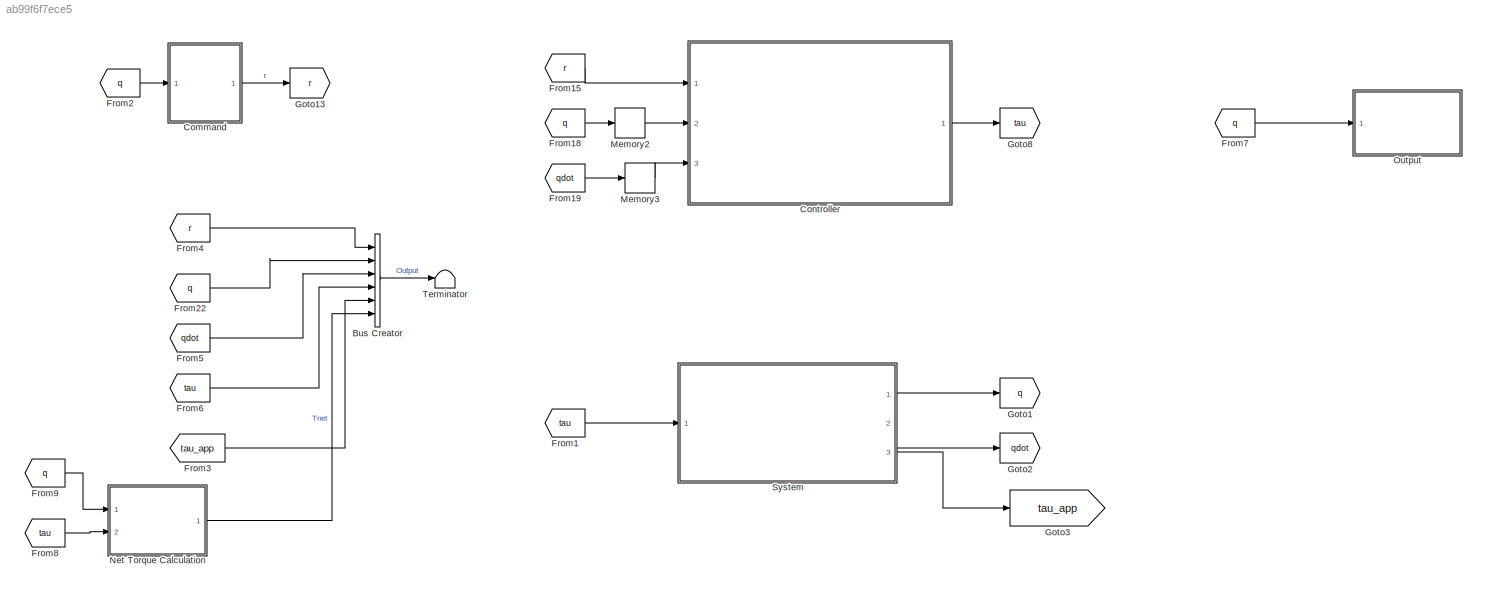
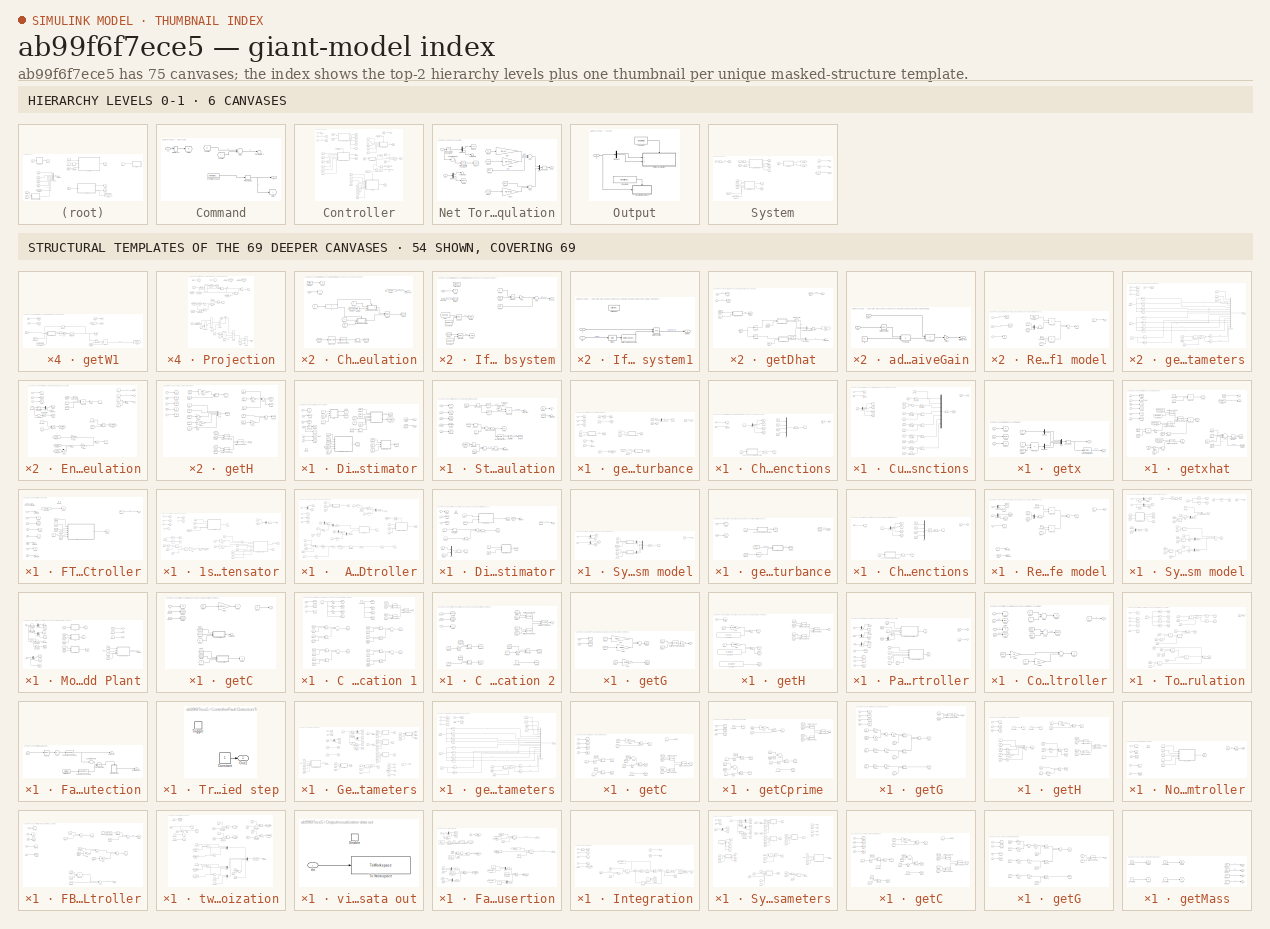
[diagram: thumbnail index - top-2 hierarchy levels (6 canvases) + 54 structural-template representatives of the remaining 69 canvases]
MODEL slx_ab99f6f7ece5
KIND model
BLOCK [BusCreator] Bus Creator
  DisplayOption = bar
  Inputs = 6
  Ports = [6, 1]
BLOCK [SubSystem] Command
  Ports = [1, 1]
  RequestExecContextInheritance = off
  SystemSampleTime = dtFc
  TreatAsAtomicUnit = on
BLOCK [Sum] Command/Add1
  InputSameDT = off
  Inputs = -+
  OutDataTypeStr = Inherit: Inherit via internal rule
  Ports = [2, 1]
  SaturateOnIntegerOverflow = off
BLOCK [FromWorkspace] Command/From Workspace
  Interpolate = off
  OutputAfterFinalValue = Setting to zero
  VariableName = r
BLOCK [From] Command/From4
  GotoTag = q
BLOCK [From] Command/From6
  GotoTag = r
BLOCK [Goto] Command/Goto1
  GotoTag = r
BLOCK [Goto] Command/Goto5
  GotoTag = q
BLOCK [Memory] Command/Memory2
  InheritSampleTime = on
  LinearizeAsDelay = on
  LinearizeMemory = on
  X0 = q0
BLOCK [Reshape] Command/Reshape1
  OutputDimensionality = Column vector (2-D)
  Ports = [1, 1]
BLOCK [Terminator] Command/Terminator1
BLOCK [Inport] Command/q
  IconDisplay = Port number
BLOCK [Outport] Command/r
  IconDisplay = Port number
  InitialOutput = 0
BLOCK [SubSystem] Controller
  Ports = [3, 1]
  RequestExecContextInheritance = off
  SystemSampleTime = dtFc
  TreatAsAtomicUnit = on
BLOCK [SubSystem] Controller/Disturbance Estimator
  Ports = [6, 2, 1]
  RequestExecContextInheritance = off
BLOCK [Inport] Controller/Disturbance Estimator/Cp
  IconDisplay = Port number
  Port = 5
BLOCK [Outport] Controller/Disturbance Estimator/Dhat
  IconDisplay = Port number
  Port = 2
BLOCK [EnablePort] Controller/Disturbance Estimator/Enable
  Ports = []
BLOCK [From] Controller/Disturbance Estimator/From1
  GotoTag = q
BLOCK [From] Controller/Disturbance Estimator/From10
  GotoTag = Hinv
BLOCK [From] Controller/Disturbance Estimator/From11
  GotoTag = H
BLOCK [From] Controller/Disturbance Estimator/From12
  GotoTag = tau
BLOCK [From] Controller/Disturbance Estimator/From13
  GotoTag = Cp
BLOCK [From] Controller/Disturbance Estimator/From14
  GotoTag = es
BLOCK [From] Controller/Disturbance Estimator/From15
  GotoTag = xhat
BLOCK [From] Controller/Disturbance Estimator/From16
  GotoTag = Dhat
BLOCK [From] Controller/Disturbance Estimator/From17
  GotoTag = tau
BLOCK [From] Controller/Disturbance Estimator/From18
  GotoTag = es
BLOCK [From] Controller/Disturbance Estimator/From19
  GotoTag = Dhat
BLOCK [From] Controller/Disturbance Estimator/From2
  GotoTag = qdot
BLOCK [From] Controller/Disturbance Estimator/From3
  GotoTag = xdot
BLOCK [From] Controller/Disturbance Estimator/From4
  GotoTag = xhatdot
BLOCK [From] Controller/Disturbance Estimator/From5
  GotoTag = xhat
BLOCK [From] Controller/Disturbance Estimator/From6
  GotoTag = x
BLOCK [From] Controller/Disturbance Estimator/From7
  GotoTag = G
BLOCK [From] Controller/Disturbance Estimator/From8
  GotoTag = Hinv
BLOCK [From] Controller/Disturbance Estimator/From9
  GotoTag = xhat
BLOCK [Inport] Controller/Disturbance Estimator/G
  IconDisplay = Port number
  Port = 6
BLOCK [Goto] Controller/Disturbance Estimator/Goto1
  GotoTag = tau
BLOCK [Goto] Controller/Disturbance Estimator/Goto10
  GotoTag = xhat
BLOCK [Goto] Controller/Disturbance Estimator/Goto13
  GotoTag = H
BLOCK [Goto] Controller/Disturbance Estimator/Goto15
  GotoTag = xhatdot
BLOCK [Goto] Controller/Disturbance Estimator/Goto16
  GotoTag = xdot
BLOCK [Goto] Controller/Disturbance Estimator/Goto2
  GotoTag = q
BLOCK [Goto] Controller/Disturbance Estimator/Goto3
  GotoTag = es
BLOCK [Goto] Controller/Disturbance Estimator/Goto4
  GotoTag = Hinv
BLOCK [Goto] Controller/Disturbance Estimator/Goto5
  GotoTag = Cp
BLOCK [Goto] Controller/Disturbance Estimator/Goto6
  GotoTag = x
BLOCK [Goto] Controller/Disturbance Estimator/Goto7
  GotoTag = G
BLOCK [Goto] Controller/Disturbance Estimator/Goto8
  GotoTag = qdot
BLOCK [Goto] Controller/Disturbance Estimator/Goto9
  GotoTag = Dhat
BLOCK [Inport] Controller/Disturbance Estimator/H
  IconDisplay = Port number
  Port = 4
BLOCK [Memory] Controller/Disturbance Estimator/Memory1
  InheritSampleTime = on
  LinearizeMemory = on
  X0 = Dhat0
BLOCK [Product] Controller/Disturbance Estimator/Product3
  InputSameDT = off
  Inputs = /
  Multiplication = Matrix(*)
  OutDataTypeStr = Inherit: Inherit via internal rule
  Ports = [1, 1]
  SaturateOnIntegerOverflow = off
BLOCK [SubSystem] Controller/Disturbance Estimator/State Error Calculation
  Ports = [5, 1]
  RequestExecContextInheritance = off
BLOCK [Sum] Controller/Disturbance Estimator/State Error Calculation/Add
  InputSameDT = off
  Inputs = +-
  OutDataTypeStr = Inherit: Inherit via internal rule
  Ports = [2, 1]
  SaturateOnIntegerOverflow = off
BLOCK [Sum] Controller/Disturbance Estimator/State Error Calculation/Add1
  InputSameDT = off
  Inputs = +-
  OutDataTypeStr = Inherit: Inherit via internal rule
  Ports = [2, 1]
  SaturateOnIntegerOverflow = off
BLOCK [Reference] Controller/Disturbance Estimator/State Error Calculation/Discrete Derivative1  REF=simulink/Discrete/Discrete Derivative
  DoSatur = off
  ICPrevScaledInput = 0.0
  InputProcessing = Inherited
  LockScale = off
  OutDataType = fixdt(1, 16)
  OutDataTypeStr = Inherit: Inherit via internal rule
  OutMax = []
  OutMin = []
  OutScaling = 2^-10
  OutputDataTypeScalingMode = Inherit via internal rule
  Ports = [1, 1]
  RndMeth = Round
  SourceBlock = simulink/Discrete/Discrete Derivative
  SourceType = Discrete Derivative
  gainval = 1.0
BLOCK [From] Controller/Disturbance Estimator/State Error Calculation/From
  GotoTag = xhat
BLOCK [From] Controller/Disturbance Estimator/State Error Calculation/From1
  GotoTag = xhat
BLOCK [From] Controller/Disturbance Estimator/State Error Calculation/From10
  GotoTag = esdot
BLOCK [From] Controller/Disturbance Estimator/State Error Calculation/From3
  GotoTag = x
BLOCK [From] Controller/Disturbance Estimator/State Error Calculation/From4
  GotoTag = xhatdot
BLOCK [From] Controller/Disturbance Estimator/State Error Calculation/From5
  GotoTag = xdot
BLOCK [From] Controller/Disturbance Estimator/State Error Calculation/From6
  GotoTag = Hinv
BLOCK [From] Controller/Disturbance Estimator/State Error Calculation/From9
  GotoTag = es
BLOCK [Goto] Controller/Disturbance Estimator/State Error Calculation/Goto1
  GotoTag = xhat
BLOCK [Goto] Controller/Disturbance Estimator/State Error Calculation/Goto13
  GotoTag = Hinv
BLOCK [Goto] Controller/Disturbance Estimator/State Error Calculation/Goto17
  GotoTag = esdot
BLOCK [Goto] Controller/Disturbance Estimator/State Error Calculation/Goto2
  GotoTag = x
BLOCK [Goto] Controller/Disturbance Estimator/State Error Calculation/Goto3
  GotoTag = xhatdot
BLOCK [Goto] Controller/Disturbance Estimator/State Error Calculation/Goto7
  GotoTag = es
BLOCK [Goto] Controller/Disturbance Estimator/State Error Calculation/Goto8
  GotoTag = xdot
BLOCK [Inport] Controller/Disturbance Estimator/State Error Calculation/Hinv
  IconDisplay = Port number
  Port = 5
BLOCK [Memory] Controller/Disturbance Estimator/State Error Calculation/Memory1
  InheritSampleTime = on
  LinearizeAsDelay = on
  LinearizeMemory = on
  X0 = xhat0
BLOCK [Memory] Controller/Disturbance Estimator/State Error Calculation/Memory4
  InheritSampleTime = on
  LinearizeAsDelay = on
  LinearizeMemory = on
  X0 = xhat0
BLOCK [Product] Controller/Disturbance Estimator/State Error Calculation/Product6
  InputSameDT = off
  Multiplication = Matrix(*)
  OutDataTypeStr = Inherit: Inherit via internal rule
  Ports = [2, 1]
  SaturateOnIntegerOverflow = off
BLOCK [Reshape] Controller/Disturbance Estimator/State Error Calculation/Reshape1
  OutputDimensionality = Column vector (2-D)
  Ports = [1, 1]
BLOCK [Reshape] Controller/Disturbance Estimator/State Error Calculation/Reshape2
  OutputDimensionality = Column vector (2-D)
  Ports = [1, 1]
BLOCK [Reshape] Controller/Disturbance Estimator/State Error Calculation/Reshape3
  OutputDimensionality = Column vector (2-D)
  Ports = [1, 1]
BLOCK [Saturate] Controller/Disturbance Estimator/State Error Calculation/Saturation
  InputPortMap = u0
  LowerLimit = -10
  Ports = [1, 1]
  UpperLimit = 10
  ZeroCross = off
BLOCK [Terminator] Controller/Disturbance Estimator/State Error Calculation/Terminator1
BLOCK [Terminator] Controller/Disturbance Estimator/State Error Calculation/Terminator2
BLOCK [Terminator] Controller/Disturbance Estimator/State Error Calculation/Terminator3
BLOCK [Terminator] Controller/Disturbance Estimator/State Error Calculation/Terminator4
BLOCK [Selector] Controller/Disturbance Estimator/State Error Calculation/[1 2]
  IndexOptions = Index vector (dialog),Index vector (dialog)
  Indices = [1 2],1
  InputPortWidth = 3
  NumberOfDimensions = 2
  OutputSizes = 1,1
  Ports = [1, 1]
BLOCK [Selector] Controller/Disturbance Estimator/State Error Calculation/[3 4]
  IndexOptions = Index vector (dialog),Index vector (dialog)
  Indices = [3 4],1
  InputPortWidth = 3
  NumberOfDimensions = 2
  OutputSizes = 1,1
  Ports = [1, 1]
BLOCK [Outport] Controller/Disturbance Estimator/State Error Calculation/es
  IconDisplay = Port number
BLOCK [Inport] Controller/Disturbance Estimator/State Error Calculation/x
  IconDisplay = Port number
BLOCK [Inport] Controller/Disturbance Estimator/State Error Calculation/xdot
  IconDisplay = Port number
  Port = 2
BLOCK [Inport] Controller/Disturbance Estimator/State Error Calculation/xhat
  IconDisplay = Port number
  Port = 3
BLOCK [Inport] Controller/Disturbance Estimator/State Error Calculation/xhatdot
  IconDisplay = Port number
  Port = 4
BLOCK [SubSystem] Controller/Disturbance Estimator/getDisturbance
  Ports = [3, 1]
  RequestExecContextInheritance = off
BLOCK [SubSystem] Controller/Disturbance Estimator/getDisturbance/Chebyshev Basis Functions
  Ports = [2, 1]
  RequestExecContextInheritance = off
BLOCK [SubSystem] Controller/Disturbance Estimator/getDisturbance/Chebyshev Basis Functions/Chebyshev Polynomail Value Calculation
  Ports = [1, 1]
  RequestExecContextInheritance = off
  TreatAsAtomicUnit = on
BLOCK [Reference] Controller/Disturbance Estimator/getDisturbance/Chebyshev Basis Functions/Chebyshev Polynomail Value Calculation/Delay Line  REF=dspbuff3/Delay Line
  Ports = [1, 1]
  SourceBlock = dspbuff3/Delay Line
  SourceType = Delay Line
  TreatMby1Signals = M channels (this choice will be removed - see release notes)
  UserDataPersistent = on
  directfeed = on
  enable_output = off
  hold_output = off
  ic = zeros(nCheby,1)
  siz = nCheby
BLOCK [ForIterator] Controller/Disturbance Estimator/getDisturbance/Chebyshev Basis Functions/Chebyshev Polynomail Value Calculation/For Iterator
  IterationLimit = nCheby
  Ports = [0, 1]
BLOCK [FrameConversion] Controller/Disturbance Estimator/getDisturbance/Chebyshev Basis Functions/Chebyshev Polynomail Value Calculation/Frame Conversion
  OutFrame = Sample-based
  Ports = [1, 1]
BLOCK [From] Controller/Disturbance Estimator/getDisturbance/Chebyshev Basis Functions/Chebyshev Polynomail Value Calculation/From
  GotoTag = N
BLOCK [From] Controller/Disturbance Estimator/getDisturbance/Chebyshev Basis Functions/Chebyshev Polynomail Value Calculation/From1
  GotoTag = N
BLOCK [From] Controller/Disturbance Estimator/getDisturbance/Chebyshev Basis Functions/Chebyshev Polynomail Value Calculation/From2
  GotoTag = x
BLOCK [From] Controller/Disturbance Estimator/getDisturbance/Chebyshev Basis Functions/Chebyshev Polynomail Value Calculation/From3
  GotoTag = x
BLOCK [From] Controller/Disturbance Estimator/getDisturbance/Chebyshev Basis Functions/Chebyshev Polynomail Value Calculation/From5
  GotoTag = polyval
BLOCK [From] Controller/Disturbance Estimator/getDisturbance/Chebyshev Basis Functions/Chebyshev Polynomail Value Calculation/From6
  GotoTag = polyvals
BLOCK [From] Controller/Disturbance Estimator/getDisturbance/Chebyshev Basis Functions/Chebyshev Polynomail Value Calculation/From7
  GotoTag = polyvals
BLOCK [Goto] Controller/Disturbance Estimator/getDisturbance/Chebyshev Basis Functions/Chebyshev Polynomail Value Calculation/Goto
  GotoTag = x
BLOCK [Goto] Controller/Disturbance Estimator/getDisturbance/Chebyshev Basis Functions/Chebyshev Polynomail Value Calculation/Goto1
  GotoTag = N
BLOCK [Goto] Controller/Disturbance Estimator/getDisturbance/Chebyshev Basis Functions/Chebyshev Polynomail Value Calculation/Goto2
  GotoTag = polyval
BLOCK [Goto] Controller/Disturbance Estimator/getDisturbance/Chebyshev Basis Functions/Chebyshev Polynomail Value Calculation/Goto3
  GotoTag = polyvals
BLOCK [If] Controller/Disturbance Estimator/getDisturbance/Chebyshev Basis Functions/Chebyshev Polynomail Value Calculation/If
  IfExpression = u1 > 2
  Ports = [1, 2]
BLOCK [SubSystem] Controller/Disturbance Estimator/getDisturbance/Chebyshev Basis Functions/Chebyshev Polynomail Value Calculation/If Action Subsystem
  Ports = [2, 1, 0, 0, 0, 0, 0, 1]
  RequestExecContextInheritance = off
  TreatAsAtomicUnit = on
BLOCK [ActionPort] Controller/Disturbance Estimator/getDisturbance/Chebyshev Basis Functions/Chebyshev Polynomail Value Calculation/If Action Subsystem/Action Port
  ActionType = then
  PropagateVarSize = During execution
BLOCK [Sum] Controller/Disturbance Estimator/getDisturbance/Chebyshev Basis Functions/Chebyshev Polynomail Value Calculation/If Action Subsystem/Add
  InputSameDT = off
  Inputs = +-
  OutDataTypeStr = Inherit: Inherit via internal rule
  Ports = [2, 1]
  SaturateOnIntegerOverflow = off
BLOCK [Constant] Controller/Disturbance Estimator/getDisturbance/Chebyshev Basis Functions/Chebyshev Polynomail Value Calculation/If Action Subsystem/Constant
  Value = nCheby
BLOCK [Constant] Controller/Disturbance Estimator/getDisturbance/Chebyshev Basis Functions/Chebyshev Polynomail Value Calculation/If Action Subsystem/Constant1
  Value = nCheby-1
BLOCK [From] Controller/Disturbance Estimator/getDisturbance/Chebyshev Basis Functions/Chebyshev Polynomail Value Calculation/If Action Subsystem/From
  GotoTag = polyvals
BLOCK [From] Controller/Disturbance Estimator/getDisturbance/Chebyshev Basis Functions/Chebyshev Polynomail Value Calculation/If Action Subsystem/From2
  GotoTag = polyvals
BLOCK [From] Controller/Disturbance Estimator/getDisturbance/Chebyshev Basis Functions/Chebyshev Polynomail Value Calculation/If Action Subsystem/From4
  GotoTag = Tm1
BLOCK [From] Controller/Disturbance Estimator/getDisturbance/Chebyshev Basis Functions/Chebyshev Polynomail Value Calculation/If Action Subsystem/From5
  GotoTag = x
BLOCK [From] Controller/Disturbance Estimator/getDisturbance/Chebyshev Basis Functions/Chebyshev Polynomail Value Calculation/If Action Subsystem/From6
  GotoTag = Tm2
BLOCK [Gain] Controller/Disturbance Estimator/getDisturbance/Chebyshev Basis Functions/Chebyshev Polynomail Value Calculation/If Action Subsystem/Gain
  Gain = 2
  OutDataTypeStr = Inherit: Inherit via internal rule
  ParamDataTypeStr = Inherit: Inherit via internal rule
  SaturateOnIntegerOverflow = off
BLOCK [Goto] Controller/Disturbance Estimator/getDisturbance/Chebyshev Basis Functions/Chebyshev Polynomail Value Calculation/If Action Subsystem/Goto
  GotoTag = x
BLOCK [Goto] Controller/Disturbance Estimator/getDisturbance/Chebyshev Basis Functions/Chebyshev Polynomail Value Calculation/If Action Subsystem/Goto2
  GotoTag = polyvals
BLOCK [Goto] Controller/Disturbance Estimator/getDisturbance/Chebyshev Basis Functions/Chebyshev Polynomail Value Calculation/If Action Subsystem/Goto3
  GotoTag = Tm2
BLOCK [Goto] Controller/Disturbance Estimator/getDisturbance/Chebyshev Basis Functions/Chebyshev Polynomail Value Calculation/If Action Subsystem/Goto4
  GotoTag = Tm1
BLOCK [Product] Controller/Disturbance Estimator/getDisturbance/Chebyshev Basis Functions/Chebyshev Polynomail Value Calculation/If Action Subsystem/Product
  InputSameDT = off
  OutDataTypeStr = Inherit: Inherit via internal rule
  Ports = [2, 1]
  SaturateOnIntegerOverflow = off
BLOCK [Selector] Controller/Disturbance Estimator/getDisturbance/Chebyshev Basis Functions/Chebyshev Polynomail Value Calculation/If Action Subsystem/Selector
  IndexOptions = Index vector (port)
  Indices = [1 3]
  Ports = [2, 1]
BLOCK [Selector] Controller/Disturbance Estimator/getDisturbance/Chebyshev Basis Functions/Chebyshev Polynomail Value Calculation/If Action Subsystem/Selector1
  IndexOptions = Index vector (port)
  Indices = [1 3]
  Ports = [2, 1]
BLOCK [Outport] Controller/Disturbance Estimator/getDisturbance/Chebyshev Basis Functions/Chebyshev Polynomail Value Calculation/If Action Subsystem/polyval
  IconDisplay = Port number
BLOCK [Inport] Controller/Disturbance Estimator/getDisturbance/Chebyshev Basis Functions/Chebyshev Polynomail Value Calculation/If Action Subsystem/polyvals
  IconDisplay = Port number
  Port = 2
BLOCK [Inport] Controller/Disturbance Estimator/getDisturbance/Chebyshev Basis Functions/Chebyshev Polynomail Value Calculation/If Action Subsystem/x
  IconDisplay = Port number
BLOCK [SubSystem] Controller/Disturbance Estimator/getDisturbance/Chebyshev Basis Functions/Chebyshev Polynomail Value Calculation/If Action Subsystem1
  Ports = [2, 1, 0, 0, 0, 0, 0, 1]
  RequestExecContextInheritance = off
  TreatAsAtomicUnit = on
BLOCK [ActionPort] Controller/Disturbance Estimator/getDisturbance/Chebyshev Basis Functions/Chebyshev Polynomail Value Calculation/If Action Subsystem1/Action Port
  ActionType = else
  PropagateVarSize = During execution
BLOCK [Bias] Controller/Disturbance Estimator/getDisturbance/Chebyshev Basis Functions/Chebyshev Polynomail Value Calculation/If Action Subsystem1/Bias1
  Bias = -1
  SaturateOnIntegerOverflow = off
BLOCK [DataTypeConversion] Controller/Disturbance Estimator/getDisturbance/Chebyshev Basis Functions/Chebyshev Polynomail Value Calculation/If Action Subsystem1/Data Type Conversion
  RndMeth = Floor
  SaturateOnIntegerOverflow = off
BLOCK [Math] Controller/Disturbance Estimator/getDisturbance/Chebyshev Basis Functions/Chebyshev Polynomail Value Calculation/If Action Subsystem1/Math Function
  Operator = pow
  OutputSignalType = real
  Ports = [2, 1]
BLOCK [Inport] Controller/Disturbance Estimator/getDisturbance/Chebyshev Basis Functions/Chebyshev Polynomail Value Calculation/If Action Subsystem1/N
  IconDisplay = Port number
  Port = 2
BLOCK [Outport] Controller/Disturbance Estimator/getDisturbance/Chebyshev Basis Functions/Chebyshev Polynomail Value Calculation/If Action Subsystem1/polval
  IconDisplay = Port number
BLOCK [Inport] Controller/Disturbance Estimator/getDisturbance/Chebyshev Basis Functions/Chebyshev Polynomail Value Calculation/If Action Subsystem1/x
  IconDisplay = Port number
BLOCK [Memory] Controller/Disturbance Estimator/getDisturbance/Chebyshev Basis Functions/Chebyshev Polynomail Value Calculation/Memory
  InheritSampleTime = on
  LinearizeAsDelay = on
  LinearizeMemory = on
BLOCK [Merge] Controller/Disturbance Estimator/getDisturbance/Chebyshev Basis Functions/Chebyshev Polynomail Value Calculation/Merge
  Ports = [2, 1]
BLOCK [Reshape] Controller/Disturbance Estimator/getDisturbance/Chebyshev Basis Functions/Chebyshev Polynomail Value Calculation/Reshape
  OutputDimensionality = Column vector (2-D)
  Ports = [1, 1]
BLOCK [Outport] Controller/Disturbance Estimator/getDisturbance/Chebyshev Basis Functions/Chebyshev Polynomail Value Calculation/chebyPol
  IconDisplay = Port number
BLOCK [Inport] Controller/Disturbance Estimator/getDisturbance/Chebyshev Basis Functions/Chebyshev Polynomail Value Calculation/x
  IconDisplay = Port number
BLOCK [Demux] Controller/Disturbance Estimator/getDisturbance/Chebyshev Basis Functions/Demux
  DisplayOption = bar
  Ports = [1, 4]
BLOCK [From] Controller/Disturbance Estimator/getDisturbance/Chebyshev Basis Functions/From1
  GotoTag = q1dot
BLOCK [From] Controller/Disturbance Estimator/getDisturbance/Chebyshev Basis Functions/From2
  GotoTag = x
BLOCK [From] Controller/Disturbance Estimator/getDisturbance/Chebyshev Basis Functions/From3
  GotoTag = q1
BLOCK [From] Controller/Disturbance Estimator/getDisturbance/Chebyshev Basis Functions/From4
  GotoTag = z
BLOCK [From] Controller/Disturbance Estimator/getDisturbance/Chebyshev Basis Functions/From5
  GotoTag = q2dot
BLOCK [From] Controller/Disturbance Estimator/getDisturbance/Chebyshev Basis Functions/From6
  GotoTag = q2
BLOCK [From] Controller/Disturbance Estimator/getDisturbance/Chebyshev Basis Functions/From7
  GotoTag = Tn
BLOCK [Goto] Controller/Disturbance Estimator/getDisturbance/Chebyshev Basis Functions/Goto
  GotoTag = z
BLOCK [Goto] Controller/Disturbance Estimator/getDisturbance/Chebyshev Basis Functions/Goto1
  GotoTag = Tn
BLOCK [Goto] Controller/Disturbance Estimator/getDisturbance/Chebyshev Basis Functions/Goto2
  GotoTag = x
BLOCK [Goto] Controller/Disturbance Estimator/getDisturbance/Chebyshev Basis Functions/Goto3
  GotoTag = q1
BLOCK [Goto] Controller/Disturbance Estimator/getDisturbance/Chebyshev Basis Functions/Goto6
  GotoTag = q2
BLOCK [Goto] Controller/Disturbance Estimator/getDisturbance/Chebyshev Basis Functions/Goto8
  GotoTag = q1dot
BLOCK [Goto] Controller/Disturbance Estimator/getDisturbance/Chebyshev Basis Functions/Goto9
  GotoTag = q2dot
BLOCK [Mux] Controller/Disturbance Estimator/getDisturbance/Chebyshev Basis Functions/Mux
  DisplayOption = bar
  Ports = [4, 1]
BLOCK [Reshape] Controller/Disturbance Estimator/getDisturbance/Chebyshev Basis Functions/Reshape1
  OutputDimensionality = Column vector (2-D)
  Ports = [1, 1]
BLOCK [Reshape] Controller/Disturbance Estimator/getDisturbance/Chebyshev Basis Functions/Reshape2
  OutputDimensionality = Column vector (2-D)
  Ports = [1, 1]
BLOCK [Terminator] Controller/Disturbance Estimator/getDisturbance/Chebyshev Basis Functions/Terminator1
BLOCK [Outport] Controller/Disturbance Estimator/getDisturbance/Chebyshev Basis Functions/Tn
  IconDisplay = Port number
BLOCK [Inport] Controller/Disturbance Estimator/getDisturbance/Chebyshev Basis Functions/tau
  IconDisplay = Port number
  Port = 2
BLOCK [Inport] Controller/Disturbance Estimator/getDisturbance/Chebyshev Basis Functions/x
  IconDisplay = Port number
BLOCK [Constant] Controller/Disturbance Estimator/getDisturbance/Constant
  Value = [0 0]'
  VectorParams1D = off
BLOCK [SubSystem] Controller/Disturbance Estimator/getDisturbance/Custom Basis Functions
  Ports = [2, 1]
  RequestExecContextInheritance = off
BLOCK [Sum] Controller/Disturbance Estimator/getDisturbance/Custom Basis Functions/Add
  InputSameDT = off
  OutDataTypeStr = Inherit: Inherit via internal rule
  Ports = [2, 1]
  SaturateOnIntegerOverflow = off
BLOCK [Constant] Controller/Disturbance Estimator/getDisturbance/Custom Basis Functions/Constant
BLOCK [Demux] Controller/Disturbance Estimator/getDisturbance/Custom Basis Functions/Demux
  DisplayOption = bar
  Ports = [1, 4]
BLOCK [From] Controller/Disturbance Estimator/getDisturbance/Custom Basis Functions/From1
  GotoTag = q1
BLOCK [From] Controller/Disturbance Estimator/getDisturbance/Custom Basis Functions/From10
  GotoTag = q2
BLOCK [From] Controller/Disturbance Estimator/getDisturbance/Custom Basis Functions/From11
  GotoTag = q2dot
BLOCK [From] Controller/Disturbance Estimator/getDisturbance/Custom Basis Functions/From12
  GotoTag = q2
BLOCK [From] Controller/Disturbance Estimator/getDisturbance/Custom Basis Functions/From13
  GotoTag = q1dot
BLOCK [From] Controller/Disturbance Estimator/getDisturbance/Custom Basis Functions/From14
  GotoTag = q2
BLOCK [From] Controller/Disturbance Estimator/getDisturbance/Custom Basis Functions/From15
  GotoTag = q2dot
BLOCK [From] Controller/Disturbance Estimator/getDisturbance/Custom Basis Functions/From2
  GotoTag = x
BLOCK [From] Controller/Disturbance Estimator/getDisturbance/Custom Basis Functions/From4
  GotoTag = q1
BLOCK [From] Controller/Disturbance Estimator/getDisturbance/Custom Basis Functions/From6
  GotoTag = q2
BLOCK [From] Controller/Disturbance Estimator/getDisturbance/Custom Basis Functions/From7
  GotoTag = psiz
BLOCK [From] Controller/Disturbance Estimator/getDisturbance/Custom Basis Functions/From8
  GotoTag = q2
BLOCK [From] Controller/Disturbance Estimator/getDisturbance/Custom Basis Functions/From9
  GotoTag = q1dot
BLOCK [Goto] Controller/Disturbance Estimator/getDisturbance/Custom Basis Functions/Goto1
  GotoTag = x
BLOCK [Goto] Controller/Disturbance Estimator/getDisturbance/Custom Basis Functions/Goto2
  GotoTag = q1
BLOCK [Goto] Controller/Disturbance Estimator/getDisturbance/Custom Basis Functions/Goto4
  GotoTag = psiz
BLOCK [Goto] Controller/Disturbance Estimator/getDisturbance/Custom Basis Functions/Goto6
  GotoTag = q2
BLOCK [Goto] Controller/Disturbance Estimator/getDisturbance/Custom Basis Functions/Goto8
  GotoTag = q1dot
BLOCK [Goto] Controller/Disturbance Estimator/getDisturbance/Custom Basis Functions/Goto9
  GotoTag = q2dot
BLOCK [Math] Controller/Disturbance Estimator/getDisturbance/Custom Basis Functions/Math Function
  Operator = square
  Ports = [1, 1]
BLOCK [Math] Controller/Disturbance Estimator/getDisturbance/Custom Basis Functions/Math Function1
  Operator = square
  Ports = [1, 1]
BLOCK [Mux] Controller/Disturbance Estimator/getDisturbance/Custom Basis Functions/Mux
  DisplayOption = bar
  Inputs = 7
  Ports = [7, 1]
BLOCK [Product] Controller/Disturbance Estimator/getDisturbance/Custom Basis Functions/Product1
  InputSameDT = off
  OutDataTypeStr = Inherit: Inherit via internal rule
  Ports = [2, 1]
  SaturateOnIntegerOverflow = off
BLOCK [Product] Controller/Disturbance Estimator/getDisturbance/Custom Basis Functions/Product2
  InputSameDT = off
  OutDataTypeStr = Inherit: Inherit via internal rule
  Ports = [2, 1]
  SaturateOnIntegerOverflow = off
BLOCK [Product] Controller/Disturbance Estimator/getDisturbance/Custom Basis Functions/Product3
  InputSameDT = off
  OutDataTypeStr = Inherit: Inherit via internal rule
  Ports = [2, 1]
  SaturateOnIntegerOverflow = off
BLOCK [Product] Controller/Disturbance Estimator/getDisturbance/Custom Basis Functions/Product4
  InputSameDT = off
  OutDataTypeStr = Inherit: Inherit via internal rule
  Ports = [2, 1]
  SaturateOnIntegerOverflow = off
BLOCK [Reshape] Controller/Disturbance Estimator/getDisturbance/Custom Basis Functions/Reshape
  OutputDimensionality = Column vector (2-D)
  Ports = [1, 1]
BLOCK [Terminator] Controller/Disturbance Estimator/getDisturbance/Custom Basis Functions/Terminator1
BLOCK [Trigonometry] Controller/Disturbance Estimator/getDisturbance/Custom Basis Functions/Trigonometric Function
  Operator = cos
  Ports = [1, 1]
BLOCK [Trigonometry] Controller/Disturbance Estimator/getDisturbance/Custom Basis Functions/Trigonometric Function1
  Operator = cos
  Ports = [1, 1]
BLOCK [Trigonometry] Controller/Disturbance Estimator/getDisturbance/Custom Basis Functions/Trigonometric Function2
  Ports = [1, 1]
BLOCK [Trigonometry] Controller/Disturbance Estimator/getDisturbance/Custom Basis Functions/Trigonometric Function3
  Ports = [1, 1]
BLOCK [Trigonometry] Controller/Disturbance Estimator/getDisturbance/Custom Basis Functions/Trigonometric Function4
  Ports = [1, 1]
BLOCK [Trigonometry] Controller/Disturbance Estimator/getDisturbance/Custom Basis Functions/Trigonometric Function5
  Ports = [1, 1]
BLOCK [Outport] Controller/Disturbance Estimator/getDisturbance/Custom Basis Functions/psiz
  IconDisplay = Port number
BLOCK [Inport] Controller/Disturbance Estimator/getDisturbance/Custom Basis Functions/tau
  IconDisplay = Port number
  Port = 2
BLOCK [Inport] Controller/Disturbance Estimator/getDisturbance/Custom Basis Functions/x
  IconDisplay = Port number
BLOCK [Outport] Controller/Disturbance Estimator/getDisturbance/Dhat
  IconDisplay = Port number
BLOCK [From] Controller/Disturbance Estimator/getDisturbance/From1
  GotoTag = Dhat
BLOCK [From] Controller/Disturbance Estimator/getDisturbance/From10
  GotoTag = psiz
BLOCK [From] Controller/Disturbance Estimator/getDisturbance/From11
  GotoTag = Dhat12
BLOCK [From] Controller/Disturbance Estimator/getDisturbance/From12
  GotoTag = basisSet
BLOCK [From] Controller/Disturbance Estimator/getDisturbance/From13
  GotoTag = es34
BLOCK [From] Controller/Disturbance Estimator/getDisturbance/From14
  GotoTag = Dhat34
BLOCK [From] Controller/Disturbance Estimator/getDisturbance/From15
  GotoTag = Tnz
BLOCK [From] Controller/Disturbance Estimator/getDisturbance/From2
  GotoTag = x
BLOCK [From] Controller/Disturbance Estimator/getDisturbance/From3
  GotoTag = tau
BLOCK [From] Controller/Disturbance Estimator/getDisturbance/From4
  GotoTag = Tnz
BLOCK [From] Controller/Disturbance Estimator/getDisturbance/From5
  GotoTag = x
BLOCK [From] Controller/Disturbance Estimator/getDisturbance/From6
  GotoTag = tau
BLOCK [From] Controller/Disturbance Estimator/getDisturbance/From8
  GotoTag = es
BLOCK [Gain] Controller/Disturbance Estimator/getDisturbance/Gain
  OutDataTypeStr = Inherit: Inherit via internal rule
  ParamDataTypeStr = Inherit: Inherit via internal rule
  SaturateOnIntegerOverflow = off
BLOCK [Gain] Controller/Disturbance Estimator/getDisturbance/Gain1
  OutDataTypeStr = Inherit: Inherit via internal rule
  ParamDataTypeStr = Inherit: Inherit via internal rule
  SaturateOnIntegerOverflow = off
BLOCK [Goto] Controller/Disturbance Estimator/getDisturbance/Goto1
  GotoTag = x
BLOCK [Goto] Controller/Disturbance Estimator/getDisturbance/Goto10
  GotoTag = Dhat
BLOCK [Goto] Controller/Disturbance Estimator/getDisturbance/Goto11
  GotoTag = Dhat34
BLOCK [Goto] Controller/Disturbance Estimator/getDisturbance/Goto2
  GotoTag = tau
BLOCK [Goto] Controller/Disturbance Estimator/getDisturbance/Goto3
  GotoTag = Dhat12
BLOCK [Goto] Controller/Disturbance Estimator/getDisturbance/Goto4
  GotoTag = psiz
BLOCK [Goto] Controller/Disturbance Estimator/getDisturbance/Goto5
  GotoTag = Tnz
BLOCK [Goto] Controller/Disturbance Estimator/getDisturbance/Goto6
  GotoTag = es
BLOCK [Goto] Controller/Disturbance Estimator/getDisturbance/Goto7
  GotoTag = es34
BLOCK [Goto] Controller/Disturbance Estimator/getDisturbance/Goto8
  GotoTag = basisSet
BLOCK [Mux] Controller/Disturbance Estimator/getDisturbance/Mux1
  DisplayOption = bar
  Inputs = 2
  Ports = [2, 1]
BLOCK [Reshape] Controller/Disturbance Estimator/getDisturbance/Reshape1
  OutputDimensionality = Column vector (2-D)
  Ports = [1, 1]
BLOCK [Terminator] Controller/Disturbance Estimator/getDisturbance/Terminator
BLOCK [Terminator] Controller/Disturbance Estimator/getDisturbance/Terminator1
BLOCK [Selector] Controller/Disturbance Estimator/getDisturbance/[3 4]
  IndexOptions = Index vector (dialog),Index vector (dialog)
  Indices = [3 4],1
  InputPortWidth = 3
  NumberOfDimensions = 2
  OutputSizes = 1,1
  Ports = [1, 1]
BLOCK [Inport] Controller/Disturbance Estimator/getDisturbance/es
  IconDisplay = Port number
  Port = 3
BLOCK [SubSystem] Controller/Disturbance Estimator/getDisturbance/getDhat
  Ports = [2, 1]
  RequestExecContextInheritance = off
  TreatAsAtomicUnit = on
BLOCK [BusCreator] Controller/Disturbance Estimator/getDisturbance/getDhat/Bus Creator
  DisplayOption = bar
  Inputs = 2
  Ports = [2, 1]
BLOCK [Outport] Controller/Disturbance Estimator/getDisturbance/getDhat/Dhat
  IconDisplay = Port number
BLOCK [From] Controller/Disturbance Estimator/getDisturbance/getDhat/From1
  GotoTag = psiz
BLOCK [From] Controller/Disturbance Estimator/getDisturbance/getDhat/From15
  GotoTag = psiz
BLOCK [From] Controller/Disturbance Estimator/getDisturbance/getDhat/From3
  GotoTag = Dhat
BLOCK [From] Controller/Disturbance Estimator/getDisturbance/getDhat/From4
  GotoTag = es
BLOCK [From] Controller/Disturbance Estimator/getDisturbance/getDhat/From6
  GotoTag = Wint
BLOCK [From] Controller/Disturbance Estimator/getDisturbance/getDhat/From7
  GotoTag = psiz
BLOCK [Goto] Controller/Disturbance Estimator/getDisturbance/getDhat/Goto
  GotoTag = psiz
BLOCK [Goto] Controller/Disturbance Estimator/getDisturbance/getDhat/Goto3
  GotoTag = Wint
BLOCK [Goto] Controller/Disturbance Estimator/getDisturbance/getDhat/Goto4
  GotoTag = es
BLOCK [Goto] Controller/Disturbance Estimator/getDisturbance/getDhat/Goto7
  GotoTag = Dhat
BLOCK [Math] Controller/Disturbance Estimator/getDisturbance/getDhat/Math Function
  Operator = transpose
  Ports = [1, 1]
BLOCK [Math] Controller/Disturbance Estimator/getDisturbance/getDhat/Math Function1
  Operator = transpose
  Ports = [1, 1]
BLOCK [Reshape] Controller/Disturbance Estimator/getDisturbance/getDhat/Reshape
  OutputDimensionality = Column vector (2-D)
  Ports = [1, 1]
BLOCK [Selector] Controller/Disturbance Estimator/getDisturbance/getDhat/Selector
  IndexOptions = Select all,Index vector (dialog)
  Indices = [1 3],1
  InputPortWidth = 3
  NumberOfDimensions = 2
  OutputSizes = 1,1
  Ports = [1, 1]
BLOCK [Selector] Controller/Disturbance Estimator/getDisturbance/getDhat/Selector1
  IndexOptions = Select all,Index vector (dialog)
  Indices = [1 3],2
  InputPortWidth = 3
  NumberOfDimensions = 2
  OutputSizes = 1,1
  Ports = [1, 1]
BLOCK [Terminator] Controller/Disturbance Estimator/getDisturbance/getDhat/Terminator1
BLOCK [Concatenate] Controller/Disturbance Estimator/getDisturbance/getDhat/Vector Concatenate
  Ports = [2, 1]
BLOCK [SubSystem] Controller/Disturbance Estimator/getDisturbance/getDhat/adaptiveGain
  Ports = [2, 1]
  RequestExecContextInheritance = off
  TreatAsAtomicUnit = on
BLOCK [Gain] Controller/Disturbance Estimator/getDisturbance/getDhat/adaptiveGain/Gain1
  Gain = -1
  OutDataTypeStr = Inherit: Inherit via internal rule
  ParamDataTypeStr = Inherit: Inherit via internal rule
  SaturateOnIntegerOverflow = off
BLOCK [Math] Controller/Disturbance Estimator/getDisturbance/getDhat/adaptiveGain/Math Function
  Operator = transpose
  Ports = [1, 1]
BLOCK [Constant] Controller/Disturbance Estimator/getDisturbance/getDhat/adaptiveGain/P
  Value = Ps
  VectorParams1D = off
BLOCK [Product] Controller/Disturbance Estimator/getDisturbance/getDhat/adaptiveGain/Product1
  InputSameDT = off
  Multiplication = Matrix(*)
  OutDataTypeStr = Inherit: Inherit via internal rule
  Ports = [2, 1]
  SaturateOnIntegerOverflow = off
BLOCK [Product] Controller/Disturbance Estimator/getDisturbance/getDhat/adaptiveGain/Product3
  InputSameDT = off
  Multiplication = Matrix(*)
  OutDataTypeStr = Inherit: Inherit via internal rule
  Ports = [2, 1]
  SaturateOnIntegerOverflow = off
BLOCK [Outport] Controller/Disturbance Estimator/getDisturbance/getDhat/adaptiveGain/Wintegrand
  IconDisplay = Port number
BLOCK [Inport] Controller/Disturbance Estimator/getDisturbance/getDhat/adaptiveGain/es
  IconDisplay = Port number
  Port = 2
BLOCK [Inport] Controller/Disturbance Estimator/getDisturbance/getDhat/adaptiveGain/psi(z)
  IconDisplay = Port number
BLOCK [Inport] Controller/Disturbance Estimator/getDisturbance/getDhat/es
  IconDisplay = Port number
  Port = 2
BLOCK [SubSystem] Controller/Disturbance Estimator/getDisturbance/getDhat/getW1
  Ports = [2, 2]
  RequestExecContextInheritance = off
BLOCK [Constant] Controller/Disturbance Estimator/getDisturbance/getDhat/getW1/Constant
  Value = Wbnd
  VectorParams1D = off
BLOCK [Constant] Controller/Disturbance Estimator/getDisturbance/getDhat/getW1/Constant1
  Value = epsilontheta
BLOCK [DiscreteIntegrator] Controller/Disturbance Estimator/getDisturbance/getDhat/getW1/Discrete-Time Integrator
  InitialCondition = W0
  IntegratorMethod = Integration: Trapezoidal
  LimitOutput = on
  LowerSaturationLimit = -Wbnd
  Ports = [1, 1]
  SampleTime = -1
  UpperSaturationLimit = Wbnd
BLOCK [From] Controller/Disturbance Estimator/getDisturbance/getDhat/getW1/From1
  GotoTag = WTpsi
BLOCK [From] Controller/Disturbance Estimator/getDisturbance/getDhat/getW1/From15
  GotoTag = psiz
BLOCK [From] Controller/Disturbance Estimator/getDisturbance/getDhat/getW1/From6
  GotoTag = Wint
BLOCK [From] Controller/Disturbance Estimator/getDisturbance/getDhat/getW1/From7
  GotoTag = W
BLOCK [Gain] Controller/Disturbance Estimator/getDisturbance/getDhat/getW1/Gain
  Gain = GammaW
  OutDataTypeStr = Inherit: Inherit via internal rule
  ParamDataTypeStr = Inherit: Inherit via internal rule
  SaturateOnIntegerOverflow = off
BLOCK [Goto] Controller/Disturbance Estimator/getDisturbance/getDhat/getW1/Goto
  GotoTag = Wint
BLOCK [Goto] Controller/Disturbance Estimator/getDisturbance/getDhat/getW1/Goto1
  GotoTag = WTpsi
BLOCK [Goto] Controller/Disturbance Estimator/getDisturbance/getDhat/getW1/Goto2
  GotoTag = psiz
BLOCK [Goto] Controller/Disturbance Estimator/getDisturbance/getDhat/getW1/Goto7
  GotoTag = W
BLOCK [Math] Controller/Disturbance Estimator/getDisturbance/getDhat/getW1/Math Function
  Operator = transpose
  Ports = [1, 1]
BLOCK [Memory] Controller/Disturbance Estimator/getDisturbance/getDhat/getW1/Memory4
  InheritSampleTime = on
  LinearizeAsDelay = on
  LinearizeMemory = on
  X0 = W0
BLOCK [Product] Controller/Disturbance Estimator/getDisturbance/getDhat/getW1/Product
  InputSameDT = off
  Multiplication = Matrix(*)
  OutDataTypeStr = Inherit: Inherit via internal rule
  Ports = [2, 1]
  SaturateOnIntegerOverflow = off
BLOCK [SubSystem] Controller/Disturbance Estimator/getDisturbance/getDhat/getW1/Projection
  Ports = [4, 1]
  RequestExecContextInheritance = off
  TreatAsAtomicUnit = on
BLOCK [Bias] Controller/Disturbance Estimator/getDisturbance/getDhat/getW1/Projection/Bias
  Bias = 1
  SaturateOnIntegerOverflow = off
BLOCK [Bias] Controller/Disturbance Estimator/getDisturbance/getDhat/getW1/Projection/Bias1
  Bias = 1
  SaturateOnIntegerOverflow = off
BLOCK [Product] Controller/Disturbance Estimator/getDisturbance/getDhat/getW1/Projection/Divide
  InputSameDT = off
  Inputs = */
  OutDataTypeStr = Inherit: Inherit via internal rule
  Ports = [2, 1]
  RndMeth = Floor
  SaturateOnIntegerOverflow = off
BLOCK [Product] Controller/Disturbance Estimator/getDisturbance/getDhat/getW1/Projection/Divide1
  InputSameDT = off
  Inputs = */
  OutDataTypeStr = Inherit: Inherit via internal rule
  Ports = [2, 1]
  RndMeth = Floor
  SaturateOnIntegerOverflow = off
BLOCK [DotProduct] Controller/Disturbance Estimator/getDisturbance/getDhat/getW1/Projection/Dot Product
  OutDataTypeStr = Inherit: Inherit via internal rule
BLOCK [From] Controller/Disturbance Estimator/getDisturbance/getDhat/getW1/Projection/From
  CloseFcn = tagdialog Close
  GotoTag = y
BLOCK [From] Controller/Disturbance Estimator/getDisturbance/getDhat/getW1/Projection/From1
  CloseFcn = tagdialog Close
  GotoTag = df
BLOCK [From] Controller/Disturbance Estimator/getDisturbance/getDhat/getW1/Projection/From10
  CloseFcn = tagdialog Close
  GotoTag = f
BLOCK [From] Controller/Disturbance Estimator/getDisturbance/getDhat/getW1/Projection/From11
  CloseFcn = tagdialog Close
  GotoTag = f
BLOCK [From] Controller/Disturbance Estimator/getDisturbance/getDhat/getW1/Projection/From12
  CloseFcn = tagdialog Close
  GotoTag = y
BLOCK [From] Controller/Disturbance Estimator/getDisturbance/getDhat/getW1/Projection/From13
  CloseFcn = tagdialog Close
  GotoTag = epsilontheta
BLOCK [From] Controller/Disturbance Estimator/getDisturbance/getDhat/getW1/Projection/From14
  CloseFcn = tagdialog Close
  GotoTag = epsilontheta
BLOCK [From] Controller/Disturbance Estimator/getDisturbance/getDhat/getW1/Projection/From15
  CloseFcn = tagdialog Close
  GotoTag = Thetamax
BLOCK [From] Controller/Disturbance Estimator/getDisturbance/getDhat/getW1/Projection/From16
  CloseFcn = tagdialog Close
  GotoTag = theta
BLOCK [From] Controller/Disturbance Estimator/getDisturbance/getDhat/getW1/Projection/From2
  CloseFcn = tagdialog Close
  GotoTag = y
BLOCK [From] Controller/Disturbance Estimator/getDisturbance/getDhat/getW1/Projection/From3
  CloseFcn = tagdialog Close
  GotoTag = Thetamax
BLOCK [From] Controller/Disturbance Estimator/getDisturbance/getDhat/getW1/Projection/From4
  CloseFcn = tagdialog Close
  GotoTag = theta
BLOCK [From] Controller/Disturbance Estimator/getDisturbance/getDhat/getW1/Projection/From5
  CloseFcn = tagdialog Close
  GotoTag = y
BLOCK [From] Controller/Disturbance Estimator/getDisturbance/getDhat/getW1/Projection/From6
  CloseFcn = tagdialog Close
  GotoTag = y
BLOCK [From] Controller/Disturbance Estimator/getDisturbance/getDhat/getW1/Projection/From8
  CloseFcn = tagdialog Close
  GotoTag = df
BLOCK [From] Controller/Disturbance Estimator/getDisturbance/getDhat/getW1/Projection/From9
  CloseFcn = tagdialog Close
  GotoTag = epsilontheta
BLOCK [Gain] Controller/Disturbance Estimator/getDisturbance/getDhat/getW1/Projection/Gain
  Gain = 2
  OutDataTypeStr = Inherit: Inherit via internal rule
  ParamDataTypeStr = Inherit: Inherit via internal rule
  SaturateOnIntegerOverflow = off
BLOCK [Goto] Controller/Disturbance Estimator/getDisturbance/getDhat/getW1/Projection/Goto1
  GotoTag = y
BLOCK [Goto] Controller/Disturbance Estimator/getDisturbance/getDhat/getW1/Projection/Goto2
  GotoTag = f
BLOCK [Goto] Controller/Disturbance Estimator/getDisturbance/getDhat/getW1/Projection/Goto3
  GotoTag = Thetamax
BLOCK [Goto] Controller/Disturbance Estimator/getDisturbance/getDhat/getW1/Projection/Goto4
  GotoTag = theta
BLOCK [Goto] Controller/Disturbance Estimator/getDisturbance/getDhat/getW1/Projection/Goto6
  GotoTag = epsilontheta
BLOCK [Goto] Controller/Disturbance Estimator/getDisturbance/getDhat/getW1/Projection/Goto7
  GotoTag = df
BLOCK [Math] Controller/Disturbance Estimator/getDisturbance/getDhat/getW1/Projection/Math Function
  Operator = square
  Ports = [1, 1]
BLOCK [Math] Controller/Disturbance Estimator/getDisturbance/getDhat/getW1/Projection/Math Function1
  Operator = square
  Ports = [1, 1]
BLOCK [Reference] Controller/Disturbance Estimator/getDisturbance/getDhat/getW1/Projection/Normalize Vector1  REF=vrlib/Utilities/Normalize Vector
  Ports = [1, 1]
  SourceBlock = vrlib/Utilities/Normalize Vector
  SourceType = Normalize Vector
  maxzero = 0
BLOCK [Product] Controller/Disturbance Estimator/getDisturbance/getDhat/getW1/Projection/Product
  InputSameDT = off
  OutDataTypeStr = Inherit: Inherit via internal rule
  Ports = [2, 1]
  SaturateOnIntegerOverflow = off
BLOCK [Product] Controller/Disturbance Estimator/getDisturbance/getDhat/getW1/Projection/Product1
  InputSameDT = off
  OutDataTypeStr = Inherit: Inherit via internal rule
  Ports = [2, 1]
  SaturateOnIntegerOverflow = off
BLOCK [Product] Controller/Disturbance Estimator/getDisturbance/getDhat/getW1/Projection/Product2
  InputSameDT = off
  OutDataTypeStr = Inherit: Inherit via internal rule
  Ports = [2, 1]
  SaturateOnIntegerOverflow = off
BLOCK [Product] Controller/Disturbance Estimator/getDisturbance/getDhat/getW1/Projection/Product3
  InputSameDT = off
  OutDataTypeStr = Inherit: Inherit via internal rule
  Ports = [2, 1]
  SaturateOnIntegerOverflow = off
BLOCK [Product] Controller/Disturbance Estimator/getDisturbance/getDhat/getW1/Projection/Product4
  InputSameDT = off
  Multiplication = Matrix(*)
  OutDataTypeStr = Inherit: Inherit via internal rule
  Ports = [2, 1]
  SaturateOnIntegerOverflow = off
BLOCK [Product] Controller/Disturbance Estimator/getDisturbance/getDhat/getW1/Projection/Product5
  InputSameDT = off
  Multiplication = Matrix(*)
  OutDataTypeStr = Inherit: Inherit via internal rule
  Ports = [2, 1]
  SaturateOnIntegerOverflow = off
BLOCK [Product] Controller/Disturbance Estimator/getDisturbance/getDhat/getW1/Projection/Product6
  InputSameDT = off
  OutDataTypeStr = Inherit: Inherit via internal rule
  Ports = [2, 1]
  SaturateOnIntegerOverflow = off
BLOCK [Product] Controller/Disturbance Estimator/getDisturbance/getDhat/getW1/Projection/Product7
  InputSameDT = off
  OutDataTypeStr = Inherit: Inherit via internal rule
  Ports = [2, 1]
  SaturateOnIntegerOverflow = off
BLOCK [Outport] Controller/Disturbance Estimator/getDisturbance/getDhat/getW1/Projection/Proj
  IconDisplay = Port number
BLOCK [Reshape] Controller/Disturbance Estimator/getDisturbance/getDhat/getW1/Projection/Reshape
  OutputDimensionality = Row vector (2-D)
  Ports = [1, 1]
BLOCK [Reshape] Controller/Disturbance Estimator/getDisturbance/getDhat/getW1/Projection/Reshape1
  OutputDimensionality = Row vector (2-D)
  Ports = [1, 1]
BLOCK [Sum] Controller/Disturbance Estimator/getDisturbance/getDhat/getW1/Projection/Sum4
  IconShape = round
  InputSameDT = off
  Inputs = |+-
  OutDataTypeStr = Inherit: Inherit via internal rule
  Ports = [2, 1]
  SaturateOnIntegerOverflow = off
BLOCK [Sum] Controller/Disturbance Estimator/getDisturbance/getDhat/getW1/Projection/Sum5
  IconShape = round
  InputSameDT = off
  Inputs = |+-
  OutDataTypeStr = Inherit: Inherit via internal rule
  Ports = [2, 1]
  SaturateOnIntegerOverflow = off
BLOCK [Switch] Controller/Disturbance Estimator/getDisturbance/getDhat/getW1/Projection/Switch
  Criteria = u2 > Threshold
  InputSameDT = off
  SaturateOnIntegerOverflow = off
BLOCK [Switch] Controller/Disturbance Estimator/getDisturbance/getDhat/getW1/Projection/Switch1
  Criteria = u2 > Threshold
  InputSameDT = off
  SaturateOnIntegerOverflow = off
BLOCK [Inport] Controller/Disturbance Estimator/getDisturbance/getDhat/getW1/Projection/Thetamax
  IconDisplay = Port number
  Port = 3
BLOCK [Inport] Controller/Disturbance Estimator/getDisturbance/getDhat/getW1/Projection/epsilontheta
  IconDisplay = Port number
  Port = 4
BLOCK [Inport] Controller/Disturbance Estimator/getDisturbance/getDhat/getW1/Projection/theta
  IconDisplay = Port number
BLOCK [Inport] Controller/Disturbance Estimator/getDisturbance/getDhat/getW1/Projection/y
  IconDisplay = Port number
  Port = 2
BLOCK [Outport] Controller/Disturbance Estimator/getDisturbance/getDhat/getW1/W
  IconDisplay = Port number
BLOCK [Outport] Controller/Disturbance Estimator/getDisturbance/getDhat/getW1/WTpsi
  IconDisplay = Port number
  Port = 2
BLOCK [Inport] Controller/Disturbance Estimator/getDisturbance/getDhat/getW1/Wint
  IconDisplay = Port number
BLOCK [Inport] Controller/Disturbance Estimator/getDisturbance/getDhat/getW1/psiz
  IconDisplay = Port number
  Port = 2
BLOCK [SubSystem] Controller/Disturbance Estimator/getDisturbance/getDhat/getW2
  Ports = [2, 2]
  RequestExecContextInheritance = off
BLOCK [Constant] Controller/Disturbance Estimator/getDisturbance/getDhat/getW2/Constant
  Value = Wbnd
  VectorParams1D = off
BLOCK [Constant] Controller/Disturbance Estimator/getDisturbance/getDhat/getW2/Constant1
  Value = epsilontheta
BLOCK [DiscreteIntegrator] Controller/Disturbance Estimator/getDisturbance/getDhat/getW2/Discrete-Time Integrator
  InitialCondition = W0
  IntegratorMethod = Integration: Trapezoidal
  LimitOutput = on
  LowerSaturationLimit = -Wbnd
  Ports = [1, 1]
  SampleTime = -1
  UpperSaturationLimit = Wbnd
BLOCK [From] Controller/Disturbance Estimator/getDisturbance/getDhat/getW2/From1
  GotoTag = WTpsi
BLOCK [From] Controller/Disturbance Estimator/getDisturbance/getDhat/getW2/From15
  GotoTag = psiz
BLOCK [From] Controller/Disturbance Estimator/getDisturbance/getDhat/getW2/From6
  GotoTag = Wint
BLOCK [From] Controller/Disturbance Estimator/getDisturbance/getDhat/getW2/From7
  GotoTag = W
BLOCK [Gain] Controller/Disturbance Estimator/getDisturbance/getDhat/getW2/Gain
  Gain = GammaW
  OutDataTypeStr = Inherit: Inherit via internal rule
  ParamDataTypeStr = Inherit: Inherit via internal rule
  SaturateOnIntegerOverflow = off
BLOCK [Goto] Controller/Disturbance Estimator/getDisturbance/getDhat/getW2/Goto
  GotoTag = Wint
BLOCK [Goto] Controller/Disturbance Estimator/getDisturbance/getDhat/getW2/Goto1
  GotoTag = WTpsi
BLOCK [Goto] Controller/Disturbance Estimator/getDisturbance/getDhat/getW2/Goto2
  GotoTag = psiz
BLOCK [Goto] Controller/Disturbance Estimator/getDisturbance/getDhat/getW2/Goto7
  GotoTag = W
BLOCK [Math] Controller/Disturbance Estimator/getDisturbance/getDhat/getW2/Math Function
  Operator = transpose
  Ports = [1, 1]
BLOCK [Memory] Controller/Disturbance Estimator/getDisturbance/getDhat/getW2/Memory4
  InheritSampleTime = on
  LinearizeAsDelay = on
  LinearizeMemory = on
  X0 = W0
BLOCK [Product] Controller/Disturbance Estimator/getDisturbance/getDhat/getW2/Product
  InputSameDT = off
  Multiplication = Matrix(*)
  OutDataTypeStr = Inherit: Inherit via internal rule
  Ports = [2, 1]
  SaturateOnIntegerOverflow = off
BLOCK [SubSystem] Controller/Disturbance Estimator/getDisturbance/getDhat/getW2/Projection
  Ports = [4, 1]
  RequestExecContextInheritance = off
  TreatAsAtomicUnit = on
BLOCK [Bias] Controller/Disturbance Estimator/getDisturbance/getDhat/getW2/Projection/Bias
  Bias = 1
  SaturateOnIntegerOverflow = off
BLOCK [Bias] Controller/Disturbance Estimator/getDisturbance/getDhat/getW2/Projection/Bias1
  Bias = 1
  SaturateOnIntegerOverflow = off
BLOCK [Product] Controller/Disturbance Estimator/getDisturbance/getDhat/getW2/Projection/Divide
  InputSameDT = off
  Inputs = */
  OutDataTypeStr = Inherit: Inherit via internal rule
  Ports = [2, 1]
  RndMeth = Floor
  SaturateOnIntegerOverflow = off
BLOCK [Product] Controller/Disturbance Estimator/getDisturbance/getDhat/getW2/Projection/Divide1
  InputSameDT = off
  Inputs = */
  OutDataTypeStr = Inherit: Inherit via internal rule
  Ports = [2, 1]
  RndMeth = Floor
  SaturateOnIntegerOverflow = off
BLOCK [DotProduct] Controller/Disturbance Estimator/getDisturbance/getDhat/getW2/Projection/Dot Product
  OutDataTypeStr = Inherit: Inherit via internal rule
BLOCK [From] Controller/Disturbance Estimator/getDisturbance/getDhat/getW2/Projection/From
  CloseFcn = tagdialog Close
  GotoTag = y
BLOCK [From] Controller/Disturbance Estimator/getDisturbance/getDhat/getW2/Projection/From1
  CloseFcn = tagdialog Close
  GotoTag = df
BLOCK [From] Controller/Disturbance Estimator/getDisturbance/getDhat/getW2/Projection/From10
  CloseFcn = tagdialog Close
  GotoTag = f
BLOCK [From] Controller/Disturbance Estimator/getDisturbance/getDhat/getW2/Projection/From11
  CloseFcn = tagdialog Close
  GotoTag = f
BLOCK [From] Controller/Disturbance Estimator/getDisturbance/getDhat/getW2/Projection/From12
  CloseFcn = tagdialog Close
  GotoTag = y
BLOCK [From] Controller/Disturbance Estimator/getDisturbance/getDhat/getW2/Projection/From13
  CloseFcn = tagdialog Close
  GotoTag = epsilontheta
BLOCK [From] Controller/Disturbance Estimator/getDisturbance/getDhat/getW2/Projection/From14
  CloseFcn = tagdialog Close
  GotoTag = epsilontheta
BLOCK [From] Controller/Disturbance Estimator/getDisturbance/getDhat/getW2/Projection/From15
  CloseFcn = tagdialog Close
  GotoTag = Thetamax
BLOCK [From] Controller/Disturbance Estimator/getDisturbance/getDhat/getW2/Projection/From16
  CloseFcn = tagdialog Close
  GotoTag = theta
BLOCK [From] Controller/Disturbance Estimator/getDisturbance/getDhat/getW2/Projection/From2
  CloseFcn = tagdialog Close
  GotoTag = y
BLOCK [From] Controller/Disturbance Estimator/getDisturbance/getDhat/getW2/Projection/From3
  CloseFcn = tagdialog Close
  GotoTag = Thetamax
BLOCK [From] Controller/Disturbance Estimator/getDisturbance/getDhat/getW2/Projection/From4
  CloseFcn = tagdialog Close
  GotoTag = theta
BLOCK [From] Controller/Disturbance Estimator/getDisturbance/getDhat/getW2/Projection/From5
  CloseFcn = tagdialog Close
  GotoTag = y
BLOCK [From] Controller/Disturbance Estimator/getDisturbance/getDhat/getW2/Projection/From6
  CloseFcn = tagdialog Close
  GotoTag = y
BLOCK [From] Controller/Disturbance Estimator/getDisturbance/getDhat/getW2/Projection/From8
  CloseFcn = tagdialog Close
  GotoTag = df
BLOCK [From] Controller/Disturbance Estimator/getDisturbance/getDhat/getW2/Projection/From9
  CloseFcn = tagdialog Close
  GotoTag = epsilontheta
BLOCK [Gain] Controller/Disturbance Estimator/getDisturbance/getDhat/getW2/Projection/Gain
  Gain = 2
  OutDataTypeStr = Inherit: Inherit via internal rule
  ParamDataTypeStr = Inherit: Inherit via internal rule
  SaturateOnIntegerOverflow = off
BLOCK [Goto] Controller/Disturbance Estimator/getDisturbance/getDhat/getW2/Projection/Goto1
  GotoTag = y
BLOCK [Goto] Controller/Disturbance Estimator/getDisturbance/getDhat/getW2/Projection/Goto2
  GotoTag = f
BLOCK [Goto] Controller/Disturbance Estimator/getDisturbance/getDhat/getW2/Projection/Goto3
  GotoTag = Thetamax
BLOCK [Goto] Controller/Disturbance Estimator/getDisturbance/getDhat/getW2/Projection/Goto4
  GotoTag = theta
BLOCK [Goto] Controller/Disturbance Estimator/getDisturbance/getDhat/getW2/Projection/Goto6
  GotoTag = epsilontheta
BLOCK [Goto] Controller/Disturbance Estimator/getDisturbance/getDhat/getW2/Projection/Goto7
  GotoTag = df
BLOCK [Math] Controller/Disturbance Estimator/getDisturbance/getDhat/getW2/Projection/Math Function
  Operator = square
  Ports = [1, 1]
BLOCK [Math] Controller/Disturbance Estimator/getDisturbance/getDhat/getW2/Projection/Math Function1
  Operator = square
  Ports = [1, 1]
BLOCK [Reference] Controller/Disturbance Estimator/getDisturbance/getDhat/getW2/Projection/Normalize Vector1  REF=vrlib/Utilities/Normalize Vector
  Ports = [1, 1]
  SourceBlock = vrlib/Utilities/Normalize Vector
  SourceType = Normalize Vector
  maxzero = 0
BLOCK [Product] Controller/Disturbance Estimator/getDisturbance/getDhat/getW2/Projection/Product
  InputSameDT = off
  OutDataTypeStr = Inherit: Inherit via internal rule
  Ports = [2, 1]
  SaturateOnIntegerOverflow = off
BLOCK [Product] Controller/Disturbance Estimator/getDisturbance/getDhat/getW2/Projection/Product1
  InputSameDT = off
  OutDataTypeStr = Inherit: Inherit via internal rule
  Ports = [2, 1]
  SaturateOnIntegerOverflow = off
BLOCK [Product] Controller/Disturbance Estimator/getDisturbance/getDhat/getW2/Projection/Product2
  InputSameDT = off
  OutDataTypeStr = Inherit: Inherit via internal rule
  Ports = [2, 1]
  SaturateOnIntegerOverflow = off
BLOCK [Product] Controller/Disturbance Estimator/getDisturbance/getDhat/getW2/Projection/Product3
  InputSameDT = off
  OutDataTypeStr = Inherit: Inherit via internal rule
  Ports = [2, 1]
  SaturateOnIntegerOverflow = off
BLOCK [Product] Controller/Disturbance Estimator/getDisturbance/getDhat/getW2/Projection/Product4
  InputSameDT = off
  Multiplication = Matrix(*)
  OutDataTypeStr = Inherit: Inherit via internal rule
  Ports = [2, 1]
  SaturateOnIntegerOverflow = off
BLOCK [Product] Controller/Disturbance Estimator/getDisturbance/getDhat/getW2/Projection/Product5
  InputSameDT = off
  Multiplication = Matrix(*)
  OutDataTypeStr = Inherit: Inherit via internal rule
  Ports = [2, 1]
  SaturateOnIntegerOverflow = off
BLOCK [Product] Controller/Disturbance Estimator/getDisturbance/getDhat/getW2/Projection/Product6
  InputSameDT = off
  OutDataTypeStr = Inherit: Inherit via internal rule
  Ports = [2, 1]
  SaturateOnIntegerOverflow = off
BLOCK [Product] Controller/Disturbance Estimator/getDisturbance/getDhat/getW2/Projection/Product7
  InputSameDT = off
  OutDataTypeStr = Inherit: Inherit via internal rule
  Ports = [2, 1]
  SaturateOnIntegerOverflow = off
BLOCK [Outport] Controller/Disturbance Estimator/getDisturbance/getDhat/getW2/Projection/Proj
  IconDisplay = Port number
BLOCK [Reshape] Controller/Disturbance Estimator/getDisturbance/getDhat/getW2/Projection/Reshape
  OutputDimensionality = Row vector (2-D)
  Ports = [1, 1]
BLOCK [Reshape] Controller/Disturbance Estimator/getDisturbance/getDhat/getW2/Projection/Reshape1
  OutputDimensionality = Row vector (2-D)
  Ports = [1, 1]
BLOCK [Sum] Controller/Disturbance Estimator/getDisturbance/getDhat/getW2/Projection/Sum4
  IconShape = round
  InputSameDT = off
  Inputs = |+-
  OutDataTypeStr = Inherit: Inherit via internal rule
  Ports = [2, 1]
  SaturateOnIntegerOverflow = off
BLOCK [Sum] Controller/Disturbance Estimator/getDisturbance/getDhat/getW2/Projection/Sum5
  IconShape = round
  InputSameDT = off
  Inputs = |+-
  OutDataTypeStr = Inherit: Inherit via internal rule
  Ports = [2, 1]
  SaturateOnIntegerOverflow = off
BLOCK [Switch] Controller/Disturbance Estimator/getDisturbance/getDhat/getW2/Projection/Switch
  Criteria = u2 > Threshold
  InputSameDT = off
  SaturateOnIntegerOverflow = off
BLOCK [Switch] Controller/Disturbance Estimator/getDisturbance/getDhat/getW2/Projection/Switch1
  Criteria = u2 > Threshold
  InputSameDT = off
  SaturateOnIntegerOverflow = off
BLOCK [Inport] Controller/Disturbance Estimator/getDisturbance/getDhat/getW2/Projection/Thetamax
  IconDisplay = Port number
  Port = 3
BLOCK [Inport] Controller/Disturbance Estimator/getDisturbance/getDhat/getW2/Projection/epsilontheta
  IconDisplay = Port number
  Port = 4
BLOCK [Inport] Controller/Disturbance Estimator/getDisturbance/getDhat/getW2/Projection/theta
  IconDisplay = Port number
BLOCK [Inport] Controller/Disturbance Estimator/getDisturbance/getDhat/getW2/Projection/y
  IconDisplay = Port number
  Port = 2
BLOCK [Outport] Controller/Disturbance Estimator/getDisturbance/getDhat/getW2/W
  IconDisplay = Port number
BLOCK [Outport] Controller/Disturbance Estimator/getDisturbance/getDhat/getW2/WTpsi
  IconDisplay = Port number
  Port = 2
BLOCK [Inport] Controller/Disturbance Estimator/getDisturbance/getDhat/getW2/Wint
  IconDisplay = Port number
BLOCK [Inport] Controller/Disturbance Estimator/getDisturbance/getDhat/getW2/psiz
  IconDisplay = Port number
  Port = 2
BLOCK [Inport] Controller/Disturbance Estimator/getDisturbance/getDhat/psiz
  IconDisplay = Port number
BLOCK [Inport] Controller/Disturbance Estimator/getDisturbance/tau
  IconDisplay = Port number
  Port = 2
BLOCK [Inport] Controller/Disturbance Estimator/getDisturbance/x
  IconDisplay = Port number
BLOCK [SubSystem] Controller/Disturbance Estimator/getx
  Ports = [3, 2]
  RequestExecContextInheritance = off
BLOCK [Demux] Controller/Disturbance Estimator/getx/Demux
  DisplayOption = bar
  Outputs = 2
  Ports = [1, 2]
BLOCK [Demux] Controller/Disturbance Estimator/getx/Demux1
  DisplayOption = bar
  Outputs = 2
  Ports = [1, 2]
BLOCK [Reference] Controller/Disturbance Estimator/getx/Discrete Derivative  REF=simulink/Discrete/Discrete Derivative
  DoSatur = off
  ICPrevScaledInput = 0.0
  InputProcessing = Inherited
  LockScale = off
  OutDataType = fixdt(1, 16)
  OutDataTypeStr = Inherit: Inherit via internal rule
  OutMax = []
  OutMin = []
  OutScaling = 2^-10
  OutputDataTypeScalingMode = Inherit via internal rule
  Ports = [1, 1]
  RndMeth = Round
  SourceBlock = simulink/Discrete/Discrete Derivative
  SourceType = Discrete Derivative
  gainval = 1.0
BLOCK [From] Controller/Disturbance Estimator/getx/From1
  GotoTag = q
BLOCK [From] Controller/Disturbance Estimator/getx/From2
  GotoTag = qdot
BLOCK [From] Controller/Disturbance Estimator/getx/From6
  GotoTag = H
BLOCK [Goto] Controller/Disturbance Estimator/getx/Goto13
  GotoTag = H
BLOCK [Goto] Controller/Disturbance Estimator/getx/Goto2
  GotoTag = q
BLOCK [Goto] Controller/Disturbance Estimator/getx/Goto8
  GotoTag = qdot
BLOCK [Inport] Controller/Disturbance Estimator/getx/H
  IconDisplay = Port number
  Port = 3
BLOCK [Mux] Controller/Disturbance Estimator/getx/Mux
  DisplayOption = bar
  Ports = [4, 1]
BLOCK [Product] Controller/Disturbance Estimator/getx/Product6
  InputSameDT = off
  Multiplication = Matrix(*)
  OutDataTypeStr = Inherit: Inherit via internal rule
  Ports = [2, 1]
  SaturateOnIntegerOverflow = off
BLOCK [Reshape] Controller/Disturbance Estimator/getx/Reshape
  OutputDimensionality = Column vector (2-D)
  Ports = [1, 1]
BLOCK [Inport] Controller/Disturbance Estimator/getx/q
  IconDisplay = Port number
BLOCK [Inport] Controller/Disturbance Estimator/getx/qdot
  IconDisplay = Port number
  Port = 2
BLOCK [Outport] Controller/Disturbance Estimator/getx/x
  IconDisplay = Port number
BLOCK [Outport] Controller/Disturbance Estimator/getx/xdot
  IconDisplay = Port number
  Port = 2
BLOCK [SubSystem] Controller/Disturbance Estimator/getxhat
  Ports = [6, 2]
  RequestExecContextInheritance = off
BLOCK [Constant] Controller/Disturbance Estimator/getxhat/Constant1
  Value = [eye(2,2)]
  VectorParams1D = off
BLOCK [Constant] Controller/Disturbance Estimator/getxhat/Constant2
  Value = [zeros(2,2)]
  VectorParams1D = off
BLOCK [Constant] Controller/Disturbance Estimator/getxhat/Constant3
  Value = [zeros(2,2)]
BLOCK [Constant] Controller/Disturbance Estimator/getxhat/Constant4
  Value = [zeros(2,1)]
  VectorParams1D = off
BLOCK [Constant] Controller/Disturbance Estimator/getxhat/Constant5
  Value = As
BLOCK [Inport] Controller/Disturbance Estimator/getxhat/Cp
  IconDisplay = Port number
  Port = 3
BLOCK [Inport] Controller/Disturbance Estimator/getxhat/Dhat
  IconDisplay = Port number
  Port = 6
BLOCK [DiscreteIntegrator] Controller/Disturbance Estimator/getxhat/Discrete-Time Integrator
  InitialCondition = xhat0
  InitialConditionSetting = State (most efficient)
  IntegratorMethod = Integration: Backward Euler
  LowerSaturationLimit = Intmin
  Ports = [1, 1]
  SampleTime = -1
  UpperSaturationLimit = Intmax
BLOCK [From] Controller/Disturbance Estimator/getxhat/From1
  GotoTag = G
BLOCK [From] Controller/Disturbance Estimator/getxhat/From10
  GotoTag = xhat
BLOCK [From] Controller/Disturbance Estimator/getxhat/From11
  GotoTag = Aes
BLOCK [From] Controller/Disturbance Estimator/getxhat/From12
  GotoTag = Ax
BLOCK [From] Controller/Disturbance Estimator/getxhat/From13
  GotoTag = B
BLOCK [From] Controller/Disturbance Estimator/getxhat/From14
  GotoTag = Dhat
BLOCK [From] Controller/Disturbance Estimator/getxhat/From16
  GotoTag = es
BLOCK [From] Controller/Disturbance Estimator/getxhat/From2
  GotoTag = Hinv
BLOCK [From] Controller/Disturbance Estimator/getxhat/From3
  GotoTag = tau
BLOCK [From] Controller/Disturbance Estimator/getxhat/From4
  GotoTag = xhat
BLOCK [From] Controller/Disturbance Estimator/getxhat/From5
  GotoTag = xhatdot
BLOCK [From] Controller/Disturbance Estimator/getxhat/From6
  GotoTag = Cp
BLOCK [Inport] Controller/Disturbance Estimator/getxhat/G
  IconDisplay = Port number
  Port = 4
BLOCK [Gain] Controller/Disturbance Estimator/getxhat/Gain
  Gain = -1
  OutDataTypeStr = Inherit: Inherit via internal rule
  ParamDataTypeStr = Inherit: Inherit via internal rule
  SaturateOnIntegerOverflow = off
BLOCK [Gain] Controller/Disturbance Estimator/getxhat/Gain1
  Gain = -1
  OutDataTypeStr = Inherit: Inherit via internal rule
  ParamDataTypeStr = Inherit: Inherit via internal rule
  SaturateOnIntegerOverflow = off
BLOCK [Goto] Controller/Disturbance Estimator/getxhat/Goto1
  GotoTag = tau
BLOCK [Goto] Controller/Disturbance Estimator/getxhat/Goto10
  GotoTag = xhat
BLOCK [Goto] Controller/Disturbance Estimator/getxhat/Goto11
  GotoTag = Aes
BLOCK [Goto] Controller/Disturbance Estimator/getxhat/Goto15
  GotoTag = xhatdot
BLOCK [Goto] Controller/Disturbance Estimator/getxhat/Goto2
  GotoTag = Cp
BLOCK [Goto] Controller/Disturbance Estimator/getxhat/Goto3
  GotoTag = Ax
BLOCK [Goto] Controller/Disturbance Estimator/getxhat/Goto4
  GotoTag = Hinv
BLOCK [Goto] Controller/Disturbance Estimator/getxhat/Goto5
  GotoTag = B
BLOCK [Goto] Controller/Disturbance Estimator/getxhat/Goto6
  GotoTag = es
BLOCK [Goto] Controller/Disturbance Estimator/getxhat/Goto7
  GotoTag = Dhat
BLOCK [Goto] Controller/Disturbance Estimator/getxhat/Goto8
  GotoTag = G
BLOCK [Inport] Controller/Disturbance Estimator/getxhat/Hinv
  IconDisplay = Port number
BLOCK [Concatenate] Controller/Disturbance Estimator/getxhat/Matrix Concatenate
  ConcatenateDimension = 2
  Mode = Multidimensional array
  Ports = [2, 1]
BLOCK [Concatenate] Controller/Disturbance Estimator/getxhat/Matrix Concatenate1
  Mode = Multidimensional array
  Ports = [2, 1]
BLOCK [Concatenate] Controller/Disturbance Estimator/getxhat/Matrix Concatenate2
  Mode = Multidimensional array
  Ports = [2, 1]
BLOCK [Concatenate] Controller/Disturbance Estimator/getxhat/Matrix Concatenate3
  ConcatenateDimension = 2
  Mode = Multidimensional array
  Ports = [2, 1]
BLOCK [Memory] Controller/Disturbance Estimator/getxhat/Memory1
  InheritSampleTime = on
  LinearizeAsDelay = on
  LinearizeMemory = on
  X0 = xhat0
BLOCK [Product] Controller/Disturbance Estimator/getxhat/Product1
  InputSameDT = off
  Multiplication = Matrix(*)
  OutDataTypeStr = Inherit: Inherit via internal rule
  Ports = [2, 1]
  SaturateOnIntegerOverflow = off
BLOCK [Product] Controller/Disturbance Estimator/getxhat/Product2
  InputSameDT = off
  Multiplication = Matrix(*)
  OutDataTypeStr = Inherit: Inherit via internal rule
  Ports = [2, 1]
  SaturateOnIntegerOverflow = off
BLOCK [Product] Controller/Disturbance Estimator/getxhat/Product6
  InputSameDT = off
  Multiplication = Matrix(*)
  OutDataTypeStr = Inherit: Inherit via internal rule
  Ports = [2, 1]
  SaturateOnIntegerOverflow = off
BLOCK [Inport] Controller/Disturbance Estimator/getxhat/es
  IconDisplay = Port number
  Port = 5
BLOCK [Sum] Controller/Disturbance Estimator/getxhat/sum1
  InputSameDT = off
  Inputs = ++++
  OutDataTypeStr = Inherit: Inherit via internal rule
  Ports = [4, 1]
  SaturateOnIntegerOverflow = off
BLOCK [Sum] Controller/Disturbance Estimator/getxhat/sum2
  InputSameDT = off
  OutDataTypeStr = Inherit: Inherit via internal rule
  Ports = [2, 1]
  SaturateOnIntegerOverflow = off
BLOCK [Inport] Controller/Disturbance Estimator/getxhat/tau
  IconDisplay = Port number
  Port = 2
BLOCK [Outport] Controller/Disturbance Estimator/getxhat/xhat
  IconDisplay = Port number
BLOCK [Outport] Controller/Disturbance Estimator/getxhat/xhatdot
  IconDisplay = Port number
  Port = 2
BLOCK [Inport] Controller/Disturbance Estimator/q
  IconDisplay = Port number
BLOCK [Inport] Controller/Disturbance Estimator/qdot
  IconDisplay = Port number
  Port = 2
BLOCK [Inport] Controller/Disturbance Estimator/tau
  IconDisplay = Port number
  Port = 3
BLOCK [Outport] Controller/Disturbance Estimator/xhat
  IconDisplay = Port number
  InitialOutput = xhat0
BLOCK [SubSystem] Controller/FTC Controller
  Ports = [9, 1, 1]
  RequestExecContextInheritance = off
BLOCK [SubSystem] Controller/FTC Controller/1st Link Compensator
  Ports = [6, 1]
  RequestExecContextInheritance = off
  SystemSampleTime = dtFc
  TreatAsAtomicUnit = on
BLOCK [SubSystem] Controller/FTC Controller/1st Link Compensator/ ADI Controller
  Ports = [4, 1]
  RequestExecContextInheritance = off
  TreatAsAtomicUnit = on
BLOCK [Selector] Controller/FTC Controller/1st Link Compensator/ ADI Controller/1
  IndexOptions = Index vector (dialog),Index vector (dialog)
  Indices = 1,1
  InputPortWidth = 3
  NumberOfDimensions = 2
  OutputSizes = 1,1
  Ports = [1, 1]
BLOCK [Selector] Controller/FTC Controller/1st Link Compensator/ ADI Controller/2
  IndexOptions = Index vector (dialog),Index vector (dialog)
  Indices = 1,1
  InputPortWidth = 3
  NumberOfDimensions = 2
  OutputSizes = 1,1
  Ports = [1, 1]
BLOCK [Selector] Controller/FTC Controller/1st Link Compensator/ ADI Controller/3
  IndexOptions = Index vector (dialog),Index vector (dialog)
  Indices = 2,1
  InputPortWidth = 3
  NumberOfDimensions = 2
  OutputSizes = 1,1
  Ports = [1, 1]
BLOCK [Selector] Controller/FTC Controller/1st Link Compensator/ ADI Controller/4
  IndexOptions = Index vector (dialog),Index vector (dialog)
  Indices = 2,1
  InputPortWidth = 3
  NumberOfDimensions = 2
  OutputSizes = 1,1
  Ports = [1, 1]
BLOCK [Sum] Controller/FTC Controller/1st Link Compensator/ ADI Controller/Add
  InputSameDT = off
  Inputs = +-++
  OutDataTypeStr = Inherit: Inherit via internal rule
  Ports = [4, 1]
  SaturateOnIntegerOverflow = off
BLOCK [Sum] Controller/FTC Controller/1st Link Compensator/ ADI Controller/Add1
  InputSameDT = off
  OutDataTypeStr = Inherit: Inherit via internal rule
  Ports = [2, 1]
  SaturateOnIntegerOverflow = off
BLOCK [Sum] Controller/FTC Controller/1st Link Compensator/ ADI Controller/Add2
  InputSameDT = off
  OutDataTypeStr = Inherit: Inherit via internal rule
  Ports = [2, 1]
  SaturateOnIntegerOverflow = off
BLOCK [Inport] Controller/FTC Controller/1st Link Compensator/ ADI Controller/Comp
  IconDisplay = Port number
  Port = 4
BLOCK [Reference] Controller/FTC Controller/1st Link Compensator/ ADI Controller/Compare To Constant  REF=simulink/Logic and Bit
Operations/Compare
To Constant
  OutDataTypeStr = boolean
  Ports = [1, 1]
  SourceBlock = simulink/Logic and Bit\nOperations/Compare\nTo Constant
  SourceType = Compare To Constant
  ZeroCross = on
  const = 1
  relop = >=
BLOCK [Constant] Controller/FTC Controller/1st Link Compensator/ ADI Controller/Constant2
  Value = 2*pi
BLOCK [Demux] Controller/FTC Controller/1st Link Compensator/ ADI Controller/Demux
  DisplayOption = bar
  Outputs = 2
  Ports = [1, 2]
BLOCK [Demux] Controller/FTC Controller/1st Link Compensator/ ADI Controller/Demux1
  DisplayOption = bar
  Outputs = 2
  Ports = [1, 2]
BLOCK [Demux] Controller/FTC Controller/1st Link Compensator/ ADI Controller/Demux3
  DisplayOption = bar
  Outputs = 2
  Ports = [1, 2]
BLOCK [DigitalClock] Controller/FTC Controller/1st Link Compensator/ ADI Controller/Digital Clock
  SampleTime = -1
BLOCK [DiscreteIntegrator] Controller/FTC Controller/1st Link Compensator/ ADI Controller/Discrete-Time Integrator
  InitialCondition = r0
  InitialConditionSetting = State (most efficient)
  IntegratorMethod = Integration: Backward Euler
  LimitOutput = on
  LowerSaturationLimit = rmin
  Ports = [1, 1]
  SampleTime = -1
  UpperSaturationLimit = rmax
BLOCK [SubSystem] Controller/FTC Controller/1st Link Compensator/ ADI Controller/Disturbance Estimator
  Ports = [3, 1, 1]
  RequestExecContextInheritance = off
BLOCK [Sum] Controller/FTC Controller/1st Link Compensator/ ADI Controller/Disturbance Estimator/Add
  InputSameDT = off
  Inputs = +-
  OutDataTypeStr = Inherit: Inherit via internal rule
  Ports = [2, 1]
  SaturateOnIntegerOverflow = off
BLOCK [Outport] Controller/FTC Controller/1st Link Compensator/ ADI Controller/Disturbance Estimator/Dhat
  IconDisplay = Port number
  InitialOutput = [0 ; 0]
BLOCK [DiscreteIntegrator] Controller/FTC Controller/1st Link Compensator/ ADI Controller/Disturbance Estimator/Discrete-Time Integrator2
  IntegratorMethod = Integration: Trapezoidal
  Ports = [1, 1]
  SampleTime = -1
BLOCK [EnablePort] Controller/FTC Controller/1st Link Compensator/ ADI Controller/Disturbance Estimator/Enable
  Ports = []
BLOCK [From] Controller/FTC Controller/1st Link Compensator/ ADI Controller/Disturbance Estimator/From
  GotoTag = f1ext
BLOCK [From] Controller/FTC Controller/1st Link Compensator/ ADI Controller/Disturbance Estimator/From1
  GotoTag = q
BLOCK [From] Controller/FTC Controller/1st Link Compensator/ ADI Controller/Disturbance Estimator/From13
  GotoTag = f1
BLOCK [From] Controller/FTC Controller/1st Link Compensator/ ADI Controller/Disturbance Estimator/From15
  GotoTag = x
BLOCK [From] Controller/FTC Controller/1st Link Compensator/ ADI Controller/Disturbance Estimator/From18
  GotoTag = es
BLOCK [From] Controller/FTC Controller/1st Link Compensator/ ADI Controller/Disturbance Estimator/From19
  GotoTag = Dhat
BLOCK [From] Controller/FTC Controller/1st Link Compensator/ ADI Controller/Disturbance Estimator/From2
  GotoTag = qdot
BLOCK [From] Controller/FTC Controller/1st Link Compensator/ ADI Controller/Disturbance Estimator/From3
  GotoTag = x
BLOCK [From] Controller/FTC Controller/1st Link Compensator/ ADI Controller/Disturbance Estimator/From4
  GotoTag = q
BLOCK [From] Controller/FTC Controller/1st Link Compensator/ ADI Controller/Disturbance Estimator/From5
  GotoTag = qdot
BLOCK [Goto] Controller/FTC Controller/1st Link Compensator/ ADI Controller/Disturbance Estimator/Goto1
  GotoTag = f1ext
BLOCK [Goto] Controller/FTC Controller/1st Link Compensator/ ADI Controller/Disturbance Estimator/Goto2
  GotoTag = q
BLOCK [Goto] Controller/FTC Controller/1st Link Compensator/ ADI Controller/Disturbance Estimator/Goto3
  GotoTag = f1
BLOCK [Goto] Controller/FTC Controller/1st Link Compensator/ ADI Controller/Disturbance Estimator/Goto4
  GotoTag = es
BLOCK [Goto] Controller/FTC Controller/1st Link Compensator/ ADI Controller/Disturbance Estimator/Goto6
  GotoTag = x
BLOCK [Goto] Controller/FTC Controller/1st Link Compensator/ ADI Controller/Disturbance Estimator/Goto8
  GotoTag = qdot
BLOCK [Goto] Controller/FTC Controller/1st Link Compensator/ ADI Controller/Disturbance Estimator/Goto9
  GotoTag = Dhat
BLOCK [Mux] Controller/FTC Controller/1st Link Compensator/ ADI Controller/Disturbance Estimator/Mux1
  DisplayOption = bar
  Inputs = 2
  Ports = [2, 1]
BLOCK [Reshape] Controller/FTC Controller/1st Link Compensator/ ADI Controller/Disturbance Estimator/Reshape1
  OutputDimensionality = Column vector (2-D)
  Ports = [1, 1]
BLOCK [Reshape] Controller/FTC Controller/1st Link Compensator/ ADI Controller/Disturbance Estimator/Reshape2
  OutputDimensionality = Column vector (2-D)
  Ports = [1, 1]
BLOCK [Reshape] Controller/FTC Controller/1st Link Compensator/ ADI Controller/Disturbance Estimator/Reshape3
  OutputDimensionality = Column vector (2-D)
  Ports = [1, 1]
BLOCK [SubSystem] Controller/FTC Controller/1st Link Compensator/ ADI Controller/Disturbance Estimator/System model
  Ports = [2, 1]
  RequestExecContextInheritance = off
  TreatAsAtomicUnit = on
BLOCK [Constant] Controller/FTC Controller/1st Link Compensator/ ADI Controller/Disturbance Estimator/System model/Constant1
  Value = 0
  VectorParams1D = off
BLOCK [Constant] Controller/FTC Controller/1st Link Compensator/ ADI Controller/Disturbance Estimator/System model/Constant3
  Value = 90*pi/180
  VectorParams1D = off
BLOCK [Demux] Controller/FTC Controller/1st Link Compensator/ ADI Controller/Disturbance Estimator/System model/Demux1
  DisplayOption = bar
  Outputs = 2
  Ports = [1, 2]
BLOCK [Demux] Controller/FTC Controller/1st Link Compensator/ ADI Controller/Disturbance Estimator/System model/Demux2
  DisplayOption = bar
  Outputs = 2
  Ports = [1, 2]
BLOCK [Demux] Controller/FTC Controller/1st Link Compensator/ ADI Controller/Disturbance Estimator/System model/Demux3
  DisplayOption = bar
  Outputs = 2
  Ports = [1, 2]
BLOCK [Demux] Controller/FTC Controller/1st Link Compensator/ ADI Controller/Disturbance Estimator/System model/Demux4
  DisplayOption = bar
  Outputs = 2
  Ports = [1, 2]
BLOCK [From] Controller/FTC Controller/1st Link Compensator/ ADI Controller/Disturbance Estimator/System model/From1
  GotoTag = q1
BLOCK [From] Controller/FTC Controller/1st Link Compensator/ ADI Controller/Disturbance Estimator/System model/From2
  GotoTag = f1
BLOCK [From] Controller/FTC Controller/1st Link Compensator/ ADI Controller/Disturbance Estimator/System model/From3
  GotoTag = q1dot
BLOCK [From] Controller/FTC Controller/1st Link Compensator/ ADI Controller/Disturbance Estimator/System model/From4
  GotoTag = q2
BLOCK [From] Controller/FTC Controller/1st Link Compensator/ ADI Controller/Disturbance Estimator/System model/From7
  GotoTag = q2dot
BLOCK [Goto] Controller/FTC Controller/1st Link Compensator/ ADI Controller/Disturbance Estimator/System model/Goto1
  GotoTag = q2
BLOCK [Goto] Controller/FTC Controller/1st Link Compensator/ ADI Controller/Disturbance Estimator/System model/Goto13
  GotoTag = q1
BLOCK [Goto] Controller/FTC Controller/1st Link Compensator/ ADI Controller/Disturbance Estimator/System model/Goto17
  GotoTag = q1dot
BLOCK [Goto] Controller/FTC Controller/1st Link Compensator/ ADI Controller/Disturbance Estimator/System model/Goto19
  GotoTag = f1
BLOCK [Goto] Controller/FTC Controller/1st Link Compensator/ ADI Controller/Disturbance Estimator/System model/Goto2
  GotoTag = q2dot
BLOCK [Mux] Controller/FTC Controller/1st Link Compensator/ ADI Controller/Disturbance Estimator/System model/Mux3
  DisplayOption = bar
  Ports = [4, 1]
BLOCK [SubSystem] Controller/FTC Controller/1st Link Compensator/ ADI Controller/Disturbance Estimator/System model/Reference q1 model
  Ports = [3, 1]
  RequestExecContextInheritance = off
  TreatAsAtomicUnit = on
BLOCK [Sum] Controller/FTC Controller/1st Link Compensator/ ADI Controller/Disturbance Estimator/System model/Reference q1 model/Add
  InputSameDT = off
  OutDataTypeStr = Inherit: Inherit via internal rule
  Ports = [2, 1]
  SaturateOnIntegerOverflow = off
BLOCK [Constant] Controller/FTC Controller/1st Link Compensator/ ADI Controller/Disturbance Estimator/System model/Reference q1 model/Constant
  Value = Arm12
  VectorParams1D = off
BLOCK [Constant] Controller/FTC Controller/1st Link Compensator/ ADI Controller/Disturbance Estimator/System model/Reference q1 model/Constant1
  Value = Brm12
  VectorParams1D = off
BLOCK [From] Controller/FTC Controller/1st Link Compensator/ ADI Controller/Disturbance Estimator/System model/Reference q1 model/From1
  GotoTag = q1dot
BLOCK [From] Controller/FTC Controller/1st Link Compensator/ ADI Controller/Disturbance Estimator/System model/Reference q1 model/From2
  GotoTag = f1r
BLOCK [From] Controller/FTC Controller/1st Link Compensator/ ADI Controller/Disturbance Estimator/System model/Reference q1 model/From3
  GotoTag = q1
BLOCK [From] Controller/FTC Controller/1st Link Compensator/ ADI Controller/Disturbance Estimator/System model/Reference q1 model/From4
  GotoTag = r1
BLOCK [Goto] Controller/FTC Controller/1st Link Compensator/ ADI Controller/Disturbance Estimator/System model/Reference q1 model/Goto13
  GotoTag = q1
BLOCK [Goto] Controller/FTC Controller/1st Link Compensator/ ADI Controller/Disturbance Estimator/System model/Reference q1 model/Goto17
  GotoTag = q1dot
BLOCK [Goto] Controller/FTC Controller/1st Link Compensator/ ADI Controller/Disturbance Estimator/System model/Reference q1 model/Goto3
  GotoTag = r1
BLOCK [Goto] Controller/FTC Controller/1st Link Compensator/ ADI Controller/Disturbance Estimator/System model/Reference q1 model/Goto5
  GotoTag = f1r
BLOCK [Mux] Controller/FTC Controller/1st Link Compensator/ ADI Controller/Disturbance Estimator/System model/Reference q1 model/Mux
  DisplayOption = bar
  Inputs = 2
  Ports = [2, 1]
BLOCK [Product] Controller/FTC Controller/1st Link Compensator/ ADI Controller/Disturbance Estimator/System model/Reference q1 model/Product1
  InputSameDT = off
  Multiplication = Matrix(*)
  OutDataTypeStr = Inherit: Inherit via internal rule
  Ports = [2, 1]
  RndMeth = Floor
  SaturateOnIntegerOverflow = off
BLOCK [Product] Controller/FTC Controller/1st Link Compensator/ ADI Controller/Disturbance Estimator/System model/Reference q1 model/Product3
  InputSameDT = off
  Multiplication = Matrix(*)
  OutDataTypeStr = Inherit: Inherit via internal rule
  Ports = [2, 1]
  RndMeth = Floor
  SaturateOnIntegerOverflow = off
BLOCK [Reshape] Controller/FTC Controller/1st Link Compensator/ ADI Controller/Disturbance Estimator/System model/Reference q1 model/Reshape
  OutputDimensionality = Column vector (2-D)
  Ports = [1, 1]
BLOCK [Outport] Controller/FTC Controller/1st Link Compensator/ ADI Controller/Disturbance Estimator/System model/Reference q1 model/f1r
  IconDisplay = Port number
BLOCK [Inport] Controller/FTC Controller/1st Link Compensator/ ADI Controller/Disturbance Estimator/System model/Reference q1 model/q
  IconDisplay = Port number
BLOCK [Inport] Controller/FTC Controller/1st Link Compensator/ ADI Controller/Disturbance Estimator/System model/Reference q1 model/qdot
  IconDisplay = Port number
  Port = 2
BLOCK [Inport] Controller/FTC Controller/1st Link Compensator/ ADI Controller/Disturbance Estimator/System model/Reference q1 model/r
  IconDisplay = Port number
  Port = 3
BLOCK [SubSystem] Controller/FTC Controller/1st Link Compensator/ ADI Controller/Disturbance Estimator/System model/Reference q2 model
  Ports = [3, 1]
  RequestExecContextInheritance = off
  TreatAsAtomicUnit = on
BLOCK [Sum] Controller/FTC Controller/1st Link Compensator/ ADI Controller/Disturbance Estimator/System model/Reference q2 model/Add
  InputSameDT = off
  OutDataTypeStr = Inherit: Inherit via internal rule
  Ports = [2, 1]
  SaturateOnIntegerOverflow = off
BLOCK [Constant] Controller/FTC Controller/1st Link Compensator/ ADI Controller/Disturbance Estimator/System model/Reference q2 model/Constant
  Value = Arm12
  VectorParams1D = off
BLOCK [Constant] Controller/FTC Controller/1st Link Compensator/ ADI Controller/Disturbance Estimator/System model/Reference q2 model/Constant1
  Value = Brm12
  VectorParams1D = off
BLOCK [From] Controller/FTC Controller/1st Link Compensator/ ADI Controller/Disturbance Estimator/System model/Reference q2 model/From1
  GotoTag = q1dot
BLOCK [From] Controller/FTC Controller/1st Link Compensator/ ADI Controller/Disturbance Estimator/System model/Reference q2 model/From2
  GotoTag = f1r
BLOCK [From] Controller/FTC Controller/1st Link Compensator/ ADI Controller/Disturbance Estimator/System model/Reference q2 model/From3
  GotoTag = q1
BLOCK [From] Controller/FTC Controller/1st Link Compensator/ ADI Controller/Disturbance Estimator/System model/Reference q2 model/From4
  GotoTag = r1
BLOCK [Goto] Controller/FTC Controller/1st Link Compensator/ ADI Controller/Disturbance Estimator/System model/Reference q2 model/Goto13
  GotoTag = q1
BLOCK [Goto] Controller/FTC Controller/1st Link Compensator/ ADI Controller/Disturbance Estimator/System model/Reference q2 model/Goto17
  GotoTag = q1dot
BLOCK [Goto] Controller/FTC Controller/1st Link Compensator/ ADI Controller/Disturbance Estimator/System model/Reference q2 model/Goto3
  GotoTag = r1
BLOCK [Goto] Controller/FTC Controller/1st Link Compensator/ ADI Controller/Disturbance Estimator/System model/Reference q2 model/Goto5
  GotoTag = f1r
BLOCK [Mux] Controller/FTC Controller/1st Link Compensator/ ADI Controller/Disturbance Estimator/System model/Reference q2 model/Mux
  DisplayOption = bar
  Inputs = 2
  Ports = [2, 1]
BLOCK [Product] Controller/FTC Controller/1st Link Compensator/ ADI Controller/Disturbance Estimator/System model/Reference q2 model/Product1
  InputSameDT = off
  Multiplication = Matrix(*)
  OutDataTypeStr = Inherit: Inherit via internal rule
  Ports = [2, 1]
  RndMeth = Floor
  SaturateOnIntegerOverflow = off
BLOCK [Product] Controller/FTC Controller/1st Link Compensator/ ADI Controller/Disturbance Estimator/System model/Reference q2 model/Product3
  InputSameDT = off
  Multiplication = Matrix(*)
  OutDataTypeStr = Inherit: Inherit via internal rule
  Ports = [2, 1]
  RndMeth = Floor
  SaturateOnIntegerOverflow = off
BLOCK [Reshape] Controller/FTC Controller/1st Link Compensator/ ADI Controller/Disturbance Estimator/System model/Reference q2 model/Reshape
  OutputDimensionality = Column vector (2-D)
  Ports = [1, 1]
BLOCK [Outport] Controller/FTC Controller/1st Link Compensator/ ADI Controller/Disturbance Estimator/System model/Reference q2 model/f1r
  IconDisplay = Port number
BLOCK [Inport] Controller/FTC Controller/1st Link Compensator/ ADI Controller/Disturbance Estimator/System model/Reference q2 model/q
  IconDisplay = Port number
BLOCK [Inport] Controller/FTC Controller/1st Link Compensator/ ADI Controller/Disturbance Estimator/System model/Reference q2 model/qdot
  IconDisplay = Port number
  Port = 2
BLOCK [Inport] Controller/FTC Controller/1st Link Compensator/ ADI Controller/Disturbance Estimator/System model/Reference q2 model/r
  IconDisplay = Port number
  Port = 3
BLOCK [Reshape] Controller/FTC Controller/1st Link Compensator/ ADI Controller/Disturbance Estimator/System model/Reshape3
  OutputDimensionality = Column vector (2-D)
  Ports = [1, 1]
BLOCK [Outport] Controller/FTC Controller/1st Link Compensator/ ADI Controller/Disturbance Estimator/System model/f1
  IconDisplay = Port number
BLOCK [Inport] Controller/FTC Controller/1st Link Compensator/ ADI Controller/Disturbance Estimator/System model/q
  IconDisplay = Port number
BLOCK [Inport] Controller/FTC Controller/1st Link Compensator/ ADI Controller/Disturbance Estimator/System model/qdot
  IconDisplay = Port number
  Port = 2
BLOCK [Terminator] Controller/FTC Controller/1st Link Compensator/ ADI Controller/Disturbance Estimator/Terminator
BLOCK [Inport] Controller/FTC Controller/1st Link Compensator/ ADI Controller/Disturbance Estimator/f1
  IconDisplay = Port number
  Port = 3
BLOCK [SubSystem] Controller/FTC Controller/1st Link Compensator/ ADI Controller/Disturbance Estimator/getDisturbance
  Ports = [2, 1]
  RequestExecContextInheritance = off
BLOCK [Selector] Controller/FTC Controller/1st Link Compensator/ ADI Controller/Disturbance Estimator/getDisturbance/11
  IndexOptions = Index vector (dialog),Index vector (dialog)
  Indices = [3 4],1
  InputPortWidth = 3
  NumberOfDimensions = 2
  OutputSizes = 1,1
  Ports = [1, 1]
BLOCK [SubSystem] Controller/FTC Controller/1st Link Compensator/ ADI Controller/Disturbance Estimator/getDisturbance/Chebyshev Basis Functions
  Ports = [1, 1]
  RequestExecContextInheritance = off
BLOCK [SubSystem] Controller/FTC Controller/1st Link Compensator/ ADI Controller/Disturbance Estimator/getDisturbance/Chebyshev Basis Functions/Chebyshev Polynomail Value Calculation
  Ports = [1, 1]
  RequestExecContextInheritance = off
  TreatAsAtomicUnit = on
BLOCK [Reference] Controller/FTC Controller/1st Link Compensator/ ADI Controller/Disturbance Estimator/getDisturbance/Chebyshev Basis Functions/Chebyshev Polynomail Value Calculation/Delay Line  REF=dspbuff3/Delay Line
  Ports = [1, 1]
  SourceBlock = dspbuff3/Delay Line
  SourceType = Delay Line
  TreatMby1Signals = M channels (this choice will be removed - see release notes)
  UserDataPersistent = on
  directfeed = on
  enable_output = off
  hold_output = off
  ic = zeros(nCheby,1)
  siz = nCheby
BLOCK [ForIterator] Controller/FTC Controller/1st Link Compensator/ ADI Controller/Disturbance Estimator/getDisturbance/Chebyshev Basis Functions/Chebyshev Polynomail Value Calculation/For Iterator
  IterationLimit = nCheby2
  Ports = [0, 1]
BLOCK [FrameConversion] Controller/FTC Controller/1st Link Compensator/ ADI Controller/Disturbance Estimator/getDisturbance/Chebyshev Basis Functions/Chebyshev Polynomail Value Calculation/Frame Conversion
  OutFrame = Sample-based
  Ports = [1, 1]
BLOCK [From] Controller/FTC Controller/1st Link Compensator/ ADI Controller/Disturbance Estimator/getDisturbance/Chebyshev Basis Functions/Chebyshev Polynomail Value Calculation/From
  GotoTag = N
BLOCK [From] Controller/FTC Controller/1st Link Compensator/ ADI Controller/Disturbance Estimator/getDisturbance/Chebyshev Basis Functions/Chebyshev Polynomail Value Calculation/From1
  GotoTag = N
BLOCK [From] Controller/FTC Controller/1st Link Compensator/ ADI Controller/Disturbance Estimator/getDisturbance/Chebyshev Basis Functions/Chebyshev Polynomail Value Calculation/From2
  GotoTag = x
BLOCK [From] Controller/FTC Controller/1st Link Compensator/ ADI Controller/Disturbance Estimator/getDisturbance/Chebyshev Basis Functions/Chebyshev Polynomail Value Calculation/From3
  GotoTag = x
BLOCK [From] Controller/FTC Controller/1st Link Compensator/ ADI Controller/Disturbance Estimator/getDisturbance/Chebyshev Basis Functions/Chebyshev Polynomail Value Calculation/From5
  GotoTag = polyval
BLOCK [From] Controller/FTC Controller/1st Link Compensator/ ADI Controller/Disturbance Estimator/getDisturbance/Chebyshev Basis Functions/Chebyshev Polynomail Value Calculation/From6
  GotoTag = polyvals
BLOCK [From] Controller/FTC Controller/1st Link Compensator/ ADI Controller/Disturbance Estimator/getDisturbance/Chebyshev Basis Functions/Chebyshev Polynomail Value Calculation/From7
  GotoTag = polyvals
BLOCK [Goto] Controller/FTC Controller/1st Link Compensator/ ADI Controller/Disturbance Estimator/getDisturbance/Chebyshev Basis Functions/Chebyshev Polynomail Value Calculation/Goto
  GotoTag = x
BLOCK [Goto] Controller/FTC Controller/1st Link Compensator/ ADI Controller/Disturbance Estimator/getDisturbance/Chebyshev Basis Functions/Chebyshev Polynomail Value Calculation/Goto1
  GotoTag = N
BLOCK [Goto] Controller/FTC Controller/1st Link Compensator/ ADI Controller/Disturbance Estimator/getDisturbance/Chebyshev Basis Functions/Chebyshev Polynomail Value Calculation/Goto2
  GotoTag = polyval
BLOCK [Goto] Controller/FTC Controller/1st Link Compensator/ ADI Controller/Disturbance Estimator/getDisturbance/Chebyshev Basis Functions/Chebyshev Polynomail Value Calculation/Goto3
  GotoTag = polyvals
BLOCK [If] Controller/FTC Controller/1st Link Compensator/ ADI Controller/Disturbance Estimator/getDisturbance/Chebyshev Basis Functions/Chebyshev Polynomail Value Calculation/If
  IfExpression = u1 > 2
  Ports = [1, 2]
BLOCK [SubSystem] Controller/FTC Controller/1st Link Compensator/ ADI Controller/Disturbance Estimator/getDisturbance/Chebyshev Basis Functions/Chebyshev Polynomail Value Calculation/If Action Subsystem
  Ports = [2, 1, 0, 0, 0, 0, 0, 1]
  RequestExecContextInheritance = off
  TreatAsAtomicUnit = on
BLOCK [ActionPort] Controller/FTC Controller/1st Link Compensator/ ADI Controller/Disturbance Estimator/getDisturbance/Chebyshev Basis Functions/Chebyshev Polynomail Value Calculation/If Action Subsystem/Action Port
  ActionType = then
  PropagateVarSize = During execution
BLOCK [Sum] Controller/FTC Controller/1st Link Compensator/ ADI Controller/Disturbance Estimator/getDisturbance/Chebyshev Basis Functions/Chebyshev Polynomail Value Calculation/If Action Subsystem/Add
  InputSameDT = off
  Inputs = +-
  OutDataTypeStr = Inherit: Inherit via internal rule
  Ports = [2, 1]
  SaturateOnIntegerOverflow = off
BLOCK [Constant] Controller/FTC Controller/1st Link Compensator/ ADI Controller/Disturbance Estimator/getDisturbance/Chebyshev Basis Functions/Chebyshev Polynomail Value Calculation/If Action Subsystem/Constant
  Value = nCheby
BLOCK [Constant] Controller/FTC Controller/1st Link Compensator/ ADI Controller/Disturbance Estimator/getDisturbance/Chebyshev Basis Functions/Chebyshev Polynomail Value Calculation/If Action Subsystem/Constant1
  Value = nCheby-1
BLOCK [From] Controller/FTC Controller/1st Link Compensator/ ADI Controller/Disturbance Estimator/getDisturbance/Chebyshev Basis Functions/Chebyshev Polynomail Value Calculation/If Action Subsystem/From
  GotoTag = polyvals
BLOCK [From] Controller/FTC Controller/1st Link Compensator/ ADI Controller/Disturbance Estimator/getDisturbance/Chebyshev Basis Functions/Chebyshev Polynomail Value Calculation/If Action Subsystem/From2
  GotoTag = polyvals
BLOCK [From] Controller/FTC Controller/1st Link Compensator/ ADI Controller/Disturbance Estimator/getDisturbance/Chebyshev Basis Functions/Chebyshev Polynomail Value Calculation/If Action Subsystem/From4
  GotoTag = Tm1
BLOCK [From] Controller/FTC Controller/1st Link Compensator/ ADI Controller/Disturbance Estimator/getDisturbance/Chebyshev Basis Functions/Chebyshev Polynomail Value Calculation/If Action Subsystem/From5
  GotoTag = x
BLOCK [From] Controller/FTC Controller/1st Link Compensator/ ADI Controller/Disturbance Estimator/getDisturbance/Chebyshev Basis Functions/Chebyshev Polynomail Value Calculation/If Action Subsystem/From6
  GotoTag = Tm2
BLOCK [Gain] Controller/FTC Controller/1st Link Compensator/ ADI Controller/Disturbance Estimator/getDisturbance/Chebyshev Basis Functions/Chebyshev Polynomail Value Calculation/If Action Subsystem/Gain
  Gain = 2
  OutDataTypeStr = Inherit: Inherit via internal rule
  ParamDataTypeStr = Inherit: Inherit via internal rule
  SaturateOnIntegerOverflow = off
BLOCK [Goto] Controller/FTC Controller/1st Link Compensator/ ADI Controller/Disturbance Estimator/getDisturbance/Chebyshev Basis Functions/Chebyshev Polynomail Value Calculation/If Action Subsystem/Goto
  GotoTag = x
BLOCK [Goto] Controller/FTC Controller/1st Link Compensator/ ADI Controller/Disturbance Estimator/getDisturbance/Chebyshev Basis Functions/Chebyshev Polynomail Value Calculation/If Action Subsystem/Goto2
  GotoTag = polyvals
BLOCK [Goto] Controller/FTC Controller/1st Link Compensator/ ADI Controller/Disturbance Estimator/getDisturbance/Chebyshev Basis Functions/Chebyshev Polynomail Value Calculation/If Action Subsystem/Goto3
  GotoTag = Tm2
BLOCK [Goto] Controller/FTC Controller/1st Link Compensator/ ADI Controller/Disturbance Estimator/getDisturbance/Chebyshev Basis Functions/Chebyshev Polynomail Value Calculation/If Action Subsystem/Goto4
  GotoTag = Tm1
BLOCK [Product] Controller/FTC Controller/1st Link Compensator/ ADI Controller/Disturbance Estimator/getDisturbance/Chebyshev Basis Functions/Chebyshev Polynomail Value Calculation/If Action Subsystem/Product
  InputSameDT = off
  OutDataTypeStr = Inherit: Inherit via internal rule
  Ports = [2, 1]
  SaturateOnIntegerOverflow = off
BLOCK [Selector] Controller/FTC Controller/1st Link Compensator/ ADI Controller/Disturbance Estimator/getDisturbance/Chebyshev Basis Functions/Chebyshev Polynomail Value Calculation/If Action Subsystem/Selector
  IndexOptions = Index vector (port)
  Indices = [1 3]
  Ports = [2, 1]
BLOCK [Selector] Controller/FTC Controller/1st Link Compensator/ ADI Controller/Disturbance Estimator/getDisturbance/Chebyshev Basis Functions/Chebyshev Polynomail Value Calculation/If Action Subsystem/Selector1
  IndexOptions = Index vector (port)
  Indices = [1 3]
  Ports = [2, 1]
BLOCK [Outport] Controller/FTC Controller/1st Link Compensator/ ADI Controller/Disturbance Estimator/getDisturbance/Chebyshev Basis Functions/Chebyshev Polynomail Value Calculation/If Action Subsystem/polyval
  IconDisplay = Port number
BLOCK [Inport] Controller/FTC Controller/1st Link Compensator/ ADI Controller/Disturbance Estimator/getDisturbance/Chebyshev Basis Functions/Chebyshev Polynomail Value Calculation/If Action Subsystem/polyvals
  IconDisplay = Port number
  Port = 2
BLOCK [Inport] Controller/FTC Controller/1st Link Compensator/ ADI Controller/Disturbance Estimator/getDisturbance/Chebyshev Basis Functions/Chebyshev Polynomail Value Calculation/If Action Subsystem/x
  IconDisplay = Port number
BLOCK [SubSystem] Controller/FTC Controller/1st Link Compensator/ ADI Controller/Disturbance Estimator/getDisturbance/Chebyshev Basis Functions/Chebyshev Polynomail Value Calculation/If Action Subsystem1
  Ports = [2, 1, 0, 0, 0, 0, 0, 1]
  RequestExecContextInheritance = off
  TreatAsAtomicUnit = on
BLOCK [ActionPort] Controller/FTC Controller/1st Link Compensator/ ADI Controller/Disturbance Estimator/getDisturbance/Chebyshev Basis Functions/Chebyshev Polynomail Value Calculation/If Action Subsystem1/Action Port
  ActionType = else
  PropagateVarSize = During execution
BLOCK [Bias] Controller/FTC Controller/1st Link Compensator/ ADI Controller/Disturbance Estimator/getDisturbance/Chebyshev Basis Functions/Chebyshev Polynomail Value Calculation/If Action Subsystem1/Bias1
  Bias = -1
  SaturateOnIntegerOverflow = off
BLOCK [DataTypeConversion] Controller/FTC Controller/1st Link Compensator/ ADI Controller/Disturbance Estimator/getDisturbance/Chebyshev Basis Functions/Chebyshev Polynomail Value Calculation/If Action Subsystem1/Data Type Conversion
  RndMeth = Floor
  SaturateOnIntegerOverflow = off
BLOCK [Math] Controller/FTC Controller/1st Link Compensator/ ADI Controller/Disturbance Estimator/getDisturbance/Chebyshev Basis Functions/Chebyshev Polynomail Value Calculation/If Action Subsystem1/Math Function
  Operator = pow
  OutputSignalType = real
  Ports = [2, 1]
BLOCK [Inport] Controller/FTC Controller/1st Link Compensator/ ADI Controller/Disturbance Estimator/getDisturbance/Chebyshev Basis Functions/Chebyshev Polynomail Value Calculation/If Action Subsystem1/N
  IconDisplay = Port number
  Port = 2
BLOCK [Outport] Controller/FTC Controller/1st Link Compensator/ ADI Controller/Disturbance Estimator/getDisturbance/Chebyshev Basis Functions/Chebyshev Polynomail Value Calculation/If Action Subsystem1/polval
  IconDisplay = Port number
BLOCK [Inport] Controller/FTC Controller/1st Link Compensator/ ADI Controller/Disturbance Estimator/getDisturbance/Chebyshev Basis Functions/Chebyshev Polynomail Value Calculation/If Action Subsystem1/x
  IconDisplay = Port number
BLOCK [Memory] Controller/FTC Controller/1st Link Compensator/ ADI Controller/Disturbance Estimator/getDisturbance/Chebyshev Basis Functions/Chebyshev Polynomail Value Calculation/Memory
  InheritSampleTime = on
  LinearizeAsDelay = on
  LinearizeMemory = on
BLOCK [Merge] Controller/FTC Controller/1st Link Compensator/ ADI Controller/Disturbance Estimator/getDisturbance/Chebyshev Basis Functions/Chebyshev Polynomail Value Calculation/Merge
  Ports = [2, 1]
BLOCK [Reshape] Controller/FTC Controller/1st Link Compensator/ ADI Controller/Disturbance Estimator/getDisturbance/Chebyshev Basis Functions/Chebyshev Polynomail Value Calculation/Reshape
  OutputDimensionality = Column vector (2-D)
  Ports = [1, 1]
BLOCK [Outport] Controller/FTC Controller/1st Link Compensator/ ADI Controller/Disturbance Estimator/getDisturbance/Chebyshev Basis Functions/Chebyshev Polynomail Value Calculation/chebyPol
  IconDisplay = Port number
BLOCK [Inport] Controller/FTC Controller/1st Link Compensator/ ADI Controller/Disturbance Estimator/getDisturbance/Chebyshev Basis Functions/Chebyshev Polynomail Value Calculation/x
  IconDisplay = Port number
BLOCK [Demux] Controller/FTC Controller/1st Link Compensator/ ADI Controller/Disturbance Estimator/getDisturbance/Chebyshev Basis Functions/Demux
  DisplayOption = bar
  Ports = [1, 4]
BLOCK [From] Controller/FTC Controller/1st Link Compensator/ ADI Controller/Disturbance Estimator/getDisturbance/Chebyshev Basis Functions/From1
  GotoTag = q1dot
BLOCK [From] Controller/FTC Controller/1st Link Compensator/ ADI Controller/Disturbance Estimator/getDisturbance/Chebyshev Basis Functions/From2
  GotoTag = x
BLOCK [From] Controller/FTC Controller/1st Link Compensator/ ADI Controller/Disturbance Estimator/getDisturbance/Chebyshev Basis Functions/From3
  GotoTag = q1
BLOCK [From] Controller/FTC Controller/1st Link Compensator/ ADI Controller/Disturbance Estimator/getDisturbance/Chebyshev Basis Functions/From4
  GotoTag = z
BLOCK [From] Controller/FTC Controller/1st Link Compensator/ ADI Controller/Disturbance Estimator/getDisturbance/Chebyshev Basis Functions/From5
  GotoTag = q2dot
BLOCK [From] Controller/FTC Controller/1st Link Compensator/ ADI Controller/Disturbance Estimator/getDisturbance/Chebyshev Basis Functions/From6
  GotoTag = q2
BLOCK [From] Controller/FTC Controller/1st Link Compensator/ ADI Controller/Disturbance Estimator/getDisturbance/Chebyshev Basis Functions/From7
  GotoTag = Tn
BLOCK [Goto] Controller/FTC Controller/1st Link Compensator/ ADI Controller/Disturbance Estimator/getDisturbance/Chebyshev Basis Functions/Goto
  GotoTag = z
BLOCK [Goto] Controller/FTC Controller/1st Link Compensator/ ADI Controller/Disturbance Estimator/getDisturbance/Chebyshev Basis Functions/Goto1
  GotoTag = Tn
BLOCK [Goto] Controller/FTC Controller/1st Link Compensator/ ADI Controller/Disturbance Estimator/getDisturbance/Chebyshev Basis Functions/Goto2
  GotoTag = x
BLOCK [Goto] Controller/FTC Controller/1st Link Compensator/ ADI Controller/Disturbance Estimator/getDisturbance/Chebyshev Basis Functions/Goto3
  GotoTag = q1
BLOCK [Goto] Controller/FTC Controller/1st Link Compensator/ ADI Controller/Disturbance Estimator/getDisturbance/Chebyshev Basis Functions/Goto6
  GotoTag = q2
BLOCK [Goto] Controller/FTC Controller/1st Link Compensator/ ADI Controller/Disturbance Estimator/getDisturbance/Chebyshev Basis Functions/Goto8
  GotoTag = q1dot
BLOCK [Goto] Controller/FTC Controller/1st Link Compensator/ ADI Controller/Disturbance Estimator/getDisturbance/Chebyshev Basis Functions/Goto9
  GotoTag = q2dot
BLOCK [Mux] Controller/FTC Controller/1st Link Compensator/ ADI Controller/Disturbance Estimator/getDisturbance/Chebyshev Basis Functions/Mux
  DisplayOption = bar
  Ports = [4, 1]
BLOCK [Reshape] Controller/FTC Controller/1st Link Compensator/ ADI Controller/Disturbance Estimator/getDisturbance/Chebyshev Basis Functions/Reshape1
  OutputDimensionality = Column vector (2-D)
  Ports = [1, 1]
BLOCK [Reshape] Controller/FTC Controller/1st Link Compensator/ ADI Controller/Disturbance Estimator/getDisturbance/Chebyshev Basis Functions/Reshape2
  OutputDimensionality = Column vector (2-D)
  Ports = [1, 1]
BLOCK [Selector] Controller/FTC Controller/1st Link Compensator/ ADI Controller/Disturbance Estimator/getDisturbance/Chebyshev Basis Functions/Selector
  Indices = [1 2]
  InputPortWidth = 4
  Ports = [1, 1]
BLOCK [Outport] Controller/FTC Controller/1st Link Compensator/ ADI Controller/Disturbance Estimator/getDisturbance/Chebyshev Basis Functions/Tn
  IconDisplay = Port number
BLOCK [Inport] Controller/FTC Controller/1st Link Compensator/ ADI Controller/Disturbance Estimator/getDisturbance/Chebyshev Basis Functions/x
  IconDisplay = Port number
BLOCK [Outport] Controller/FTC Controller/1st Link Compensator/ ADI Controller/Disturbance Estimator/getDisturbance/Dhat
  IconDisplay = Port number
BLOCK [From] Controller/FTC Controller/1st Link Compensator/ ADI Controller/Disturbance Estimator/getDisturbance/From1
  GotoTag = Dhat
BLOCK [From] Controller/FTC Controller/1st Link Compensator/ ADI Controller/Disturbance Estimator/getDisturbance/From12
  GotoTag = Tnz
BLOCK [From] Controller/FTC Controller/1st Link Compensator/ ADI Controller/Disturbance Estimator/getDisturbance/From13
  GotoTag = es
BLOCK [From] Controller/FTC Controller/1st Link Compensator/ ADI Controller/Disturbance Estimator/getDisturbance/From2
  GotoTag = x
BLOCK [Goto] Controller/FTC Controller/1st Link Compensator/ ADI Controller/Disturbance Estimator/getDisturbance/Goto1
  GotoTag = x
BLOCK [Goto] Controller/FTC Controller/1st Link Compensator/ ADI Controller/Disturbance Estimator/getDisturbance/Goto11
  GotoTag = Dhat
BLOCK [Goto] Controller/FTC Controller/1st Link Compensator/ ADI Controller/Disturbance Estimator/getDisturbance/Goto5
  GotoTag = Tnz
BLOCK [Goto] Controller/FTC Controller/1st Link Compensator/ ADI Controller/Disturbance Estimator/getDisturbance/Goto6
  GotoTag = es
BLOCK [Inport] Controller/FTC Controller/1st Link Compensator/ ADI Controller/Disturbance Estimator/getDisturbance/es
  IconDisplay = Port number
  Port = 2
BLOCK [SubSystem] Controller/FTC Controller/1st Link Compensator/ ADI Controller/Disturbance Estimator/getDisturbance/getDhat
  Ports = [2, 1]
  RequestExecContextInheritance = off
  TreatAsAtomicUnit = on
BLOCK [BusCreator] Controller/FTC Controller/1st Link Compensator/ ADI Controller/Disturbance Estimator/getDisturbance/getDhat/Bus Creator
  DisplayOption = bar
  Inputs = 2
  Ports = [2, 1]
BLOCK [Outport] Controller/FTC Controller/1st Link Compensator/ ADI Controller/Disturbance Estimator/getDisturbance/getDhat/Dhat
  IconDisplay = Port number
BLOCK [From] Controller/FTC Controller/1st Link Compensator/ ADI Controller/Disturbance Estimator/getDisturbance/getDhat/From1
  GotoTag = psiz
BLOCK [From] Controller/FTC Controller/1st Link Compensator/ ADI Controller/Disturbance Estimator/getDisturbance/getDhat/From15
  GotoTag = psiz
BLOCK [From] Controller/FTC Controller/1st Link Compensator/ ADI Controller/Disturbance Estimator/getDisturbance/getDhat/From3
  GotoTag = Dhat
BLOCK [From] Controller/FTC Controller/1st Link Compensator/ ADI Controller/Disturbance Estimator/getDisturbance/getDhat/From4
  GotoTag = es
BLOCK [From] Controller/FTC Controller/1st Link Compensator/ ADI Controller/Disturbance Estimator/getDisturbance/getDhat/From6
  GotoTag = Wint
BLOCK [From] Controller/FTC Controller/1st Link Compensator/ ADI Controller/Disturbance Estimator/getDisturbance/getDhat/From7
  GotoTag = psiz
BLOCK [Goto] Controller/FTC Controller/1st Link Compensator/ ADI Controller/Disturbance Estimator/getDisturbance/getDhat/Goto
  GotoTag = psiz
BLOCK [Goto] Controller/FTC Controller/1st Link Compensator/ ADI Controller/Disturbance Estimator/getDisturbance/getDhat/Goto3
  GotoTag = Wint
BLOCK [Goto] Controller/FTC Controller/1st Link Compensator/ ADI Controller/Disturbance Estimator/getDisturbance/getDhat/Goto4
  GotoTag = es
BLOCK [Goto] Controller/FTC Controller/1st Link Compensator/ ADI Controller/Disturbance Estimator/getDisturbance/getDhat/Goto7
  GotoTag = Dhat
BLOCK [Math] Controller/FTC Controller/1st Link Compensator/ ADI Controller/Disturbance Estimator/getDisturbance/getDhat/Math Function
  Operator = transpose
  Ports = [1, 1]
BLOCK [Math] Controller/FTC Controller/1st Link Compensator/ ADI Controller/Disturbance Estimator/getDisturbance/getDhat/Math Function1
  Operator = transpose
  Ports = [1, 1]
BLOCK [Reshape] Controller/FTC Controller/1st Link Compensator/ ADI Controller/Disturbance Estimator/getDisturbance/getDhat/Reshape
  OutputDimensionality = Column vector (2-D)
  Ports = [1, 1]
BLOCK [Selector] Controller/FTC Controller/1st Link Compensator/ ADI Controller/Disturbance Estimator/getDisturbance/getDhat/Selector
  IndexOptions = Select all,Index vector (dialog)
  Indices = [1 3],1
  InputPortWidth = 3
  NumberOfDimensions = 2
  OutputSizes = 1,1
  Ports = [1, 1]
BLOCK [Selector] Controller/FTC Controller/1st Link Compensator/ ADI Controller/Disturbance Estimator/getDisturbance/getDhat/Selector1
  IndexOptions = Select all,Index vector (dialog)
  Indices = [1 3],2
  InputPortWidth = 3
  NumberOfDimensions = 2
  OutputSizes = 1,1
  Ports = [1, 1]
BLOCK [Terminator] Controller/FTC Controller/1st Link Compensator/ ADI Controller/Disturbance Estimator/getDisturbance/getDhat/Terminator1
BLOCK [Concatenate] Controller/FTC Controller/1st Link Compensator/ ADI Controller/Disturbance Estimator/getDisturbance/getDhat/Vector Concatenate
  Ports = [2, 1]
BLOCK [SubSystem] Controller/FTC Controller/1st Link Compensator/ ADI Controller/Disturbance Estimator/getDisturbance/getDhat/adaptiveGain
  Ports = [2, 1]
  RequestExecContextInheritance = off
  TreatAsAtomicUnit = on
BLOCK [Gain] Controller/FTC Controller/1st Link Compensator/ ADI Controller/Disturbance Estimator/getDisturbance/getDhat/adaptiveGain/Gain1
  Gain = -1
  OutDataTypeStr = Inherit: Inherit via internal rule
  ParamDataTypeStr = Inherit: Inherit via internal rule
  SaturateOnIntegerOverflow = off
BLOCK [Math] Controller/FTC Controller/1st Link Compensator/ ADI Controller/Disturbance Estimator/getDisturbance/getDhat/adaptiveGain/Math Function
  Operator = transpose
  Ports = [1, 1]
BLOCK [Constant] Controller/FTC Controller/1st Link Compensator/ ADI Controller/Disturbance Estimator/getDisturbance/getDhat/adaptiveGain/P
  Value = Ps
  VectorParams1D = off
BLOCK [Product] Controller/FTC Controller/1st Link Compensator/ ADI Controller/Disturbance Estimator/getDisturbance/getDhat/adaptiveGain/Product1
  InputSameDT = off
  Multiplication = Matrix(*)
  OutDataTypeStr = Inherit: Inherit via internal rule
  Ports = [2, 1]
  SaturateOnIntegerOverflow = off
BLOCK [Product] Controller/FTC Controller/1st Link Compensator/ ADI Controller/Disturbance Estimator/getDisturbance/getDhat/adaptiveGain/Product3
  InputSameDT = off
  Multiplication = Matrix(*)
  OutDataTypeStr = Inherit: Inherit via internal rule
  Ports = [2, 1]
  SaturateOnIntegerOverflow = off
BLOCK [Outport] Controller/FTC Controller/1st Link Compensator/ ADI Controller/Disturbance Estimator/getDisturbance/getDhat/adaptiveGain/Wintegrand
  IconDisplay = Port number
BLOCK [Inport] Controller/FTC Controller/1st Link Compensator/ ADI Controller/Disturbance Estimator/getDisturbance/getDhat/adaptiveGain/es
  IconDisplay = Port number
  Port = 2
BLOCK [Inport] Controller/FTC Controller/1st Link Compensator/ ADI Controller/Disturbance Estimator/getDisturbance/getDhat/adaptiveGain/psi(z)
  IconDisplay = Port number
BLOCK [Inport] Controller/FTC Controller/1st Link Compensator/ ADI Controller/Disturbance Estimator/getDisturbance/getDhat/es
  IconDisplay = Port number
  Port = 2
BLOCK [SubSystem] Controller/FTC Controller/1st Link Compensator/ ADI Controller/Disturbance Estimator/getDisturbance/getDhat/getW1
  Ports = [2, 2]
  RequestExecContextInheritance = off
BLOCK [Constant] Controller/FTC Controller/1st Link Compensator/ ADI Controller/Disturbance Estimator/getDisturbance/getDhat/getW1/Constant
  Value = Wbnd
  VectorParams1D = off
BLOCK [Constant] Controller/FTC Controller/1st Link Compensator/ ADI Controller/Disturbance Estimator/getDisturbance/getDhat/getW1/Constant1
  Value = epsilontheta
BLOCK [DiscreteIntegrator] Controller/FTC Controller/1st Link Compensator/ ADI Controller/Disturbance Estimator/getDisturbance/getDhat/getW1/Discrete-Time Integrator
  InitialCondition = W0
  IntegratorMethod = Integration: Trapezoidal
  LimitOutput = on
  LowerSaturationLimit = -Wbnd2
  Ports = [1, 1]
  SampleTime = -1
  UpperSaturationLimit = Wbnd2
BLOCK [From] Controller/FTC Controller/1st Link Compensator/ ADI Controller/Disturbance Estimator/getDisturbance/getDhat/getW1/From1
  GotoTag = WTpsi
BLOCK [From] Controller/FTC Controller/1st Link Compensator/ ADI Controller/Disturbance Estimator/getDisturbance/getDhat/getW1/From15
  GotoTag = psiz
BLOCK [From] Controller/FTC Controller/1st Link Compensator/ ADI Controller/Disturbance Estimator/getDisturbance/getDhat/getW1/From6
  GotoTag = Wint
BLOCK [From] Controller/FTC Controller/1st Link Compensator/ ADI Controller/Disturbance Estimator/getDisturbance/getDhat/getW1/From7
  GotoTag = W
BLOCK [Gain] Controller/FTC Controller/1st Link Compensator/ ADI Controller/Disturbance Estimator/getDisturbance/getDhat/getW1/Gain
  Gain = GammaW2
  OutDataTypeStr = Inherit: Inherit via internal rule
  ParamDataTypeStr = Inherit: Inherit via internal rule
  SaturateOnIntegerOverflow = off
BLOCK [Goto] Controller/FTC Controller/1st Link Compensator/ ADI Controller/Disturbance Estimator/getDisturbance/getDhat/getW1/Goto
  GotoTag = Wint
BLOCK [Goto] Controller/FTC Controller/1st Link Compensator/ ADI Controller/Disturbance Estimator/getDisturbance/getDhat/getW1/Goto1
  GotoTag = WTpsi
BLOCK [Goto] Controller/FTC Controller/1st Link Compensator/ ADI Controller/Disturbance Estimator/getDisturbance/getDhat/getW1/Goto2
  GotoTag = psiz
BLOCK [Goto] Controller/FTC Controller/1st Link Compensator/ ADI Controller/Disturbance Estimator/getDisturbance/getDhat/getW1/Goto7
  GotoTag = W
BLOCK [Math] Controller/FTC Controller/1st Link Compensator/ ADI Controller/Disturbance Estimator/getDisturbance/getDhat/getW1/Math Function
  Operator = transpose
  Ports = [1, 1]
BLOCK [Memory] Controller/FTC Controller/1st Link Compensator/ ADI Controller/Disturbance Estimator/getDisturbance/getDhat/getW1/Memory4
  InheritSampleTime = on
  LinearizeAsDelay = on
  LinearizeMemory = on
  X0 = W0
BLOCK [Product] Controller/FTC Controller/1st Link Compensator/ ADI Controller/Disturbance Estimator/getDisturbance/getDhat/getW1/Product
  InputSameDT = off
  Multiplication = Matrix(*)
  OutDataTypeStr = Inherit: Inherit via internal rule
  Ports = [2, 1]
  SaturateOnIntegerOverflow = off
BLOCK [SubSystem] Controller/FTC Controller/1st Link Compensator/ ADI Controller/Disturbance Estimator/getDisturbance/getDhat/getW1/Projection
  Ports = [4, 1]
  RequestExecContextInheritance = off
  TreatAsAtomicUnit = on
BLOCK [Bias] Controller/FTC Controller/1st Link Compensator/ ADI Controller/Disturbance Estimator/getDisturbance/getDhat/getW1/Projection/Bias
  Bias = 1
  SaturateOnIntegerOverflow = off
BLOCK [Bias] Controller/FTC Controller/1st Link Compensator/ ADI Controller/Disturbance Estimator/getDisturbance/getDhat/getW1/Projection/Bias1
  Bias = 1
  SaturateOnIntegerOverflow = off
BLOCK [Product] Controller/FTC Controller/1st Link Compensator/ ADI Controller/Disturbance Estimator/getDisturbance/getDhat/getW1/Projection/Divide
  InputSameDT = off
  Inputs = */
  OutDataTypeStr = Inherit: Inherit via internal rule
  Ports = [2, 1]
  RndMeth = Floor
  SaturateOnIntegerOverflow = off
BLOCK [Product] Controller/FTC Controller/1st Link Compensator/ ADI Controller/Disturbance Estimator/getDisturbance/getDhat/getW1/Projection/Divide1
  InputSameDT = off
  Inputs = */
  OutDataTypeStr = Inherit: Inherit via internal rule
  Ports = [2, 1]
  RndMeth = Floor
  SaturateOnIntegerOverflow = off
BLOCK [DotProduct] Controller/FTC Controller/1st Link Compensator/ ADI Controller/Disturbance Estimator/getDisturbance/getDhat/getW1/Projection/Dot Product
  OutDataTypeStr = Inherit: Inherit via internal rule
BLOCK [From] Controller/FTC Controller/1st Link Compensator/ ADI Controller/Disturbance Estimator/getDisturbance/getDhat/getW1/Projection/From
  CloseFcn = tagdialog Close
  GotoTag = y
BLOCK [From] Controller/FTC Controller/1st Link Compensator/ ADI Controller/Disturbance Estimator/getDisturbance/getDhat/getW1/Projection/From1
  CloseFcn = tagdialog Close
  GotoTag = df
BLOCK [From] Controller/FTC Controller/1st Link Compensator/ ADI Controller/Disturbance Estimator/getDisturbance/getDhat/getW1/Projection/From10
  CloseFcn = tagdialog Close
  GotoTag = f
BLOCK [From] Controller/FTC Controller/1st Link Compensator/ ADI Controller/Disturbance Estimator/getDisturbance/getDhat/getW1/Projection/From11
  CloseFcn = tagdialog Close
  GotoTag = f
BLOCK [From] Controller/FTC Controller/1st Link Compensator/ ADI Controller/Disturbance Estimator/getDisturbance/getDhat/getW1/Projection/From12
  CloseFcn = tagdialog Close
  GotoTag = y
BLOCK [From] Controller/FTC Controller/1st Link Compensator/ ADI Controller/Disturbance Estimator/getDisturbance/getDhat/getW1/Projection/From13
  CloseFcn = tagdialog Close
  GotoTag = epsilontheta
BLOCK [From] Controller/FTC Controller/1st Link Compensator/ ADI Controller/Disturbance Estimator/getDisturbance/getDhat/getW1/Projection/From14
  CloseFcn = tagdialog Close
  GotoTag = epsilontheta
BLOCK [From] Controller/FTC Controller/1st Link Compensator/ ADI Controller/Disturbance Estimator/getDisturbance/getDhat/getW1/Projection/From15
  CloseFcn = tagdialog Close
  GotoTag = Thetamax
BLOCK [From] Controller/FTC Controller/1st Link Compensator/ ADI Controller/Disturbance Estimator/getDisturbance/getDhat/getW1/Projection/From16
  CloseFcn = tagdialog Close
  GotoTag = theta
BLOCK [From] Controller/FTC Controller/1st Link Compensator/ ADI Controller/Disturbance Estimator/getDisturbance/getDhat/getW1/Projection/From2
  CloseFcn = tagdialog Close
  GotoTag = y
BLOCK [From] Controller/FTC Controller/1st Link Compensator/ ADI Controller/Disturbance Estimator/getDisturbance/getDhat/getW1/Projection/From3
  CloseFcn = tagdialog Close
  GotoTag = Thetamax
BLOCK [From] Controller/FTC Controller/1st Link Compensator/ ADI Controller/Disturbance Estimator/getDisturbance/getDhat/getW1/Projection/From4
  CloseFcn = tagdialog Close
  GotoTag = theta
BLOCK [From] Controller/FTC Controller/1st Link Compensator/ ADI Controller/Disturbance Estimator/getDisturbance/getDhat/getW1/Projection/From5
  CloseFcn = tagdialog Close
  GotoTag = y
BLOCK [From] Controller/FTC Controller/1st Link Compensator/ ADI Controller/Disturbance Estimator/getDisturbance/getDhat/getW1/Projection/From6
  CloseFcn = tagdialog Close
  GotoTag = y
BLOCK [From] Controller/FTC Controller/1st Link Compensator/ ADI Controller/Disturbance Estimator/getDisturbance/getDhat/getW1/Projection/From8
  CloseFcn = tagdialog Close
  GotoTag = df
BLOCK [From] Controller/FTC Controller/1st Link Compensator/ ADI Controller/Disturbance Estimator/getDisturbance/getDhat/getW1/Projection/From9
  CloseFcn = tagdialog Close
  GotoTag = epsilontheta
BLOCK [Gain] Controller/FTC Controller/1st Link Compensator/ ADI Controller/Disturbance Estimator/getDisturbance/getDhat/getW1/Projection/Gain
  Gain = 2
  OutDataTypeStr = Inherit: Inherit via internal rule
  ParamDataTypeStr = Inherit: Inherit via internal rule
  SaturateOnIntegerOverflow = off
BLOCK [Goto] Controller/FTC Controller/1st Link Compensator/ ADI Controller/Disturbance Estimator/getDisturbance/getDhat/getW1/Projection/Goto1
  GotoTag = y
BLOCK [Goto] Controller/FTC Controller/1st Link Compensator/ ADI Controller/Disturbance Estimator/getDisturbance/getDhat/getW1/Projection/Goto2
  GotoTag = f
BLOCK [Goto] Controller/FTC Controller/1st Link Compensator/ ADI Controller/Disturbance Estimator/getDisturbance/getDhat/getW1/Projection/Goto3
  GotoTag = Thetamax
BLOCK [Goto] Controller/FTC Controller/1st Link Compensator/ ADI Controller/Disturbance Estimator/getDisturbance/getDhat/getW1/Projection/Goto4
  GotoTag = theta
BLOCK [Goto] Controller/FTC Controller/1st Link Compensator/ ADI Controller/Disturbance Estimator/getDisturbance/getDhat/getW1/Projection/Goto6
  GotoTag = epsilontheta
BLOCK [Goto] Controller/FTC Controller/1st Link Compensator/ ADI Controller/Disturbance Estimator/getDisturbance/getDhat/getW1/Projection/Goto7
  GotoTag = df
BLOCK [Math] Controller/FTC Controller/1st Link Compensator/ ADI Controller/Disturbance Estimator/getDisturbance/getDhat/getW1/Projection/Math Function
  Operator = square
  Ports = [1, 1]
BLOCK [Math] Controller/FTC Controller/1st Link Compensator/ ADI Controller/Disturbance Estimator/getDisturbance/getDhat/getW1/Projection/Math Function1
  Operator = square
  Ports = [1, 1]
BLOCK [Reference] Controller/FTC Controller/1st Link Compensator/ ADI Controller/Disturbance Estimator/getDisturbance/getDhat/getW1/Projection/Normalize Vector1  REF=vrlib/Utilities/Normalize Vector
  Ports = [1, 1]
  SourceBlock = vrlib/Utilities/Normalize Vector
  SourceType = Normalize Vector
  maxzero = 0
BLOCK [Product] Controller/FTC Controller/1st Link Compensator/ ADI Controller/Disturbance Estimator/getDisturbance/getDhat/getW1/Projection/Product
  InputSameDT = off
  OutDataTypeStr = Inherit: Inherit via internal rule
  Ports = [2, 1]
  SaturateOnIntegerOverflow = off
BLOCK [Product] Controller/FTC Controller/1st Link Compensator/ ADI Controller/Disturbance Estimator/getDisturbance/getDhat/getW1/Projection/Product1
  InputSameDT = off
  OutDataTypeStr = Inherit: Inherit via internal rule
  Ports = [2, 1]
  SaturateOnIntegerOverflow = off
BLOCK [Product] Controller/FTC Controller/1st Link Compensator/ ADI Controller/Disturbance Estimator/getDisturbance/getDhat/getW1/Projection/Product2
  InputSameDT = off
  OutDataTypeStr = Inherit: Inherit via internal rule
  Ports = [2, 1]
  SaturateOnIntegerOverflow = off
BLOCK [Product] Controller/FTC Controller/1st Link Compensator/ ADI Controller/Disturbance Estimator/getDisturbance/getDhat/getW1/Projection/Product3
  InputSameDT = off
  OutDataTypeStr = Inherit: Inherit via internal rule
  Ports = [2, 1]
  SaturateOnIntegerOverflow = off
BLOCK [Product] Controller/FTC Controller/1st Link Compensator/ ADI Controller/Disturbance Estimator/getDisturbance/getDhat/getW1/Projection/Product4
  InputSameDT = off
  Multiplication = Matrix(*)
  OutDataTypeStr = Inherit: Inherit via internal rule
  Ports = [2, 1]
  SaturateOnIntegerOverflow = off
BLOCK [Product] Controller/FTC Controller/1st Link Compensator/ ADI Controller/Disturbance Estimator/getDisturbance/getDhat/getW1/Projection/Product5
  InputSameDT = off
  Multiplication = Matrix(*)
  OutDataTypeStr = Inherit: Inherit via internal rule
  Ports = [2, 1]
  SaturateOnIntegerOverflow = off
BLOCK [Product] Controller/FTC Controller/1st Link Compensator/ ADI Controller/Disturbance Estimator/getDisturbance/getDhat/getW1/Projection/Product6
  InputSameDT = off
  OutDataTypeStr = Inherit: Inherit via internal rule
  Ports = [2, 1]
  SaturateOnIntegerOverflow = off
BLOCK [Product] Controller/FTC Controller/1st Link Compensator/ ADI Controller/Disturbance Estimator/getDisturbance/getDhat/getW1/Projection/Product7
  InputSameDT = off
  OutDataTypeStr = Inherit: Inherit via internal rule
  Ports = [2, 1]
  SaturateOnIntegerOverflow = off
BLOCK [Outport] Controller/FTC Controller/1st Link Compensator/ ADI Controller/Disturbance Estimator/getDisturbance/getDhat/getW1/Projection/Proj
  IconDisplay = Port number
BLOCK [Reshape] Controller/FTC Controller/1st Link Compensator/ ADI Controller/Disturbance Estimator/getDisturbance/getDhat/getW1/Projection/Reshape
  OutputDimensionality = Row vector (2-D)
  Ports = [1, 1]
BLOCK [Reshape] Controller/FTC Controller/1st Link Compensator/ ADI Controller/Disturbance Estimator/getDisturbance/getDhat/getW1/Projection/Reshape1
  OutputDimensionality = Row vector (2-D)
  Ports = [1, 1]
BLOCK [Sum] Controller/FTC Controller/1st Link Compensator/ ADI Controller/Disturbance Estimator/getDisturbance/getDhat/getW1/Projection/Sum4
  IconShape = round
  InputSameDT = off
  Inputs = |+-
  OutDataTypeStr = Inherit: Inherit via internal rule
  Ports = [2, 1]
  SaturateOnIntegerOverflow = off
BLOCK [Sum] Controller/FTC Controller/1st Link Compensator/ ADI Controller/Disturbance Estimator/getDisturbance/getDhat/getW1/Projection/Sum5
  IconShape = round
  InputSameDT = off
  Inputs = |+-
  OutDataTypeStr = Inherit: Inherit via internal rule
  Ports = [2, 1]
  SaturateOnIntegerOverflow = off
BLOCK [Switch] Controller/FTC Controller/1st Link Compensator/ ADI Controller/Disturbance Estimator/getDisturbance/getDhat/getW1/Projection/Switch
  Criteria = u2 > Threshold
  InputSameDT = off
  SaturateOnIntegerOverflow = off
BLOCK [Switch] Controller/FTC Controller/1st Link Compensator/ ADI Controller/Disturbance Estimator/getDisturbance/getDhat/getW1/Projection/Switch1
  Criteria = u2 > Threshold
  InputSameDT = off
  SaturateOnIntegerOverflow = off
BLOCK [Inport] Controller/FTC Controller/1st Link Compensator/ ADI Controller/Disturbance Estimator/getDisturbance/getDhat/getW1/Projection/Thetamax
  IconDisplay = Port number
  Port = 3
BLOCK [Inport] Controller/FTC Controller/1st Link Compensator/ ADI Controller/Disturbance Estimator/getDisturbance/getDhat/getW1/Projection/epsilontheta
  IconDisplay = Port number
  Port = 4
BLOCK [Inport] Controller/FTC Controller/1st Link Compensator/ ADI Controller/Disturbance Estimator/getDisturbance/getDhat/getW1/Projection/theta
  IconDisplay = Port number
BLOCK [Inport] Controller/FTC Controller/1st Link Compensator/ ADI Controller/Disturbance Estimator/getDisturbance/getDhat/getW1/Projection/y
  IconDisplay = Port number
  Port = 2
BLOCK [Outport] Controller/FTC Controller/1st Link Compensator/ ADI Controller/Disturbance Estimator/getDisturbance/getDhat/getW1/W
  IconDisplay = Port number
BLOCK [Outport] Controller/FTC Controller/1st Link Compensator/ ADI Controller/Disturbance Estimator/getDisturbance/getDhat/getW1/WTpsi
  IconDisplay = Port number
  Port = 2
BLOCK [Inport] Controller/FTC Controller/1st Link Compensator/ ADI Controller/Disturbance Estimator/getDisturbance/getDhat/getW1/Wint
  IconDisplay = Port number
BLOCK [Inport] Controller/FTC Controller/1st Link Compensator/ ADI Controller/Disturbance Estimator/getDisturbance/getDhat/getW1/psiz
  IconDisplay = Port number
  Port = 2
BLOCK [SubSystem] Controller/FTC Controller/1st Link Compensator/ ADI Controller/Disturbance Estimator/getDisturbance/getDhat/getW2
  Ports = [2, 2]
  RequestExecContextInheritance = off
BLOCK [Constant] Controller/FTC Controller/1st Link Compensator/ ADI Controller/Disturbance Estimator/getDisturbance/getDhat/getW2/Constant
  Value = Wbnd
  VectorParams1D = off
BLOCK [Constant] Controller/FTC Controller/1st Link Compensator/ ADI Controller/Disturbance Estimator/getDisturbance/getDhat/getW2/Constant1
  Value = epsilontheta
BLOCK [DiscreteIntegrator] Controller/FTC Controller/1st Link Compensator/ ADI Controller/Disturbance Estimator/getDisturbance/getDhat/getW2/Discrete-Time Integrator
  InitialCondition = W0
  IntegratorMethod = Integration: Trapezoidal
  LimitOutput = on
  LowerSaturationLimit = -Wbnd2
  Ports = [1, 1]
  SampleTime = -1
  UpperSaturationLimit = Wbnd2
BLOCK [From] Controller/FTC Controller/1st Link Compensator/ ADI Controller/Disturbance Estimator/getDisturbance/getDhat/getW2/From1
  GotoTag = WTpsi
BLOCK [From] Controller/FTC Controller/1st Link Compensator/ ADI Controller/Disturbance Estimator/getDisturbance/getDhat/getW2/From15
  GotoTag = psiz
BLOCK [From] Controller/FTC Controller/1st Link Compensator/ ADI Controller/Disturbance Estimator/getDisturbance/getDhat/getW2/From6
  GotoTag = Wint
BLOCK [From] Controller/FTC Controller/1st Link Compensator/ ADI Controller/Disturbance Estimator/getDisturbance/getDhat/getW2/From7
  GotoTag = W
BLOCK [Gain] Controller/FTC Controller/1st Link Compensator/ ADI Controller/Disturbance Estimator/getDisturbance/getDhat/getW2/Gain
  Gain = GammaW2
  OutDataTypeStr = Inherit: Inherit via internal rule
  ParamDataTypeStr = Inherit: Inherit via internal rule
  SaturateOnIntegerOverflow = off
BLOCK [Goto] Controller/FTC Controller/1st Link Compensator/ ADI Controller/Disturbance Estimator/getDisturbance/getDhat/getW2/Goto
  GotoTag = Wint
BLOCK [Goto] Controller/FTC Controller/1st Link Compensator/ ADI Controller/Disturbance Estimator/getDisturbance/getDhat/getW2/Goto1
  GotoTag = WTpsi
BLOCK [Goto] Controller/FTC Controller/1st Link Compensator/ ADI Controller/Disturbance Estimator/getDisturbance/getDhat/getW2/Goto2
  GotoTag = psiz
BLOCK [Goto] Controller/FTC Controller/1st Link Compensator/ ADI Controller/Disturbance Estimator/getDisturbance/getDhat/getW2/Goto7
  GotoTag = W
BLOCK [Math] Controller/FTC Controller/1st Link Compensator/ ADI Controller/Disturbance Estimator/getDisturbance/getDhat/getW2/Math Function
  Operator = transpose
  Ports = [1, 1]
BLOCK [Memory] Controller/FTC Controller/1st Link Compensator/ ADI Controller/Disturbance Estimator/getDisturbance/getDhat/getW2/Memory4
  InheritSampleTime = on
  LinearizeAsDelay = on
  LinearizeMemory = on
  X0 = W0
BLOCK [Product] Controller/FTC Controller/1st Link Compensator/ ADI Controller/Disturbance Estimator/getDisturbance/getDhat/getW2/Product
  InputSameDT = off
  Multiplication = Matrix(*)
  OutDataTypeStr = Inherit: Inherit via internal rule
  Ports = [2, 1]
  SaturateOnIntegerOverflow = off
BLOCK [SubSystem] Controller/FTC Controller/1st Link Compensator/ ADI Controller/Disturbance Estimator/getDisturbance/getDhat/getW2/Projection
  Ports = [4, 1]
  RequestExecContextInheritance = off
  TreatAsAtomicUnit = on
BLOCK [Bias] Controller/FTC Controller/1st Link Compensator/ ADI Controller/Disturbance Estimator/getDisturbance/getDhat/getW2/Projection/Bias
  Bias = 1
  SaturateOnIntegerOverflow = off
BLOCK [Bias] Controller/FTC Controller/1st Link Compensator/ ADI Controller/Disturbance Estimator/getDisturbance/getDhat/getW2/Projection/Bias1
  Bias = 1
  SaturateOnIntegerOverflow = off
BLOCK [Product] Controller/FTC Controller/1st Link Compensator/ ADI Controller/Disturbance Estimator/getDisturbance/getDhat/getW2/Projection/Divide
  InputSameDT = off
  Inputs = */
  OutDataTypeStr = Inherit: Inherit via internal rule
  Ports = [2, 1]
  RndMeth = Floor
  SaturateOnIntegerOverflow = off
BLOCK [Product] Controller/FTC Controller/1st Link Compensator/ ADI Controller/Disturbance Estimator/getDisturbance/getDhat/getW2/Projection/Divide1
  InputSameDT = off
  Inputs = */
  OutDataTypeStr = Inherit: Inherit via internal rule
  Ports = [2, 1]
  RndMeth = Floor
  SaturateOnIntegerOverflow = off
BLOCK [DotProduct] Controller/FTC Controller/1st Link Compensator/ ADI Controller/Disturbance Estimator/getDisturbance/getDhat/getW2/Projection/Dot Product
  OutDataTypeStr = Inherit: Inherit via internal rule
BLOCK [From] Controller/FTC Controller/1st Link Compensator/ ADI Controller/Disturbance Estimator/getDisturbance/getDhat/getW2/Projection/From
  CloseFcn = tagdialog Close
  GotoTag = y
BLOCK [From] Controller/FTC Controller/1st Link Compensator/ ADI Controller/Disturbance Estimator/getDisturbance/getDhat/getW2/Projection/From1
  CloseFcn = tagdialog Close
  GotoTag = df
BLOCK [From] Controller/FTC Controller/1st Link Compensator/ ADI Controller/Disturbance Estimator/getDisturbance/getDhat/getW2/Projection/From10
  CloseFcn = tagdialog Close
  GotoTag = f
BLOCK [From] Controller/FTC Controller/1st Link Compensator/ ADI Controller/Disturbance Estimator/getDisturbance/getDhat/getW2/Projection/From11
  CloseFcn = tagdialog Close
  GotoTag = f
BLOCK [From] Controller/FTC Controller/1st Link Compensator/ ADI Controller/Disturbance Estimator/getDisturbance/getDhat/getW2/Projection/From12
  CloseFcn = tagdialog Close
  GotoTag = y
BLOCK [From] Controller/FTC Controller/1st Link Compensator/ ADI Controller/Disturbance Estimator/getDisturbance/getDhat/getW2/Projection/From13
  CloseFcn = tagdialog Close
  GotoTag = epsilontheta
BLOCK [From] Controller/FTC Controller/1st Link Compensator/ ADI Controller/Disturbance Estimator/getDisturbance/getDhat/getW2/Projection/From14
  CloseFcn = tagdialog Close
  GotoTag = epsilontheta
BLOCK [From] Controller/FTC Controller/1st Link Compensator/ ADI Controller/Disturbance Estimator/getDisturbance/getDhat/getW2/Projection/From15
  CloseFcn = tagdialog Close
  GotoTag = Thetamax
BLOCK [From] Controller/FTC Controller/1st Link Compensator/ ADI Controller/Disturbance Estimator/getDisturbance/getDhat/getW2/Projection/From16
  CloseFcn = tagdialog Close
  GotoTag = theta
BLOCK [From] Controller/FTC Controller/1st Link Compensator/ ADI Controller/Disturbance Estimator/getDisturbance/getDhat/getW2/Projection/From2
  CloseFcn = tagdialog Close
  GotoTag = y
BLOCK [From] Controller/FTC Controller/1st Link Compensator/ ADI Controller/Disturbance Estimator/getDisturbance/getDhat/getW2/Projection/From3
  CloseFcn = tagdialog Close
  GotoTag = Thetamax
BLOCK [From] Controller/FTC Controller/1st Link Compensator/ ADI Controller/Disturbance Estimator/getDisturbance/getDhat/getW2/Projection/From4
  CloseFcn = tagdialog Close
  GotoTag = theta
BLOCK [From] Controller/FTC Controller/1st Link Compensator/ ADI Controller/Disturbance Estimator/getDisturbance/getDhat/getW2/Projection/From5
  CloseFcn = tagdialog Close
  GotoTag = y
BLOCK [From] Controller/FTC Controller/1st Link Compensator/ ADI Controller/Disturbance Estimator/getDisturbance/getDhat/getW2/Projection/From6
  CloseFcn = tagdialog Close
  GotoTag = y
BLOCK [From] Controller/FTC Controller/1st Link Compensator/ ADI Controller/Disturbance Estimator/getDisturbance/getDhat/getW2/Projection/From8
  CloseFcn = tagdialog Close
  GotoTag = df
BLOCK [From] Controller/FTC Controller/1st Link Compensator/ ADI Controller/Disturbance Estimator/getDisturbance/getDhat/getW2/Projection/From9
  CloseFcn = tagdialog Close
  GotoTag = epsilontheta
BLOCK [Gain] Controller/FTC Controller/1st Link Compensator/ ADI Controller/Disturbance Estimator/getDisturbance/getDhat/getW2/Projection/Gain
  Gain = 2
  OutDataTypeStr = Inherit: Inherit via internal rule
  ParamDataTypeStr = Inherit: Inherit via internal rule
  SaturateOnIntegerOverflow = off
BLOCK [Goto] Controller/FTC Controller/1st Link Compensator/ ADI Controller/Disturbance Estimator/getDisturbance/getDhat/getW2/Projection/Goto1
  GotoTag = y
BLOCK [Goto] Controller/FTC Controller/1st Link Compensator/ ADI Controller/Disturbance Estimator/getDisturbance/getDhat/getW2/Projection/Goto2
  GotoTag = f
BLOCK [Goto] Controller/FTC Controller/1st Link Compensator/ ADI Controller/Disturbance Estimator/getDisturbance/getDhat/getW2/Projection/Goto3
  GotoTag = Thetamax
BLOCK [Goto] Controller/FTC Controller/1st Link Compensator/ ADI Controller/Disturbance Estimator/getDisturbance/getDhat/getW2/Projection/Goto4
  GotoTag = theta
BLOCK [Goto] Controller/FTC Controller/1st Link Compensator/ ADI Controller/Disturbance Estimator/getDisturbance/getDhat/getW2/Projection/Goto6
  GotoTag = epsilontheta
BLOCK [Goto] Controller/FTC Controller/1st Link Compensator/ ADI Controller/Disturbance Estimator/getDisturbance/getDhat/getW2/Projection/Goto7
  GotoTag = df
BLOCK [Math] Controller/FTC Controller/1st Link Compensator/ ADI Controller/Disturbance Estimator/getDisturbance/getDhat/getW2/Projection/Math Function
  Operator = square
  Ports = [1, 1]
BLOCK [Math] Controller/FTC Controller/1st Link Compensator/ ADI Controller/Disturbance Estimator/getDisturbance/getDhat/getW2/Projection/Math Function1
  Operator = square
  Ports = [1, 1]
BLOCK [Reference] Controller/FTC Controller/1st Link Compensator/ ADI Controller/Disturbance Estimator/getDisturbance/getDhat/getW2/Projection/Normalize Vector1  REF=vrlib/Utilities/Normalize Vector
  Ports = [1, 1]
  SourceBlock = vrlib/Utilities/Normalize Vector
  SourceType = Normalize Vector
  maxzero = 0
BLOCK [Product] Controller/FTC Controller/1st Link Compensator/ ADI Controller/Disturbance Estimator/getDisturbance/getDhat/getW2/Projection/Product
  InputSameDT = off
  OutDataTypeStr = Inherit: Inherit via internal rule
  Ports = [2, 1]
  SaturateOnIntegerOverflow = off
BLOCK [Product] Controller/FTC Controller/1st Link Compensator/ ADI Controller/Disturbance Estimator/getDisturbance/getDhat/getW2/Projection/Product1
  InputSameDT = off
  OutDataTypeStr = Inherit: Inherit via internal rule
  Ports = [2, 1]
  SaturateOnIntegerOverflow = off
BLOCK [Product] Controller/FTC Controller/1st Link Compensator/ ADI Controller/Disturbance Estimator/getDisturbance/getDhat/getW2/Projection/Product2
  InputSameDT = off
  OutDataTypeStr = Inherit: Inherit via internal rule
  Ports = [2, 1]
  SaturateOnIntegerOverflow = off
BLOCK [Product] Controller/FTC Controller/1st Link Compensator/ ADI Controller/Disturbance Estimator/getDisturbance/getDhat/getW2/Projection/Product3
  InputSameDT = off
  OutDataTypeStr = Inherit: Inherit via internal rule
  Ports = [2, 1]
  SaturateOnIntegerOverflow = off
BLOCK [Product] Controller/FTC Controller/1st Link Compensator/ ADI Controller/Disturbance Estimator/getDisturbance/getDhat/getW2/Projection/Product4
  InputSameDT = off
  Multiplication = Matrix(*)
  OutDataTypeStr = Inherit: Inherit via internal rule
  Ports = [2, 1]
  SaturateOnIntegerOverflow = off
BLOCK [Product] Controller/FTC Controller/1st Link Compensator/ ADI Controller/Disturbance Estimator/getDisturbance/getDhat/getW2/Projection/Product5
  InputSameDT = off
  Multiplication = Matrix(*)
  OutDataTypeStr = Inherit: Inherit via internal rule
  Ports = [2, 1]
  SaturateOnIntegerOverflow = off
BLOCK [Product] Controller/FTC Controller/1st Link Compensator/ ADI Controller/Disturbance Estimator/getDisturbance/getDhat/getW2/Projection/Product6
  InputSameDT = off
  OutDataTypeStr = Inherit: Inherit via internal rule
  Ports = [2, 1]
  SaturateOnIntegerOverflow = off
BLOCK [Product] Controller/FTC Controller/1st Link Compensator/ ADI Controller/Disturbance Estimator/getDisturbance/getDhat/getW2/Projection/Product7
  InputSameDT = off
  OutDataTypeStr = Inherit: Inherit via internal rule
  Ports = [2, 1]
  SaturateOnIntegerOverflow = off
BLOCK [Outport] Controller/FTC Controller/1st Link Compensator/ ADI Controller/Disturbance Estimator/getDisturbance/getDhat/getW2/Projection/Proj
  IconDisplay = Port number
BLOCK [Reshape] Controller/FTC Controller/1st Link Compensator/ ADI Controller/Disturbance Estimator/getDisturbance/getDhat/getW2/Projection/Reshape
  OutputDimensionality = Row vector (2-D)
  Ports = [1, 1]
BLOCK [Reshape] Controller/FTC Controller/1st Link Compensator/ ADI Controller/Disturbance Estimator/getDisturbance/getDhat/getW2/Projection/Reshape1
  OutputDimensionality = Row vector (2-D)
  Ports = [1, 1]
BLOCK [Sum] Controller/FTC Controller/1st Link Compensator/ ADI Controller/Disturbance Estimator/getDisturbance/getDhat/getW2/Projection/Sum4
  IconShape = round
  InputSameDT = off
  Inputs = |+-
  OutDataTypeStr = Inherit: Inherit via internal rule
  Ports = [2, 1]
  SaturateOnIntegerOverflow = off
BLOCK [Sum] Controller/FTC Controller/1st Link Compensator/ ADI Controller/Disturbance Estimator/getDisturbance/getDhat/getW2/Projection/Sum5
  IconShape = round
  InputSameDT = off
  Inputs = |+-
  OutDataTypeStr = Inherit: Inherit via internal rule
  Ports = [2, 1]
  SaturateOnIntegerOverflow = off
BLOCK [Switch] Controller/FTC Controller/1st Link Compensator/ ADI Controller/Disturbance Estimator/getDisturbance/getDhat/getW2/Projection/Switch
  Criteria = u2 > Threshold
  InputSameDT = off
  SaturateOnIntegerOverflow = off
BLOCK [Switch] Controller/FTC Controller/1st Link Compensator/ ADI Controller/Disturbance Estimator/getDisturbance/getDhat/getW2/Projection/Switch1
  Criteria = u2 > Threshold
  InputSameDT = off
  SaturateOnIntegerOverflow = off
BLOCK [Inport] Controller/FTC Controller/1st Link Compensator/ ADI Controller/Disturbance Estimator/getDisturbance/getDhat/getW2/Projection/Thetamax
  IconDisplay = Port number
  Port = 3
BLOCK [Inport] Controller/FTC Controller/1st Link Compensator/ ADI Controller/Disturbance Estimator/getDisturbance/getDhat/getW2/Projection/epsilontheta
  IconDisplay = Port number
  Port = 4
BLOCK [Inport] Controller/FTC Controller/1st Link Compensator/ ADI Controller/Disturbance Estimator/getDisturbance/getDhat/getW2/Projection/theta
  IconDisplay = Port number
BLOCK [Inport] Controller/FTC Controller/1st Link Compensator/ ADI Controller/Disturbance Estimator/getDisturbance/getDhat/getW2/Projection/y
  IconDisplay = Port number
  Port = 2
BLOCK [Outport] Controller/FTC Controller/1st Link Compensator/ ADI Controller/Disturbance Estimator/getDisturbance/getDhat/getW2/W
  IconDisplay = Port number
BLOCK [Outport] Controller/FTC Controller/1st Link Compensator/ ADI Controller/Disturbance Estimator/getDisturbance/getDhat/getW2/WTpsi
  IconDisplay = Port number
  Port = 2
BLOCK [Inport] Controller/FTC Controller/1st Link Compensator/ ADI Controller/Disturbance Estimator/getDisturbance/getDhat/getW2/Wint
  IconDisplay = Port number
BLOCK [Inport] Controller/FTC Controller/1st Link Compensator/ ADI Controller/Disturbance Estimator/getDisturbance/getDhat/getW2/psiz
  IconDisplay = Port number
  Port = 2
BLOCK [Inport] Controller/FTC Controller/1st Link Compensator/ ADI Controller/Disturbance Estimator/getDisturbance/getDhat/psiz
  IconDisplay = Port number
BLOCK [Inport] Controller/FTC Controller/1st Link Compensator/ ADI Controller/Disturbance Estimator/getDisturbance/x
  IconDisplay = Port number
BLOCK [Inport] Controller/FTC Controller/1st Link Compensator/ ADI Controller/Disturbance Estimator/q
  IconDisplay = Port number
BLOCK [Inport] Controller/FTC Controller/1st Link Compensator/ ADI Controller/Disturbance Estimator/qdot
  IconDisplay = Port number
  Port = 2
BLOCK [From] Controller/FTC Controller/1st Link Compensator/ ADI Controller/From1
  GotoTag = r
BLOCK [From] Controller/FTC Controller/1st Link Compensator/ ADI Controller/From10
  GotoTag = r
BLOCK [From] Controller/FTC Controller/1st Link Compensator/ ADI Controller/From11
  GotoTag = r
BLOCK [From] Controller/FTC Controller/1st Link Compensator/ ADI Controller/From12
  GotoTag = Comp
BLOCK [From] Controller/FTC Controller/1st Link Compensator/ ADI Controller/From13
  GotoTag = r2
BLOCK [From] Controller/FTC Controller/1st Link Compensator/ ADI Controller/From14
  GotoTag = r
BLOCK [From] Controller/FTC Controller/1st Link Compensator/ ADI Controller/From15
  GotoTag = Dhat
BLOCK [From] Controller/FTC Controller/1st Link Compensator/ ADI Controller/From16
  GotoTag = qdot
BLOCK [From] Controller/FTC Controller/1st Link Compensator/ ADI Controller/From17
  GotoTag = f1
BLOCK [From] Controller/FTC Controller/1st Link Compensator/ ADI Controller/From2
  GotoTag = q
BLOCK [From] Controller/FTC Controller/1st Link Compensator/ ADI Controller/From21
  GotoTag = q
BLOCK [From] Controller/FTC Controller/1st Link Compensator/ ADI Controller/From3
  GotoTag = qdot
BLOCK [From] Controller/FTC Controller/1st Link Compensator/ ADI Controller/From4
  GotoTag = r1
BLOCK [From] Controller/FTC Controller/1st Link Compensator/ ADI Controller/From5
  GotoTag = f1r
BLOCK [From] Controller/FTC Controller/1st Link Compensator/ ADI Controller/From6
  GotoTag = q
BLOCK [From] Controller/FTC Controller/1st Link Compensator/ ADI Controller/From7
  GotoTag = r
BLOCK [From] Controller/FTC Controller/1st Link Compensator/ ADI Controller/From8
  GotoTag = f1
BLOCK [From] Controller/FTC Controller/1st Link Compensator/ ADI Controller/From9
  GotoTag = qdot
BLOCK [Gain] Controller/FTC Controller/1st Link Compensator/ ADI Controller/Gain3
  Gain = [1/epsilon]'
  OutDataTypeStr = Inherit: Inherit via internal rule
  ParamDataTypeStr = Inherit: Inherit via internal rule
  SaturateOnIntegerOverflow = off
BLOCK [Gain] Controller/FTC Controller/1st Link Compensator/ ADI Controller/Gain4
  Gain = alpha
  OutDataTypeStr = Inherit: Inherit via internal rule
  ParamDataTypeStr = Inherit: Inherit via internal rule
  SaturateOnIntegerOverflow = off
BLOCK [Gain] Controller/FTC Controller/1st Link Compensator/ ADI Controller/Gain8
  Gain = Ar
  Multiplication = Matrix(K*u)
  OutDataTypeStr = Inherit: Inherit via internal rule
  ParamDataTypeStr = Inherit: Inherit via internal rule
  SaturateOnIntegerOverflow = off
BLOCK [Goto] Controller/FTC Controller/1st Link Compensator/ ADI Controller/Goto1
  GotoTag = f1r
BLOCK [Goto] Controller/FTC Controller/1st Link Compensator/ ADI Controller/Goto13
  GotoTag = q
BLOCK [Goto] Controller/FTC Controller/1st Link Compensator/ ADI Controller/Goto17
  GotoTag = qdot
BLOCK [Goto] Controller/FTC Controller/1st Link Compensator/ ADI Controller/Goto2
  GotoTag = f1
BLOCK [Goto] Controller/FTC Controller/1st Link Compensator/ ADI Controller/Goto3
  GotoTag = r1
BLOCK [Goto] Controller/FTC Controller/1st Link Compensator/ ADI Controller/Goto4
  GotoTag = r2
BLOCK [Goto] Controller/FTC Controller/1st Link Compensator/ ADI Controller/Goto5
  GotoTag = r
BLOCK [Goto] Controller/FTC Controller/1st Link Compensator/ ADI Controller/Goto6
  GotoTag = Comp
BLOCK [Goto] Controller/FTC Controller/1st Link Compensator/ ADI Controller/Goto7
  GotoTag = Dhat
BLOCK [Math] Controller/FTC Controller/1st Link Compensator/ ADI Controller/Math Function
  Operator = rem
  Ports = [2, 1]
BLOCK [Memory] Controller/FTC Controller/1st Link Compensator/ ADI Controller/Memory3
  InheritSampleTime = on
  LinearizeAsDelay = on
  LinearizeMemory = on
  X0 = r0
BLOCK [Mux] Controller/FTC Controller/1st Link Compensator/ ADI Controller/Mux1
  DisplayOption = bar
  Inputs = 2
  Ports = [2, 1]
BLOCK [Mux] Controller/FTC Controller/1st Link Compensator/ ADI Controller/Mux2
  DisplayOption = bar
  Inputs = 2
  Ports = [2, 1]
BLOCK [Mux] Controller/FTC Controller/1st Link Compensator/ ADI Controller/Mux3
  DisplayOption = bar
  Inputs = 2
  Ports = [2, 1]
BLOCK [SubSystem] Controller/FTC Controller/1st Link Compensator/ ADI Controller/Reference model
  Ports = [3, 1]
  RequestExecContextInheritance = off
  TreatAsAtomicUnit = on
BLOCK [Sum] Controller/FTC Controller/1st Link Compensator/ ADI Controller/Reference model/Add
  InputSameDT = off
  OutDataTypeStr = Inherit: Inherit via internal rule
  Ports = [2, 1]
  SaturateOnIntegerOverflow = off
BLOCK [Constant] Controller/FTC Controller/1st Link Compensator/ ADI Controller/Reference model/Constant
  Value = Arm1
  VectorParams1D = off
BLOCK [Constant] Controller/FTC Controller/1st Link Compensator/ ADI Controller/Reference model/Constant1
  Value = Brm1
  VectorParams1D = off
BLOCK [Demux] Controller/FTC Controller/1st Link Compensator/ ADI Controller/Reference model/Demux2
  DisplayOption = bar
  Outputs = 2
  Ports = [1, 2]
BLOCK [Demux] Controller/FTC Controller/1st Link Compensator/ ADI Controller/Reference model/Demux3
  DisplayOption = bar
  Outputs = 2
  Ports = [1, 2]
BLOCK [From] Controller/FTC Controller/1st Link Compensator/ ADI Controller/Reference model/From1
  GotoTag = q1dot
BLOCK [From] Controller/FTC Controller/1st Link Compensator/ ADI Controller/Reference model/From2
  GotoTag = f1r
BLOCK [From] Controller/FTC Controller/1st Link Compensator/ ADI Controller/Reference model/From3
  GotoTag = q1
BLOCK [From] Controller/FTC Controller/1st Link Compensator/ ADI Controller/Reference model/From4
  GotoTag = r1
BLOCK [From] Controller/FTC Controller/1st Link Compensator/ ADI Controller/Reference model/From5
  GotoTag = q2dot
BLOCK [From] Controller/FTC Controller/1st Link Compensator/ ADI Controller/Reference model/From6
  GotoTag = q2
BLOCK [Goto] Controller/FTC Controller/1st Link Compensator/ ADI Controller/Reference model/Goto1
  GotoTag = q2
BLOCK [Goto] Controller/FTC Controller/1st Link Compensator/ ADI Controller/Reference model/Goto13
  GotoTag = q1
BLOCK [Goto] Controller/FTC Controller/1st Link Compensator/ ADI Controller/Reference model/Goto17
  GotoTag = q1dot
BLOCK [Goto] Controller/FTC Controller/1st Link Compensator/ ADI Controller/Reference model/Goto2
  GotoTag = q2dot
BLOCK [Goto] Controller/FTC Controller/1st Link Compensator/ ADI Controller/Reference model/Goto3
  GotoTag = r1
BLOCK [Goto] Controller/FTC Controller/1st Link Compensator/ ADI Controller/Reference model/Goto5
  GotoTag = f1r
BLOCK [Mux] Controller/FTC Controller/1st Link Compensator/ ADI Controller/Reference model/Mux
  DisplayOption = bar
  Inputs = 2
  Ports = [2, 1]
BLOCK [Product] Controller/FTC Controller/1st Link Compensator/ ADI Controller/Reference model/Product1
  InputSameDT = off
  Multiplication = Matrix(*)
  OutDataTypeStr = Inherit: Inherit via internal rule
  Ports = [2, 1]
  RndMeth = Floor
  SaturateOnIntegerOverflow = off
BLOCK [Product] Controller/FTC Controller/1st Link Compensator/ ADI Controller/Reference model/Product3
  InputSameDT = off
  Multiplication = Matrix(*)
  OutDataTypeStr = Inherit: Inherit via internal rule
  Ports = [2, 1]
  RndMeth = Floor
  SaturateOnIntegerOverflow = off
BLOCK [Reshape] Controller/FTC Controller/1st Link Compensator/ ADI Controller/Reference model/Reshape
  OutputDimensionality = Column vector (2-D)
  Ports = [1, 1]
BLOCK [Terminator] Controller/FTC Controller/1st Link Compensator/ ADI Controller/Reference model/Terminator4
BLOCK [Terminator] Controller/FTC Controller/1st Link Compensator/ ADI Controller/Reference model/Terminator5
BLOCK [Outport] Controller/FTC Controller/1st Link Compensator/ ADI Controller/Reference model/f1r
  IconDisplay = Port number
BLOCK [Inport] Controller/FTC Controller/1st Link Compensator/ ADI Controller/Reference model/q
  IconDisplay = Port number
BLOCK [Inport] Controller/FTC Controller/1st Link Compensator/ ADI Controller/Reference model/qdot
  IconDisplay = Port number
  Port = 2
BLOCK [Inport] Controller/FTC Controller/1st Link Compensator/ ADI Controller/Reference model/r1
  IconDisplay = Port number
  Port = 3
BLOCK [Reshape] Controller/FTC Controller/1st Link Compensator/ ADI Controller/Reshape1
  OutputDimensionality = Column vector (2-D)
  Ports = [1, 1]
BLOCK [Reshape] Controller/FTC Controller/1st Link Compensator/ ADI Controller/Reshape2
  OutputDimensionality = Column vector (2-D)
  Ports = [1, 1]
BLOCK [Reshape] Controller/FTC Controller/1st Link Compensator/ ADI Controller/Reshape3
  OutputDimensionality = Column vector (2-D)
  Ports = [1, 1]
BLOCK [Reshape] Controller/FTC Controller/1st Link Compensator/ ADI Controller/Reshape4
  OutputDimensionality = Column vector (2-D)
  Ports = [1, 1]
BLOCK [SubSystem] Controller/FTC Controller/1st Link Compensator/ ADI Controller/System model
  Ports = [2, 1]
  RequestExecContextInheritance = off
  TreatAsAtomicUnit = on
BLOCK [Selector] Controller/FTC Controller/1st Link Compensator/ ADI Controller/System model/1
  IndexOptions = Index vector (dialog),Index vector (dialog)
  Indices = 1,1
  InputPortWidth = 3
  NumberOfDimensions = 2
  OutputSizes = 1,1
  Ports = [1, 1]
BLOCK [Selector] Controller/FTC Controller/1st Link Compensator/ ADI Controller/System model/11
  IndexOptions = Index vector (dialog),Index vector (dialog)
  Indices = 1,1
  InputPortWidth = 3
  NumberOfDimensions = 2
  OutputSizes = 1,1
  Ports = [1, 1]
BLOCK [Selector] Controller/FTC Controller/1st Link Compensator/ ADI Controller/System model/12
  IndexOptions = Index vector (dialog),Index vector (dialog)
  Indices = 1,2
  InputPortWidth = 3
  NumberOfDimensions = 2
  OutputSizes = 1,1
  Ports = [1, 1]
BLOCK [Selector] Controller/FTC Controller/1st Link Compensator/ ADI Controller/System model/2
  IndexOptions = Index vector (dialog),Index vector (dialog)
  Indices = 1,1
  InputPortWidth = 3
  NumberOfDimensions = 2
  OutputSizes = 1,1
  Ports = [1, 1]
BLOCK [Sum] Controller/FTC Controller/1st Link Compensator/ ADI Controller/System model/Add2
  InputSameDT = off
  Inputs = +++
  OutDataTypeStr = Inherit: Inherit via internal rule
  Ports = [3, 1]
  SaturateOnIntegerOverflow = off
BLOCK [Constant] Controller/FTC Controller/1st Link Compensator/ ADI Controller/System model/Constant1
  Value = 0
  VectorParams1D = off
BLOCK [Constant] Controller/FTC Controller/1st Link Compensator/ ADI Controller/System model/Constant2
  Value = 0
  VectorParams1D = off
BLOCK [Constant] Controller/FTC Controller/1st Link Compensator/ ADI Controller/System model/Constant3
  Value = [0 1]
  VectorParams1D = off
BLOCK [Constant] Controller/FTC Controller/1st Link Compensator/ ADI Controller/System model/Constant4
  Value = 0
  VectorParams1D = off
BLOCK [Demux] Controller/FTC Controller/1st Link Compensator/ ADI Controller/System model/Demux2
  DisplayOption = bar
  Outputs = 2
  Ports = [1, 2]
BLOCK [Demux] Controller/FTC Controller/1st Link Compensator/ ADI Controller/System model/Demux3
  DisplayOption = bar
  Outputs = 2
  Ports = [1, 2]
BLOCK [From] Controller/FTC Controller/1st Link Compensator/ ADI Controller/System model/From1
  GotoTag = G
BLOCK [From] Controller/FTC Controller/1st Link Compensator/ ADI Controller/System model/From10
  GotoTag = H11inv
BLOCK [From] Controller/FTC Controller/1st Link Compensator/ ADI Controller/System model/From11
  GotoTag = C12
BLOCK [From] Controller/FTC Controller/1st Link Compensator/ ADI Controller/System model/From12
  GotoTag = q2dot
BLOCK [From] Controller/FTC Controller/1st Link Compensator/ ADI Controller/System model/From17
  GotoTag = qdot
BLOCK [From] Controller/FTC Controller/1st Link Compensator/ ADI Controller/System model/From18
  GotoTag = q
BLOCK [From] Controller/FTC Controller/1st Link Compensator/ ADI Controller/System model/From19
  GotoTag = q1dot
BLOCK [From] Controller/FTC Controller/1st Link Compensator/ ADI Controller/System model/From2
  GotoTag = f1
BLOCK [From] Controller/FTC Controller/1st Link Compensator/ ADI Controller/System model/From20
  GotoTag = q1
BLOCK [From] Controller/FTC Controller/1st Link Compensator/ ADI Controller/System model/From21
  GotoTag = C
BLOCK [From] Controller/FTC Controller/1st Link Compensator/ ADI Controller/System model/From3
  GotoTag = H11inv
BLOCK [From] Controller/FTC Controller/1st Link Compensator/ ADI Controller/System model/From4
  GotoTag = H
BLOCK [From] Controller/FTC Controller/1st Link Compensator/ ADI Controller/System model/From5
BLOCK [From] Controller/FTC Controller/1st Link Compensator/ ADI Controller/System model/From6
  GotoTag = x1
BLOCK [From] Controller/FTC Controller/1st Link Compensator/ ADI Controller/System model/From7
  GotoTag = C11
BLOCK [From] Controller/FTC Controller/1st Link Compensator/ ADI Controller/System model/From8
  GotoTag = H11inv
BLOCK [From] Controller/FTC Controller/1st Link Compensator/ ADI Controller/System model/From9
  GotoTag = G1
BLOCK [Gain] Controller/FTC Controller/1st Link Compensator/ ADI Controller/System model/Gain
  Gain = -1
  OutDataTypeStr = Inherit: Inherit via internal rule
  ParamDataTypeStr = Inherit: Inherit via internal rule
  SaturateOnIntegerOverflow = off
BLOCK [Gain] Controller/FTC Controller/1st Link Compensator/ ADI Controller/System model/Gain1
  Gain = -1
  OutDataTypeStr = Inherit: Inherit via internal rule
  ParamDataTypeStr = Inherit: Inherit via internal rule
  SaturateOnIntegerOverflow = off
BLOCK [Gain] Controller/FTC Controller/1st Link Compensator/ ADI Controller/System model/Gain2
  Gain = -1
  OutDataTypeStr = Inherit: Inherit via internal rule
  ParamDataTypeStr = Inherit: Inherit via internal rule
  SaturateOnIntegerOverflow = off
BLOCK [Goto] Controller/FTC Controller/1st Link Compensator/ ADI Controller/System model/Goto10
  GotoTag = H
BLOCK [Goto] Controller/FTC Controller/1st Link Compensator/ ADI Controller/System model/Goto11
  GotoTag = x1
BLOCK [Goto] Controller/FTC Controller/1st Link Compensator/ ADI Controller/System model/Goto13
  GotoTag = q1
BLOCK [Goto] Controller/FTC Controller/1st Link Compensator/ ADI Controller/System model/Goto15
  GotoTag = G
BLOCK [Goto] Controller/FTC Controller/1st Link Compensator/ ADI Controller/System model/Goto16
BLOCK [Goto] Controller/FTC Controller/1st Link Compensator/ ADI Controller/System model/Goto17
  GotoTag = q1dot
BLOCK [Goto] Controller/FTC Controller/1st Link Compensator/ ADI Controller/System model/Goto18
  GotoTag = q
BLOCK [Goto] Controller/FTC Controller/1st Link Compensator/ ADI Controller/System model/Goto19
  GotoTag = f1
BLOCK [Goto] Controller/FTC Controller/1st Link Compensator/ ADI Controller/System model/Goto2
  GotoTag = q2dot
BLOCK [Goto] Controller/FTC Controller/1st Link Compensator/ ADI Controller/System model/Goto20
  GotoTag = qdot
BLOCK [Goto] Controller/FTC Controller/1st Link Compensator/ ADI Controller/System model/Goto3
  GotoTag = C
BLOCK [Goto] Controller/FTC Controller/1st Link Compensator/ ADI Controller/System model/Goto5
  GotoTag = H11inv
BLOCK [Goto] Controller/FTC Controller/1st Link Compensator/ ADI Controller/System model/Goto6
  GotoTag = C11
BLOCK [Goto] Controller/FTC Controller/1st Link Compensator/ ADI Controller/System model/Goto7
  GotoTag = C12
BLOCK [Goto] Controller/FTC Controller/1st Link Compensator/ ADI Controller/System model/Goto8
  GotoTag = G1
BLOCK [SubSystem] Controller/FTC Controller/1st Link Compensator/ ADI Controller/System model/Modelled Plant
  Ports = [2, 3]
  RequestExecContextInheritance = off
  TreatAsAtomicUnit = on
BLOCK [Outport] Controller/FTC Controller/1st Link Compensator/ ADI Controller/System model/Modelled Plant/C
  IconDisplay = Port number
  Port = 2
BLOCK [Demux] Controller/FTC Controller/1st Link Compensator/ ADI Controller/System model/Modelled Plant/Demux
  DisplayOption = bar
  Outputs = 2
  Ports = [1, 2]
BLOCK [Demux] Controller/FTC Controller/1st Link Compensator/ ADI Controller/System model/Modelled Plant/Demux1
  DisplayOption = bar
  Outputs = 2
  Ports = [1, 2]
BLOCK [Demux] Controller/FTC Controller/1st Link Compensator/ ADI Controller/System model/Modelled Plant/Demux2
  DisplayOption = bar
  Outputs = 2
  Ports = [1, 2]
BLOCK [From] Controller/FTC Controller/1st Link Compensator/ ADI Controller/System model/Modelled Plant/From1
  GotoTag = s2
BLOCK [From] Controller/FTC Controller/1st Link Compensator/ ADI Controller/System model/Modelled Plant/From17
  GotoTag = C
BLOCK [From] Controller/FTC Controller/1st Link Compensator/ ADI Controller/System model/Modelled Plant/From18
  GotoTag = G
BLOCK [From] Controller/FTC Controller/1st Link Compensator/ ADI Controller/System model/Modelled Plant/From2
  GotoTag = q1dot
BLOCK [From] Controller/FTC Controller/1st Link Compensator/ ADI Controller/System model/Modelled Plant/From21
  GotoTag = H
BLOCK [From] Controller/FTC Controller/1st Link Compensator/ ADI Controller/System model/Modelled Plant/From22
  GotoTag = C
BLOCK [From] Controller/FTC Controller/1st Link Compensator/ ADI Controller/System model/Modelled Plant/From23
  GotoTag = G
BLOCK [From] Controller/FTC Controller/1st Link Compensator/ ADI Controller/System model/Modelled Plant/From25
  GotoTag = qdot
BLOCK [From] Controller/FTC Controller/1st Link Compensator/ ADI Controller/System model/Modelled Plant/From3
  GotoTag = q2dot
BLOCK [From] Controller/FTC Controller/1st Link Compensator/ ADI Controller/System model/Modelled Plant/From4
  GotoTag = c2
BLOCK [From] Controller/FTC Controller/1st Link Compensator/ ADI Controller/System model/Modelled Plant/From5
  GotoTag = c1
BLOCK [From] Controller/FTC Controller/1st Link Compensator/ ADI Controller/System model/Modelled Plant/From6
  GotoTag = c12
BLOCK [From] Controller/FTC Controller/1st Link Compensator/ ADI Controller/System model/Modelled Plant/From9
  GotoTag = H
BLOCK [Outport] Controller/FTC Controller/1st Link Compensator/ ADI Controller/System model/Modelled Plant/G
  IconDisplay = Port number
  Port = 3
BLOCK [Goto] Controller/FTC Controller/1st Link Compensator/ ADI Controller/System model/Modelled Plant/Goto10
  GotoTag = G
BLOCK [Goto] Controller/FTC Controller/1st Link Compensator/ ADI Controller/System model/Modelled Plant/Goto14
  GotoTag = qdot
BLOCK [Goto] Controller/FTC Controller/1st Link Compensator/ ADI Controller/System model/Modelled Plant/Goto16
  GotoTag = c1
BLOCK [Goto] Controller/FTC Controller/1st Link Compensator/ ADI Controller/System model/Modelled Plant/Goto17
  GotoTag = c12
BLOCK [Goto] Controller/FTC Controller/1st Link Compensator/ ADI Controller/System model/Modelled Plant/Goto2
  GotoTag = q1dot
BLOCK [Goto] Controller/FTC Controller/1st Link Compensator/ ADI Controller/System model/Modelled Plant/Goto3
  GotoTag = s2
BLOCK [Goto] Controller/FTC Controller/1st Link Compensator/ ADI Controller/System model/Modelled Plant/Goto4
  GotoTag = H
BLOCK [Goto] Controller/FTC Controller/1st Link Compensator/ ADI Controller/System model/Modelled Plant/Goto5
  GotoTag = c2
BLOCK [Goto] Controller/FTC Controller/1st Link Compensator/ ADI Controller/System model/Modelled Plant/Goto7
  GotoTag = q2dot
BLOCK [Goto] Controller/FTC Controller/1st Link Compensator/ ADI Controller/System model/Modelled Plant/Goto9
  GotoTag = C
BLOCK [Outport] Controller/FTC Controller/1st Link Compensator/ ADI Controller/System model/Modelled Plant/H
  IconDisplay = Port number
BLOCK [Sum] Controller/FTC Controller/1st Link Compensator/ ADI Controller/System model/Modelled Plant/Sum of Elements
  InputSameDT = off
  Inputs = +
  OutDataTypeStr = Inherit: Inherit via internal rule
  Ports = [1, 1]
  SaturateOnIntegerOverflow = off
BLOCK [Terminator] Controller/FTC Controller/1st Link Compensator/ ADI Controller/System model/Modelled Plant/Terminator4
BLOCK [Terminator] Controller/FTC Controller/1st Link Compensator/ ADI Controller/System model/Modelled Plant/Terminator5
BLOCK [Terminator] Controller/FTC Controller/1st Link Compensator/ ADI Controller/System model/Modelled Plant/Terminator6
BLOCK [Trigonometry] Controller/FTC Controller/1st Link Compensator/ ADI Controller/System model/Modelled Plant/Trigonometric Function
  Ports = [1, 1]
BLOCK [Trigonometry] Controller/FTC Controller/1st Link Compensator/ ADI Controller/System model/Modelled Plant/Trigonometric Function1
  Operator = cos
  Ports = [1, 1]
BLOCK [Trigonometry] Controller/FTC Controller/1st Link Compensator/ ADI Controller/System model/Modelled Plant/Trigonometric Function2
  Ports = [1, 1]
BLOCK [Trigonometry] Controller/FTC Controller/1st Link Compensator/ ADI Controller/System model/Modelled Plant/Trigonometric Function3
  Operator = cos
  Ports = [1, 1]
BLOCK [SubSystem] Controller/FTC Controller/1st Link Compensator/ ADI Controller/System model/Modelled Plant/get Plant Parameters
  Ports = [4, 1]
  RequestExecContextInheritance = off
BLOCK [Selector] Controller/FTC Controller/1st Link Compensator/ ADI Controller/System model/Modelled Plant/get Plant Parameters/1
  IndexOptions = Index vector (dialog),Index vector (dialog)
  Indices = 1,1
  InputPortWidth = 3
  NumberOfDimensions = 2
  OutputSizes = 1,1
  Ports = [1, 1]
BLOCK [Selector] Controller/FTC Controller/1st Link Compensator/ ADI Controller/System model/Modelled Plant/get Plant Parameters/11
  IndexOptions = Index vector (dialog),Index vector (dialog)
  Indices = 1,1
  InputPortWidth = 3
  NumberOfDimensions = 2
  OutputSizes = 1,1
  Ports = [1, 1]
BLOCK [Selector] Controller/FTC Controller/1st Link Compensator/ ADI Controller/System model/Modelled Plant/get Plant Parameters/12
  IndexOptions = Index vector (dialog),Index vector (dialog)
  Indices = 1,2
  InputPortWidth = 3
  NumberOfDimensions = 2
  OutputSizes = 1,1
  Ports = [1, 1]
BLOCK [Selector] Controller/FTC Controller/1st Link Compensator/ ADI Controller/System model/Modelled Plant/get Plant Parameters/2
  IndexOptions = Index vector (dialog),Index vector (dialog)
  Indices = 1,2
  InputPortWidth = 3
  NumberOfDimensions = 2
  OutputSizes = 1,1
  Ports = [1, 1]
BLOCK [Selector] Controller/FTC Controller/1st Link Compensator/ ADI Controller/System model/Modelled Plant/get Plant Parameters/21
  IndexOptions = Index vector (dialog),Index vector (dialog)
  Indices = 2,1
  InputPortWidth = 3
  NumberOfDimensions = 2
  OutputSizes = 1,1
  Ports = [1, 1]
BLOCK [Selector] Controller/FTC Controller/1st Link Compensator/ ADI Controller/System model/Modelled Plant/get Plant Parameters/22
  IndexOptions = Index vector (dialog),Index vector (dialog)
  Indices = 2,2
  InputPortWidth = 3
  NumberOfDimensions = 2
  OutputSizes = 1,1
  Ports = [1, 1]
BLOCK [Selector] Controller/FTC Controller/1st Link Compensator/ ADI Controller/System model/Modelled Plant/get Plant Parameters/3
  IndexOptions = Index vector (dialog),Index vector (dialog)
  Indices = 2,1
  InputPortWidth = 3
  NumberOfDimensions = 2
  OutputSizes = 1,1
  Ports = [1, 1]
BLOCK [Selector] Controller/FTC Controller/1st Link Compensator/ ADI Controller/System model/Modelled Plant/get Plant Parameters/4
  IndexOptions = Index vector (dialog),Index vector (dialog)
  Indices = 2,2
  InputPortWidth = 3
  NumberOfDimensions = 2
  OutputSizes = 1,1
  Ports = [1, 1]
BLOCK [Selector] Controller/FTC Controller/1st Link Compensator/ ADI Controller/System model/Modelled Plant/get Plant Parameters/5
  IndexOptions = Index vector (dialog),Index vector (dialog)
  Indices = 1,1
  InputPortWidth = 3
  NumberOfDimensions = 2
  OutputSizes = 1,1
  Ports = [1, 1]
BLOCK [Selector] Controller/FTC Controller/1st Link Compensator/ ADI Controller/System model/Modelled Plant/get Plant Parameters/6
  IndexOptions = Index vector (dialog),Index vector (dialog)
  Indices = 2,1
  InputPortWidth = 3
  NumberOfDimensions = 2
  OutputSizes = 1,1
  Ports = [1, 1]
BLOCK [Selector] Controller/FTC Controller/1st Link Compensator/ ADI Controller/System model/Modelled Plant/get Plant Parameters/7
  IndexOptions = Index vector (dialog),Index vector (dialog)
  Indices = 1,1
  InputPortWidth = 3
  NumberOfDimensions = 2
  OutputSizes = 1,1
  Ports = [1, 1]
BLOCK [Selector] Controller/FTC Controller/1st Link Compensator/ ADI Controller/System model/Modelled Plant/get Plant Parameters/8
  IndexOptions = Index vector (dialog),Index vector (dialog)
  Indices = 2,1
  InputPortWidth = 3
  NumberOfDimensions = 2
  OutputSizes = 1,1
  Ports = [1, 1]
BLOCK [BusCreator] Controller/FTC Controller/1st Link Compensator/ ADI Controller/System model/Modelled Plant/get Plant Parameters/Bus Creator
  DisplayOption = bar
  Inputs = 15
  Ports = [15, 1]
BLOCK [Inport] Controller/FTC Controller/1st Link Compensator/ ADI Controller/System model/Modelled Plant/get Plant Parameters/C
  IconDisplay = Port number
  Port = 2
BLOCK [From] Controller/FTC Controller/1st Link Compensator/ ADI Controller/System model/Modelled Plant/get Plant Parameters/From21
  GotoTag = H
BLOCK [From] Controller/FTC Controller/1st Link Compensator/ ADI Controller/System model/Modelled Plant/get Plant Parameters/From22
  GotoTag = C
BLOCK [From] Controller/FTC Controller/1st Link Compensator/ ADI Controller/System model/Modelled Plant/get Plant Parameters/From23
  GotoTag = G
BLOCK [From] Controller/FTC Controller/1st Link Compensator/ ADI Controller/System model/Modelled Plant/get Plant Parameters/From25
  GotoTag = C
BLOCK [From] Controller/FTC Controller/1st Link Compensator/ ADI Controller/System model/Modelled Plant/get Plant Parameters/From26
  GotoTag = qdot
BLOCK [From] Controller/FTC Controller/1st Link Compensator/ ADI Controller/System model/Modelled Plant/get Plant Parameters/From27
  GotoTag = G
BLOCK [From] Controller/FTC Controller/1st Link Compensator/ ADI Controller/System model/Modelled Plant/get Plant Parameters/From28
  GotoTag = H
BLOCK [From] Controller/FTC Controller/1st Link Compensator/ ADI Controller/System model/Modelled Plant/get Plant Parameters/From29
  GotoTag = C
BLOCK [From] Controller/FTC Controller/1st Link Compensator/ ADI Controller/System model/Modelled Plant/get Plant Parameters/From30
  GotoTag = G
BLOCK [Inport] Controller/FTC Controller/1st Link Compensator/ ADI Controller/System model/Modelled Plant/get Plant Parameters/G
  IconDisplay = Port number
  Port = 3
BLOCK [Goto] Controller/FTC Controller/1st Link Compensator/ ADI Controller/System model/Modelled Plant/get Plant Parameters/Goto1
  GotoTag = C
BLOCK [Goto] Controller/FTC Controller/1st Link Compensator/ ADI Controller/System model/Modelled Plant/get Plant Parameters/Goto15
  GotoTag = H
BLOCK [Goto] Controller/FTC Controller/1st Link Compensator/ ADI Controller/System model/Modelled Plant/get Plant Parameters/Goto2
  GotoTag = G
BLOCK [Goto] Controller/FTC Controller/1st Link Compensator/ ADI Controller/System model/Modelled Plant/get Plant Parameters/Goto3
  GotoTag = qdot
BLOCK [Inport] Controller/FTC Controller/1st Link Compensator/ ADI Controller/System model/Modelled Plant/get Plant Parameters/H
  IconDisplay = Port number
BLOCK [Product] Controller/FTC Controller/1st Link Compensator/ ADI Controller/System model/Modelled Plant/get Plant Parameters/Product5
  InputSameDT = off
  Multiplication = Matrix(*)
  OutDataTypeStr = Inherit: Inherit via internal rule
  Ports = [2, 1]
  SaturateOnIntegerOverflow = off
BLOCK [Sum] Controller/FTC Controller/1st Link Compensator/ ADI Controller/System model/Modelled Plant/get Plant Parameters/Sum of Elements1
  InputSameDT = off
  OutDataTypeStr = Inherit: Inherit via internal rule
  Ports = [2, 1]
  SaturateOnIntegerOverflow = off
BLOCK [Outport] Controller/FTC Controller/1st Link Compensator/ ADI Controller/System model/Modelled Plant/get Plant Parameters/busData
  IconDisplay = Port number
BLOCK [Inport] Controller/FTC Controller/1st Link Compensator/ ADI Controller/System model/Modelled Plant/get Plant Parameters/qdot
  IconDisplay = Port number
  Port = 4
BLOCK [SubSystem] Controller/FTC Controller/1st Link Compensator/ ADI Controller/System model/Modelled Plant/getC
  Ports = [3, 1]
  RequestExecContextInheritance = off
BLOCK [Outport] Controller/FTC Controller/1st Link Compensator/ ADI Controller/System model/Modelled Plant/getC/C
  IconDisplay = Port number
BLOCK [SubSystem] Controller/FTC Controller/1st Link Compensator/ ADI Controller/System model/Modelled Plant/getC/C calculation 1
  Ports = [3, 1]
  RequestExecContextInheritance = off
BLOCK [Outport] Controller/FTC Controller/1st Link Compensator/ ADI Controller/System model/Modelled Plant/getC/C calculation 1/C
  IconDisplay = Port number
BLOCK [Constant] Controller/FTC Controller/1st Link Compensator/ ADI Controller/System model/Modelled Plant/getC/C calculation 1/Constant3
  Value = 0
  VectorParams1D = off
BLOCK [From] Controller/FTC Controller/1st Link Compensator/ ADI Controller/System model/Modelled Plant/getC/C calculation 1/From
  GotoTag = C11
BLOCK [From] Controller/FTC Controller/1st Link Compensator/ ADI Controller/System model/Modelled Plant/getC/C calculation 1/From1
  GotoTag = C12
BLOCK [From] Controller/FTC Controller/1st Link Compensator/ ADI Controller/System model/Modelled Plant/getC/C calculation 1/From10
  GotoTag = q2dot
BLOCK [From] Controller/FTC Controller/1st Link Compensator/ ADI Controller/System model/Modelled Plant/getC/C calculation 1/From11
  GotoTag = N112
BLOCK [From] Controller/FTC Controller/1st Link Compensator/ ADI Controller/System model/Modelled Plant/getC/C calculation 1/From12
  GotoTag = q1dot
BLOCK [From] Controller/FTC Controller/1st Link Compensator/ ADI Controller/System model/Modelled Plant/getC/C calculation 1/From13
  GotoTag = N121
BLOCK [From] Controller/FTC Controller/1st Link Compensator/ ADI Controller/System model/Modelled Plant/getC/C calculation 1/From14
  GotoTag = q2dot
BLOCK [From] Controller/FTC Controller/1st Link Compensator/ ADI Controller/System model/Modelled Plant/getC/C calculation 1/From15
  GotoTag = N212
BLOCK [From] Controller/FTC Controller/1st Link Compensator/ ADI Controller/System model/Modelled Plant/getC/C calculation 1/From16
  GotoTag = q1dot
BLOCK [From] Controller/FTC Controller/1st Link Compensator/ ADI Controller/System model/Modelled Plant/getC/C calculation 1/From17
  GotoTag = N221
BLOCK [From] Controller/FTC Controller/1st Link Compensator/ ADI Controller/System model/Modelled Plant/getC/C calculation 1/From18
  GotoTag = q1dot
BLOCK [From] Controller/FTC Controller/1st Link Compensator/ ADI Controller/System model/Modelled Plant/getC/C calculation 1/From19
  GotoTag = N211
BLOCK [From] Controller/FTC Controller/1st Link Compensator/ ADI Controller/System model/Modelled Plant/getC/C calculation 1/From2
  GotoTag = C21
BLOCK [From] Controller/FTC Controller/1st Link Compensator/ ADI Controller/System model/Modelled Plant/getC/C calculation 1/From20
  GotoTag = q2dot
BLOCK [From] Controller/FTC Controller/1st Link Compensator/ ADI Controller/System model/Modelled Plant/getC/C calculation 1/From21
  GotoTag = N222
BLOCK [From] Controller/FTC Controller/1st Link Compensator/ ADI Controller/System model/Modelled Plant/getC/C calculation 1/From3
  GotoTag = C22
BLOCK [From] Controller/FTC Controller/1st Link Compensator/ ADI Controller/System model/Modelled Plant/getC/C calculation 1/From4
  GotoTag = q1dot
BLOCK [From] Controller/FTC Controller/1st Link Compensator/ ADI Controller/System model/Modelled Plant/getC/C calculation 1/From5
  GotoTag = N111
BLOCK [From] Controller/FTC Controller/1st Link Compensator/ ADI Controller/System model/Modelled Plant/getC/C calculation 1/From6
  GotoTag = q2dot
BLOCK [From] Controller/FTC Controller/1st Link Compensator/ ADI Controller/System model/Modelled Plant/getC/C calculation 1/From7
  GotoTag = N122
BLOCK [From] Controller/FTC Controller/1st Link Compensator/ ADI Controller/System model/Modelled Plant/getC/C calculation 1/From9
  GotoTag = h
BLOCK [Gain] Controller/FTC Controller/1st Link Compensator/ ADI Controller/System model/Modelled Plant/getC/C calculation 1/Gain2
  Gain = -1
  OutDataTypeStr = Inherit: Inherit via internal rule
  ParamDataTypeStr = Inherit: Inherit via internal rule
  SaturateOnIntegerOverflow = off
BLOCK [Gain] Controller/FTC Controller/1st Link Compensator/ ADI Controller/System model/Modelled Plant/getC/C calculation 1/Gain3
  Gain = -1
  OutDataTypeStr = Inherit: Inherit via internal rule
  ParamDataTypeStr = Inherit: Inherit via internal rule
  SaturateOnIntegerOverflow = off
BLOCK [Gain] Controller/FTC Controller/1st Link Compensator/ ADI Controller/System model/Modelled Plant/getC/C calculation 1/Gain5
  Gain = -1
  OutDataTypeStr = Inherit: Inherit via internal rule
  ParamDataTypeStr = Inherit: Inherit via internal rule
  SaturateOnIntegerOverflow = off
BLOCK [Goto] Controller/FTC Controller/1st Link Compensator/ ADI Controller/System model/Modelled Plant/getC/C calculation 1/Goto1
  GotoTag = h
BLOCK [Goto] Controller/FTC Controller/1st Link Compensator/ ADI Controller/System model/Modelled Plant/getC/C calculation 1/Goto10
  GotoTag = N121
BLOCK [Goto] Controller/FTC Controller/1st Link Compensator/ ADI Controller/System model/Modelled Plant/getC/C calculation 1/Goto11
  GotoTag = N111
BLOCK [Goto] Controller/FTC Controller/1st Link Compensator/ ADI Controller/System model/Modelled Plant/getC/C calculation 1/Goto12
  GotoTag = N122
BLOCK [Goto] Controller/FTC Controller/1st Link Compensator/ ADI Controller/System model/Modelled Plant/getC/C calculation 1/Goto13
  GotoTag = N211
BLOCK [Goto] Controller/FTC Controller/1st Link Compensator/ ADI Controller/System model/Modelled Plant/getC/C calculation 1/Goto14
  GotoTag = N212
BLOCK [Goto] Controller/FTC Controller/1st Link Compensator/ ADI Controller/System model/Modelled Plant/getC/C calculation 1/Goto15
  GotoTag = N221
BLOCK [Goto] Controller/FTC Controller/1st Link Compensator/ ADI Controller/System model/Modelled Plant/getC/C calculation 1/Goto16
  GotoTag = N222
BLOCK [Goto] Controller/FTC Controller/1st Link Compensator/ ADI Controller/System model/Modelled Plant/getC/C calculation 1/Goto17
  GotoTag = C21
BLOCK [Goto] Controller/FTC Controller/1st Link Compensator/ ADI Controller/System model/Modelled Plant/getC/C calculation 1/Goto18
  GotoTag = C11
BLOCK [Goto] Controller/FTC Controller/1st Link Compensator/ ADI Controller/System model/Modelled Plant/getC/C calculation 1/Goto19
  GotoTag = C12
BLOCK [Goto] Controller/FTC Controller/1st Link Compensator/ ADI Controller/System model/Modelled Plant/getC/C calculation 1/Goto2
  GotoTag = C22
BLOCK [Goto] Controller/FTC Controller/1st Link Compensator/ ADI Controller/System model/Modelled Plant/getC/C calculation 1/Goto3
  GotoTag = N112
BLOCK [Goto] Controller/FTC Controller/1st Link Compensator/ ADI Controller/System model/Modelled Plant/getC/C calculation 1/Goto6
  GotoTag = q1dot
BLOCK [Goto] Controller/FTC Controller/1st Link Compensator/ ADI Controller/System model/Modelled Plant/getC/C calculation 1/Goto7
  GotoTag = q2dot
BLOCK [Concatenate] Controller/FTC Controller/1st Link Compensator/ ADI Controller/System model/Modelled Plant/getC/C calculation 1/Matrix Concatenate
  ConcatenateDimension = 2
  Mode = Multidimensional array
  Ports = [2, 1]
BLOCK [Concatenate] Controller/FTC Controller/1st Link Compensator/ ADI Controller/System model/Modelled Plant/getC/C calculation 1/Matrix Concatenate1
  ConcatenateDimension = 2
  Mode = Multidimensional array
  Ports = [2, 1]
BLOCK [Concatenate] Controller/FTC Controller/1st Link Compensator/ ADI Controller/System model/Modelled Plant/getC/C calculation 1/Matrix Concatenate2
  Mode = Multidimensional array
  Ports = [2, 1]
BLOCK [Product] Controller/FTC Controller/1st Link Compensator/ ADI Controller/System model/Modelled Plant/getC/C calculation 1/Product
  InputSameDT = off
  OutDataTypeStr = Inherit: Inherit via internal rule
  Ports = [2, 1]
  SaturateOnIntegerOverflow = off
BLOCK [Product] Controller/FTC Controller/1st Link Compensator/ ADI Controller/System model/Modelled Plant/getC/C calculation 1/Product1
  InputSameDT = off
  OutDataTypeStr = Inherit: Inherit via internal rule
  Ports = [2, 1]
  SaturateOnIntegerOverflow = off
BLOCK [Product] Controller/FTC Controller/1st Link Compensator/ ADI Controller/System model/Modelled Plant/getC/C calculation 1/Product2
  InputSameDT = off
  OutDataTypeStr = Inherit: Inherit via internal rule
  Ports = [2, 1]
  SaturateOnIntegerOverflow = off
BLOCK [Product] Controller/FTC Controller/1st Link Compensator/ ADI Controller/System model/Modelled Plant/getC/C calculation 1/Product3
  InputSameDT = off
  OutDataTypeStr = Inherit: Inherit via internal rule
  Ports = [2, 1]
  SaturateOnIntegerOverflow = off
BLOCK [Product] Controller/FTC Controller/1st Link Compensator/ ADI Controller/System model/Modelled Plant/getC/C calculation 1/Product4
  InputSameDT = off
  OutDataTypeStr = Inherit: Inherit via internal rule
  Ports = [2, 1]
  SaturateOnIntegerOverflow = off
BLOCK [Product] Controller/FTC Controller/1st Link Compensator/ ADI Controller/System model/Modelled Plant/getC/C calculation 1/Product5
  InputSameDT = off
  OutDataTypeStr = Inherit: Inherit via internal rule
  Ports = [2, 1]
  SaturateOnIntegerOverflow = off
BLOCK [Product] Controller/FTC Controller/1st Link Compensator/ ADI Controller/System model/Modelled Plant/getC/C calculation 1/Product6
  InputSameDT = off
  OutDataTypeStr = Inherit: Inherit via internal rule
  Ports = [2, 1]
  SaturateOnIntegerOverflow = off
BLOCK [Product] Controller/FTC Controller/1st Link Compensator/ ADI Controller/System model/Modelled Plant/getC/C calculation 1/Product7
  InputSameDT = off
  OutDataTypeStr = Inherit: Inherit via internal rule
  Ports = [2, 1]
  SaturateOnIntegerOverflow = off
BLOCK [Sum] Controller/FTC Controller/1st Link Compensator/ ADI Controller/System model/Modelled Plant/getC/C calculation 1/Sum
  InputSameDT = off
  OutDataTypeStr = Inherit: Inherit via internal rule
  Ports = [2, 1]
  SaturateOnIntegerOverflow = off
BLOCK [Sum] Controller/FTC Controller/1st Link Compensator/ ADI Controller/System model/Modelled Plant/getC/C calculation 1/Sum1
  InputSameDT = off
  OutDataTypeStr = Inherit: Inherit via internal rule
  Ports = [2, 1]
  SaturateOnIntegerOverflow = off
BLOCK [Sum] Controller/FTC Controller/1st Link Compensator/ ADI Controller/System model/Modelled Plant/getC/C calculation 1/Sum2
  InputSameDT = off
  OutDataTypeStr = Inherit: Inherit via internal rule
  Ports = [2, 1]
  SaturateOnIntegerOverflow = off
BLOCK [Sum] Controller/FTC Controller/1st Link Compensator/ ADI Controller/System model/Modelled Plant/getC/C calculation 1/Sum3
  InputSameDT = off
  OutDataTypeStr = Inherit: Inherit via internal rule
  Ports = [2, 1]
  SaturateOnIntegerOverflow = off
BLOCK [Inport] Controller/FTC Controller/1st Link Compensator/ ADI Controller/System model/Modelled Plant/getC/C calculation 1/h
  IconDisplay = Port number
  Port = 3
BLOCK [Inport] Controller/FTC Controller/1st Link Compensator/ ADI Controller/System model/Modelled Plant/getC/C calculation 1/q1dot
  IconDisplay = Port number
BLOCK [Inport] Controller/FTC Controller/1st Link Compensator/ ADI Controller/System model/Modelled Plant/getC/C calculation 1/q2dot
  IconDisplay = Port number
  Port = 2
BLOCK [SubSystem] Controller/FTC Controller/1st Link Compensator/ ADI Controller/System model/Modelled Plant/getC/C calculation 2
  Ports = [3, 1]
  RequestExecContextInheritance = off
BLOCK [Outport] Controller/FTC Controller/1st Link Compensator/ ADI Controller/System model/Modelled Plant/getC/C calculation 2/C
  IconDisplay = Port number
BLOCK [Constant] Controller/FTC Controller/1st Link Compensator/ ADI Controller/System model/Modelled Plant/getC/C calculation 2/Constant1
  Value = 0
  VectorParams1D = off
BLOCK [From] Controller/FTC Controller/1st Link Compensator/ ADI Controller/System model/Modelled Plant/getC/C calculation 2/From
  GotoTag = C11
BLOCK [From] Controller/FTC Controller/1st Link Compensator/ ADI Controller/System model/Modelled Plant/getC/C calculation 2/From1
  GotoTag = C12
BLOCK [From] Controller/FTC Controller/1st Link Compensator/ ADI Controller/System model/Modelled Plant/getC/C calculation 2/From2
  GotoTag = C21
BLOCK [From] Controller/FTC Controller/1st Link Compensator/ ADI Controller/System model/Modelled Plant/getC/C calculation 2/From22
  GotoTag = h
BLOCK [From] Controller/FTC Controller/1st Link Compensator/ ADI Controller/System model/Modelled Plant/getC/C calculation 2/From23
  GotoTag = q1dot
BLOCK [From] Controller/FTC Controller/1st Link Compensator/ ADI Controller/System model/Modelled Plant/getC/C calculation 2/From24
  GotoTag = h
BLOCK [From] Controller/FTC Controller/1st Link Compensator/ ADI Controller/System model/Modelled Plant/getC/C calculation 2/From25
  GotoTag = q2dot
BLOCK [From] Controller/FTC Controller/1st Link Compensator/ ADI Controller/System model/Modelled Plant/getC/C calculation 2/From26
  GotoTag = h
BLOCK [From] Controller/FTC Controller/1st Link Compensator/ ADI Controller/System model/Modelled Plant/getC/C calculation 2/From29
  GotoTag = q2dot
BLOCK [From] Controller/FTC Controller/1st Link Compensator/ ADI Controller/System model/Modelled Plant/getC/C calculation 2/From3
  GotoTag = C22
BLOCK [Gain] Controller/FTC Controller/1st Link Compensator/ ADI Controller/System model/Modelled Plant/getC/C calculation 2/Gain6
  Gain = -2
  OutDataTypeStr = Inherit: Inherit via internal rule
  ParamDataTypeStr = Inherit: Inherit via internal rule
  SaturateOnIntegerOverflow = off
BLOCK [Gain] Controller/FTC Controller/1st Link Compensator/ ADI Controller/System model/Modelled Plant/getC/C calculation 2/Gain7
  Gain = -1
  OutDataTypeStr = Inherit: Inherit via internal rule
  ParamDataTypeStr = Inherit: Inherit via internal rule
  SaturateOnIntegerOverflow = off
BLOCK [Goto] Controller/FTC Controller/1st Link Compensator/ ADI Controller/System model/Modelled Plant/getC/C calculation 2/Goto1
  GotoTag = h
BLOCK [Goto] Controller/FTC Controller/1st Link Compensator/ ADI Controller/System model/Modelled Plant/getC/C calculation 2/Goto17
  GotoTag = C21
BLOCK [Goto] Controller/FTC Controller/1st Link Compensator/ ADI Controller/System model/Modelled Plant/getC/C calculation 2/Goto18
  GotoTag = C11
BLOCK [Goto] Controller/FTC Controller/1st Link Compensator/ ADI Controller/System model/Modelled Plant/getC/C calculation 2/Goto19
  GotoTag = C12
BLOCK [Goto] Controller/FTC Controller/1st Link Compensator/ ADI Controller/System model/Modelled Plant/getC/C calculation 2/Goto2
  GotoTag = C22
BLOCK [Goto] Controller/FTC Controller/1st Link Compensator/ ADI Controller/System model/Modelled Plant/getC/C calculation 2/Goto6
  GotoTag = q1dot
BLOCK [Goto] Controller/FTC Controller/1st Link Compensator/ ADI Controller/System model/Modelled Plant/getC/C calculation 2/Goto7
  GotoTag = q2dot
BLOCK [Concatenate] Controller/FTC Controller/1st Link Compensator/ ADI Controller/System model/Modelled Plant/getC/C calculation 2/Matrix Concatenate
  ConcatenateDimension = 2
  Mode = Multidimensional array
  Ports = [2, 1]
BLOCK [Concatenate] Controller/FTC Controller/1st Link Compensator/ ADI Controller/System model/Modelled Plant/getC/C calculation 2/Matrix Concatenate1
  ConcatenateDimension = 2
  Mode = Multidimensional array
  Ports = [2, 1]
BLOCK [Concatenate] Controller/FTC Controller/1st Link Compensator/ ADI Controller/System model/Modelled Plant/getC/C calculation 2/Matrix Concatenate2
  Mode = Multidimensional array
  Ports = [2, 1]
BLOCK [Product] Controller/FTC Controller/1st Link Compensator/ ADI Controller/System model/Modelled Plant/getC/C calculation 2/Product10
  InputSameDT = off
  OutDataTypeStr = Inherit: Inherit via internal rule
  Ports = [2, 1]
  SaturateOnIntegerOverflow = off
BLOCK [Product] Controller/FTC Controller/1st Link Compensator/ ADI Controller/System model/Modelled Plant/getC/C calculation 2/Product8
  InputSameDT = off
  OutDataTypeStr = Inherit: Inherit via internal rule
  Ports = [2, 1]
  SaturateOnIntegerOverflow = off
BLOCK [Product] Controller/FTC Controller/1st Link Compensator/ ADI Controller/System model/Modelled Plant/getC/C calculation 2/Product9
  InputSameDT = off
  OutDataTypeStr = Inherit: Inherit via internal rule
  Ports = [2, 1]
  SaturateOnIntegerOverflow = off
BLOCK [Inport] Controller/FTC Controller/1st Link Compensator/ ADI Controller/System model/Modelled Plant/getC/C calculation 2/h
  IconDisplay = Port number
  Port = 3
BLOCK [Inport] Controller/FTC Controller/1st Link Compensator/ ADI Controller/System model/Modelled Plant/getC/C calculation 2/q1dot
  IconDisplay = Port number
BLOCK [Inport] Controller/FTC Controller/1st Link Compensator/ ADI Controller/System model/Modelled Plant/getC/C calculation 2/q2dot
  IconDisplay = Port number
  Port = 2
BLOCK [From] Controller/FTC Controller/1st Link Compensator/ ADI Controller/System model/Modelled Plant/getC/From1
  GotoTag = C
BLOCK [From] Controller/FTC Controller/1st Link Compensator/ ADI Controller/System model/Modelled Plant/getC/From10
  GotoTag = h
BLOCK [From] Controller/FTC Controller/1st Link Compensator/ ADI Controller/System model/Modelled Plant/getC/From4
  GotoTag = q1dot
BLOCK [From] Controller/FTC Controller/1st Link Compensator/ ADI Controller/System model/Modelled Plant/getC/From5
  GotoTag = q2dot
BLOCK [From] Controller/FTC Controller/1st Link Compensator/ ADI Controller/System model/Modelled Plant/getC/From6
  GotoTag = h
BLOCK [From] Controller/FTC Controller/1st Link Compensator/ ADI Controller/System model/Modelled Plant/getC/From7
  GotoTag = q1dot
BLOCK [From] Controller/FTC Controller/1st Link Compensator/ ADI Controller/System model/Modelled Plant/getC/From8
  GotoTag = s2
BLOCK [From] Controller/FTC Controller/1st Link Compensator/ ADI Controller/System model/Modelled Plant/getC/From9
  GotoTag = q2dot
BLOCK [Gain] Controller/FTC Controller/1st Link Compensator/ ADI Controller/System model/Modelled Plant/getC/Gain2
  Gain = m2*l1*lc2
  OutDataTypeStr = Inherit: Inherit via internal rule
  ParamDataTypeStr = Inherit: Inherit via internal rule
  SaturateOnIntegerOverflow = off
BLOCK [Goto] Controller/FTC Controller/1st Link Compensator/ ADI Controller/System model/Modelled Plant/getC/Goto1
  GotoTag = h
BLOCK [Goto] Controller/FTC Controller/1st Link Compensator/ ADI Controller/System model/Modelled Plant/getC/Goto2
  GotoTag = C
BLOCK [Goto] Controller/FTC Controller/1st Link Compensator/ ADI Controller/System model/Modelled Plant/getC/Goto5
  GotoTag = s2
BLOCK [Goto] Controller/FTC Controller/1st Link Compensator/ ADI Controller/System model/Modelled Plant/getC/Goto6
  GotoTag = q1dot
BLOCK [Goto] Controller/FTC Controller/1st Link Compensator/ ADI Controller/System model/Modelled Plant/getC/Goto7
  GotoTag = q2dot
BLOCK [Terminator] Controller/FTC Controller/1st Link Compensator/ ADI Controller/System model/Modelled Plant/getC/Terminator
BLOCK [Inport] Controller/FTC Controller/1st Link Compensator/ ADI Controller/System model/Modelled Plant/getC/q1dot
  IconDisplay = Port number
  Port = 2
BLOCK [Inport] Controller/FTC Controller/1st Link Compensator/ ADI Controller/System model/Modelled Plant/getC/q2dot
  IconDisplay = Port number
  Port = 3
BLOCK [Inport] Controller/FTC Controller/1st Link Compensator/ ADI Controller/System model/Modelled Plant/getC/s2
  IconDisplay = Port number
BLOCK [SubSystem] Controller/FTC Controller/1st Link Compensator/ ADI Controller/System model/Modelled Plant/getG
  Ports = [2, 1]
  RequestExecContextInheritance = off
BLOCK [Sum] Controller/FTC Controller/1st Link Compensator/ ADI Controller/System model/Modelled Plant/getG/Add
  InputSameDT = off
  OutDataTypeStr = Inherit: Inherit via internal rule
  Ports = [2, 1]
  SaturateOnIntegerOverflow = off
BLOCK [From] Controller/FTC Controller/1st Link Compensator/ ADI Controller/System model/Modelled Plant/getG/From
  GotoTag = G11
BLOCK [From] Controller/FTC Controller/1st Link Compensator/ ADI Controller/System model/Modelled Plant/getG/From1
  GotoTag = G21
BLOCK [From] Controller/FTC Controller/1st Link Compensator/ ADI Controller/System model/Modelled Plant/getG/From2
  GotoTag = c12
BLOCK [From] Controller/FTC Controller/1st Link Compensator/ ADI Controller/System model/Modelled Plant/getG/From4
  GotoTag = c12
BLOCK [From] Controller/FTC Controller/1st Link Compensator/ ADI Controller/System model/Modelled Plant/getG/From5
  GotoTag = c1
BLOCK [Outport] Controller/FTC Controller/1st Link Compensator/ ADI Controller/System model/Modelled Plant/getG/G
  IconDisplay = Port number
BLOCK [Gain] Controller/FTC Controller/1st Link Compensator/ ADI Controller/System model/Modelled Plant/getG/Gain
  Gain = (m1*lc1+m2*l1)*g
  OutDataTypeStr = Inherit: Inherit via internal rule
  ParamDataTypeStr = Inherit: Inherit via internal rule
  SaturateOnIntegerOverflow = off
BLOCK [Gain] Controller/FTC Controller/1st Link Compensator/ ADI Controller/System model/Modelled Plant/getG/Gain1
  Gain = m2*g*lc2
  OutDataTypeStr = Inherit: Inherit via internal rule
  ParamDataTypeStr = Inherit: Inherit via internal rule
  SaturateOnIntegerOverflow = off
BLOCK [Gain] Controller/FTC Controller/1st Link Compensator/ ADI Controller/System model/Modelled Plant/getG/Gain2
  OutDataTypeStr = Inherit: Inherit via internal rule
  ParamDataTypeStr = Inherit: Inherit via internal rule
  SaturateOnIntegerOverflow = off
BLOCK [Gain] Controller/FTC Controller/1st Link Compensator/ ADI Controller/System model/Modelled Plant/getG/Gain4
  Gain = lc2*m2*g
  OutDataTypeStr = Inherit: Inherit via internal rule
  ParamDataTypeStr = Inherit: Inherit via internal rule
  SaturateOnIntegerOverflow = off
BLOCK [Goto] Controller/FTC Controller/1st Link Compensator/ ADI Controller/System model/Modelled Plant/getG/Goto2
  GotoTag = G11
BLOCK [Goto] Controller/FTC Controller/1st Link Compensator/ ADI Controller/System model/Modelled Plant/getG/Goto5
  GotoTag = c1
BLOCK [Goto] Controller/FTC Controller/1st Link Compensator/ ADI Controller/System model/Modelled Plant/getG/Goto6
  GotoTag = c12
BLOCK [Goto] Controller/FTC Controller/1st Link Compensator/ ADI Controller/System model/Modelled Plant/getG/Goto9
  GotoTag = G21
BLOCK [Concatenate] Controller/FTC Controller/1st Link Compensator/ ADI Controller/System model/Modelled Plant/getG/Matrix Concatenate2
  Mode = Multidimensional array
  Ports = [2, 1]
BLOCK [Inport] Controller/FTC Controller/1st Link Compensator/ ADI Controller/System model/Modelled Plant/getG/c1
  IconDisplay = Port number
BLOCK [Inport] Controller/FTC Controller/1st Link Compensator/ ADI Controller/System model/Modelled Plant/getG/c12
  IconDisplay = Port number
  Port = 2
BLOCK [SubSystem] Controller/FTC Controller/1st Link Compensator/ ADI Controller/System model/Modelled Plant/getH
  Ports = [1, 1]
  RequestExecContextInheritance = off
BLOCK [Constant] Controller/FTC Controller/1st Link Compensator/ ADI Controller/System model/Modelled Plant/getH/Constant1
  Value = I1 + I2 + m1*lc1^2 + m2*(l1^2+lc2^2)
  VectorParams1D = off
BLOCK [Constant] Controller/FTC Controller/1st Link Compensator/ ADI Controller/System model/Modelled Plant/getH/Constant2
  Value = I2+m2*lc2^2
  VectorParams1D = off
BLOCK [Constant] Controller/FTC Controller/1st Link Compensator/ ADI Controller/System model/Modelled Plant/getH/Constant3
  Value = I2+m2*lc2^2
  VectorParams1D = off
BLOCK [From] Controller/FTC Controller/1st Link Compensator/ ADI Controller/System model/Modelled Plant/getH/From
  GotoTag = H11
BLOCK [From] Controller/FTC Controller/1st Link Compensator/ ADI Controller/System model/Modelled Plant/getH/From1
  GotoTag = H12
BLOCK [From] Controller/FTC Controller/1st Link Compensator/ ADI Controller/System model/Modelled Plant/getH/From2
  GotoTag = H21
BLOCK [From] Controller/FTC Controller/1st Link Compensator/ ADI Controller/System model/Modelled Plant/getH/From3
  GotoTag = H22
BLOCK [From] Controller/FTC Controller/1st Link Compensator/ ADI Controller/System model/Modelled Plant/getH/From4
  GotoTag = c2
BLOCK [From] Controller/FTC Controller/1st Link Compensator/ ADI Controller/System model/Modelled Plant/getH/From5
  GotoTag = c2
BLOCK [Gain] Controller/FTC Controller/1st Link Compensator/ ADI Controller/System model/Modelled Plant/getH/Gain
  Gain = m2*2*l1*lc2
  OutDataTypeStr = Inherit: Inherit via internal rule
  ParamDataTypeStr = Inherit: Inherit via internal rule
  SaturateOnIntegerOverflow = off
BLOCK [Gain] Controller/FTC Controller/1st Link Compensator/ ADI Controller/System model/Modelled Plant/getH/Gain1
  Gain = m2*l1*lc2
  OutDataTypeStr = Inherit: Inherit via internal rule
  ParamDataTypeStr = Inherit: Inherit via internal rule
  SaturateOnIntegerOverflow = off
BLOCK [Goto] Controller/FTC Controller/1st Link Compensator/ ADI Controller/System model/Modelled Plant/getH/Goto1
  GotoTag = H12
BLOCK [Goto] Controller/FTC Controller/1st Link Compensator/ ADI Controller/System model/Modelled Plant/getH/Goto2
  GotoTag = H11
BLOCK [Goto] Controller/FTC Controller/1st Link Compensator/ ADI Controller/System model/Modelled Plant/getH/Goto3
  GotoTag = H21
BLOCK [Goto] Controller/FTC Controller/1st Link Compensator/ ADI Controller/System model/Modelled Plant/getH/Goto4
  GotoTag = H22
BLOCK [Goto] Controller/FTC Controller/1st Link Compensator/ ADI Controller/System model/Modelled Plant/getH/Goto5
  GotoTag = c2
BLOCK [Outport] Controller/FTC Controller/1st Link Compensator/ ADI Controller/System model/Modelled Plant/getH/H
  IconDisplay = Port number
BLOCK [Concatenate] Controller/FTC Controller/1st Link Compensator/ ADI Controller/System model/Modelled Plant/getH/Matrix Concatenate
  ConcatenateDimension = 2
  Mode = Multidimensional array
  Ports = [2, 1]
BLOCK [Concatenate] Controller/FTC Controller/1st Link Compensator/ ADI Controller/System model/Modelled Plant/getH/Matrix Concatenate1
  ConcatenateDimension = 2
  Mode = Multidimensional array
  Ports = [2, 1]
BLOCK [Concatenate] Controller/FTC Controller/1st Link Compensator/ ADI Controller/System model/Modelled Plant/getH/Matrix Concatenate2
  Mode = Multidimensional array
  Ports = [2, 1]
BLOCK [Sum] Controller/FTC Controller/1st Link Compensator/ ADI Controller/System model/Modelled Plant/getH/Sum
  InputSameDT = off
  OutDataTypeStr = Inherit: Inherit via internal rule
  Ports = [2, 1]
  SaturateOnIntegerOverflow = off
BLOCK [Sum] Controller/FTC Controller/1st Link Compensator/ ADI Controller/System model/Modelled Plant/getH/Sum1
  InputSameDT = off
  OutDataTypeStr = Inherit: Inherit via internal rule
  Ports = [2, 1]
  SaturateOnIntegerOverflow = off
BLOCK [Inport] Controller/FTC Controller/1st Link Compensator/ ADI Controller/System model/Modelled Plant/getH/c2
  IconDisplay = Port number
BLOCK [Inport] Controller/FTC Controller/1st Link Compensator/ ADI Controller/System model/Modelled Plant/q
  IconDisplay = Port number
BLOCK [Inport] Controller/FTC Controller/1st Link Compensator/ ADI Controller/System model/Modelled Plant/qdot
  IconDisplay = Port number
  Port = 2
BLOCK [Mux] Controller/FTC Controller/1st Link Compensator/ ADI Controller/System model/Mux1
  DisplayOption = bar
  Inputs = 2
  Ports = [2, 1]
BLOCK [Mux] Controller/FTC Controller/1st Link Compensator/ ADI Controller/System model/Mux2
  DisplayOption = bar
  Inputs = 2
  Ports = [2, 1]
BLOCK [Mux] Controller/FTC Controller/1st Link Compensator/ ADI Controller/System model/Mux3
  DisplayOption = bar
  Inputs = 2
  Ports = [2, 1]
BLOCK [Mux] Controller/FTC Controller/1st Link Compensator/ ADI Controller/System model/Mux4
  DisplayOption = bar
  Inputs = 2
  Ports = [2, 1]
BLOCK [Product] Controller/FTC Controller/1st Link Compensator/ ADI Controller/System model/Product1
  InputSameDT = off
  Multiplication = Matrix(*)
  OutDataTypeStr = Inherit: Inherit via internal rule
  Ports = [2, 1]
  SaturateOnIntegerOverflow = off
BLOCK [Product] Controller/FTC Controller/1st Link Compensator/ ADI Controller/System model/Product2
  InputSameDT = off
  Multiplication = Matrix(*)
  OutDataTypeStr = Inherit: Inherit via internal rule
  Ports = [2, 1]
  SaturateOnIntegerOverflow = off
BLOCK [Product] Controller/FTC Controller/1st Link Compensator/ ADI Controller/System model/Product3
  InputSameDT = off
  Inputs = /
  Multiplication = Matrix(*)
  OutDataTypeStr = Inherit: Inherit via internal rule
  Ports = [1, 1]
  SaturateOnIntegerOverflow = off
BLOCK [Product] Controller/FTC Controller/1st Link Compensator/ ADI Controller/System model/Product4
  InputSameDT = off
  Multiplication = Matrix(*)
  OutDataTypeStr = Inherit: Inherit via internal rule
  Ports = [2, 1]
  SaturateOnIntegerOverflow = off
BLOCK [Product] Controller/FTC Controller/1st Link Compensator/ ADI Controller/System model/Product5
  InputSameDT = off
  Multiplication = Matrix(*)
  OutDataTypeStr = Inherit: Inherit via internal rule
  Ports = [2, 1]
  SaturateOnIntegerOverflow = off
BLOCK [Product] Controller/FTC Controller/1st Link Compensator/ ADI Controller/System model/Product6
  InputSameDT = off
  Multiplication = Matrix(*)
  OutDataTypeStr = Inherit: Inherit via internal rule
  Ports = [2, 1]
  SaturateOnIntegerOverflow = off
BLOCK [Reshape] Controller/FTC Controller/1st Link Compensator/ ADI Controller/System model/Reshape1
  OutputDimensionality = Row vector (2-D)
  Ports = [1, 1]
BLOCK [Reshape] Controller/FTC Controller/1st Link Compensator/ ADI Controller/System model/Reshape2
  OutputDimensionality = Column vector (2-D)
  Ports = [1, 1]
BLOCK [Reshape] Controller/FTC Controller/1st Link Compensator/ ADI Controller/System model/Reshape3
  OutputDimensionality = Column vector (2-D)
  Ports = [1, 1]
BLOCK [Reshape] Controller/FTC Controller/1st Link Compensator/ ADI Controller/System model/Reshape4
  OutputDimensionality = Column vector (2-D)
  Ports = [1, 1]
BLOCK [Terminator] Controller/FTC Controller/1st Link Compensator/ ADI Controller/System model/Terminator
BLOCK [Concatenate] Controller/FTC Controller/1st Link Compensator/ ADI Controller/System model/Vector Concatenate
  Mode = Multidimensional array
  Ports = [2, 1]
BLOCK [Outport] Controller/FTC Controller/1st Link Compensator/ ADI Controller/System model/f1
  IconDisplay = Port number
BLOCK [Inport] Controller/FTC Controller/1st Link Compensator/ ADI Controller/System model/q
  IconDisplay = Port number
BLOCK [Inport] Controller/FTC Controller/1st Link Compensator/ ADI Controller/System model/qdot
  IconDisplay = Port number
  Port = 2
BLOCK [Terminator] Controller/FTC Controller/1st Link Compensator/ ADI Controller/Terminator1
BLOCK [Terminator] Controller/FTC Controller/1st Link Compensator/ ADI Controller/Terminator3
BLOCK [Inport] Controller/FTC Controller/1st Link Compensator/ ADI Controller/q
  IconDisplay = Port number
  Port = 2
BLOCK [Inport] Controller/FTC Controller/1st Link Compensator/ ADI Controller/qc
  IconDisplay = Port number
BLOCK [Inport] Controller/FTC Controller/1st Link Compensator/ ADI Controller/qdot
  IconDisplay = Port number
  Port = 3
BLOCK [Outport] Controller/FTC Controller/1st Link Compensator/ ADI Controller/r
  IconDisplay = Port number
BLOCK [Selector] Controller/FTC Controller/1st Link Compensator/11
  IndexOptions = Index vector (dialog),Index vector (dialog)
  Indices = 1,1
  InputPortWidth = 3
  NumberOfDimensions = 2
  OutputSizes = 1,1
  Ports = [1, 1]
BLOCK [Selector] Controller/FTC Controller/1st Link Compensator/12
  IndexOptions = Index vector (dialog),Index vector (dialog)
  Indices = 1,2
  InputPortWidth = 3
  NumberOfDimensions = 2
  OutputSizes = 1,1
  Ports = [1, 1]
BLOCK [Sum] Controller/FTC Controller/1st Link Compensator/Add1
  InputSameDT = off
  OutDataTypeStr = Inherit: Inherit via internal rule
  Ports = [2, 1]
  SaturateOnIntegerOverflow = off
BLOCK [Inport] Controller/FTC Controller/1st Link Compensator/C
  IconDisplay = Port number
  Port = 5
BLOCK [Constant] Controller/FTC Controller/1st Link Compensator/Constant
  Value = 0
BLOCK [From] Controller/FTC Controller/1st Link Compensator/From1
  GotoTag = q
BLOCK [From] Controller/FTC Controller/1st Link Compensator/From10
  GotoTag = H
BLOCK [From] Controller/FTC Controller/1st Link Compensator/From11
  GotoTag = G
BLOCK [From] Controller/FTC Controller/1st Link Compensator/From12
  GotoTag = r
BLOCK [From] Controller/FTC Controller/1st Link Compensator/From13
  GotoTag = qc
BLOCK [From] Controller/FTC Controller/1st Link Compensator/From14
  GotoTag = v
BLOCK [From] Controller/FTC Controller/1st Link Compensator/From15
  GotoTag = H12
BLOCK [From] Controller/FTC Controller/1st Link Compensator/From17
  GotoTag = H11
BLOCK [From] Controller/FTC Controller/1st Link Compensator/From18
  GotoTag = H
BLOCK [From] Controller/FTC Controller/1st Link Compensator/From19
  GotoTag = compensation
BLOCK [From] Controller/FTC Controller/1st Link Compensator/From2
  GotoTag = tau
BLOCK [From] Controller/FTC Controller/1st Link Compensator/From27
  GotoTag = q
BLOCK [From] Controller/FTC Controller/1st Link Compensator/From28
  GotoTag = qdot
BLOCK [From] Controller/FTC Controller/1st Link Compensator/From4
  GotoTag = r
BLOCK [From] Controller/FTC Controller/1st Link Compensator/From5
  GotoTag = qc
BLOCK [From] Controller/FTC Controller/1st Link Compensator/From6
  GotoTag = qdot
BLOCK [From] Controller/FTC Controller/1st Link Compensator/From7
  GotoTag = C
BLOCK [Inport] Controller/FTC Controller/1st Link Compensator/G
  IconDisplay = Port number
  Port = 6
BLOCK [Gain] Controller/FTC Controller/1st Link Compensator/Gain1
  Gain = [0 1]'
  OutDataTypeStr = Inherit: Inherit via internal rule
  ParamDataTypeStr = Inherit: Inherit via internal rule
  SaturateOnIntegerOverflow = off
BLOCK [Gain] Controller/FTC Controller/1st Link Compensator/Gain2
  Gain = [0 0 ; 1 0 ]
  Multiplication = Matrix(K*u)
  OutDataTypeStr = Inherit: Inherit via internal rule
  ParamDataTypeStr = Inherit: Inherit via internal rule
  SaturateOnIntegerOverflow = off
BLOCK [Gain] Controller/FTC Controller/1st Link Compensator/Gain3
  Gain = [0 -1]'
  OutDataTypeStr = Inherit: Inherit via internal rule
  ParamDataTypeStr = Inherit: Inherit via internal rule
  SaturateOnIntegerOverflow = off
BLOCK [Goto] Controller/FTC Controller/1st Link Compensator/Goto1
  GotoTag = r
BLOCK [Goto] Controller/FTC Controller/1st Link Compensator/Goto10
  GotoTag = H11
BLOCK [Goto] Controller/FTC Controller/1st Link Compensator/Goto11
  GotoTag = H12
BLOCK [Goto] Controller/FTC Controller/1st Link Compensator/Goto12
  GotoTag = compensation
BLOCK [Goto] Controller/FTC Controller/1st Link Compensator/Goto2
  GotoTag = q
BLOCK [Goto] Controller/FTC Controller/1st Link Compensator/Goto3
  GotoTag = qdot
BLOCK [Goto] Controller/FTC Controller/1st Link Compensator/Goto4
  GotoTag = qc
BLOCK [Goto] Controller/FTC Controller/1st Link Compensator/Goto5
  GotoTag = H
BLOCK [Goto] Controller/FTC Controller/1st Link Compensator/Goto6
  GotoTag = tau
BLOCK [Goto] Controller/FTC Controller/1st Link Compensator/Goto7
  GotoTag = C
BLOCK [Goto] Controller/FTC Controller/1st Link Compensator/Goto8
  GotoTag = G
BLOCK [Goto] Controller/FTC Controller/1st Link Compensator/Goto9
  GotoTag = v
BLOCK [Inport] Controller/FTC Controller/1st Link Compensator/H
  IconDisplay = Port number
  Port = 4
BLOCK [Memory] Controller/FTC Controller/1st Link Compensator/Memory
  InheritSampleTime = on
  LinearizeAsDelay = on
  LinearizeMemory = on
BLOCK [Mux] Controller/FTC Controller/1st Link Compensator/Mux
  DisplayOption = bar
  Inputs = 2
  Ports = [2, 1]
BLOCK [SubSystem] Controller/FTC Controller/1st Link Compensator/Partial FBL q2 Controller
  Ports = [7, 2]
  RequestExecContextInheritance = off
BLOCK [Inport] Controller/FTC Controller/1st Link Compensator/Partial FBL q2 Controller/C
  IconDisplay = Port number
  Port = 6
BLOCK [SubSystem] Controller/FTC Controller/1st Link Compensator/Partial FBL q2 Controller/Collocated q2 Controller
  Ports = [4, 1]
  RequestExecContextInheritance = off
  TreatAsAtomicUnit = on
BLOCK [Sum] Controller/FTC Controller/1st Link Compensator/Partial FBL q2 Controller/Collocated q2 Controller/Add3
  InputSameDT = off
  OutDataTypeStr = Inherit: Inherit via internal rule
  Ports = [2, 1]
  SaturateOnIntegerOverflow = off
BLOCK [From] Controller/FTC Controller/1st Link Compensator/Partial FBL q2 Controller/Collocated q2 Controller/From1
  GotoTag = v
BLOCK [From] Controller/FTC Controller/1st Link Compensator/Partial FBL q2 Controller/Collocated q2 Controller/From2
  GotoTag = r
BLOCK [From] Controller/FTC Controller/1st Link Compensator/Partial FBL q2 Controller/Collocated q2 Controller/From3
  GotoTag = q
BLOCK [From] Controller/FTC Controller/1st Link Compensator/Partial FBL q2 Controller/Collocated q2 Controller/From4
  GotoTag = rdot
BLOCK [From] Controller/FTC Controller/1st Link Compensator/Partial FBL q2 Controller/Collocated q2 Controller/From5
  GotoTag = qdot
BLOCK [From] Controller/FTC Controller/1st Link Compensator/Partial FBL q2 Controller/Collocated q2 Controller/From8
  GotoTag = edot
BLOCK [From] Controller/FTC Controller/1st Link Compensator/Partial FBL q2 Controller/Collocated q2 Controller/From9
  GotoTag = e
BLOCK [Gain] Controller/FTC Controller/1st Link Compensator/Partial FBL q2 Controller/Collocated q2 Controller/Gain2
  Gain = -K1
  OutDataTypeStr = Inherit: Inherit via internal rule
  ParamDataTypeStr = Inherit: Inherit via internal rule
  SaturateOnIntegerOverflow = off
BLOCK [Gain] Controller/FTC Controller/1st Link Compensator/Partial FBL q2 Controller/Collocated q2 Controller/Gain3
  Gain = -K2
  OutDataTypeStr = Inherit: Inherit via internal rule
  ParamDataTypeStr = Inherit: Inherit via internal rule
  SaturateOnIntegerOverflow = off
BLOCK [Goto] Controller/FTC Controller/1st Link Compensator/Partial FBL q2 Controller/Collocated q2 Controller/Goto1
  GotoTag = e
BLOCK [Goto] Controller/FTC Controller/1st Link Compensator/Partial FBL q2 Controller/Collocated q2 Controller/Goto2
  GotoTag = edot
BLOCK [Goto] Controller/FTC Controller/1st Link Compensator/Partial FBL q2 Controller/Collocated q2 Controller/Goto3
  GotoTag = r
BLOCK [Goto] Controller/FTC Controller/1st Link Compensator/Partial FBL q2 Controller/Collocated q2 Controller/Goto4
  GotoTag = q
BLOCK [Goto] Controller/FTC Controller/1st Link Compensator/Partial FBL q2 Controller/Collocated q2 Controller/Goto5
  GotoTag = rdot
BLOCK [Goto] Controller/FTC Controller/1st Link Compensator/Partial FBL q2 Controller/Collocated q2 Controller/Goto6
  GotoTag = qdot
BLOCK [Goto] Controller/FTC Controller/1st Link Compensator/Partial FBL q2 Controller/Collocated q2 Controller/Goto7
  GotoTag = v
BLOCK [Inport] Controller/FTC Controller/1st Link Compensator/Partial FBL q2 Controller/Collocated q2 Controller/q
  IconDisplay = Port number
  Port = 3
BLOCK [Inport] Controller/FTC Controller/1st Link Compensator/Partial FBL q2 Controller/Collocated q2 Controller/qdot
  IconDisplay = Port number
  Port = 4
BLOCK [Inport] Controller/FTC Controller/1st Link Compensator/Partial FBL q2 Controller/Collocated q2 Controller/r
  IconDisplay = Port number
BLOCK [Inport] Controller/FTC Controller/1st Link Compensator/Partial FBL q2 Controller/Collocated q2 Controller/rdot
  IconDisplay = Port number
  Port = 2
BLOCK [Sum] Controller/FTC Controller/1st Link Compensator/Partial FBL q2 Controller/Collocated q2 Controller/sum1
  InputSameDT = off
  Inputs = +-
  OutDataTypeStr = Inherit: Inherit via internal rule
  Ports = [2, 1]
  SaturateOnIntegerOverflow = off
BLOCK [Sum] Controller/FTC Controller/1st Link Compensator/Partial FBL q2 Controller/Collocated q2 Controller/sum2
  InputSameDT = off
  Inputs = +-
  OutDataTypeStr = Inherit: Inherit via internal rule
  Ports = [2, 1]
  SaturateOnIntegerOverflow = off
BLOCK [Outport] Controller/FTC Controller/1st Link Compensator/Partial FBL q2 Controller/Collocated q2 Controller/v
  IconDisplay = Port number
BLOCK [Demux] Controller/FTC Controller/1st Link Compensator/Partial FBL q2 Controller/Demux
  DisplayOption = bar
  Outputs = 2
  Ports = [1, 2]
BLOCK [Demux] Controller/FTC Controller/1st Link Compensator/Partial FBL q2 Controller/Demux1
  DisplayOption = bar
  Outputs = 2
  Ports = [1, 2]
BLOCK [Demux] Controller/FTC Controller/1st Link Compensator/Partial FBL q2 Controller/Demux2
  DisplayOption = bar
  Outputs = 2
  Ports = [1, 2]
BLOCK [Demux] Controller/FTC Controller/1st Link Compensator/Partial FBL q2 Controller/Demux3
  DisplayOption = bar
  Outputs = 2
  Ports = [1, 2]
BLOCK [From] Controller/FTC Controller/1st Link Compensator/Partial FBL q2 Controller/From1
  GotoTag = tau
BLOCK [From] Controller/FTC Controller/1st Link Compensator/Partial FBL q2 Controller/From10
  GotoTag = q
BLOCK [From] Controller/FTC Controller/1st Link Compensator/Partial FBL q2 Controller/From11
  GotoTag = rdot
BLOCK [From] Controller/FTC Controller/1st Link Compensator/Partial FBL q2 Controller/From2
  GotoTag = v
BLOCK [From] Controller/FTC Controller/1st Link Compensator/Partial FBL q2 Controller/From3
  GotoTag = H
BLOCK [From] Controller/FTC Controller/1st Link Compensator/Partial FBL q2 Controller/From4
  GotoTag = C
BLOCK [From] Controller/FTC Controller/1st Link Compensator/Partial FBL q2 Controller/From5
  GotoTag = r
BLOCK [From] Controller/FTC Controller/1st Link Compensator/Partial FBL q2 Controller/From6
  GotoTag = qdot
BLOCK [From] Controller/FTC Controller/1st Link Compensator/Partial FBL q2 Controller/From7
  GotoTag = qdot
BLOCK [From] Controller/FTC Controller/1st Link Compensator/Partial FBL q2 Controller/From8
  GotoTag = G
BLOCK [From] Controller/FTC Controller/1st Link Compensator/Partial FBL q2 Controller/From9
  GotoTag = v
BLOCK [Inport] Controller/FTC Controller/1st Link Compensator/Partial FBL q2 Controller/G
  IconDisplay = Port number
  Port = 7
BLOCK [Goto] Controller/FTC Controller/1st Link Compensator/Partial FBL q2 Controller/Goto
  GotoTag = r
BLOCK [Goto] Controller/FTC Controller/1st Link Compensator/Partial FBL q2 Controller/Goto1
  GotoTag = q
BLOCK [Goto] Controller/FTC Controller/1st Link Compensator/Partial FBL q2 Controller/Goto10
  GotoTag = C
BLOCK [Goto] Controller/FTC Controller/1st Link Compensator/Partial FBL q2 Controller/Goto12
  GotoTag = tau
BLOCK [Goto] Controller/FTC Controller/1st Link Compensator/Partial FBL q2 Controller/Goto15
  GotoTag = H
BLOCK [Goto] Controller/FTC Controller/1st Link Compensator/Partial FBL q2 Controller/Goto2
  GotoTag = qdot
BLOCK [Goto] Controller/FTC Controller/1st Link Compensator/Partial FBL q2 Controller/Goto3
  GotoTag = G
BLOCK [Goto] Controller/FTC Controller/1st Link Compensator/Partial FBL q2 Controller/Goto4
  GotoTag = rdot
BLOCK [Goto] Controller/FTC Controller/1st Link Compensator/Partial FBL q2 Controller/Goto6
  GotoTag = v
BLOCK [Inport] Controller/FTC Controller/1st Link Compensator/Partial FBL q2 Controller/H
  IconDisplay = Port number
  Port = 5
BLOCK [Terminator] Controller/FTC Controller/1st Link Compensator/Partial FBL q2 Controller/Terminator1
BLOCK [Terminator] Controller/FTC Controller/1st Link Compensator/Partial FBL q2 Controller/Terminator2
BLOCK [Terminator] Controller/FTC Controller/1st Link Compensator/Partial FBL q2 Controller/Terminator3
BLOCK [Terminator] Controller/FTC Controller/1st Link Compensator/Partial FBL q2 Controller/Terminator4
BLOCK [SubSystem] Controller/FTC Controller/1st Link Compensator/Partial FBL q2 Controller/Torque calculation
  Ports = [5, 1]
  RequestExecContextInheritance = off
  TreatAsAtomicUnit = on
BLOCK [Selector] Controller/FTC Controller/1st Link Compensator/Partial FBL q2 Controller/Torque calculation/11
  IndexOptions = Index vector (dialog),Index vector (dialog)
  Indices = 1,1
  InputPortWidth = 3
  NumberOfDimensions = 2
  OutputSizes = 1,1
  Ports = [1, 1]
BLOCK [Selector] Controller/FTC Controller/1st Link Compensator/Partial FBL q2 Controller/Torque calculation/12
  IndexOptions = Index vector (dialog),Index vector (dialog)
  Indices = 1,2
  InputPortWidth = 3
  NumberOfDimensions = 2
  OutputSizes = 1,1
  Ports = [1, 1]
BLOCK [Selector] Controller/FTC Controller/1st Link Compensator/Partial FBL q2 Controller/Torque calculation/21
  IndexOptions = Index vector (dialog),Index vector (dialog)
  Indices = 2,1
  InputPortWidth = 3
  NumberOfDimensions = 2
  OutputSizes = 1,1
  Ports = [1, 1]
BLOCK [Selector] Controller/FTC Controller/1st Link Compensator/Partial FBL q2 Controller/Torque calculation/22
  IndexOptions = Index vector (dialog),Index vector (dialog)
  Indices = 2,2
  InputPortWidth = 3
  NumberOfDimensions = 2
  OutputSizes = 1,1
  Ports = [1, 1]
BLOCK [Selector] Controller/FTC Controller/1st Link Compensator/Partial FBL q2 Controller/Torque calculation/7
  IndexOptions = Index vector (dialog),Index vector (dialog)
  Indices = 1,1
  InputPortWidth = 3
  NumberOfDimensions = 2
  OutputSizes = 1,1
  Ports = [1, 1]
BLOCK [Selector] Controller/FTC Controller/1st Link Compensator/Partial FBL q2 Controller/Torque calculation/8
  IndexOptions = Index vector (dialog),Index vector (dialog)
  Indices = 2,1
  InputPortWidth = 3
  NumberOfDimensions = 2
  OutputSizes = 1,1
  Ports = [1, 1]
BLOCK [Inport] Controller/FTC Controller/1st Link Compensator/Partial FBL q2 Controller/Torque calculation/C
  IconDisplay = Port number
  Port = 3
BLOCK [From] Controller/FTC Controller/1st Link Compensator/Partial FBL q2 Controller/Torque calculation/From10
  GotoTag = H21
BLOCK [From] Controller/FTC Controller/1st Link Compensator/Partial FBL q2 Controller/Torque calculation/From11
  GotoTag = H11
BLOCK [From] Controller/FTC Controller/1st Link Compensator/Partial FBL q2 Controller/Torque calculation/From12
  GotoTag = H12
BLOCK [From] Controller/FTC Controller/1st Link Compensator/Partial FBL q2 Controller/Torque calculation/From13
  GotoTag = tau
BLOCK [From] Controller/FTC Controller/1st Link Compensator/Partial FBL q2 Controller/Torque calculation/From2
  GotoTag = H21
BLOCK [From] Controller/FTC Controller/1st Link Compensator/Partial FBL q2 Controller/Torque calculation/From21
  GotoTag = H
BLOCK [From] Controller/FTC Controller/1st Link Compensator/Partial FBL q2 Controller/Torque calculation/From25
  GotoTag = C
BLOCK [From] Controller/FTC Controller/1st Link Compensator/Partial FBL q2 Controller/Torque calculation/From26
  GotoTag = qdot
BLOCK [From] Controller/FTC Controller/1st Link Compensator/Partial FBL q2 Controller/Torque calculation/From27
  GotoTag = G
BLOCK [From] Controller/FTC Controller/1st Link Compensator/Partial FBL q2 Controller/Torque calculation/From3
  GotoTag = Phi2
BLOCK [From] Controller/FTC Controller/1st Link Compensator/Partial FBL q2 Controller/Torque calculation/From4
  GotoTag = H22
BLOCK [From] Controller/FTC Controller/1st Link Compensator/Partial FBL q2 Controller/Torque calculation/From5
  GotoTag = H11
BLOCK [From] Controller/FTC Controller/1st Link Compensator/Partial FBL q2 Controller/Torque calculation/From7
  GotoTag = Phi1
BLOCK [From] Controller/FTC Controller/1st Link Compensator/Partial FBL q2 Controller/Torque calculation/From8
  GotoTag = Hbar
BLOCK [From] Controller/FTC Controller/1st Link Compensator/Partial FBL q2 Controller/Torque calculation/From9
  GotoTag = v
BLOCK [Inport] Controller/FTC Controller/1st Link Compensator/Partial FBL q2 Controller/Torque calculation/G
  IconDisplay = Port number
  Port = 4
BLOCK [Goto] Controller/FTC Controller/1st Link Compensator/Partial FBL q2 Controller/Torque calculation/Goto1
  GotoTag = H11
BLOCK [Goto] Controller/FTC Controller/1st Link Compensator/Partial FBL q2 Controller/Torque calculation/Goto10
  GotoTag = C
BLOCK [Goto] Controller/FTC Controller/1st Link Compensator/Partial FBL q2 Controller/Torque calculation/Goto11
  GotoTag = Phi2
BLOCK [Goto] Controller/FTC Controller/1st Link Compensator/Partial FBL q2 Controller/Torque calculation/Goto12
  GotoTag = qdot
BLOCK [Goto] Controller/FTC Controller/1st Link Compensator/Partial FBL q2 Controller/Torque calculation/Goto15
  GotoTag = H
BLOCK [Goto] Controller/FTC Controller/1st Link Compensator/Partial FBL q2 Controller/Torque calculation/Goto2
  GotoTag = G
BLOCK [Goto] Controller/FTC Controller/1st Link Compensator/Partial FBL q2 Controller/Torque calculation/Goto3
  GotoTag = v
BLOCK [Goto] Controller/FTC Controller/1st Link Compensator/Partial FBL q2 Controller/Torque calculation/Goto4
  GotoTag = H12
BLOCK [Goto] Controller/FTC Controller/1st Link Compensator/Partial FBL q2 Controller/Torque calculation/Goto5
  GotoTag = tau
BLOCK [Goto] Controller/FTC Controller/1st Link Compensator/Partial FBL q2 Controller/Torque calculation/Goto6
  GotoTag = Hbar
BLOCK [Goto] Controller/FTC Controller/1st Link Compensator/Partial FBL q2 Controller/Torque calculation/Goto7
  GotoTag = H21
BLOCK [Goto] Controller/FTC Controller/1st Link Compensator/Partial FBL q2 Controller/Torque calculation/Goto8
  GotoTag = H22
BLOCK [Goto] Controller/FTC Controller/1st Link Compensator/Partial FBL q2 Controller/Torque calculation/Goto9
  GotoTag = Phi1
BLOCK [Inport] Controller/FTC Controller/1st Link Compensator/Partial FBL q2 Controller/Torque calculation/H
  IconDisplay = Port number
  Port = 2
BLOCK [Product] Controller/FTC Controller/1st Link Compensator/Partial FBL q2 Controller/Torque calculation/Product
  InputSameDT = off
  Inputs = /
  Multiplication = Matrix(*)
  OutDataTypeStr = Inherit: Inherit via internal rule
  Ports = [1, 1]
  SaturateOnIntegerOverflow = off
BLOCK [Product] Controller/FTC Controller/1st Link Compensator/Partial FBL q2 Controller/Torque calculation/Product1
  InputSameDT = off
  Multiplication = Matrix(*)
  OutDataTypeStr = Inherit: Inherit via internal rule
  Ports = [2, 1]
  SaturateOnIntegerOverflow = off
BLOCK [Product] Controller/FTC Controller/1st Link Compensator/Partial FBL q2 Controller/Torque calculation/Product2
  InputSameDT = off
  Multiplication = Matrix(*)
  OutDataTypeStr = Inherit: Inherit via internal rule
  Ports = [2, 1]
  SaturateOnIntegerOverflow = off
BLOCK [Product] Controller/FTC Controller/1st Link Compensator/Partial FBL q2 Controller/Torque calculation/Product3
  InputSameDT = off
  Multiplication = Matrix(*)
  OutDataTypeStr = Inherit: Inherit via internal rule
  Ports = [2, 1]
  SaturateOnIntegerOverflow = off
BLOCK [Product] Controller/FTC Controller/1st Link Compensator/Partial FBL q2 Controller/Torque calculation/Product4
  InputSameDT = off
  Multiplication = Matrix(*)
  OutDataTypeStr = Inherit: Inherit via internal rule
  Ports = [2, 1]
  SaturateOnIntegerOverflow = off
BLOCK [Product] Controller/FTC Controller/1st Link Compensator/Partial FBL q2 Controller/Torque calculation/Product5
  InputSameDT = off
  Inputs = /
  Multiplication = Matrix(*)
  OutDataTypeStr = Inherit: Inherit via internal rule
  Ports = [1, 1]
  SaturateOnIntegerOverflow = off
BLOCK [Product] Controller/FTC Controller/1st Link Compensator/Partial FBL q2 Controller/Torque calculation/Product6
  InputSameDT = off
  Multiplication = Matrix(*)
  OutDataTypeStr = Inherit: Inherit via internal rule
  Ports = [2, 1]
  SaturateOnIntegerOverflow = off
BLOCK [Product] Controller/FTC Controller/1st Link Compensator/Partial FBL q2 Controller/Torque calculation/Product7
  InputSameDT = off
  Multiplication = Matrix(*)
  OutDataTypeStr = Inherit: Inherit via internal rule
  Ports = [2, 1]
  SaturateOnIntegerOverflow = off
BLOCK [Sum] Controller/FTC Controller/1st Link Compensator/Partial FBL q2 Controller/Torque calculation/Sum of Elements1
  InputSameDT = off
  Inputs = +-+
  OutDataTypeStr = Inherit: Inherit via internal rule
  Ports = [3, 1]
  SaturateOnIntegerOverflow = off
BLOCK [Sum] Controller/FTC Controller/1st Link Compensator/Partial FBL q2 Controller/Torque calculation/Sum of Elements2
  InputSameDT = off
  OutDataTypeStr = Inherit: Inherit via internal rule
  Ports = [2, 1]
  SaturateOnIntegerOverflow = off
BLOCK [Sum] Controller/FTC Controller/1st Link Compensator/Partial FBL q2 Controller/Torque calculation/Sum of Elements3
  InputSameDT = off
  Inputs = +-
  OutDataTypeStr = Inherit: Inherit via internal rule
  Ports = [2, 1]
  SaturateOnIntegerOverflow = off
BLOCK [Inport] Controller/FTC Controller/1st Link Compensator/Partial FBL q2 Controller/Torque calculation/qdot
  IconDisplay = Port number
  Port = 5
BLOCK [Outport] Controller/FTC Controller/1st Link Compensator/Partial FBL q2 Controller/Torque calculation/tau
  IconDisplay = Port number
BLOCK [Inport] Controller/FTC Controller/1st Link Compensator/Partial FBL q2 Controller/Torque calculation/v
  IconDisplay = Port number
BLOCK [Inport] Controller/FTC Controller/1st Link Compensator/Partial FBL q2 Controller/q
  IconDisplay = Port number
  Port = 3
BLOCK [Inport] Controller/FTC Controller/1st Link Compensator/Partial FBL q2 Controller/qc
  IconDisplay = Port number
BLOCK [Inport] Controller/FTC Controller/1st Link Compensator/Partial FBL q2 Controller/qcdot
  IconDisplay = Port number
  Port = 2
BLOCK [Inport] Controller/FTC Controller/1st Link Compensator/Partial FBL q2 Controller/qdot
  IconDisplay = Port number
  Port = 4
BLOCK [Outport] Controller/FTC Controller/1st Link Compensator/Partial FBL q2 Controller/tau
  IconDisplay = Port number
BLOCK [Outport] Controller/FTC Controller/1st Link Compensator/Partial FBL q2 Controller/v
  IconDisplay = Port number
  Port = 2
BLOCK [Product] Controller/FTC Controller/1st Link Compensator/Product1
  InputSameDT = off
  OutDataTypeStr = Inherit: Inherit via internal rule
  Ports = [2, 1]
  SaturateOnIntegerOverflow = off
BLOCK [Product] Controller/FTC Controller/1st Link Compensator/Product5
  InputSameDT = off
  Inputs = /
  Multiplication = Matrix(*)
  OutDataTypeStr = Inherit: Inherit via internal rule
  Ports = [1, 1]
  SaturateOnIntegerOverflow = off
BLOCK [Product] Controller/FTC Controller/1st Link Compensator/Product6
  InputSameDT = off
  Multiplication = Matrix(*)
  OutDataTypeStr = Inherit: Inherit via internal rule
  Ports = [2, 1]
  SaturateOnIntegerOverflow = off
BLOCK [Reshape] Controller/FTC Controller/1st Link Compensator/Reshape2
  OutputDimensionality = Column vector (2-D)
  Ports = [1, 1]
BLOCK [Inport] Controller/FTC Controller/1st Link Compensator/q
  IconDisplay = Port number
  Port = 2
BLOCK [Inport] Controller/FTC Controller/1st Link Compensator/qc
  IconDisplay = Port number
BLOCK [Inport] Controller/FTC Controller/1st Link Compensator/qdot
  IconDisplay = Port number
  Port = 3
BLOCK [Outport] Controller/FTC Controller/1st Link Compensator/tau
  IconDisplay = Port number
BLOCK [Inport] Controller/FTC Controller/C
  IconDisplay = Port number
  Port = 6
BLOCK [Constant] Controller/FTC Controller/Constant
  Value = fmPosition
  VectorParams1D = off
BLOCK [Inport] Controller/FTC Controller/Cprime
  IconDisplay = Port number
  Port = 7
BLOCK [EnablePort] Controller/FTC Controller/Enable
  Ports = []
BLOCK [From] Controller/FTC Controller/From
  GotoTag = H
BLOCK [From] Controller/FTC Controller/From1
  GotoTag = G
BLOCK [From] Controller/FTC Controller/From2
  GotoTag = C
BLOCK [From] Controller/FTC Controller/From3
  GotoTag = qc
BLOCK [From] Controller/FTC Controller/From4
  GotoTag = tau
BLOCK [From] Controller/FTC Controller/From5
  GotoTag = q
BLOCK [From] Controller/FTC Controller/From6
  GotoTag = qdot
BLOCK [Inport] Controller/FTC Controller/G
  IconDisplay = Port number
  Port = 8
BLOCK [Goto] Controller/FTC Controller/Goto1
  GotoTag = qdot
BLOCK [Goto] Controller/FTC Controller/Goto2
  GotoTag = q
BLOCK [Goto] Controller/FTC Controller/Goto3
  GotoTag = tau
BLOCK [Goto] Controller/FTC Controller/Goto4
  GotoTag = qc
BLOCK [Goto] Controller/FTC Controller/Goto5
  GotoTag = H
BLOCK [Goto] Controller/FTC Controller/Goto7
  GotoTag = C
BLOCK [Goto] Controller/FTC Controller/Goto8
  GotoTag = G
BLOCK [Inport] Controller/FTC Controller/H
  IconDisplay = Port number
  Port = 5
BLOCK [Inport] Controller/FTC Controller/Phi
  IconDisplay = Port number
  Port = 9
BLOCK [Terminator] Controller/FTC Controller/Terminator
BLOCK [Terminator] Controller/FTC Controller/Terminator1
BLOCK [Terminator] Controller/FTC Controller/Terminator2
BLOCK [Terminator] Controller/FTC Controller/Terminator8
BLOCK [Inport] Controller/FTC Controller/faultyLink
  IconDisplay = Port number
BLOCK [Inport] Controller/FTC Controller/q
  IconDisplay = Port number
  Port = 3
BLOCK [Inport] Controller/FTC Controller/qdot
  IconDisplay = Port number
  Port = 4
BLOCK [Inport] Controller/FTC Controller/r
  IconDisplay = Port number
  Port = 2
BLOCK [Outport] Controller/FTC Controller/tau
  IconDisplay = Port number
BLOCK [SubSystem] Controller/Fault Detection
  Ports = [1, 2]
  RequestExecContextInheritance = off
  TreatAsAtomicUnit = on
BLOCK [Abs] Controller/Fault Detection/Abs
  SaturateOnIntegerOverflow = off
BLOCK [Reference] Controller/Fault Detection/Compare To Constant  REF=simulink/Logic and Bit
Operations/Compare
To Constant
  OutDataTypeStr = boolean
  Ports = [1, 1]
  SourceBlock = simulink/Logic and Bit\nOperations/Compare\nTo Constant
  SourceType = Compare To Constant
  ZeroCross = on
  const = Dlimit
  relop = >=
BLOCK [Reference] Controller/Fault Detection/Compare To Constant1  REF=simulink/Logic and Bit
Operations/Compare
To Constant
  OutDataTypeStr = boolean
  Ports = [1, 1]
  SourceBlock = simulink/Logic and Bit\nOperations/Compare\nTo Constant
  SourceType = Compare To Constant
  ZeroCross = on
  const = FDstart
  relop = >=
BLOCK [Inport] Controller/Fault Detection/Dhat
  IconDisplay = Port number
BLOCK [DigitalClock] Controller/Fault Detection/Digital Clock
  SampleTime = -1
BLOCK [Logic] Controller/Fault Detection/Logical Operator
  AllPortsSameDT = off
  OutDataTypeStr = boolean
  Ports = [2, 1]
BLOCK [Selector] Controller/Fault Detection/Select 3
  IndexOptions = Index vector (dialog),Index vector (dialog)
  Indices = [3 4],1
  InputPortWidth = 3
  NumberOfDimensions = 2
  OutputSizes = 1,1
  Ports = [1, 1]
BLOCK [Sum] Controller/Fault Detection/Sum of Elements
  InputSameDT = off
  Inputs = +
  OutDataTypeStr = Inherit: Inherit via internal rule
  Ports = [1, 1]
  SaturateOnIntegerOverflow = off
BLOCK [SubSystem] Controller/Fault Detection/Triggered step
  Ports = [0, 1, 0, 1]
  RequestExecContextInheritance = off
BLOCK [Constant] Controller/Fault Detection/Triggered step/Constant
BLOCK [Outport] Controller/Fault Detection/Triggered step/Out1
  IconDisplay = Port number
  InitialOutput = 0
BLOCK [TriggerPort] Controller/Fault Detection/Triggered step/Trigger
  PortDimensions = 1
  Ports = []
  StatesWhenEnabling = held
BLOCK [Outport] Controller/Fault Detection/faultDetected
  IconDisplay = Port number
  Port = 2
BLOCK [Outport] Controller/Fault Detection/faultyLink
  IconDisplay = Port number
BLOCK [From] Controller/From
  GotoTag = enableNominal
BLOCK [From] Controller/From1
  GotoTag = tau
BLOCK [From] Controller/From10
  GotoTag = qdot
BLOCK [From] Controller/From11
  GotoTag = tau
BLOCK [From] Controller/From12
  GotoTag = H
BLOCK [From] Controller/From13
  GotoTag = ftau
BLOCK [From] Controller/From14
  GotoTag = Cp
BLOCK [From] Controller/From15
  GotoTag = G
BLOCK [From] Controller/From16
  GotoTag = q
BLOCK [From] Controller/From17
  GotoTag = fLink
BLOCK [From] Controller/From18
  GotoTag = r
BLOCK [From] Controller/From19
  GotoTag = q
BLOCK [From] Controller/From2
  GotoTag = r
BLOCK [From] Controller/From20
  GotoTag = q
BLOCK [From] Controller/From21
  GotoTag = H
BLOCK [From] Controller/From22
  GotoTag = Phi
BLOCK [From] Controller/From23
  GotoTag = qdot
BLOCK [From] Controller/From24
  GotoTag = C
BLOCK [From] Controller/From25
  GotoTag = Cp
BLOCK [From] Controller/From26
  GotoTag = G
BLOCK [From] Controller/From27
  GotoTag = enableNominal
BLOCK [From] Controller/From28
  GotoTag = enableFTC
BLOCK [From] Controller/From3
  GotoTag = Dhat
BLOCK [From] Controller/From4
  GotoTag = q
BLOCK [From] Controller/From5
  GotoTag = qdot
BLOCK [From] Controller/From6
  GotoTag = H
BLOCK [From] Controller/From7
  GotoTag = Phi
BLOCK [From] Controller/From8
  GotoTag = qdot
BLOCK [From] Controller/From9
  GotoTag = ntau
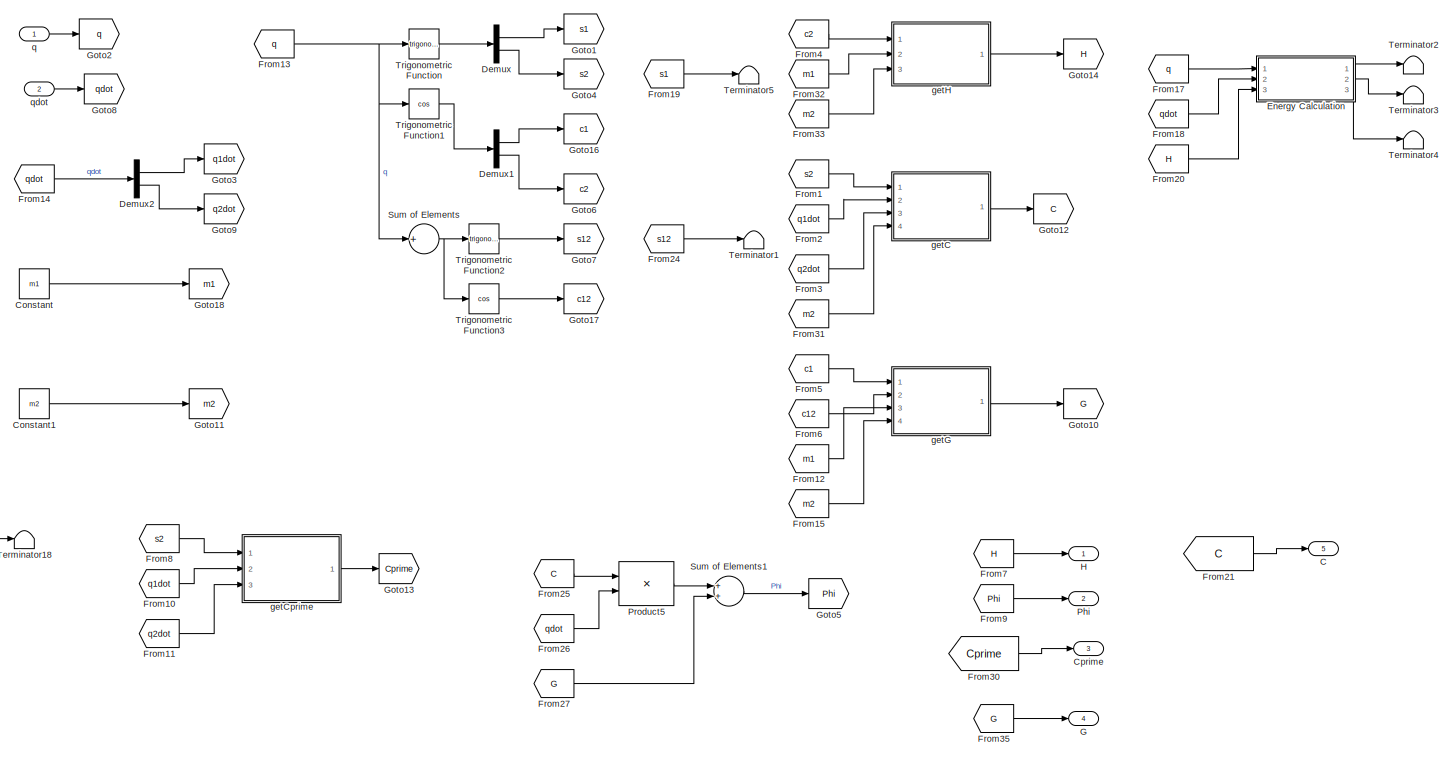
[diagram: Controller/Get System Parameters - part 1/2, most of the canvas]
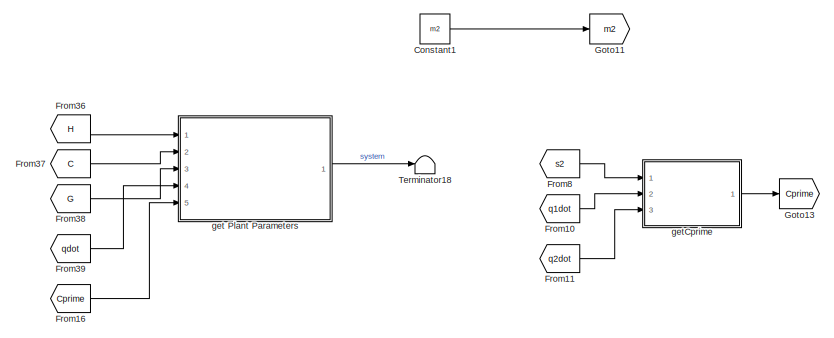
[diagram: Controller/Get System Parameters - part 2/2, bottom left region]
BLOCK [SubSystem] Controller/Get System Parameters
  Ports = [2, 5]
  RequestExecContextInheritance = off
BLOCK [Outport] Controller/Get System Parameters/C
  IconDisplay = Port number
  Port = 5
BLOCK [Constant] Controller/Get System Parameters/Constant
  Value = m1
BLOCK [Constant] Controller/Get System Parameters/Constant1
  Value = m2
BLOCK [Outport] Controller/Get System Parameters/Cprime
  IconDisplay = Port number
  Port = 3
BLOCK [Demux] Controller/Get System Parameters/Demux
  DisplayOption = bar
  Outputs = 2
  Ports = [1, 2]
BLOCK [Demux] Controller/Get System Parameters/Demux1
  DisplayOption = bar
  Outputs = 2
  Ports = [1, 2]
BLOCK [Demux] Controller/Get System Parameters/Demux2
  DisplayOption = bar
  Outputs = 2
  Ports = [1, 2]
BLOCK [SubSystem] Controller/Get System Parameters/Energy Calculation
  Ports = [3, 3]
  RequestExecContextInheritance = off
BLOCK [Constant] Controller/Get System Parameters/Energy Calculation/Constant
  Value = l1
  VectorParams1D = off
BLOCK [Constant] Controller/Get System Parameters/Energy Calculation/Constant1
  Value = l2
  VectorParams1D = off
BLOCK [Demux] Controller/Get System Parameters/Energy Calculation/Demux
  DisplayOption = bar
  Outputs = 2
  Ports = [1, 2]
BLOCK [Outport] Controller/Get System Parameters/Energy Calculation/E
  IconDisplay = Port number
  Port = 3
BLOCK [From] Controller/Get System Parameters/Energy Calculation/From1
  GotoTag = U
BLOCK [From] Controller/Get System Parameters/Energy Calculation/From13
  GotoTag = q
BLOCK [From] Controller/Get System Parameters/Energy Calculation/From17
  GotoTag = qdot
BLOCK [From] Controller/Get System Parameters/Energy Calculation/From18
  GotoTag = qdot
BLOCK [From] Controller/Get System Parameters/Energy Calculation/From19
  GotoTag = H
BLOCK [From] Controller/Get System Parameters/Energy Calculation/From2
  GotoTag = T
BLOCK [From] Controller/Get System Parameters/Energy Calculation/From20
  GotoTag = l1sintht1
BLOCK [From] Controller/Get System Parameters/Energy Calculation/From21
  GotoTag = T
BLOCK [From] Controller/Get System Parameters/Energy Calculation/From22
  GotoTag = U
BLOCK [From] Controller/Get System Parameters/Energy Calculation/From3
  GotoTag = s1
BLOCK [From] Controller/Get System Parameters/Energy Calculation/From5
  GotoTag = l1sintht1
BLOCK [From] Controller/Get System Parameters/Energy Calculation/From6
  GotoTag = s12
BLOCK [From] Controller/Get System Parameters/Energy Calculation/From8
  GotoTag = l2sintht12
BLOCK [Gain] Controller/Get System Parameters/Energy Calculation/Gain
  Gain = 1/2
  OutDataTypeStr = Inherit: Inherit via internal rule
  ParamDataTypeStr = Inherit: Inherit via internal rule
  SaturateOnIntegerOverflow = off
BLOCK [Gain] Controller/Get System Parameters/Energy Calculation/Gain1
  Gain = 0.5
  OutDataTypeStr = Inherit: Inherit via internal rule
  ParamDataTypeStr = Inherit: Inherit via internal rule
  SaturateOnIntegerOverflow = off
BLOCK [Gain] Controller/Get System Parameters/Energy Calculation/Gain5
  Gain = 0.5*m1*g
  OutDataTypeStr = Inherit: Inherit via internal rule
  ParamDataTypeStr = Inherit: Inherit via internal rule
  SaturateOnIntegerOverflow = off
BLOCK [Gain] Controller/Get System Parameters/Energy Calculation/Gain6
  Gain = m2*g
  OutDataTypeStr = Inherit: Inherit via internal rule
  ParamDataTypeStr = Inherit: Inherit via internal rule
  SaturateOnIntegerOverflow = off
BLOCK [Goto] Controller/Get System Parameters/Energy Calculation/Goto1
  GotoTag = s1
BLOCK [Goto] Controller/Get System Parameters/Energy Calculation/Goto15
  GotoTag = T
BLOCK [Goto] Controller/Get System Parameters/Energy Calculation/Goto18
  GotoTag = U
BLOCK [Goto] Controller/Get System Parameters/Energy Calculation/Goto2
  GotoTag = q
BLOCK [Goto] Controller/Get System Parameters/Energy Calculation/Goto4
  GotoTag = qdot
BLOCK [Goto] Controller/Get System Parameters/Energy Calculation/Goto5
  GotoTag = l1sintht1
BLOCK [Goto] Controller/Get System Parameters/Energy Calculation/Goto6
  GotoTag = s12
BLOCK [Goto] Controller/Get System Parameters/Energy Calculation/Goto7
  GotoTag = l2sintht12
BLOCK [Goto] Controller/Get System Parameters/Energy Calculation/Goto8
  GotoTag = H
BLOCK [Inport] Controller/Get System Parameters/Energy Calculation/H
  IconDisplay = Port number
  Port = 3
BLOCK [Math] Controller/Get System Parameters/Energy Calculation/Math Function
  Operator = transpose
  Ports = [1, 1]
BLOCK [Product] Controller/Get System Parameters/Energy Calculation/Product1
  InputSameDT = off
  OutDataTypeStr = Inherit: Inherit via internal rule
  Ports = [2, 1]
  SaturateOnIntegerOverflow = off
BLOCK [Product] Controller/Get System Parameters/Energy Calculation/Product3
  InputSameDT = off
  OutDataTypeStr = Inherit: Inherit via internal rule
  Ports = [2, 1]
  SaturateOnIntegerOverflow = off
BLOCK [Product] Controller/Get System Parameters/Energy Calculation/Product5
  InputSameDT = off
  Inputs = 3
  Multiplication = Matrix(*)
  OutDataTypeStr = Inherit: Inherit via internal rule
  Ports = [3, 1]
  SaturateOnIntegerOverflow = off
BLOCK [Sum] Controller/Get System Parameters/Energy Calculation/Sum of Elements
  InputSameDT = off
  Inputs = +
  OutDataTypeStr = Inherit: Inherit via internal rule
  Ports = [1, 1]
  SaturateOnIntegerOverflow = off
BLOCK [Sum] Controller/Get System Parameters/Energy Calculation/Sum1
  InputSameDT = off
  OutDataTypeStr = Inherit: Inherit via internal rule
  Ports = [2, 1]
  SaturateOnIntegerOverflow = off
BLOCK [Sum] Controller/Get System Parameters/Energy Calculation/Sum2
  InputSameDT = off
  OutDataTypeStr = Inherit: Inherit via internal rule
  Ports = [2, 1]
  SaturateOnIntegerOverflow = off
BLOCK [Sum] Controller/Get System Parameters/Energy Calculation/Sum3
  InputSameDT = off
  OutDataTypeStr = Inherit: Inherit via internal rule
  Ports = [2, 1]
  SaturateOnIntegerOverflow = off
BLOCK [Outport] Controller/Get System Parameters/Energy Calculation/T
  IconDisplay = Port number
  Port = 2
BLOCK [Terminator] Controller/Get System Parameters/Energy Calculation/Terminator4
BLOCK [Trigonometry] Controller/Get System Parameters/Energy Calculation/Trigonometric Function
  Ports = [1, 1]
BLOCK [Trigonometry] Controller/Get System Parameters/Energy Calculation/Trigonometric Function2
  Ports = [1, 1]
BLOCK [Outport] Controller/Get System Parameters/Energy Calculation/U
  IconDisplay = Port number
BLOCK [Inport] Controller/Get System Parameters/Energy Calculation/q
  IconDisplay = Port number
BLOCK [Inport] Controller/Get System Parameters/Energy Calculation/qdot
  IconDisplay = Port number
  Port = 2
BLOCK [From] Controller/Get System Parameters/From1
  GotoTag = s2
BLOCK [From] Controller/Get System Parameters/From10
  GotoTag = q1dot
BLOCK [From] Controller/Get System Parameters/From11
  GotoTag = q2dot
BLOCK [From] Controller/Get System Parameters/From12
  GotoTag = m1
BLOCK [From] Controller/Get System Parameters/From13
  GotoTag = q
BLOCK [From] Controller/Get System Parameters/From14
  GotoTag = qdot
BLOCK [From] Controller/Get System Parameters/From15
  GotoTag = m2
BLOCK [From] Controller/Get System Parameters/From16
  GotoTag = Cprime
BLOCK [From] Controller/Get System Parameters/From17
  GotoTag = q
BLOCK [From] Controller/Get System Parameters/From18
  GotoTag = qdot
BLOCK [From] Controller/Get System Parameters/From19
  GotoTag = s1
BLOCK [From] Controller/Get System Parameters/From2
  GotoTag = q1dot
BLOCK [From] Controller/Get System Parameters/From20
  GotoTag = H
BLOCK [From] Controller/Get System Parameters/From21
  GotoTag = C
BLOCK [From] Controller/Get System Parameters/From24
  GotoTag = s12
BLOCK [From] Controller/Get System Parameters/From25
  GotoTag = C
BLOCK [From] Controller/Get System Parameters/From26
  GotoTag = qdot
BLOCK [From] Controller/Get System Parameters/From27
  GotoTag = G
BLOCK [From] Controller/Get System Parameters/From3
  GotoTag = q2dot
BLOCK [From] Controller/Get System Parameters/From30
  GotoTag = Cprime
BLOCK [From] Controller/Get System Parameters/From31
  GotoTag = m2
BLOCK [From] Controller/Get System Parameters/From32
  GotoTag = m1
BLOCK [From] Controller/Get System Parameters/From33
  GotoTag = m2
BLOCK [From] Controller/Get System Parameters/From35
  GotoTag = G
BLOCK [From] Controller/Get System Parameters/From36
  GotoTag = H
BLOCK [From] Controller/Get System Parameters/From37
  GotoTag = C
BLOCK [From] Controller/Get System Parameters/From38
  GotoTag = G
BLOCK [From] Controller/Get System Parameters/From39
  GotoTag = qdot
BLOCK [From] Controller/Get System Parameters/From4
  GotoTag = c2
BLOCK [From] Controller/Get System Parameters/From5
  GotoTag = c1
BLOCK [From] Controller/Get System Parameters/From6
  GotoTag = c12
BLOCK [From] Controller/Get System Parameters/From7
  GotoTag = H
BLOCK [From] Controller/Get System Parameters/From8
  GotoTag = s2
BLOCK [From] Controller/Get System Parameters/From9
  GotoTag = Phi
BLOCK [Outport] Controller/Get System Parameters/G
  IconDisplay = Port number
  Port = 4
BLOCK [Goto] Controller/Get System Parameters/Goto1
  GotoTag = s1
BLOCK [Goto] Controller/Get System Parameters/Goto10
  GotoTag = G
BLOCK [Goto] Controller/Get System Parameters/Goto11
  GotoTag = m2
BLOCK [Goto] Controller/Get System Parameters/Goto12
  GotoTag = C
BLOCK [Goto] Controller/Get System Parameters/Goto13
  GotoTag = Cprime
BLOCK [Goto] Controller/Get System Parameters/Goto14
  GotoTag = H
BLOCK [Goto] Controller/Get System Parameters/Goto16
  GotoTag = c1
BLOCK [Goto] Controller/Get System Parameters/Goto17
  GotoTag = c12
BLOCK [Goto] Controller/Get System Parameters/Goto18
  GotoTag = m1
BLOCK [Goto] Controller/Get System Parameters/Goto2
  GotoTag = q
BLOCK [Goto] Controller/Get System Parameters/Goto3
  GotoTag = q1dot
BLOCK [Goto] Controller/Get System Parameters/Goto4
  GotoTag = s2
BLOCK [Goto] Controller/Get System Parameters/Goto5
  GotoTag = Phi
BLOCK [Goto] Controller/Get System Parameters/Goto6
  GotoTag = c2
BLOCK [Goto] Controller/Get System Parameters/Goto7
  GotoTag = s12
BLOCK [Goto] Controller/Get System Parameters/Goto8
  GotoTag = qdot
BLOCK [Goto] Controller/Get System Parameters/Goto9
  GotoTag = q2dot
BLOCK [Outport] Controller/Get System Parameters/H
  IconDisplay = Port number
BLOCK [Outport] Controller/Get System Parameters/Phi
  IconDisplay = Port number
  Port = 2
BLOCK [Product] Controller/Get System Parameters/Product5
  InputSameDT = off
  Multiplication = Matrix(*)
  OutDataTypeStr = Inherit: Inherit via internal rule
  Ports = [2, 1]
  SaturateOnIntegerOverflow = off
BLOCK [Sum] Controller/Get System Parameters/Sum of Elements
  InputSameDT = off
  Inputs = +
  OutDataTypeStr = Inherit: Inherit via internal rule
  Ports = [1, 1]
  SaturateOnIntegerOverflow = off
BLOCK [Sum] Controller/Get System Parameters/Sum of Elements1
  InputSameDT = off
  OutDataTypeStr = Inherit: Inherit via internal rule
  Ports = [2, 1]
  SaturateOnIntegerOverflow = off
BLOCK [Terminator] Controller/Get System Parameters/Terminator1
BLOCK [Terminator] Controller/Get System Parameters/Terminator18
BLOCK [Terminator] Controller/Get System Parameters/Terminator2
BLOCK [Terminator] Controller/Get System Parameters/Terminator3
BLOCK [Terminator] Controller/Get System Parameters/Terminator4
BLOCK [Terminator] Controller/Get System Parameters/Terminator5
BLOCK [Trigonometry] Controller/Get System Parameters/Trigonometric Function
  Ports = [1, 1]
BLOCK [Trigonometry] Controller/Get System Parameters/Trigonometric Function1
  Operator = cos
  Ports = [1, 1]
BLOCK [Trigonometry] Controller/Get System Parameters/Trigonometric Function2
  Ports = [1, 1]
BLOCK [Trigonometry] Controller/Get System Parameters/Trigonometric Function3
  Operator = cos
  Ports = [1, 1]
BLOCK [SubSystem] Controller/Get System Parameters/get Plant Parameters
  Ports = [5, 1]
  RequestExecContextInheritance = off
BLOCK [Selector] Controller/Get System Parameters/get Plant Parameters/1
  IndexOptions = Index vector (dialog),Index vector (dialog)
  Indices = 1,1
  InputPortWidth = 3
  NumberOfDimensions = 2
  OutputSizes = 1,1
  Ports = [1, 1]
BLOCK [Selector] Controller/Get System Parameters/get Plant Parameters/11
  IndexOptions = Index vector (dialog),Index vector (dialog)
  Indices = 1,1
  InputPortWidth = 3
  NumberOfDimensions = 2
  OutputSizes = 1,1
  Ports = [1, 1]
BLOCK [Selector] Controller/Get System Parameters/get Plant Parameters/12
  IndexOptions = Index vector (dialog),Index vector (dialog)
  Indices = 1,2
  InputPortWidth = 3
  NumberOfDimensions = 2
  OutputSizes = 1,1
  Ports = [1, 1]
BLOCK [Selector] Controller/Get System Parameters/get Plant Parameters/2
  IndexOptions = Index vector (dialog),Index vector (dialog)
  Indices = 1,2
  InputPortWidth = 3
  NumberOfDimensions = 2
  OutputSizes = 1,1
  Ports = [1, 1]
BLOCK [Selector] Controller/Get System Parameters/get Plant Parameters/21
  IndexOptions = Index vector (dialog),Index vector (dialog)
  Indices = 2,1
  InputPortWidth = 3
  NumberOfDimensions = 2
  OutputSizes = 1,1
  Ports = [1, 1]
BLOCK [Selector] Controller/Get System Parameters/get Plant Parameters/22
  IndexOptions = Index vector (dialog),Index vector (dialog)
  Indices = 2,2
  InputPortWidth = 3
  NumberOfDimensions = 2
  OutputSizes = 1,1
  Ports = [1, 1]
BLOCK [Selector] Controller/Get System Parameters/get Plant Parameters/3
  IndexOptions = Index vector (dialog),Index vector (dialog)
  Indices = 2,1
  InputPortWidth = 3
  NumberOfDimensions = 2
  OutputSizes = 1,1
  Ports = [1, 1]
BLOCK [Selector] Controller/Get System Parameters/get Plant Parameters/4
  IndexOptions = Index vector (dialog),Index vector (dialog)
  Indices = 2,2
  InputPortWidth = 3
  NumberOfDimensions = 2
  OutputSizes = 1,1
  Ports = [1, 1]
BLOCK [Selector] Controller/Get System Parameters/get Plant Parameters/5
  IndexOptions = Index vector (dialog),Index vector (dialog)
  Indices = 1,1
  InputPortWidth = 3
  NumberOfDimensions = 2
  OutputSizes = 1,1
  Ports = [1, 1]
BLOCK [Selector] Controller/Get System Parameters/get Plant Parameters/6
  IndexOptions = Index vector (dialog),Index vector (dialog)
  Indices = 2,1
  InputPortWidth = 3
  NumberOfDimensions = 2
  OutputSizes = 1,1
  Ports = [1, 1]
BLOCK [Selector] Controller/Get System Parameters/get Plant Parameters/7
  IndexOptions = Index vector (dialog),Index vector (dialog)
  Indices = 1,1
  InputPortWidth = 3
  NumberOfDimensions = 2
  OutputSizes = 1,1
  Ports = [1, 1]
BLOCK [Selector] Controller/Get System Parameters/get Plant Parameters/8
  IndexOptions = Index vector (dialog),Index vector (dialog)
  Indices = 2,1
  InputPortWidth = 3
  NumberOfDimensions = 2
  OutputSizes = 1,1
  Ports = [1, 1]
BLOCK [BusCreator] Controller/Get System Parameters/get Plant Parameters/Bus Creator
  DisplayOption = bar
  Inputs = 16
  Ports = [16, 1]
BLOCK [Inport] Controller/Get System Parameters/get Plant Parameters/C
  IconDisplay = Port number
  Port = 2
BLOCK [Inport] Controller/Get System Parameters/get Plant Parameters/Cprime
  IconDisplay = Port number
  Port = 5
BLOCK [From] Controller/Get System Parameters/get Plant Parameters/From1
  GotoTag = Cprime
BLOCK [From] Controller/Get System Parameters/get Plant Parameters/From21
  GotoTag = H
BLOCK [From] Controller/Get System Parameters/get Plant Parameters/From22
  GotoTag = C
BLOCK [From] Controller/Get System Parameters/get Plant Parameters/From23
  GotoTag = G
BLOCK [From] Controller/Get System Parameters/get Plant Parameters/From25
  GotoTag = C
BLOCK [From] Controller/Get System Parameters/get Plant Parameters/From26
  GotoTag = qdot
BLOCK [From] Controller/Get System Parameters/get Plant Parameters/From27
  GotoTag = G
BLOCK [From] Controller/Get System Parameters/get Plant Parameters/From28
  GotoTag = H
BLOCK [From] Controller/Get System Parameters/get Plant Parameters/From29
  GotoTag = C
BLOCK [From] Controller/Get System Parameters/get Plant Parameters/From30
  GotoTag = G
BLOCK [Inport] Controller/Get System Parameters/get Plant Parameters/G
  IconDisplay = Port number
  Port = 3
BLOCK [Goto] Controller/Get System Parameters/get Plant Parameters/Goto1
  GotoTag = C
BLOCK [Goto] Controller/Get System Parameters/get Plant Parameters/Goto15
  GotoTag = H
BLOCK [Goto] Controller/Get System Parameters/get Plant Parameters/Goto2
  GotoTag = G
BLOCK [Goto] Controller/Get System Parameters/get Plant Parameters/Goto3
  GotoTag = qdot
BLOCK [Goto] Controller/Get System Parameters/get Plant Parameters/Goto4
  GotoTag = Cprime
BLOCK [Inport] Controller/Get System Parameters/get Plant Parameters/H
  IconDisplay = Port number
BLOCK [Product] Controller/Get System Parameters/get Plant Parameters/Product5
  InputSameDT = off
  Multiplication = Matrix(*)
  OutDataTypeStr = Inherit: Inherit via internal rule
  Ports = [2, 1]
  SaturateOnIntegerOverflow = off
BLOCK [Sum] Controller/Get System Parameters/get Plant Parameters/Sum of Elements1
  InputSameDT = off
  OutDataTypeStr = Inherit: Inherit via internal rule
  Ports = [2, 1]
  SaturateOnIntegerOverflow = off
BLOCK [Outport] Controller/Get System Parameters/get Plant Parameters/busData
  IconDisplay = Port number
BLOCK [Inport] Controller/Get System Parameters/get Plant Parameters/qdot
  IconDisplay = Port number
  Port = 4
BLOCK [SubSystem] Controller/Get System Parameters/getC
  Ports = [4, 1]
  RequestExecContextInheritance = off
BLOCK [Outport] Controller/Get System Parameters/getC/C
  IconDisplay = Port number
BLOCK [Constant] Controller/Get System Parameters/getC/Constant2
  Value = 0
  VectorParams1D = off
BLOCK [From] Controller/Get System Parameters/getC/From
  GotoTag = C11
BLOCK [From] Controller/Get System Parameters/getC/From1
  GotoTag = C
BLOCK [From] Controller/Get System Parameters/getC/From2
  GotoTag = s2
BLOCK [From] Controller/Get System Parameters/getC/From22
  GotoTag = h
BLOCK [From] Controller/Get System Parameters/getC/From23
  GotoTag = q1dot
BLOCK [From] Controller/Get System Parameters/getC/From24
  GotoTag = h
BLOCK [From] Controller/Get System Parameters/getC/From25
  GotoTag = q2dot
BLOCK [From] Controller/Get System Parameters/getC/From26
  GotoTag = h
BLOCK [From] Controller/Get System Parameters/getC/From28
  GotoTag = q1dot
BLOCK [From] Controller/Get System Parameters/getC/From29
  GotoTag = q2dot
BLOCK [From] Controller/Get System Parameters/getC/From3
  GotoTag = m2
BLOCK [From] Controller/Get System Parameters/getC/From4
  GotoTag = C12
BLOCK [From] Controller/Get System Parameters/getC/From5
  GotoTag = C21
BLOCK [From] Controller/Get System Parameters/getC/From6
  GotoTag = C22
BLOCK [Gain] Controller/Get System Parameters/getC/Gain4
  Gain = l1*lc2
  OutDataTypeStr = Inherit: Inherit via internal rule
  ParamDataTypeStr = Inherit: Inherit via internal rule
  SaturateOnIntegerOverflow = off
BLOCK [Gain] Controller/Get System Parameters/getC/Gain6
  Gain = -1
  OutDataTypeStr = Inherit: Inherit via internal rule
  ParamDataTypeStr = Inherit: Inherit via internal rule
  SaturateOnIntegerOverflow = off
BLOCK [Gain] Controller/Get System Parameters/getC/Gain7
  Gain = -1
  OutDataTypeStr = Inherit: Inherit via internal rule
  ParamDataTypeStr = Inherit: Inherit via internal rule
  SaturateOnIntegerOverflow = off
BLOCK [Goto] Controller/Get System Parameters/getC/Goto1
  GotoTag = C
BLOCK [Goto] Controller/Get System Parameters/getC/Goto10
  GotoTag = h
BLOCK [Goto] Controller/Get System Parameters/getC/Goto12
  GotoTag = m2
BLOCK [Goto] Controller/Get System Parameters/getC/Goto17
  GotoTag = C21
BLOCK [Goto] Controller/Get System Parameters/getC/Goto18
  GotoTag = C11
BLOCK [Goto] Controller/Get System Parameters/getC/Goto19
  GotoTag = C12
BLOCK [Goto] Controller/Get System Parameters/getC/Goto2
  GotoTag = C22
BLOCK [Goto] Controller/Get System Parameters/getC/Goto5
  GotoTag = s2
BLOCK [Goto] Controller/Get System Parameters/getC/Goto6
  GotoTag = q1dot
BLOCK [Goto] Controller/Get System Parameters/getC/Goto7
  GotoTag = q2dot
BLOCK [Concatenate] Controller/Get System Parameters/getC/Matrix Concatenate
  ConcatenateDimension = 2
  Mode = Multidimensional array
  Ports = [2, 1]
BLOCK [Concatenate] Controller/Get System Parameters/getC/Matrix Concatenate1
  ConcatenateDimension = 2
  Mode = Multidimensional array
  Ports = [2, 1]
BLOCK [Concatenate] Controller/Get System Parameters/getC/Matrix Concatenate2
  Mode = Multidimensional array
  Ports = [2, 1]
BLOCK [Product] Controller/Get System Parameters/getC/Product
  InputSameDT = off
  OutDataTypeStr = Inherit: Inherit via internal rule
  Ports = [2, 1]
  SaturateOnIntegerOverflow = off
BLOCK [Product] Controller/Get System Parameters/getC/Product10
  InputSameDT = off
  OutDataTypeStr = Inherit: Inherit via internal rule
  Ports = [2, 1]
  SaturateOnIntegerOverflow = off
BLOCK [Product] Controller/Get System Parameters/getC/Product8
  InputSameDT = off
  OutDataTypeStr = Inherit: Inherit via internal rule
  Ports = [2, 1]
  SaturateOnIntegerOverflow = off
BLOCK [Product] Controller/Get System Parameters/getC/Product9
  InputSameDT = off
  OutDataTypeStr = Inherit: Inherit via internal rule
  Ports = [2, 1]
  SaturateOnIntegerOverflow = off
BLOCK [Sum] Controller/Get System Parameters/getC/Sum4
  InputSameDT = off
  OutDataTypeStr = Inherit: Inherit via internal rule
  Ports = [2, 1]
  SaturateOnIntegerOverflow = off
BLOCK [Inport] Controller/Get System Parameters/getC/m2
  IconDisplay = Port number
  Port = 4
BLOCK [Inport] Controller/Get System Parameters/getC/q1dot
  IconDisplay = Port number
  Port = 2
BLOCK [Inport] Controller/Get System Parameters/getC/q2dot
  IconDisplay = Port number
  Port = 3
BLOCK [Inport] Controller/Get System Parameters/getC/s2
  IconDisplay = Port number
BLOCK [SubSystem] Controller/Get System Parameters/getCprime
  Ports = [3, 1]
  RequestExecContextInheritance = off
BLOCK [Constant] Controller/Get System Parameters/getCprime/Constant1
  Value = 0
  VectorParams1D = off
BLOCK [Constant] Controller/Get System Parameters/getCprime/Constant2
  Value = m2
BLOCK [Outport] Controller/Get System Parameters/getCprime/Cprime
  IconDisplay = Port number
BLOCK [From] Controller/Get System Parameters/getCprime/From
  GotoTag = C11
BLOCK [From] Controller/Get System Parameters/getCprime/From1
  GotoTag = h
BLOCK [From] Controller/Get System Parameters/getCprime/From2
  GotoTag = C12
BLOCK [From] Controller/Get System Parameters/getCprime/From24
  GotoTag = h
BLOCK [From] Controller/Get System Parameters/getCprime/From25
  GotoTag = q2dot
BLOCK [From] Controller/Get System Parameters/getCprime/From26
  GotoTag = h
BLOCK [From] Controller/Get System Parameters/getCprime/From28
  GotoTag = q1dot
BLOCK [From] Controller/Get System Parameters/getCprime/From29
  GotoTag = q2dot
BLOCK [From] Controller/Get System Parameters/getCprime/From3
  GotoTag = C21
BLOCK [From] Controller/Get System Parameters/getCprime/From4
  GotoTag = C22
BLOCK [From] Controller/Get System Parameters/getCprime/From5
  GotoTag = q1dot
BLOCK [From] Controller/Get System Parameters/getCprime/From6
  GotoTag = q2dot
BLOCK [From] Controller/Get System Parameters/getCprime/From7
  GotoTag = s2
BLOCK [From] Controller/Get System Parameters/getCprime/From8
  GotoTag = m2
BLOCK [Gain] Controller/Get System Parameters/getCprime/Gain1
  Gain = 2
  OutDataTypeStr = Inherit: Inherit via internal rule
  ParamDataTypeStr = Inherit: Inherit via internal rule
  SaturateOnIntegerOverflow = off
BLOCK [Gain] Controller/Get System Parameters/getCprime/Gain2
  Gain = l1*lc2
  OutDataTypeStr = Inherit: Inherit via internal rule
  ParamDataTypeStr = Inherit: Inherit via internal rule
  SaturateOnIntegerOverflow = off
BLOCK [Gain] Controller/Get System Parameters/getCprime/Gain4
  Gain = -1
  OutDataTypeStr = Inherit: Inherit via internal rule
  ParamDataTypeStr = Inherit: Inherit via internal rule
  SaturateOnIntegerOverflow = off
BLOCK [Gain] Controller/Get System Parameters/getCprime/Gain6
  Gain = -3
  OutDataTypeStr = Inherit: Inherit via internal rule
  ParamDataTypeStr = Inherit: Inherit via internal rule
  SaturateOnIntegerOverflow = off
BLOCK [Gain] Controller/Get System Parameters/getCprime/Gain7
  Gain = -1
  OutDataTypeStr = Inherit: Inherit via internal rule
  ParamDataTypeStr = Inherit: Inherit via internal rule
  SaturateOnIntegerOverflow = off
BLOCK [Goto] Controller/Get System Parameters/getCprime/Goto10
  GotoTag = h
BLOCK [Goto] Controller/Get System Parameters/getCprime/Goto12
  GotoTag = m2
BLOCK [Goto] Controller/Get System Parameters/getCprime/Goto17
  GotoTag = C21
BLOCK [Goto] Controller/Get System Parameters/getCprime/Goto18
  GotoTag = C11
BLOCK [Goto] Controller/Get System Parameters/getCprime/Goto19
  GotoTag = C12
BLOCK [Goto] Controller/Get System Parameters/getCprime/Goto2
  GotoTag = C22
BLOCK [Goto] Controller/Get System Parameters/getCprime/Goto5
  GotoTag = s2
BLOCK [Goto] Controller/Get System Parameters/getCprime/Goto6
  GotoTag = q1dot
BLOCK [Goto] Controller/Get System Parameters/getCprime/Goto7
  GotoTag = q2dot
BLOCK [Concatenate] Controller/Get System Parameters/getCprime/Matrix Concatenate
  ConcatenateDimension = 2
  Mode = Multidimensional array
  Ports = [2, 1]
BLOCK [Concatenate] Controller/Get System Parameters/getCprime/Matrix Concatenate1
  ConcatenateDimension = 2
  Mode = Multidimensional array
  Ports = [2, 1]
BLOCK [Concatenate] Controller/Get System Parameters/getCprime/Matrix Concatenate2
  Mode = Multidimensional array
  Ports = [2, 1]
BLOCK [Product] Controller/Get System Parameters/getCprime/Product
  InputSameDT = off
  OutDataTypeStr = Inherit: Inherit via internal rule
  Ports = [2, 1]
  SaturateOnIntegerOverflow = off
BLOCK [Product] Controller/Get System Parameters/getCprime/Product1
  InputSameDT = off
  OutDataTypeStr = Inherit: Inherit via internal rule
  Ports = [2, 1]
  SaturateOnIntegerOverflow = off
BLOCK [Product] Controller/Get System Parameters/getCprime/Product10
  InputSameDT = off
  OutDataTypeStr = Inherit: Inherit via internal rule
  Ports = [2, 1]
  SaturateOnIntegerOverflow = off
BLOCK [Product] Controller/Get System Parameters/getCprime/Product9
  InputSameDT = off
  OutDataTypeStr = Inherit: Inherit via internal rule
  Ports = [2, 1]
  SaturateOnIntegerOverflow = off
BLOCK [Sum] Controller/Get System Parameters/getCprime/Sum1
  InputSameDT = off
  Inputs = -+
  OutDataTypeStr = Inherit: Inherit via internal rule
  Ports = [2, 1]
  SaturateOnIntegerOverflow = off
BLOCK [Sum] Controller/Get System Parameters/getCprime/Sum4
  InputSameDT = off
  OutDataTypeStr = Inherit: Inherit via internal rule
  Ports = [2, 1]
  SaturateOnIntegerOverflow = off
BLOCK [Inport] Controller/Get System Parameters/getCprime/q1dot
  IconDisplay = Port number
  Port = 2
BLOCK [Inport] Controller/Get System Parameters/getCprime/q2dot
  IconDisplay = Port number
  Port = 3
BLOCK [Inport] Controller/Get System Parameters/getCprime/s2
  IconDisplay = Port number
BLOCK [SubSystem] Controller/Get System Parameters/getG
  Ports = [4, 1]
  RequestExecContextInheritance = off
BLOCK [Sum] Controller/Get System Parameters/getG/Add1
  InputSameDT = off
  OutDataTypeStr = Inherit: Inherit via internal rule
  Ports = [2, 1]
  SaturateOnIntegerOverflow = off
BLOCK [Sum] Controller/Get System Parameters/getG/Add2
  InputSameDT = off
  OutDataTypeStr = Inherit: Inherit via internal rule
  Ports = [2, 1]
  SaturateOnIntegerOverflow = off
BLOCK [From] Controller/Get System Parameters/getG/From
  GotoTag = G11
BLOCK [From] Controller/Get System Parameters/getG/From1
  GotoTag = G21
BLOCK [From] Controller/Get System Parameters/getG/From10
  GotoTag = m2
BLOCK [From] Controller/Get System Parameters/getG/From11
  GotoTag = c12
BLOCK [From] Controller/Get System Parameters/getG/From12
  GotoTag = m2
BLOCK [From] Controller/Get System Parameters/getG/From13
  GotoTag = c12
BLOCK [From] Controller/Get System Parameters/getG/From7
  GotoTag = m1
BLOCK [From] Controller/Get System Parameters/getG/From8
  GotoTag = m2
BLOCK [From] Controller/Get System Parameters/getG/From9
  GotoTag = c1
BLOCK [Outport] Controller/Get System Parameters/getG/G
  IconDisplay = Port number
BLOCK [Gain] Controller/Get System Parameters/getG/Gain10
  Gain = lc2
  OutDataTypeStr = Inherit: Inherit via internal rule
  ParamDataTypeStr = Inherit: Inherit via internal rule
  SaturateOnIntegerOverflow = off
BLOCK [Gain] Controller/Get System Parameters/getG/Gain11
  Gain = g
  OutDataTypeStr = Inherit: Inherit via internal rule
  ParamDataTypeStr = Inherit: Inherit via internal rule
  SaturateOnIntegerOverflow = off
BLOCK [Gain] Controller/Get System Parameters/getG/Gain2
  OutDataTypeStr = Inherit: Inherit via internal rule
  ParamDataTypeStr = Inherit: Inherit via internal rule
  SaturateOnIntegerOverflow = off
BLOCK [Gain] Controller/Get System Parameters/getG/Gain5
  Gain = lc1
  OutDataTypeStr = Inherit: Inherit via internal rule
  ParamDataTypeStr = Inherit: Inherit via internal rule
  SaturateOnIntegerOverflow = off
BLOCK [Gain] Controller/Get System Parameters/getG/Gain6
  Gain = l1
  OutDataTypeStr = Inherit: Inherit via internal rule
  ParamDataTypeStr = Inherit: Inherit via internal rule
  SaturateOnIntegerOverflow = off
BLOCK [Gain] Controller/Get System Parameters/getG/Gain7
  Gain = g
  OutDataTypeStr = Inherit: Inherit via internal rule
  ParamDataTypeStr = Inherit: Inherit via internal rule
  SaturateOnIntegerOverflow = off
BLOCK [Gain] Controller/Get System Parameters/getG/Gain8
  Gain = lc2
  OutDataTypeStr = Inherit: Inherit via internal rule
  ParamDataTypeStr = Inherit: Inherit via internal rule
  SaturateOnIntegerOverflow = off
BLOCK [Gain] Controller/Get System Parameters/getG/Gain9
  Gain = g
  OutDataTypeStr = Inherit: Inherit via internal rule
  ParamDataTypeStr = Inherit: Inherit via internal rule
  SaturateOnIntegerOverflow = off
BLOCK [Goto] Controller/Get System Parameters/getG/Goto1
  GotoTag = G11
BLOCK [Goto] Controller/Get System Parameters/getG/Goto2
  GotoTag = m1
BLOCK [Goto] Controller/Get System Parameters/getG/Goto3
  GotoTag = m2
BLOCK [Goto] Controller/Get System Parameters/getG/Goto5
  GotoTag = c1
BLOCK [Goto] Controller/Get System Parameters/getG/Goto6
  GotoTag = c12
BLOCK [Goto] Controller/Get System Parameters/getG/Goto9
  GotoTag = G21
BLOCK [Concatenate] Controller/Get System Parameters/getG/Matrix Concatenate2
  Mode = Multidimensional array
  Ports = [2, 1]
BLOCK [Product] Controller/Get System Parameters/getG/Product1
  InputSameDT = off
  OutDataTypeStr = Inherit: Inherit via internal rule
  Ports = [2, 1]
  SaturateOnIntegerOverflow = off
BLOCK [Product] Controller/Get System Parameters/getG/Product2
  InputSameDT = off
  OutDataTypeStr = Inherit: Inherit via internal rule
  Ports = [2, 1]
  SaturateOnIntegerOverflow = off
BLOCK [Product] Controller/Get System Parameters/getG/Product3
  InputSameDT = off
  OutDataTypeStr = Inherit: Inherit via internal rule
  Ports = [2, 1]
  SaturateOnIntegerOverflow = off
BLOCK [Inport] Controller/Get System Parameters/getG/c1
  IconDisplay = Port number
BLOCK [Inport] Controller/Get System Parameters/getG/c12
  IconDisplay = Port number
  Port = 2
BLOCK [Inport] Controller/Get System Parameters/getG/m1
  IconDisplay = Port number
  Port = 3
BLOCK [Inport] Controller/Get System Parameters/getG/m2
  IconDisplay = Port number
  Port = 4
BLOCK [SubSystem] Controller/Get System Parameters/getH
  Ports = [3, 1]
  RequestExecContextInheritance = off
BLOCK [Constant] Controller/Get System Parameters/getH/Constant2
  Value = I2
BLOCK [Constant] Controller/Get System Parameters/getH/Constant4
  Value = I1
BLOCK [From] Controller/Get System Parameters/getH/From
  GotoTag = H11
BLOCK [From] Controller/Get System Parameters/getH/From1
  GotoTag = H12
BLOCK [From] Controller/Get System Parameters/getH/From10
  GotoTag = m2
BLOCK [From] Controller/Get System Parameters/getH/From11
  GotoTag = a
BLOCK [From] Controller/Get System Parameters/getH/From12
  GotoTag = I2
BLOCK [From] Controller/Get System Parameters/getH/From13
  GotoTag = m2
BLOCK [From] Controller/Get System Parameters/getH/From14
  GotoTag = a
BLOCK [From] Controller/Get System Parameters/getH/From15
  GotoTag = m2
BLOCK [From] Controller/Get System Parameters/getH/From2
  GotoTag = H21
BLOCK [From] Controller/Get System Parameters/getH/From3
  GotoTag = H22
BLOCK [From] Controller/Get System Parameters/getH/From4
  GotoTag = c2
BLOCK [From] Controller/Get System Parameters/getH/From5
  GotoTag = I2
BLOCK [From] Controller/Get System Parameters/getH/From6
  GotoTag = m2
BLOCK [From] Controller/Get System Parameters/getH/From7
  GotoTag = I1
BLOCK [From] Controller/Get System Parameters/getH/From8
  GotoTag = I2
BLOCK [From] Controller/Get System Parameters/getH/From9
  GotoTag = m1
BLOCK [Gain] Controller/Get System Parameters/getH/Gain
  Gain = 2
  OutDataTypeStr = Inherit: Inherit via internal rule
  ParamDataTypeStr = Inherit: Inherit via internal rule
  SaturateOnIntegerOverflow = off
BLOCK [Gain] Controller/Get System Parameters/getH/Gain1
  Gain = lc2^2
  OutDataTypeStr = Inherit: Inherit via internal rule
  ParamDataTypeStr = Inherit: Inherit via internal rule
  SaturateOnIntegerOverflow = off
BLOCK [Gain] Controller/Get System Parameters/getH/Gain4
  Gain = l1*lc2
  OutDataTypeStr = Inherit: Inherit via internal rule
  ParamDataTypeStr = Inherit: Inherit via internal rule
  SaturateOnIntegerOverflow = off
BLOCK [Gain] Controller/Get System Parameters/getH/Gain5
  Gain = lc1^2
  OutDataTypeStr = Inherit: Inherit via internal rule
  ParamDataTypeStr = Inherit: Inherit via internal rule
  SaturateOnIntegerOverflow = off
BLOCK [Gain] Controller/Get System Parameters/getH/Gain6
  Gain = l1^2+lc2^2
  OutDataTypeStr = Inherit: Inherit via internal rule
  ParamDataTypeStr = Inherit: Inherit via internal rule
  SaturateOnIntegerOverflow = off
BLOCK [Gain] Controller/Get System Parameters/getH/Gain7
  Gain = lc2^2
  OutDataTypeStr = Inherit: Inherit via internal rule
  ParamDataTypeStr = Inherit: Inherit via internal rule
  SaturateOnIntegerOverflow = off
BLOCK [Goto] Controller/Get System Parameters/getH/Goto1
  GotoTag = H12
BLOCK [Goto] Controller/Get System Parameters/getH/Goto10
  GotoTag = a
BLOCK [Goto] Controller/Get System Parameters/getH/Goto11
  GotoTag = H22
BLOCK [Goto] Controller/Get System Parameters/getH/Goto2
  GotoTag = H11
BLOCK [Goto] Controller/Get System Parameters/getH/Goto3
  GotoTag = H21
BLOCK [Goto] Controller/Get System Parameters/getH/Goto4
  GotoTag = I2
BLOCK [Goto] Controller/Get System Parameters/getH/Goto5
  GotoTag = c2
BLOCK [Goto] Controller/Get System Parameters/getH/Goto6
  GotoTag = I1
BLOCK [Goto] Controller/Get System Parameters/getH/Goto7
  GotoTag = m1
BLOCK [Goto] Controller/Get System Parameters/getH/Goto9
  GotoTag = m2
BLOCK [Outport] Controller/Get System Parameters/getH/H
  IconDisplay = Port number
BLOCK [Concatenate] Controller/Get System Parameters/getH/Matrix Concatenate
  ConcatenateDimension = 2
  Mode = Multidimensional array
  Ports = [2, 1]
BLOCK [Concatenate] Controller/Get System Parameters/getH/Matrix Concatenate1
  ConcatenateDimension = 2
  Mode = Multidimensional array
  Ports = [2, 1]
BLOCK [Concatenate] Controller/Get System Parameters/getH/Matrix Concatenate2
  Mode = Multidimensional array
  Ports = [2, 1]
BLOCK [Product] Controller/Get System Parameters/getH/Product
  InputSameDT = off
  OutDataTypeStr = Inherit: Inherit via internal rule
  Ports = [2, 1]
  SaturateOnIntegerOverflow = off
BLOCK [Sum] Controller/Get System Parameters/getH/Sum
  InputSameDT = off
  Inputs = +++++
  OutDataTypeStr = Inherit: Inherit via internal rule
  Ports = [5, 1]
  SaturateOnIntegerOverflow = off
BLOCK [Sum] Controller/Get System Parameters/getH/Sum1
  InputSameDT = off
  Inputs = +++
  OutDataTypeStr = Inherit: Inherit via internal rule
  Ports = [3, 1]
  SaturateOnIntegerOverflow = off
BLOCK [Sum] Controller/Get System Parameters/getH/Sum2
  InputSameDT = off
  OutDataTypeStr = Inherit: Inherit via internal rule
  Ports = [2, 1]
  SaturateOnIntegerOverflow = off
BLOCK [Inport] Controller/Get System Parameters/getH/c2
  IconDisplay = Port number
BLOCK [Inport] Controller/Get System Parameters/getH/m1
  IconDisplay = Port number
  Port = 2
BLOCK [Inport] Controller/Get System Parameters/getH/m2
  IconDisplay = Port number
  Port = 3
BLOCK [Inport] Controller/Get System Parameters/q
  IconDisplay = Port number
BLOCK [Inport] Controller/Get System Parameters/qdot
  IconDisplay = Port number
  Port = 2
BLOCK [Goto] Controller/Goto1
  GotoTag = ntau
BLOCK [Goto] Controller/Goto10
  GotoTag = C
BLOCK [Goto] Controller/Goto11
  GotoTag = ftau
BLOCK [Goto] Controller/Goto12
  GotoTag = enableNominal
BLOCK [Goto] Controller/Goto13
  GotoTag = enableFTC
BLOCK [Goto] Controller/Goto2
  GotoTag = Cp
BLOCK [Goto] Controller/Goto22
  GotoTag = Phi
BLOCK [Goto] Controller/Goto24
  GotoTag = H
BLOCK [Goto] Controller/Goto3
  GotoTag = Dhat
BLOCK [Goto] Controller/Goto4
  GotoTag = G
BLOCK [Goto] Controller/Goto5
  GotoTag = q
BLOCK [Goto] Controller/Goto6
  GotoTag = tau
BLOCK [Goto] Controller/Goto7
  GotoTag = qdot
BLOCK [Goto] Controller/Goto8
  GotoTag = r
BLOCK [Goto] Controller/Goto9
  GotoTag = fLink
BLOCK [Logic] Controller/Logical Operator
  AllPortsSameDT = off
  Operator = NOT
  OutDataTypeStr = boolean
  Ports = [1, 1]
BLOCK [Memory] Controller/Memory
  InheritSampleTime = on
  LinearizeAsDelay = on
  LinearizeMemory = on
BLOCK [Memory] Controller/Memory1
  InheritSampleTime = on
  LinearizeAsDelay = on
  LinearizeMemory = on
BLOCK [Memory] Controller/Memory2
  InheritSampleTime = on
  LinearizeAsDelay = on
  LinearizeMemory = on
BLOCK [SubSystem] Controller/Nominal Controller
  Ports = [5, 1, 1]
  RequestExecContextInheritance = off
BLOCK [EnablePort] Controller/Nominal Controller/Enable
  Ports = []
BLOCK [SubSystem] Controller/Nominal Controller/FBL Controller
  Ports = [5, 1]
  RequestExecContextInheritance = off
BLOCK [Sum] Controller/Nominal Controller/FBL Controller/Add
  InputSameDT = off
  Inputs = -+
  OutDataTypeStr = Inherit: Inherit via internal rule
  Ports = [2, 1]
  SaturateOnIntegerOverflow = off
BLOCK [Sum] Controller/Nominal Controller/FBL Controller/Add1
  InputSameDT = off
  Inputs = -+
  OutDataTypeStr = Inherit: Inherit via internal rule
  Ports = [2, 1]
  SaturateOnIntegerOverflow = off
BLOCK [Sum] Controller/Nominal Controller/FBL Controller/Add2
  InputSameDT = off
  OutDataTypeStr = Inherit: Inherit via internal rule
  Ports = [2, 1]
  SaturateOnIntegerOverflow = off
BLOCK [Sum] Controller/Nominal Controller/FBL Controller/Add3
  InputSameDT = off
  OutDataTypeStr = Inherit: Inherit via internal rule
  Ports = [2, 1]
  SaturateOnIntegerOverflow = off
BLOCK [Sum] Controller/Nominal Controller/FBL Controller/Add4
  InputSameDT = off
  OutDataTypeStr = Inherit: Inherit via internal rule
  Ports = [2, 1]
  SaturateOnIntegerOverflow = off
BLOCK [Constant] Controller/Nominal Controller/FBL Controller/Constant2
  Value = [0 0]'
BLOCK [Reference] Controller/Nominal Controller/FBL Controller/Discrete Derivative  REF=simulink/Discrete/Discrete Derivative
  DoSatur = off
  ICPrevScaledInput = 0.0
  InputProcessing = Inherited
  LockScale = off
  OutDataType = fixdt(1, 16)
  OutDataTypeStr = Inherit: Inherit via internal rule
  OutMax = []
  OutMin = []
  OutScaling = 2^-10
  OutputDataTypeScalingMode = Inherit via internal rule
  Ports = [1, 1]
  RndMeth = Floor
  SourceBlock = simulink/Discrete/Discrete Derivative
  SourceType = Discrete Derivative
  gainval = 1.0
BLOCK [From] Controller/Nominal Controller/FBL Controller/From1
  GotoTag = q
BLOCK [From] Controller/Nominal Controller/FBL Controller/From10
  GotoTag = v
BLOCK [From] Controller/Nominal Controller/FBL Controller/From11
  GotoTag = H
BLOCK [From] Controller/Nominal Controller/FBL Controller/From13
  GotoTag = Phi
BLOCK [From] Controller/Nominal Controller/FBL Controller/From2
  GotoTag = r
BLOCK [From] Controller/Nominal Controller/FBL Controller/From3
  GotoTag = qdot
BLOCK [From] Controller/Nominal Controller/FBL Controller/From6
  GotoTag = edot
BLOCK [From] Controller/Nominal Controller/FBL Controller/From7
  GotoTag = e
BLOCK [From] Controller/Nominal Controller/FBL Controller/From8
  GotoTag = r
BLOCK [Gain] Controller/Nominal Controller/FBL Controller/Gain
  Gain = -Kv
  OutDataTypeStr = Inherit: Inherit via internal rule
  ParamDataTypeStr = Inherit: Inherit via internal rule
  SaturateOnIntegerOverflow = off
BLOCK [Gain] Controller/Nominal Controller/FBL Controller/Gain1
  Gain = -Kp
  OutDataTypeStr = Inherit: Inherit via internal rule
  ParamDataTypeStr = Inherit: Inherit via internal rule
  SaturateOnIntegerOverflow = off
BLOCK [Goto] Controller/Nominal Controller/FBL Controller/Goto1
  GotoTag = qdot
BLOCK [Goto] Controller/Nominal Controller/FBL Controller/Goto13
  GotoTag = H
BLOCK [Goto] Controller/Nominal Controller/FBL Controller/Goto2
  GotoTag = q
BLOCK [Goto] Controller/Nominal Controller/FBL Controller/Goto3
  GotoTag = e
BLOCK [Goto] Controller/Nominal Controller/FBL Controller/Goto5
  GotoTag = Phi
BLOCK [Goto] Controller/Nominal Controller/FBL Controller/Goto6
  GotoTag = edot
BLOCK [Goto] Controller/Nominal Controller/FBL Controller/Goto7
  GotoTag = v
BLOCK [Goto] Controller/Nominal Controller/FBL Controller/Goto8
  GotoTag = r
BLOCK [Inport] Controller/Nominal Controller/FBL Controller/H
  IconDisplay = Port number
  Port = 4
BLOCK [Inport] Controller/Nominal Controller/FBL Controller/Phi
  IconDisplay = Port number
  Port = 5
BLOCK [Product] Controller/Nominal Controller/FBL Controller/Product2
  InputSameDT = off
  Multiplication = Matrix(*)
  OutDataTypeStr = Inherit: Inherit via internal rule
  Ports = [2, 1]
  SaturateOnIntegerOverflow = off
BLOCK [Saturate] Controller/Nominal Controller/FBL Controller/Saturation
  InputPortMap = u0
  LowerLimit = -10
  Ports = [1, 1]
  UpperLimit = 10
BLOCK [Inport] Controller/Nominal Controller/FBL Controller/q
  IconDisplay = Port number
  Port = 2
BLOCK [Inport] Controller/Nominal Controller/FBL Controller/qdot
  IconDisplay = Port number
  Port = 3
BLOCK [Inport] Controller/Nominal Controller/FBL Controller/r
  IconDisplay = Port number
BLOCK [Outport] Controller/Nominal Controller/FBL Controller/tau
  IconDisplay = Port number
BLOCK [From] Controller/Nominal Controller/From1
  GotoTag = q
BLOCK [From] Controller/Nominal Controller/From11
  GotoTag = H
BLOCK [From] Controller/Nominal Controller/From13
  GotoTag = Phi
BLOCK [From] Controller/Nominal Controller/From2
  GotoTag = qdot
BLOCK [From] Controller/Nominal Controller/From4
  GotoTag = tau
BLOCK [From] Controller/Nominal Controller/From8
  GotoTag = r
BLOCK [Goto] Controller/Nominal Controller/Goto1
  GotoTag = qdot
BLOCK [Goto] Controller/Nominal Controller/Goto13
  GotoTag = H
BLOCK [Goto] Controller/Nominal Controller/Goto2
  GotoTag = q
BLOCK [Goto] Controller/Nominal Controller/Goto3
  GotoTag = tau
BLOCK [Goto] Controller/Nominal Controller/Goto5
  GotoTag = Phi
BLOCK [Goto] Controller/Nominal Controller/Goto8
  GotoTag = r
BLOCK [Inport] Controller/Nominal Controller/H
  IconDisplay = Port number
  Port = 4
BLOCK [Inport] Controller/Nominal Controller/Phi
  IconDisplay = Port number
  Port = 5
BLOCK [Saturate] Controller/Nominal Controller/Saturation
  InputPortMap = u0
  LowerLimit = -2000
  Ports = [1, 1]
  UpperLimit = 2000
BLOCK [Inport] Controller/Nominal Controller/q
  IconDisplay = Port number
  Port = 2
BLOCK [Inport] Controller/Nominal Controller/qdot
  IconDisplay = Port number
  Port = 3
BLOCK [Inport] Controller/Nominal Controller/r
  IconDisplay = Port number
BLOCK [Outport] Controller/Nominal Controller/tau
  IconDisplay = Port number
BLOCK [Switch] Controller/Switch
  Criteria = u2 > Threshold
  InputSameDT = off
  SaturateOnIntegerOverflow = off
BLOCK [Terminator] Controller/Terminator1
BLOCK [Inport] Controller/q
  IconDisplay = Port number
  Port = 2
BLOCK [Inport] Controller/qdot
  IconDisplay = Port number
  Port = 3
BLOCK [Inport] Controller/r
  IconDisplay = Port number
BLOCK [Outport] Controller/tau
  IconDisplay = Port number
BLOCK [From] From1
  GotoTag = tau
BLOCK [From] From15
  GotoTag = r
BLOCK [From] From18
  GotoTag = q
BLOCK [From] From19
  GotoTag = qdot
BLOCK [From] From2
  GotoTag = q
BLOCK [From] From22
  GotoTag = q
BLOCK [From] From3
  GotoTag = tau_app
BLOCK [From] From4
  GotoTag = r
BLOCK [From] From5
  GotoTag = qdot
BLOCK [From] From6
  GotoTag = tau
BLOCK [From] From7
  GotoTag = q
BLOCK [From] From8
  GotoTag = tau
BLOCK [From] From9
  GotoTag = q
BLOCK [Goto] Goto1
  GotoTag = q
BLOCK [Goto] Goto13
  GotoTag = r
BLOCK [Goto] Goto2
  GotoTag = qdot
BLOCK [Goto] Goto3
  GotoTag = tau_app
BLOCK [Goto] Goto8
  GotoTag = tau
BLOCK [Memory] Memory2
  InheritSampleTime = on
  LinearizeAsDelay = on
  LinearizeMemory = on
  X0 = q0
BLOCK [Memory] Memory3
  InheritSampleTime = on
  LinearizeAsDelay = on
  LinearizeMemory = on
  X0 = qdot0
BLOCK [SubSystem] Net Torque Calculation
  Ports = [2, 1]
  RequestExecContextInheritance = off
BLOCK [Sum] Net Torque Calculation/Add
  InputSameDT = off
  Inputs = +++
  OutDataTypeStr = Inherit: Inherit via internal rule
  Ports = [3, 1]
  SaturateOnIntegerOverflow = off
BLOCK [Sum] Net Torque Calculation/Add1
  InputSameDT = off
  OutDataTypeStr = Inherit: Inherit via internal rule
  Ports = [2, 1]
  SaturateOnIntegerOverflow = off
BLOCK [Demux] Net Torque Calculation/Demux1
  DisplayOption = bar
  Outputs = 2
  Ports = [1, 2]
BLOCK [Demux] Net Torque Calculation/Demux2
  DisplayOption = bar
  Outputs = 2
  Ports = [1, 2]
BLOCK [From] Net Torque Calculation/From1
  GotoTag = c12
BLOCK [From] Net Torque Calculation/From2
  GotoTag = tau2
BLOCK [From] Net Torque Calculation/From3
  GotoTag = tau2
BLOCK [From] Net Torque Calculation/From4
  GotoTag = c12
BLOCK [From] Net Torque Calculation/From5
  GotoTag = c1
BLOCK [Gain] Net Torque Calculation/Gain
  Gain = (m1*lc1+m2*l1)*g
  OutDataTypeStr = Inherit: Inherit via internal rule
  ParamDataTypeStr = Inherit: Inherit via internal rule
  SaturateOnIntegerOverflow = off
BLOCK [Gain] Net Torque Calculation/Gain1
  Gain = m2*g*lc2
  OutDataTypeStr = Inherit: Inherit via internal rule
  ParamDataTypeStr = Inherit: Inherit via internal rule
  SaturateOnIntegerOverflow = off
BLOCK [Gain] Net Torque Calculation/Gain3
  Gain = m2*g*lc2
  OutDataTypeStr = Inherit: Inherit via internal rule
  ParamDataTypeStr = Inherit: Inherit via internal rule
  SaturateOnIntegerOverflow = off
BLOCK [Goto] Net Torque Calculation/Goto1
  GotoTag = tau2
BLOCK [Goto] Net Torque Calculation/Goto16
  GotoTag = c1
BLOCK [Goto] Net Torque Calculation/Goto17
  GotoTag = c12
BLOCK [Mux] Net Torque Calculation/Mux
  DisplayOption = bar
  Inputs = 2
  Ports = [2, 1]
BLOCK [Reshape] Net Torque Calculation/Reshape
  OutputDimensionality = Column vector (2-D)
  Ports = [1, 1]
BLOCK [Sum] Net Torque Calculation/Sum of Elements
  InputSameDT = off
  Inputs = +
  OutDataTypeStr = Inherit: Inherit via internal rule
  Ports = [1, 1]
  SaturateOnIntegerOverflow = off
BLOCK [Terminator] Net Torque Calculation/Terminator1
BLOCK [Terminator] Net Torque Calculation/Terminator5
BLOCK [Outport] Net Torque Calculation/Tnet
  IconDisplay = Port number
BLOCK [Trigonometry] Net Torque Calculation/Trigonometric Function1
  Operator = cos
  Ports = [1, 1]
BLOCK [Trigonometry] Net Torque Calculation/Trigonometric Function3
  Operator = cos
  Ports = [1, 1]
BLOCK [Inport] Net Torque Calculation/q
  IconDisplay = Port number
BLOCK [Inport] Net Torque Calculation/tau
  IconDisplay = Port number
  Port = 2
BLOCK [SubSystem] Output
  Ports = [1]
  RequestExecContextInheritance = off
  TreatAsAtomicUnit = on
BLOCK [Constant] Output/Constant1
  Value = visualFlag
BLOCK [Constant] Output/Constant3
  Value = visualizationDataFlag
BLOCK [Demux] Output/Demux4
  DisplayOption = bar
  Outputs = 2
  Ports = [1, 2]
BLOCK [Inport] Output/q
  IconDisplay = Port number
BLOCK [SubSystem] Output/two link visualization
  Ports = [2, 0, 1]
  RequestExecContextInheritance = off
BLOCK [Sum] Output/two link visualization/Add
  InputSameDT = off
  OutDataTypeStr = Inherit: Inherit via internal rule
  Ports = [2, 1]
  SaturateOnIntegerOverflow = off
BLOCK [Sum] Output/two link visualization/Add1
  InputSameDT = off
  OutDataTypeStr = Inherit: Inherit via internal rule
  Ports = [2, 1]
  SaturateOnIntegerOverflow = off
BLOCK [Sum] Output/two link visualization/Add2
  InputSameDT = off
  OutDataTypeStr = Inherit: Inherit via internal rule
  Ports = [2, 1]
  SaturateOnIntegerOverflow = off
BLOCK [Sum] Output/two link visualization/Add3
  InputSameDT = off
  OutDataTypeStr = Inherit: Inherit via internal rule
  Ports = [2, 1]
  SaturateOnIntegerOverflow = off
BLOCK [Sum] Output/two link visualization/Add4
  InputSameDT = off
  OutDataTypeStr = Inherit: Inherit via internal rule
  Ports = [2, 1]
  SaturateOnIntegerOverflow = off
BLOCK [Sum] Output/two link visualization/Add5
  InputSameDT = off
  OutDataTypeStr = Inherit: Inherit via internal rule
  Ports = [2, 1]
  SaturateOnIntegerOverflow = off
BLOCK [Constant] Output/two link visualization/Constant1
  Value = 0.5
BLOCK [Constant] Output/two link visualization/Constant2
  Value = 0
BLOCK [Constant] Output/two link visualization/Constant3
  Value = 0
BLOCK [Constant] Output/two link visualization/Constant4
  Value = 0.5
BLOCK [Constant] Output/two link visualization/Constant5
  Value = l1
  VectorParams1D = off
BLOCK [Constant] Output/two link visualization/Constant6
  Value = l2
  VectorParams1D = off
BLOCK [EnablePort] Output/two link visualization/Enable
  Ports = [0, 1]
  PropagateVarSize = During execution
  ShowOutputPort = on
BLOCK [From] Output/two link visualization/From
  GotoTag = tht1
BLOCK [From] Output/two link visualization/From1
  GotoTag = l1
BLOCK [From] Output/two link visualization/From10
  GotoTag = l1costht1
BLOCK [From] Output/two link visualization/From11
  GotoTag = l2costht2
BLOCK [From] Output/two link visualization/From12
  GotoTag = l1
BLOCK [From] Output/two link visualization/From13
  GotoTag = l2
BLOCK [From] Output/two link visualization/From14
  GotoTag = enable
BLOCK [From] Output/two link visualization/From2
  GotoTag = tht1
BLOCK [From] Output/two link visualization/From3
  GotoTag = l1
BLOCK [From] Output/two link visualization/From4
  GotoTag = tht2
BLOCK [From] Output/two link visualization/From5
  GotoTag = l2
BLOCK [From] Output/two link visualization/From6
  GotoTag = tht2
BLOCK [From] Output/two link visualization/From7
  GotoTag = l2
BLOCK [From] Output/two link visualization/From8
  GotoTag = l1sintht1
BLOCK [From] Output/two link visualization/From9
  GotoTag = l2sintht2
BLOCK [Gain] Output/two link visualization/Gain
  OutDataTypeStr = Inherit: Inherit via internal rule
  ParamDataTypeStr = Inherit: Inherit via internal rule
  SaturateOnIntegerOverflow = off
BLOCK [Goto] Output/two link visualization/Goto
  GotoTag = tht1
BLOCK [Goto] Output/two link visualization/Goto1
  GotoTag = tht2
BLOCK [Goto] Output/two link visualization/Goto2
  GotoTag = l1
BLOCK [Goto] Output/two link visualization/Goto3
  GotoTag = l2
BLOCK [Goto] Output/two link visualization/Goto4
  GotoTag = l1costht1
BLOCK [Goto] Output/two link visualization/Goto5
  GotoTag = l1sintht1
BLOCK [Goto] Output/two link visualization/Goto6
  GotoTag = l2costht2
BLOCK [Goto] Output/two link visualization/Goto7
  GotoTag = l2sintht2
BLOCK [Goto] Output/two link visualization/Goto8
  GotoTag = enable
BLOCK [MATLABFcn] Output/two link visualization/MATLAB Fcn
  MATLABFcn = twolinkplot(u)
  Ports = [1, 1]
BLOCK [Mux] Output/two link visualization/Mux
  DisplayOption = bar
  Inputs = 3
  Ports = [3, 1]
BLOCK [Mux] Output/two link visualization/Mux1
  DisplayOption = bar
  Inputs = 3
  Ports = [3, 1]
BLOCK [Mux] Output/two link visualization/Mux2
  DisplayOption = bar
  Inputs = 5
  Ports = [5, 1]
BLOCK [Mux] Output/two link visualization/Mux3
  DisplayOption = bar
  Inputs = 2
  Ports = [2, 1]
BLOCK [Product] Output/two link visualization/Product
  InputSameDT = off
  OutDataTypeStr = Inherit: Inherit via internal rule
  Ports = [2, 1]
  SaturateOnIntegerOverflow = off
BLOCK [Product] Output/two link visualization/Product1
  InputSameDT = off
  OutDataTypeStr = Inherit: Inherit via internal rule
  Ports = [2, 1]
  SaturateOnIntegerOverflow = off
BLOCK [Product] Output/two link visualization/Product2
  InputSameDT = off
  OutDataTypeStr = Inherit: Inherit via internal rule
  Ports = [2, 1]
  SaturateOnIntegerOverflow = off
BLOCK [Product] Output/two link visualization/Product3
  InputSameDT = off
  OutDataTypeStr = Inherit: Inherit via internal rule
  Ports = [2, 1]
  SaturateOnIntegerOverflow = off
BLOCK [Terminator] Output/two link visualization/Terminator
BLOCK [Trigonometry] Output/two link visualization/Trigonometric Function
  Operator = cos
  Ports = [1, 1]
BLOCK [Trigonometry] Output/two link visualization/Trigonometric Function1
  Ports = [1, 1]
BLOCK [Trigonometry] Output/two link visualization/Trigonometric Function2
  Operator = cos
  Ports = [1, 1]
BLOCK [Trigonometry] Output/two link visualization/Trigonometric Function3
  Ports = [1, 1]
BLOCK [Inport] Output/two link visualization/tht1 [|rad]
  IconDisplay = Port number
BLOCK [Inport] Output/two link visualization/tht2 [rad]
  IconDisplay = Port number
  Port = 2
BLOCK [SubSystem] Output/visualization data out
  Ports = [1, 0, 1]
  RequestExecContextInheritance = off
  TreatAsAtomicUnit = on
BLOCK [EnablePort] Output/visualization data out/Enable
  Ports = []
  PropagateVarSize = During execution
BLOCK [ToWorkspace] Output/visualization data out/To Workspace
  MaxDataPoints = inf
  Ports = [1]
  SampleTime = -1
  SaveFormat = Structure With Time
  VariableName = thetaForVisualization
BLOCK [Inport] Output/visualization data out/tht
  IconDisplay = Port number
BLOCK [SubSystem] System
  Ports = [1, 3]
  RequestExecContextInheritance = off
  TreatAsAtomicUnit = on
BLOCK [SubSystem] System/Fault Insertion
  Ports = [1, 2]
  RequestExecContextInheritance = off
BLOCK [Clock] System/Fault Insertion/Clock
BLOCK [Reference] System/Fault Insertion/Compare To Constant1  REF=simulink/Logic and Bit
Operations/Compare
To Constant
  OutDataTypeStr = uint8
  Ports = [1, 1]
  SourceBlock = simulink/Logic and Bit\nOperations/Compare\nTo Constant
  SourceType = Compare To Constant
  ZeroCross = off
  const = 3.0
  relop = ==
BLOCK [Constant] System/Fault Insertion/Constant1
  Value = ifault
BLOCK [Constant] System/Fault Insertion/Constant10
  Value = faultyArm
  VectorParams1D = off
BLOCK [Constant] System/Fault Insertion/Constant2
  Value = [ 1 1]'
BLOCK [Constant] System/Fault Insertion/Constant4
  Value = tfault
BLOCK [Constant] System/Fault Insertion/Constant6
  Value = faultyArm
  VectorParams1D = off
BLOCK [Constant] System/Fault Insertion/Constant7
BLOCK [Constant] System/Fault Insertion/Constant9
BLOCK [DataTypeConversion] System/Fault Insertion/Data Type Conversion1
  RndMeth = Floor
  SaturateOnIntegerOverflow = off
BLOCK [Demux] System/Fault Insertion/Demux2
  DisplayOption = bar
  Outputs = 2
  Ports = [1, 2]
BLOCK [From] System/Fault Insertion/From1
  GotoTag = tau
BLOCK [From] System/Fault Insertion/From14
  GotoTag = tau2
BLOCK [From] System/Fault Insertion/From15
  GotoTag = tau1
BLOCK [From] System/Fault Insertion/From16
  GotoTag = lockJoint
BLOCK [From] System/Fault Insertion/From17
  GotoTag = lockJoint
BLOCK [From] System/Fault Insertion/From2
  GotoTag = faultInsertion
BLOCK [From] System/Fault Insertion/From3
  GotoTag = faultytau
BLOCK [From] System/Fault Insertion/From5
  GotoTag = faultInsertion
BLOCK [From] System/Fault Insertion/From6
  GotoTag = faultyLockJoint
BLOCK [From] System/Fault Insertion/From9
  GotoTag = time
BLOCK [Goto] System/Fault Insertion/Goto1
  GotoTag = lockJoint
BLOCK [Goto] System/Fault Insertion/Goto2
  GotoTag = faultytau
BLOCK [Goto] System/Fault Insertion/Goto24
  GotoTag = tau1
BLOCK [Goto] System/Fault Insertion/Goto3
  GotoTag = faultyLockJoint
BLOCK [Goto] System/Fault Insertion/Goto4
  GotoTag = tau
BLOCK [Goto] System/Fault Insertion/Goto5
  GotoTag = faultInsertion
BLOCK [Goto] System/Fault Insertion/Goto6
  GotoTag = time
BLOCK [Goto] System/Fault Insertion/Goto8
  GotoTag = tau2
BLOCK [Ground] System/Fault Insertion/Ground2
BLOCK [Ground] System/Fault Insertion/Ground3
BLOCK [Ground] System/Fault Insertion/Ground4
BLOCK [Logic] System/Fault Insertion/Logical Operator
  AllPortsSameDT = off
  Operator = NOT
  OutDataTypeStr = boolean
  Ports = [1, 1]
BLOCK [MinMax] System/Fault Insertion/MinMax1
  Function = max
  InputSameDT = off
  Inputs = 2
  Ports = [2, 1]
  SaturateOnIntegerOverflow = off
BLOCK [Mux] System/Fault Insertion/Mux3
  DisplayOption = bar
  Inputs = 2
  Ports = [2, 1]
BLOCK [Mux] System/Fault Insertion/Mux4
  DisplayOption = bar
  Inputs = 2
  Ports = [2, 1]
BLOCK [Mux] System/Fault Insertion/Mux5
  DisplayOption = bar
  Inputs = 2
  Ports = [2, 1]
BLOCK [Mux] System/Fault Insertion/Mux6
  DisplayOption = bar
  Inputs = 2
  Ports = [2, 1]
BLOCK [Reshape] System/Fault Insertion/Reshape1
  OutputDimensionality = Column vector (2-D)
  Ports = [1, 1]
BLOCK [Reshape] System/Fault Insertion/Reshape6
  OutputDimensionality = Column vector (2-D)
  Ports = [1, 1]
BLOCK [Reshape] System/Fault Insertion/Reshape7
  OutputDimensionality = Column vector (2-D)
  Ports = [1, 1]
BLOCK [Reshape] System/Fault Insertion/Reshape8
  OutputDimensionality = Column vector (2-D)
  Ports = [1, 1]
BLOCK [Signum] System/Fault Insertion/Sign
BLOCK [Sum] System/Fault Insertion/Subtract1
  InputSameDT = off
  Inputs = +-
  OutDataTypeStr = Inherit: Inherit via internal rule
  Ports = [2, 1]
  SaturateOnIntegerOverflow = off
BLOCK [Switch] System/Fault Insertion/Switch
  Criteria = u2 > Threshold
  InputSameDT = off
  SaturateOnIntegerOverflow = off
  Threshold = 1
  ZeroCross = off
BLOCK [Switch] System/Fault Insertion/Switch1
  Criteria = u2 > Threshold
  InputSameDT = off
  SaturateOnIntegerOverflow = off
  Threshold = 1
  ZeroCross = off
BLOCK [Switch] System/Fault Insertion/Switch2
  Criteria = u2 > Threshold
  InputSameDT = off
  SaturateOnIntegerOverflow = off
BLOCK [Switch] System/Fault Insertion/Switch3
  Criteria = u2 > Threshold
  InputSameDT = off
  SaturateOnIntegerOverflow = off
BLOCK [Outport] System/Fault Insertion/lockJoint
  IconDisplay = Port number
  Port = 2
BLOCK [Inport] System/Fault Insertion/tau
  IconDisplay = Port number
BLOCK [Outport] System/Fault Insertion/tau_app
  IconDisplay = Port number
BLOCK [From] System/From1
  GotoTag = q
BLOCK [From] System/From12
  GotoTag = tau_app
BLOCK [From] System/From13
  GotoTag = lockJoint
BLOCK [From] System/From14
  GotoTag = H
BLOCK [From] System/From15
  GotoTag = C
BLOCK [From] System/From16
  GotoTag = G
BLOCK [From] System/From2
  GotoTag = qdot
BLOCK [From] System/From3
  GotoTag = tau
BLOCK [From] System/From4
  GotoTag = q
BLOCK [From] System/From5
  GotoTag = qdot
BLOCK [From] System/From6
  GotoTag = tau_app
BLOCK [Goto] System/Goto1
  GotoTag = lockJoint
BLOCK [Goto] System/Goto2
  GotoTag = tau_app
BLOCK [Goto] System/Goto24
  GotoTag = H
BLOCK [Goto] System/Goto3
  GotoTag = C
BLOCK [Goto] System/Goto4
  GotoTag = G
BLOCK [Goto] System/Goto7
  GotoTag = q
BLOCK [Goto] System/Goto8
  GotoTag = tau
BLOCK [Goto] System/Goto9
  GotoTag = qdot
BLOCK [SubSystem] System/Integration
  Ports = [5, 2]
  RequestExecContextInheritance = off
  TreatAsAtomicUnit = on
BLOCK [Sum] System/Integration/Add
  InputSameDT = off
  Inputs = +-
  OutDataTypeStr = Inherit: Inherit via internal rule
  Ports = [2, 1]
  SaturateOnIntegerOverflow = off
BLOCK [Inport] System/Integration/C
  IconDisplay = Port number
  Port = 2
BLOCK [Constant] System/Integration/Constant1
  Value = 2*pi
BLOCK [From] System/Integration/From1
  GotoTag = lockJoint
BLOCK [From] System/Integration/From11
  GotoTag = Hinv
BLOCK [From] System/Integration/From12
  GotoTag = C
BLOCK [From] System/Integration/From14
  GotoTag = tau
BLOCK [From] System/Integration/From15
  GotoTag = G
BLOCK [From] System/Integration/From4
  GotoTag = q
BLOCK [From] System/Integration/From5
  GotoTag = qdot
BLOCK [From] System/Integration/From6
  GotoTag = Hinv
BLOCK [Inport] System/Integration/G
  IconDisplay = Port number
  Port = 3
BLOCK [Goto] System/Integration/Goto1
  GotoTag = C
BLOCK [Goto] System/Integration/Goto13
  GotoTag = qdot
BLOCK [Goto] System/Integration/Goto3
  GotoTag = tau
BLOCK [Goto] System/Integration/Goto4
  GotoTag = lockJoint
BLOCK [Goto] System/Integration/Goto6
  GotoTag = G
BLOCK [Goto] System/Integration/Goto7
  GotoTag = q
BLOCK [Goto] System/Integration/Goto8
  GotoTag = Hinv
BLOCK [Inport] System/Integration/H
  IconDisplay = Port number
BLOCK [Integrator] System/Integration/Integrator2
  InitialCondition = qdot0
  Ports = [1, 1]
BLOCK [Integrator] System/Integration/Integrator3
  InitialCondition = q0
  Ports = [1, 1]
BLOCK [Math] System/Integration/Math Function1
  Operator = rem
  Ports = [2, 1]
BLOCK [Product] System/Integration/Product1
  InputSameDT = off
  OutDataTypeStr = Inherit: Inherit via internal rule
  Ports = [2, 1]
  SaturateOnIntegerOverflow = off
BLOCK [Product] System/Integration/Product3
  InputSameDT = off
  OutDataTypeStr = Inherit: Inherit via internal rule
  Ports = [2, 1]
  SaturateOnIntegerOverflow = off
BLOCK [Product] System/Integration/Product4
  InputSameDT = off
  Multiplication = Matrix(*)
  OutDataTypeStr = Inherit: Inherit via internal rule
  Ports = [2, 1]
  SaturateOnIntegerOverflow = off
BLOCK [Product] System/Integration/Product5
  InputSameDT = off
  Multiplication = Matrix(*)
  OutDataTypeStr = Inherit: Inherit via internal rule
  Ports = [2, 1]
  SaturateOnIntegerOverflow = off
BLOCK [Product] System/Integration/Product6
  InputSameDT = off
  Multiplication = Matrix(*)
  OutDataTypeStr = Inherit: Inherit via internal rule
  Ports = [2, 1]
  SaturateOnIntegerOverflow = off
BLOCK [Product] System/Integration/Product7
  InputSameDT = off
  Inputs = /
  Multiplication = Matrix(*)
  OutDataTypeStr = Inherit: Inherit via internal rule
  Ports = [1, 1]
  SaturateOnIntegerOverflow = off
BLOCK [Reshape] System/Integration/Reshape
  OutputDimensionality = Column vector (2-D)
  Ports = [1, 1]
BLOCK [Reshape] System/Integration/Reshape3
  OutputDimensionality = Column vector (2-D)
  Ports = [1, 1]
BLOCK [Sum] System/Integration/Sum
  IconShape = round
  InputSameDT = off
  Inputs = |+-
  OutDataTypeStr = Inherit: Inherit via internal rule
  Ports = [2, 1]
  SaturateOnIntegerOverflow = off
BLOCK [Inport] System/Integration/lockJoint
  IconDisplay = Port number
  Port = 5
BLOCK [Outport] System/Integration/q
  IconDisplay = Port number
BLOCK [Outport] System/Integration/qdot
  IconDisplay = Port number
  Port = 2
BLOCK [Inport] System/Integration/tau
  IconDisplay = Port number
  Port = 4
BLOCK [Memory] System/Memory2
  InheritSampleTime = on
  LinearizeAsDelay = on
  LinearizeMemory = on
  X0 = q0
BLOCK [Memory] System/Memory4
  InheritSampleTime = on
  LinearizeAsDelay = on
  LinearizeMemory = on
  X0 = qdot0
BLOCK [Reshape] System/Reshape5
  OutputDimensionality = Column vector (2-D)
  Ports = [1, 1]
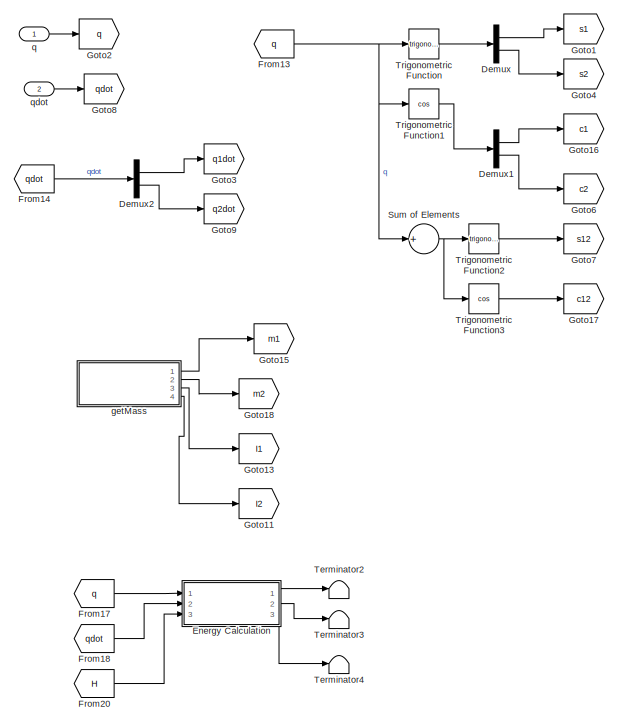
[diagram: System/System Parameters - part 1/3, middle left region]
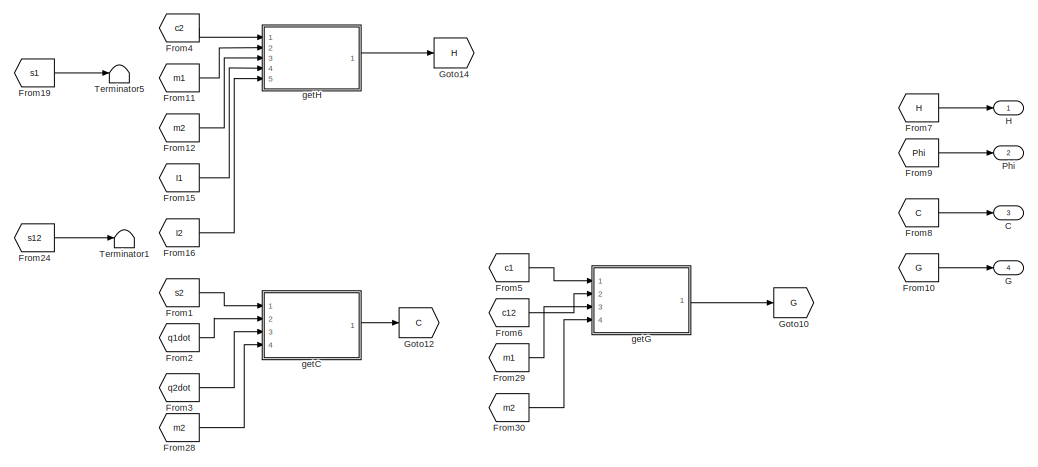
[diagram: System/System Parameters - part 2/3, top center region]
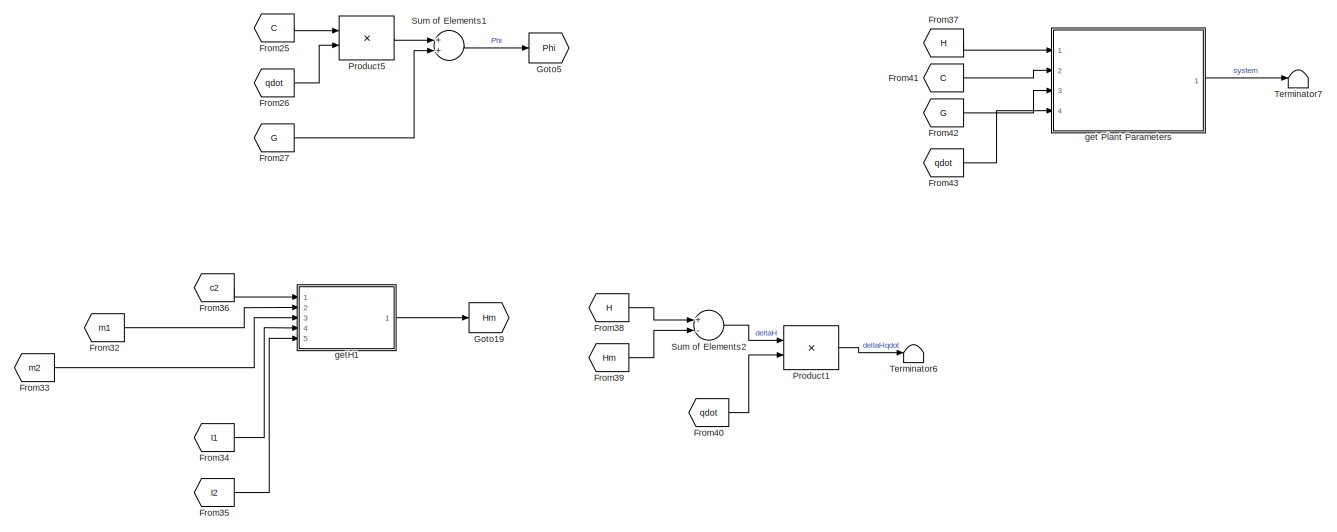
[diagram: System/System Parameters - part 3/3, bottom center region]
BLOCK [SubSystem] System/System Parameters
  Ports = [2, 4]
  RequestExecContextInheritance = off
BLOCK [Outport] System/System Parameters/C
  IconDisplay = Port number
  Port = 3
BLOCK [Demux] System/System Parameters/Demux
  DisplayOption = bar
  Outputs = 2
  Ports = [1, 2]
BLOCK [Demux] System/System Parameters/Demux1
  DisplayOption = bar
  Outputs = 2
  Ports = [1, 2]
BLOCK [Demux] System/System Parameters/Demux2
  DisplayOption = bar
  Outputs = 2
  Ports = [1, 2]
BLOCK [SubSystem] System/System Parameters/Energy Calculation
  Ports = [3, 3]
  RequestExecContextInheritance = off
BLOCK [Constant] System/System Parameters/Energy Calculation/Constant
  Value = l1
  VectorParams1D = off
BLOCK [Constant] System/System Parameters/Energy Calculation/Constant1
  Value = l2
  VectorParams1D = off
BLOCK [Demux] System/System Parameters/Energy Calculation/Demux
  DisplayOption = bar
  Outputs = 2
  Ports = [1, 2]
BLOCK [Outport] System/System Parameters/Energy Calculation/E
  IconDisplay = Port number
  Port = 3
BLOCK [From] System/System Parameters/Energy Calculation/From1
  GotoTag = U
BLOCK [From] System/System Parameters/Energy Calculation/From13
  GotoTag = q
BLOCK [From] System/System Parameters/Energy Calculation/From17
  GotoTag = qdot
BLOCK [From] System/System Parameters/Energy Calculation/From18
  GotoTag = qdot
BLOCK [From] System/System Parameters/Energy Calculation/From19
  GotoTag = H
BLOCK [From] System/System Parameters/Energy Calculation/From2
  GotoTag = T
BLOCK [From] System/System Parameters/Energy Calculation/From20
  GotoTag = l1sintht1
BLOCK [From] System/System Parameters/Energy Calculation/From21
  GotoTag = T
BLOCK [From] System/System Parameters/Energy Calculation/From22
  GotoTag = U
BLOCK [From] System/System Parameters/Energy Calculation/From3
  GotoTag = s1
BLOCK [From] System/System Parameters/Energy Calculation/From5
  GotoTag = l1sintht1
BLOCK [From] System/System Parameters/Energy Calculation/From6
  GotoTag = s12
BLOCK [From] System/System Parameters/Energy Calculation/From8
  GotoTag = l2sintht12
BLOCK [Gain] System/System Parameters/Energy Calculation/Gain
  Gain = 1/2
  OutDataTypeStr = Inherit: Inherit via internal rule
  ParamDataTypeStr = Inherit: Inherit via internal rule
  SaturateOnIntegerOverflow = off
BLOCK [Gain] System/System Parameters/Energy Calculation/Gain1
  Gain = 0.5
  OutDataTypeStr = Inherit: Inherit via internal rule
  ParamDataTypeStr = Inherit: Inherit via internal rule
  SaturateOnIntegerOverflow = off
BLOCK [Gain] System/System Parameters/Energy Calculation/Gain5
  Gain = 0.5*m1*g
  OutDataTypeStr = Inherit: Inherit via internal rule
  ParamDataTypeStr = Inherit: Inherit via internal rule
  SaturateOnIntegerOverflow = off
BLOCK [Gain] System/System Parameters/Energy Calculation/Gain6
  Gain = m2*g
  OutDataTypeStr = Inherit: Inherit via internal rule
  ParamDataTypeStr = Inherit: Inherit via internal rule
  SaturateOnIntegerOverflow = off
BLOCK [Goto] System/System Parameters/Energy Calculation/Goto1
  GotoTag = s1
BLOCK [Goto] System/System Parameters/Energy Calculation/Goto15
  GotoTag = T
BLOCK [Goto] System/System Parameters/Energy Calculation/Goto18
  GotoTag = U
BLOCK [Goto] System/System Parameters/Energy Calculation/Goto2
  GotoTag = q
BLOCK [Goto] System/System Parameters/Energy Calculation/Goto4
  GotoTag = qdot
BLOCK [Goto] System/System Parameters/Energy Calculation/Goto5
  GotoTag = l1sintht1
BLOCK [Goto] System/System Parameters/Energy Calculation/Goto6
  GotoTag = s12
BLOCK [Goto] System/System Parameters/Energy Calculation/Goto7
  GotoTag = l2sintht12
BLOCK [Goto] System/System Parameters/Energy Calculation/Goto8
  GotoTag = H
BLOCK [Inport] System/System Parameters/Energy Calculation/H
  IconDisplay = Port number
  Port = 3
BLOCK [Math] System/System Parameters/Energy Calculation/Math Function
  Operator = transpose
  Ports = [1, 1]
BLOCK [Product] System/System Parameters/Energy Calculation/Product1
  InputSameDT = off
  OutDataTypeStr = Inherit: Inherit via internal rule
  Ports = [2, 1]
  SaturateOnIntegerOverflow = off
BLOCK [Product] System/System Parameters/Energy Calculation/Product3
  InputSameDT = off
  OutDataTypeStr = Inherit: Inherit via internal rule
  Ports = [2, 1]
  SaturateOnIntegerOverflow = off
BLOCK [Product] System/System Parameters/Energy Calculation/Product5
  InputSameDT = off
  Inputs = 3
  Multiplication = Matrix(*)
  OutDataTypeStr = Inherit: Inherit via internal rule
  Ports = [3, 1]
  SaturateOnIntegerOverflow = off
BLOCK [Sum] System/System Parameters/Energy Calculation/Sum of Elements
  InputSameDT = off
  Inputs = +
  OutDataTypeStr = Inherit: Inherit via internal rule
  Ports = [1, 1]
  SaturateOnIntegerOverflow = off
BLOCK [Sum] System/System Parameters/Energy Calculation/Sum1
  InputSameDT = off
  OutDataTypeStr = Inherit: Inherit via internal rule
  Ports = [2, 1]
  SaturateOnIntegerOverflow = off
BLOCK [Sum] System/System Parameters/Energy Calculation/Sum2
  InputSameDT = off
  OutDataTypeStr = Inherit: Inherit via internal rule
  Ports = [2, 1]
  SaturateOnIntegerOverflow = off
BLOCK [Sum] System/System Parameters/Energy Calculation/Sum3
  InputSameDT = off
  OutDataTypeStr = Inherit: Inherit via internal rule
  Ports = [2, 1]
  SaturateOnIntegerOverflow = off
BLOCK [Outport] System/System Parameters/Energy Calculation/T
  IconDisplay = Port number
  Port = 2
BLOCK [Terminator] System/System Parameters/Energy Calculation/Terminator4
BLOCK [Trigonometry] System/System Parameters/Energy Calculation/Trigonometric Function
  Ports = [1, 1]
BLOCK [Trigonometry] System/System Parameters/Energy Calculation/Trigonometric Function2
  Ports = [1, 1]
BLOCK [Outport] System/System Parameters/Energy Calculation/U
  IconDisplay = Port number
BLOCK [Inport] System/System Parameters/Energy Calculation/q
  IconDisplay = Port number
BLOCK [Inport] System/System Parameters/Energy Calculation/qdot
  IconDisplay = Port number
  Port = 2
BLOCK [From] System/System Parameters/From1
  GotoTag = s2
BLOCK [From] System/System Parameters/From10
  GotoTag = G
BLOCK [From] System/System Parameters/From11
  GotoTag = m1
BLOCK [From] System/System Parameters/From12
  GotoTag = m2
BLOCK [From] System/System Parameters/From13
  GotoTag = q
BLOCK [From] System/System Parameters/From14
  GotoTag = qdot
BLOCK [From] System/System Parameters/From15
  GotoTag = I1
BLOCK [From] System/System Parameters/From16
  GotoTag = I2
BLOCK [From] System/System Parameters/From17
  GotoTag = q
BLOCK [From] System/System Parameters/From18
  GotoTag = qdot
BLOCK [From] System/System Parameters/From19
  GotoTag = s1
BLOCK [From] System/System Parameters/From2
  GotoTag = q1dot
BLOCK [From] System/System Parameters/From20
  GotoTag = H
BLOCK [From] System/System Parameters/From24
  GotoTag = s12
BLOCK [From] System/System Parameters/From25
  GotoTag = C
BLOCK [From] System/System Parameters/From26
  GotoTag = qdot
BLOCK [From] System/System Parameters/From27
  GotoTag = G
BLOCK [From] System/System Parameters/From28
  GotoTag = m2
BLOCK [From] System/System Parameters/From29
  GotoTag = m1
BLOCK [From] System/System Parameters/From3
  GotoTag = q2dot
BLOCK [From] System/System Parameters/From30
  GotoTag = m2
BLOCK [From] System/System Parameters/From32
  GotoTag = m1
BLOCK [From] System/System Parameters/From33
  GotoTag = m2
BLOCK [From] System/System Parameters/From34
  GotoTag = I1
BLOCK [From] System/System Parameters/From35
  GotoTag = I2
BLOCK [From] System/System Parameters/From36
  GotoTag = c2
BLOCK [From] System/System Parameters/From37
  GotoTag = H
BLOCK [From] System/System Parameters/From38
  GotoTag = H
BLOCK [From] System/System Parameters/From39
  GotoTag = Hm
BLOCK [From] System/System Parameters/From4
  GotoTag = c2
BLOCK [From] System/System Parameters/From40
  GotoTag = qdot
BLOCK [From] System/System Parameters/From41
  GotoTag = C
BLOCK [From] System/System Parameters/From42
  GotoTag = G
BLOCK [From] System/System Parameters/From43
  GotoTag = qdot
BLOCK [From] System/System Parameters/From5
  GotoTag = c1
BLOCK [From] System/System Parameters/From6
  GotoTag = c12
BLOCK [From] System/System Parameters/From7
  GotoTag = H
BLOCK [From] System/System Parameters/From8
  GotoTag = C
BLOCK [From] System/System Parameters/From9
  GotoTag = Phi
BLOCK [Outport] System/System Parameters/G
  IconDisplay = Port number
  Port = 4
BLOCK [Goto] System/System Parameters/Goto1
  GotoTag = s1
BLOCK [Goto] System/System Parameters/Goto10
  GotoTag = G
BLOCK [Goto] System/System Parameters/Goto11
  GotoTag = I2
BLOCK [Goto] System/System Parameters/Goto12
  GotoTag = C
BLOCK [Goto] System/System Parameters/Goto13
  GotoTag = I1
BLOCK [Goto] System/System Parameters/Goto14
  GotoTag = H
BLOCK [Goto] System/System Parameters/Goto15
  GotoTag = m1
BLOCK [Goto] System/System Parameters/Goto16
  GotoTag = c1
BLOCK [Goto] System/System Parameters/Goto17
  GotoTag = c12
BLOCK [Goto] System/System Parameters/Goto18
  GotoTag = m2
BLOCK [Goto] System/System Parameters/Goto19
  GotoTag = Hm
BLOCK [Goto] System/System Parameters/Goto2
  GotoTag = q
BLOCK [Goto] System/System Parameters/Goto3
  GotoTag = q1dot
BLOCK [Goto] System/System Parameters/Goto4
  GotoTag = s2
BLOCK [Goto] System/System Parameters/Goto5
  GotoTag = Phi
BLOCK [Goto] System/System Parameters/Goto6
  GotoTag = c2
BLOCK [Goto] System/System Parameters/Goto7
  GotoTag = s12
BLOCK [Goto] System/System Parameters/Goto8
  GotoTag = qdot
BLOCK [Goto] System/System Parameters/Goto9
  GotoTag = q2dot
BLOCK [Outport] System/System Parameters/H
  IconDisplay = Port number
BLOCK [Outport] System/System Parameters/Phi
  IconDisplay = Port number
  Port = 2
BLOCK [Product] System/System Parameters/Product1
  InputSameDT = off
  Multiplication = Matrix(*)
  OutDataTypeStr = Inherit: Inherit via internal rule
  Ports = [2, 1]
  SaturateOnIntegerOverflow = off
BLOCK [Product] System/System Parameters/Product5
  InputSameDT = off
  Multiplication = Matrix(*)
  OutDataTypeStr = Inherit: Inherit via internal rule
  Ports = [2, 1]
  SaturateOnIntegerOverflow = off
BLOCK [Sum] System/System Parameters/Sum of Elements
  InputSameDT = off
  Inputs = +
  OutDataTypeStr = Inherit: Inherit via internal rule
  Ports = [1, 1]
  SaturateOnIntegerOverflow = off
BLOCK [Sum] System/System Parameters/Sum of Elements1
  InputSameDT = off
  OutDataTypeStr = Inherit: Inherit via internal rule
  Ports = [2, 1]
  SaturateOnIntegerOverflow = off
BLOCK [Sum] System/System Parameters/Sum of Elements2
  InputSameDT = off
  Inputs = +-
  OutDataTypeStr = Inherit: Inherit via internal rule
  Ports = [2, 1]
  SaturateOnIntegerOverflow = off
BLOCK [Terminator] System/System Parameters/Terminator1
BLOCK [Terminator] System/System Parameters/Terminator2
BLOCK [Terminator] System/System Parameters/Terminator3
BLOCK [Terminator] System/System Parameters/Terminator4
BLOCK [Terminator] System/System Parameters/Terminator5
BLOCK [Terminator] System/System Parameters/Terminator6
BLOCK [Terminator] System/System Parameters/Terminator7
BLOCK [Trigonometry] System/System Parameters/Trigonometric Function
  Ports = [1, 1]
BLOCK [Trigonometry] System/System Parameters/Trigonometric Function1
  Operator = cos
  Ports = [1, 1]
BLOCK [Trigonometry] System/System Parameters/Trigonometric Function2
  Ports = [1, 1]
BLOCK [Trigonometry] System/System Parameters/Trigonometric Function3
  Operator = cos
  Ports = [1, 1]
BLOCK [SubSystem] System/System Parameters/get Plant Parameters
  Ports = [4, 1]
  RequestExecContextInheritance = off
BLOCK [Selector] System/System Parameters/get Plant Parameters/1
  IndexOptions = Index vector (dialog),Index vector (dialog)
  Indices = 1,1
  InputPortWidth = 3
  NumberOfDimensions = 2
  OutputSizes = 1,1
  Ports = [1, 1]
BLOCK [Selector] System/System Parameters/get Plant Parameters/11
  IndexOptions = Index vector (dialog),Index vector (dialog)
  Indices = 1,1
  InputPortWidth = 3
  NumberOfDimensions = 2
  OutputSizes = 1,1
  Ports = [1, 1]
BLOCK [Selector] System/System Parameters/get Plant Parameters/12
  IndexOptions = Index vector (dialog),Index vector (dialog)
  Indices = 1,2
  InputPortWidth = 3
  NumberOfDimensions = 2
  OutputSizes = 1,1
  Ports = [1, 1]
BLOCK [Selector] System/System Parameters/get Plant Parameters/2
  IndexOptions = Index vector (dialog),Index vector (dialog)
  Indices = 1,2
  InputPortWidth = 3
  NumberOfDimensions = 2
  OutputSizes = 1,1
  Ports = [1, 1]
BLOCK [Selector] System/System Parameters/get Plant Parameters/21
  IndexOptions = Index vector (dialog),Index vector (dialog)
  Indices = 2,1
  InputPortWidth = 3
  NumberOfDimensions = 2
  OutputSizes = 1,1
  Ports = [1, 1]
BLOCK [Selector] System/System Parameters/get Plant Parameters/22
  IndexOptions = Index vector (dialog),Index vector (dialog)
  Indices = 2,2
  InputPortWidth = 3
  NumberOfDimensions = 2
  OutputSizes = 1,1
  Ports = [1, 1]
BLOCK [Selector] System/System Parameters/get Plant Parameters/3
  IndexOptions = Index vector (dialog),Index vector (dialog)
  Indices = 2,1
  InputPortWidth = 3
  NumberOfDimensions = 2
  OutputSizes = 1,1
  Ports = [1, 1]
BLOCK [Selector] System/System Parameters/get Plant Parameters/4
  IndexOptions = Index vector (dialog),Index vector (dialog)
  Indices = 2,2
  InputPortWidth = 3
  NumberOfDimensions = 2
  OutputSizes = 1,1
  Ports = [1, 1]
BLOCK [Selector] System/System Parameters/get Plant Parameters/5
  IndexOptions = Index vector (dialog),Index vector (dialog)
  Indices = 1,1
  InputPortWidth = 3
  NumberOfDimensions = 2
  OutputSizes = 1,1
  Ports = [1, 1]
BLOCK [Selector] System/System Parameters/get Plant Parameters/6
  IndexOptions = Index vector (dialog),Index vector (dialog)
  Indices = 2,1
  InputPortWidth = 3
  NumberOfDimensions = 2
  OutputSizes = 1,1
  Ports = [1, 1]
BLOCK [Selector] System/System Parameters/get Plant Parameters/7
  IndexOptions = Index vector (dialog),Index vector (dialog)
  Indices = 1,1
  InputPortWidth = 3
  NumberOfDimensions = 2
  OutputSizes = 1,1
  Ports = [1, 1]
BLOCK [Selector] System/System Parameters/get Plant Parameters/8
  IndexOptions = Index vector (dialog),Index vector (dialog)
  Indices = 2,1
  InputPortWidth = 3
  NumberOfDimensions = 2
  OutputSizes = 1,1
  Ports = [1, 1]
BLOCK [BusCreator] System/System Parameters/get Plant Parameters/Bus Creator
  DisplayOption = bar
  Inputs = 15
  Ports = [15, 1]
BLOCK [Inport] System/System Parameters/get Plant Parameters/C
  IconDisplay = Port number
  Port = 2
BLOCK [From] System/System Parameters/get Plant Parameters/From21
  GotoTag = H
BLOCK [From] System/System Parameters/get Plant Parameters/From22
  GotoTag = C
BLOCK [From] System/System Parameters/get Plant Parameters/From23
  GotoTag = G
BLOCK [From] System/System Parameters/get Plant Parameters/From25
  GotoTag = C
BLOCK [From] System/System Parameters/get Plant Parameters/From26
  GotoTag = qdot
BLOCK [From] System/System Parameters/get Plant Parameters/From27
  GotoTag = G
BLOCK [From] System/System Parameters/get Plant Parameters/From28
  GotoTag = H
BLOCK [From] System/System Parameters/get Plant Parameters/From29
  GotoTag = C
BLOCK [From] System/System Parameters/get Plant Parameters/From30
  GotoTag = G
BLOCK [Inport] System/System Parameters/get Plant Parameters/G
  IconDisplay = Port number
  Port = 3
BLOCK [Goto] System/System Parameters/get Plant Parameters/Goto1
  GotoTag = C
BLOCK [Goto] System/System Parameters/get Plant Parameters/Goto15
  GotoTag = H
BLOCK [Goto] System/System Parameters/get Plant Parameters/Goto2
  GotoTag = G
BLOCK [Goto] System/System Parameters/get Plant Parameters/Goto3
  GotoTag = qdot
BLOCK [Inport] System/System Parameters/get Plant Parameters/H
  IconDisplay = Port number
BLOCK [Product] System/System Parameters/get Plant Parameters/Product5
  InputSameDT = off
  Multiplication = Matrix(*)
  OutDataTypeStr = Inherit: Inherit via internal rule
  Ports = [2, 1]
  SaturateOnIntegerOverflow = off
BLOCK [Sum] System/System Parameters/get Plant Parameters/Sum of Elements1
  InputSameDT = off
  OutDataTypeStr = Inherit: Inherit via internal rule
  Ports = [2, 1]
  SaturateOnIntegerOverflow = off
BLOCK [Outport] System/System Parameters/get Plant Parameters/busData
  IconDisplay = Port number
BLOCK [Inport] System/System Parameters/get Plant Parameters/qdot
  IconDisplay = Port number
  Port = 4
BLOCK [SubSystem] System/System Parameters/getC
  Ports = [4, 1]
  RequestExecContextInheritance = off
BLOCK [Sum] System/System Parameters/getC/Add
  InputSameDT = off
  OutDataTypeStr = Inherit: Inherit via internal rule
  Ports = [2, 1]
  SaturateOnIntegerOverflow = off
BLOCK [Outport] System/System Parameters/getC/C
  IconDisplay = Port number
BLOCK [Constant] System/System Parameters/getC/Constant2
  Value = c2
  VectorParams1D = off
BLOCK [Constant] System/System Parameters/getC/Constant3
  Value = c1
  VectorParams1D = off
BLOCK [From] System/System Parameters/getC/From
  GotoTag = C11
BLOCK [From] System/System Parameters/getC/From1
  GotoTag = C
BLOCK [From] System/System Parameters/getC/From2
  GotoTag = s2
BLOCK [From] System/System Parameters/getC/From22
  GotoTag = h
BLOCK [From] System/System Parameters/getC/From23
  GotoTag = q1dot
BLOCK [From] System/System Parameters/getC/From24
  GotoTag = h
BLOCK [From] System/System Parameters/getC/From25
  GotoTag = q2dot
BLOCK [From] System/System Parameters/getC/From26
  GotoTag = h
BLOCK [From] System/System Parameters/getC/From28
  GotoTag = q1dot
BLOCK [From] System/System Parameters/getC/From29
  GotoTag = q2dot
BLOCK [From] System/System Parameters/getC/From3
  GotoTag = m2
BLOCK [From] System/System Parameters/getC/From4
  GotoTag = C12
BLOCK [From] System/System Parameters/getC/From5
  GotoTag = C21
BLOCK [From] System/System Parameters/getC/From6
  GotoTag = C22
BLOCK [Gain] System/System Parameters/getC/Gain4
  Gain = l1*lc2
  OutDataTypeStr = Inherit: Inherit via internal rule
  ParamDataTypeStr = Inherit: Inherit via internal rule
  SaturateOnIntegerOverflow = off
BLOCK [Gain] System/System Parameters/getC/Gain6
  Gain = -1
  OutDataTypeStr = Inherit: Inherit via internal rule
  ParamDataTypeStr = Inherit: Inherit via internal rule
  SaturateOnIntegerOverflow = off
BLOCK [Gain] System/System Parameters/getC/Gain7
  Gain = -1
  OutDataTypeStr = Inherit: Inherit via internal rule
  ParamDataTypeStr = Inherit: Inherit via internal rule
  SaturateOnIntegerOverflow = off
BLOCK [Goto] System/System Parameters/getC/Goto1
  GotoTag = C
BLOCK [Goto] System/System Parameters/getC/Goto10
  GotoTag = h
BLOCK [Goto] System/System Parameters/getC/Goto17
  GotoTag = C21
BLOCK [Goto] System/System Parameters/getC/Goto18
  GotoTag = C11
BLOCK [Goto] System/System Parameters/getC/Goto19
  GotoTag = C12
BLOCK [Goto] System/System Parameters/getC/Goto2
  GotoTag = C22
BLOCK [Goto] System/System Parameters/getC/Goto3
  GotoTag = m2
BLOCK [Goto] System/System Parameters/getC/Goto5
  GotoTag = s2
BLOCK [Goto] System/System Parameters/getC/Goto6
  GotoTag = q1dot
BLOCK [Goto] System/System Parameters/getC/Goto7
  GotoTag = q2dot
BLOCK [Concatenate] System/System Parameters/getC/Matrix Concatenate
  ConcatenateDimension = 2
  Mode = Multidimensional array
  Ports = [2, 1]
BLOCK [Concatenate] System/System Parameters/getC/Matrix Concatenate1
  ConcatenateDimension = 2
  Mode = Multidimensional array
  Ports = [2, 1]
BLOCK [Concatenate] System/System Parameters/getC/Matrix Concatenate2
  Mode = Multidimensional array
  Ports = [2, 1]
BLOCK [Product] System/System Parameters/getC/Product
  InputSameDT = off
  OutDataTypeStr = Inherit: Inherit via internal rule
  Ports = [2, 1]
  SaturateOnIntegerOverflow = off
BLOCK [Product] System/System Parameters/getC/Product10
  InputSameDT = off
  OutDataTypeStr = Inherit: Inherit via internal rule
  Ports = [2, 1]
  SaturateOnIntegerOverflow = off
BLOCK [Product] System/System Parameters/getC/Product8
  InputSameDT = off
  OutDataTypeStr = Inherit: Inherit via internal rule
  Ports = [2, 1]
  SaturateOnIntegerOverflow = off
BLOCK [Product] System/System Parameters/getC/Product9
  InputSameDT = off
  OutDataTypeStr = Inherit: Inherit via internal rule
  Ports = [2, 1]
  SaturateOnIntegerOverflow = off
BLOCK [Sum] System/System Parameters/getC/Sum4
  InputSameDT = off
  OutDataTypeStr = Inherit: Inherit via internal rule
  Ports = [2, 1]
  SaturateOnIntegerOverflow = off
BLOCK [Inport] System/System Parameters/getC/m2
  IconDisplay = Port number
  Port = 4
BLOCK [Inport] System/System Parameters/getC/q1dot
  IconDisplay = Port number
  Port = 2
BLOCK [Inport] System/System Parameters/getC/q2dot
  IconDisplay = Port number
  Port = 3
BLOCK [Inport] System/System Parameters/getC/s2
  IconDisplay = Port number
BLOCK [SubSystem] System/System Parameters/getG
  Ports = [4, 1]
  RequestExecContextInheritance = off
BLOCK [Sum] System/System Parameters/getG/Add1
  InputSameDT = off
  OutDataTypeStr = Inherit: Inherit via internal rule
  Ports = [2, 1]
  SaturateOnIntegerOverflow = off
BLOCK [Sum] System/System Parameters/getG/Add2
  InputSameDT = off
  OutDataTypeStr = Inherit: Inherit via internal rule
  Ports = [2, 1]
  SaturateOnIntegerOverflow = off
BLOCK [From] System/System Parameters/getG/From
  GotoTag = G11
BLOCK [From] System/System Parameters/getG/From1
  GotoTag = G21
BLOCK [From] System/System Parameters/getG/From10
  GotoTag = m2
BLOCK [From] System/System Parameters/getG/From11
  GotoTag = c12
BLOCK [From] System/System Parameters/getG/From12
  GotoTag = m2
BLOCK [From] System/System Parameters/getG/From13
  GotoTag = c12
BLOCK [From] System/System Parameters/getG/From7
  GotoTag = m1
BLOCK [From] System/System Parameters/getG/From8
  GotoTag = m2
BLOCK [From] System/System Parameters/getG/From9
  GotoTag = c1
BLOCK [Outport] System/System Parameters/getG/G
  IconDisplay = Port number
BLOCK [Gain] System/System Parameters/getG/Gain10
  Gain = lc2
  OutDataTypeStr = Inherit: Inherit via internal rule
  ParamDataTypeStr = Inherit: Inherit via internal rule
  SaturateOnIntegerOverflow = off
BLOCK [Gain] System/System Parameters/getG/Gain11
  Gain = g
  OutDataTypeStr = Inherit: Inherit via internal rule
  ParamDataTypeStr = Inherit: Inherit via internal rule
  SaturateOnIntegerOverflow = off
BLOCK [Gain] System/System Parameters/getG/Gain5
  Gain = lc1
  OutDataTypeStr = Inherit: Inherit via internal rule
  ParamDataTypeStr = Inherit: Inherit via internal rule
  SaturateOnIntegerOverflow = off
BLOCK [Gain] System/System Parameters/getG/Gain6
  Gain = l1
  OutDataTypeStr = Inherit: Inherit via internal rule
  ParamDataTypeStr = Inherit: Inherit via internal rule
  SaturateOnIntegerOverflow = off
BLOCK [Gain] System/System Parameters/getG/Gain7
  Gain = g
  OutDataTypeStr = Inherit: Inherit via internal rule
  ParamDataTypeStr = Inherit: Inherit via internal rule
  SaturateOnIntegerOverflow = off
BLOCK [Gain] System/System Parameters/getG/Gain8
  Gain = lc2
  OutDataTypeStr = Inherit: Inherit via internal rule
  ParamDataTypeStr = Inherit: Inherit via internal rule
  SaturateOnIntegerOverflow = off
BLOCK [Gain] System/System Parameters/getG/Gain9
  Gain = g
  OutDataTypeStr = Inherit: Inherit via internal rule
  ParamDataTypeStr = Inherit: Inherit via internal rule
  SaturateOnIntegerOverflow = off
BLOCK [Goto] System/System Parameters/getG/Goto1
  GotoTag = G11
BLOCK [Goto] System/System Parameters/getG/Goto2
  GotoTag = m2
BLOCK [Goto] System/System Parameters/getG/Goto5
  GotoTag = c1
BLOCK [Goto] System/System Parameters/getG/Goto6
  GotoTag = c12
BLOCK [Goto] System/System Parameters/getG/Goto7
  GotoTag = m1
BLOCK [Goto] System/System Parameters/getG/Goto9
  GotoTag = G21
BLOCK [Concatenate] System/System Parameters/getG/Matrix Concatenate2
  Mode = Multidimensional array
  Ports = [2, 1]
BLOCK [Product] System/System Parameters/getG/Product1
  InputSameDT = off
  OutDataTypeStr = Inherit: Inherit via internal rule
  Ports = [2, 1]
  SaturateOnIntegerOverflow = off
BLOCK [Product] System/System Parameters/getG/Product2
  InputSameDT = off
  OutDataTypeStr = Inherit: Inherit via internal rule
  Ports = [2, 1]
  SaturateOnIntegerOverflow = off
BLOCK [Product] System/System Parameters/getG/Product3
  InputSameDT = off
  OutDataTypeStr = Inherit: Inherit via internal rule
  Ports = [2, 1]
  SaturateOnIntegerOverflow = off
BLOCK [Inport] System/System Parameters/getG/c1
  IconDisplay = Port number
BLOCK [Inport] System/System Parameters/getG/c12
  IconDisplay = Port number
  Port = 2
BLOCK [Inport] System/System Parameters/getG/m1
  IconDisplay = Port number
  Port = 3
BLOCK [Inport] System/System Parameters/getG/m2
  IconDisplay = Port number
  Port = 4
BLOCK [SubSystem] System/System Parameters/getH
  Ports = [5, 1]
  RequestExecContextInheritance = off
BLOCK [From] System/System Parameters/getH/From
  GotoTag = H11
BLOCK [From] System/System Parameters/getH/From1
  GotoTag = H12
BLOCK [From] System/System Parameters/getH/From10
  GotoTag = m2
BLOCK [From] System/System Parameters/getH/From11
  GotoTag = a
BLOCK [From] System/System Parameters/getH/From12
  GotoTag = I2
BLOCK [From] System/System Parameters/getH/From13
  GotoTag = m2
BLOCK [From] System/System Parameters/getH/From14
  GotoTag = a
BLOCK [From] System/System Parameters/getH/From15
  GotoTag = m2
BLOCK [From] System/System Parameters/getH/From2
  GotoTag = H21
BLOCK [From] System/System Parameters/getH/From3
  GotoTag = H22
BLOCK [From] System/System Parameters/getH/From4
  GotoTag = c2
BLOCK [From] System/System Parameters/getH/From5
  GotoTag = I2
BLOCK [From] System/System Parameters/getH/From6
  GotoTag = m2
BLOCK [From] System/System Parameters/getH/From7
  GotoTag = I1
BLOCK [From] System/System Parameters/getH/From8
  GotoTag = I2
BLOCK [From] System/System Parameters/getH/From9
  GotoTag = m1
BLOCK [Gain] System/System Parameters/getH/Gain
  Gain = 2
  OutDataTypeStr = Inherit: Inherit via internal rule
  ParamDataTypeStr = Inherit: Inherit via internal rule
  SaturateOnIntegerOverflow = off
BLOCK [Gain] System/System Parameters/getH/Gain1
  Gain = lc2^2
  OutDataTypeStr = Inherit: Inherit via internal rule
  ParamDataTypeStr = Inherit: Inherit via internal rule
  SaturateOnIntegerOverflow = off
BLOCK [Gain] System/System Parameters/getH/Gain4
  Gain = l1*lc2
  OutDataTypeStr = Inherit: Inherit via internal rule
  ParamDataTypeStr = Inherit: Inherit via internal rule
  SaturateOnIntegerOverflow = off
BLOCK [Gain] System/System Parameters/getH/Gain5
  Gain = lc1^2
  OutDataTypeStr = Inherit: Inherit via internal rule
  ParamDataTypeStr = Inherit: Inherit via internal rule
  SaturateOnIntegerOverflow = off
BLOCK [Gain] System/System Parameters/getH/Gain6
  Gain = l1^2+lc2^2
  OutDataTypeStr = Inherit: Inherit via internal rule
  ParamDataTypeStr = Inherit: Inherit via internal rule
  SaturateOnIntegerOverflow = off
BLOCK [Gain] System/System Parameters/getH/Gain7
  Gain = lc2^2
  OutDataTypeStr = Inherit: Inherit via internal rule
  ParamDataTypeStr = Inherit: Inherit via internal rule
  SaturateOnIntegerOverflow = off
BLOCK [Goto] System/System Parameters/getH/Goto1
  GotoTag = H12
BLOCK [Goto] System/System Parameters/getH/Goto10
  GotoTag = a
BLOCK [Goto] System/System Parameters/getH/Goto11
  GotoTag = H22
BLOCK [Goto] System/System Parameters/getH/Goto13
  GotoTag = I1
BLOCK [Goto] System/System Parameters/getH/Goto14
  GotoTag = I2
BLOCK [Goto] System/System Parameters/getH/Goto2
  GotoTag = H11
BLOCK [Goto] System/System Parameters/getH/Goto3
  GotoTag = H21
BLOCK [Goto] System/System Parameters/getH/Goto5
  GotoTag = c2
BLOCK [Goto] System/System Parameters/getH/Goto7
  GotoTag = m1
BLOCK [Goto] System/System Parameters/getH/Goto9
  GotoTag = m2
BLOCK [Outport] System/System Parameters/getH/H
  IconDisplay = Port number
BLOCK [Inport] System/System Parameters/getH/I1
  IconDisplay = Port number
  Port = 4
BLOCK [Inport] System/System Parameters/getH/I2
  IconDisplay = Port number
  Port = 5
BLOCK [Concatenate] System/System Parameters/getH/Matrix Concatenate
  ConcatenateDimension = 2
  Mode = Multidimensional array
  Ports = [2, 1]
BLOCK [Concatenate] System/System Parameters/getH/Matrix Concatenate1
  ConcatenateDimension = 2
  Mode = Multidimensional array
  Ports = [2, 1]
BLOCK [Concatenate] System/System Parameters/getH/Matrix Concatenate2
  Mode = Multidimensional array
  Ports = [2, 1]
BLOCK [Product] System/System Parameters/getH/Product
  InputSameDT = off
  OutDataTypeStr = Inherit: Inherit via internal rule
  Ports = [2, 1]
  SaturateOnIntegerOverflow = off
BLOCK [Sum] System/System Parameters/getH/Sum
  InputSameDT = off
  Inputs = +++++
  OutDataTypeStr = Inherit: Inherit via internal rule
  Ports = [5, 1]
  SaturateOnIntegerOverflow = off
BLOCK [Sum] System/System Parameters/getH/Sum1
  InputSameDT = off
  Inputs = +++
  OutDataTypeStr = Inherit: Inherit via internal rule
  Ports = [3, 1]
  SaturateOnIntegerOverflow = off
BLOCK [Sum] System/System Parameters/getH/Sum2
  InputSameDT = off
  OutDataTypeStr = Inherit: Inherit via internal rule
  Ports = [2, 1]
  SaturateOnIntegerOverflow = off
BLOCK [Inport] System/System Parameters/getH/c2
  IconDisplay = Port number
BLOCK [Inport] System/System Parameters/getH/m1
  IconDisplay = Port number
  Port = 2
BLOCK [Inport] System/System Parameters/getH/m2
  IconDisplay = Port number
  Port = 3
BLOCK [SubSystem] System/System Parameters/getH1
  Ports = [5, 1]
  RequestExecContextInheritance = off
BLOCK [From] System/System Parameters/getH1/From
  GotoTag = H11
BLOCK [From] System/System Parameters/getH1/From1
  GotoTag = H12
BLOCK [From] System/System Parameters/getH1/From10
  GotoTag = m2
BLOCK [From] System/System Parameters/getH1/From11
  GotoTag = a
BLOCK [From] System/System Parameters/getH1/From12
  GotoTag = I2
BLOCK [From] System/System Parameters/getH1/From13
  GotoTag = m2
BLOCK [From] System/System Parameters/getH1/From14
  GotoTag = a
BLOCK [From] System/System Parameters/getH1/From15
  GotoTag = m2
BLOCK [From] System/System Parameters/getH1/From2
  GotoTag = H21
BLOCK [From] System/System Parameters/getH1/From3
  GotoTag = H22
BLOCK [From] System/System Parameters/getH1/From4
  GotoTag = c2
BLOCK [From] System/System Parameters/getH1/From5
  GotoTag = I2
BLOCK [From] System/System Parameters/getH1/From6
  GotoTag = m2
BLOCK [From] System/System Parameters/getH1/From7
  GotoTag = I1
BLOCK [From] System/System Parameters/getH1/From8
  GotoTag = I2
BLOCK [From] System/System Parameters/getH1/From9
  GotoTag = m1
BLOCK [Gain] System/System Parameters/getH1/Gain
  Gain = 2
  OutDataTypeStr = Inherit: Inherit via internal rule
  ParamDataTypeStr = Inherit: Inherit via internal rule
  SaturateOnIntegerOverflow = off
BLOCK [Gain] System/System Parameters/getH1/Gain1
  Gain = lc2^2
  OutDataTypeStr = Inherit: Inherit via internal rule
  ParamDataTypeStr = Inherit: Inherit via internal rule
  SaturateOnIntegerOverflow = off
BLOCK [Gain] System/System Parameters/getH1/Gain4
  Gain = l1*lc2
  OutDataTypeStr = Inherit: Inherit via internal rule
  ParamDataTypeStr = Inherit: Inherit via internal rule
  SaturateOnIntegerOverflow = off
BLOCK [Gain] System/System Parameters/getH1/Gain5
  Gain = lc1^2
  OutDataTypeStr = Inherit: Inherit via internal rule
  ParamDataTypeStr = Inherit: Inherit via internal rule
  SaturateOnIntegerOverflow = off
BLOCK [Gain] System/System Parameters/getH1/Gain6
  Gain = l1^2+lc2^2
  OutDataTypeStr = Inherit: Inherit via internal rule
  ParamDataTypeStr = Inherit: Inherit via internal rule
  SaturateOnIntegerOverflow = off
BLOCK [Gain] System/System Parameters/getH1/Gain7
  Gain = lc2^2
  OutDataTypeStr = Inherit: Inherit via internal rule
  ParamDataTypeStr = Inherit: Inherit via internal rule
  SaturateOnIntegerOverflow = off
BLOCK [Goto] System/System Parameters/getH1/Goto1
  GotoTag = H12
BLOCK [Goto] System/System Parameters/getH1/Goto10
  GotoTag = a
BLOCK [Goto] System/System Parameters/getH1/Goto11
  GotoTag = H22
BLOCK [Goto] System/System Parameters/getH1/Goto13
  GotoTag = I1
BLOCK [Goto] System/System Parameters/getH1/Goto14
  GotoTag = I2
BLOCK [Goto] System/System Parameters/getH1/Goto2
  GotoTag = H11
BLOCK [Goto] System/System Parameters/getH1/Goto3
  GotoTag = H21
BLOCK [Goto] System/System Parameters/getH1/Goto5
  GotoTag = c2
BLOCK [Goto] System/System Parameters/getH1/Goto7
  GotoTag = m1
BLOCK [Goto] System/System Parameters/getH1/Goto9
  GotoTag = m2
BLOCK [Outport] System/System Parameters/getH1/H
  IconDisplay = Port number
BLOCK [Inport] System/System Parameters/getH1/I1
  IconDisplay = Port number
  Port = 4
BLOCK [Inport] System/System Parameters/getH1/I2
  IconDisplay = Port number
  Port = 5
BLOCK [Concatenate] System/System Parameters/getH1/Matrix Concatenate
  ConcatenateDimension = 2
  Mode = Multidimensional array
  Ports = [2, 1]
BLOCK [Concatenate] System/System Parameters/getH1/Matrix Concatenate1
  ConcatenateDimension = 2
  Mode = Multidimensional array
  Ports = [2, 1]
BLOCK [Concatenate] System/System Parameters/getH1/Matrix Concatenate2
  Mode = Multidimensional array
  Ports = [2, 1]
BLOCK [Product] System/System Parameters/getH1/Product
  InputSameDT = off
  OutDataTypeStr = Inherit: Inherit via internal rule
  Ports = [2, 1]
  SaturateOnIntegerOverflow = off
BLOCK [Sum] System/System Parameters/getH1/Sum
  InputSameDT = off
  Inputs = +++++
  OutDataTypeStr = Inherit: Inherit via internal rule
  Ports = [5, 1]
  SaturateOnIntegerOverflow = off
BLOCK [Sum] System/System Parameters/getH1/Sum1
  InputSameDT = off
  Inputs = +++
  OutDataTypeStr = Inherit: Inherit via internal rule
  Ports = [3, 1]
  SaturateOnIntegerOverflow = off
BLOCK [Sum] System/System Parameters/getH1/Sum2
  InputSameDT = off
  OutDataTypeStr = Inherit: Inherit via internal rule
  Ports = [2, 1]
  SaturateOnIntegerOverflow = off
BLOCK [Inport] System/System Parameters/getH1/c2
  IconDisplay = Port number
BLOCK [Inport] System/System Parameters/getH1/m1
  IconDisplay = Port number
  Port = 2
BLOCK [Inport] System/System Parameters/getH1/m2
  IconDisplay = Port number
  Port = 3
BLOCK [SubSystem] System/System Parameters/getMass
  Ports = [0, 4]
  RequestExecContextInheritance = off
BLOCK [Constant] System/System Parameters/getMass/Constant
  Value = m1
BLOCK [Constant] System/System Parameters/getMass/Constant1
  Value = m2
BLOCK [Constant] System/System Parameters/getMass/Constant5
  Value = I1
BLOCK [Constant] System/System Parameters/getMass/Constant6
  Value = I2
BLOCK [From] System/System Parameters/getMass/From11
  GotoTag = m1
BLOCK [From] System/System Parameters/getMass/From12
  GotoTag = m2
BLOCK [From] System/System Parameters/getMass/From15
  GotoTag = I1
BLOCK [From] System/System Parameters/getMass/From16
  GotoTag = I2
BLOCK [Goto] System/System Parameters/getMass/Goto3
  GotoTag = m2
BLOCK [Goto] System/System Parameters/getMass/Goto4
  GotoTag = I2
BLOCK [Goto] System/System Parameters/getMass/Goto5
  GotoTag = I1
BLOCK [Goto] System/System Parameters/getMass/Goto7
  GotoTag = m1
BLOCK [Outport] System/System Parameters/getMass/I1
  IconDisplay = Port number
  Port = 3
BLOCK [Outport] System/System Parameters/getMass/I2
  IconDisplay = Port number
  Port = 4
BLOCK [Outport] System/System Parameters/getMass/m1
  IconDisplay = Port number
BLOCK [Outport] System/System Parameters/getMass/m2
  IconDisplay = Port number
  Port = 2
BLOCK [Inport] System/System Parameters/q
  IconDisplay = Port number
BLOCK [Inport] System/System Parameters/qdot
  IconDisplay = Port number
  Port = 2
BLOCK [Terminator] System/Terminator
BLOCK [Outport] System/q
  IconDisplay = Port number
BLOCK [Outport] System/qdot
  IconDisplay = Port number
  Port = 2
BLOCK [Inport] System/tau
  IconDisplay = Port number
BLOCK [Outport] System/tau_app
  IconDisplay = Port number
  Port = 3
BLOCK [Terminator] Terminator
LINE Bus Creator:1 -> Terminator:1
LINE Command/Add1:1 -> Command/Terminator1:1
LINE Command/From Workspace:1 -> Command/Reshape1:1
LINE Command/From4:1 -> Command/Add1:1
LINE Command/From6:1 -> Command/Add1:2
LINE Command/Memory2:1 -> Command/Goto5:1
NET Command/Reshape1:1 -> Command/Goto1:1, Command/r:1
LINE Command/q:1 -> Command/Memory2:1
LINE Command:1 -> Goto13:1
LINE Controller/Disturbance Estimator/Cp:1 -> Controller/Disturbance Estimator/Goto5:1
LINE Controller/Disturbance Estimator/From10:1 -> Controller/Disturbance Estimator/getxhat:1
LINE Controller/Disturbance Estimator/From11:1 -> Controller/Disturbance Estimator/getx:3
LINE Controller/Disturbance Estimator/From12:1 -> Controller/Disturbance Estimator/getxhat:2
LINE Controller/Disturbance Estimator/From13:1 -> Controller/Disturbance Estimator/getxhat:3
LINE Controller/Disturbance Estimator/From14:1 -> Controller/Disturbance Estimator/getxhat:5
LINE Controller/Disturbance Estimator/From15:1 -> Controller/Disturbance Estimator/getDisturbance:1
LINE Controller/Disturbance Estimator/From16:1 -> Controller/Disturbance Estimator/Memory1:1
LINE Controller/Disturbance Estimator/From17:1 -> Controller/Disturbance Estimator/getDisturbance:2
LINE Controller/Disturbance Estimator/From18:1 -> Controller/Disturbance Estimator/getDisturbance:3
LINE Controller/Disturbance Estimator/From19:1 -> Controller/Disturbance Estimator/Dhat:1
LINE Controller/Disturbance Estimator/From1:1 -> Controller/Disturbance Estimator/getx:1
LINE Controller/Disturbance Estimator/From2:1 -> Controller/Disturbance Estimator/getx:2
LINE Controller/Disturbance Estimator/From3:1 -> Controller/Disturbance Estimator/State Error Calculation:2
LINE Controller/Disturbance Estimator/From4:1 -> Controller/Disturbance Estimator/State Error Calculation:4
LINE Controller/Disturbance Estimator/From5:1 -> Controller/Disturbance Estimator/State Error Calculation:3
LINE Controller/Disturbance Estimator/From6:1 -> Controller/Disturbance Estimator/State Error Calculation:1
LINE Controller/Disturbance Estimator/From7:1 -> Controller/Disturbance Estimator/getxhat:4
LINE Controller/Disturbance Estimator/From8:1 -> Controller/Disturbance Estimator/State Error Calculation:5
LINE Controller/Disturbance Estimator/From9:1 -> Controller/Disturbance Estimator/xhat:1
LINE Controller/Disturbance Estimator/G:1 -> Controller/Disturbance Estimator/Goto7:1
NET Controller/Disturbance Estimator/H:1 -> Controller/Disturbance Estimator/Goto13:1, Controller/Disturbance Estimator/Product3:1
LINE Controller/Disturbance Estimator/Memory1:1 -> Controller/Disturbance Estimator/getxhat:6
LINE Controller/Disturbance Estimator/Product3:1 -> Controller/Disturbance Estimator/Goto4:1
LINE Controller/Disturbance Estimator/State Error Calculation/Add1:1 -> Controller/Disturbance Estimator/State Error Calculation/Reshape1:1
LINE Controller/Disturbance Estimator/State Error Calculation/Add:1 -> Controller/Disturbance Estimator/State Error Calculation/Reshape2:1
LINE Controller/Disturbance Estimator/State Error Calculation/Discrete Derivative1:1 -> Controller/Disturbance Estimator/State Error Calculation/Saturation:1
LINE Controller/Disturbance Estimator/State Error Calculation/From10:1 -> Controller/Disturbance Estimator/State Error Calculation/Terminator3:1
LINE Controller/Disturbance Estimator/State Error Calculation/From1:1 -> Controller/Disturbance Estimator/State Error Calculation/Reshape3:1
LINE Controller/Disturbance Estimator/State Error Calculation/From3:1 -> Controller/Disturbance Estimator/State Error Calculation/Add:2
LINE Controller/Disturbance Estimator/State Error Calculation/From4:1 -> Controller/Disturbance Estimator/State Error Calculation/Memory1:1
LINE Controller/Disturbance Estimator/State Error Calculation/From5:1 -> Controller/Disturbance Estimator/State Error Calculation/Add1:2
LINE Controller/Disturbance Estimator/State Error Calculation/From6:1 -> Controller/Disturbance Estimator/State Error Calculation/Product6:1
LINE Controller/Disturbance Estimator/State Error Calculation/From9:1 -> Controller/Disturbance Estimator/State Error Calculation/es:1
LINE Controller/Disturbance Estimator/State Error Calculation/From:1 -> Controller/Disturbance Estimator/State Error Calculation/Memory4:1
LINE Controller/Disturbance Estimator/State Error Calculation/Hinv:1 -> Controller/Disturbance Estimator/State Error Calculation/Goto13:1
LINE Controller/Disturbance Estimator/State Error Calculation/Memory1:1 -> Controller/Disturbance Estimator/State Error Calculation/Add1:1
LINE Controller/Disturbance Estimator/State Error Calculation/Memory4:1 -> Controller/Disturbance Estimator/State Error Calculation/Add:1
LINE Controller/Disturbance Estimator/State Error Calculation/Product6:1 -> Controller/Disturbance Estimator/State Error Calculation/Terminator1:1
LINE Controller/Disturbance Estimator/State Error Calculation/Reshape1:1 -> Controller/Disturbance Estimator/State Error Calculation/Terminator4:1
NET Controller/Disturbance Estimator/State Error Calculation/Reshape2:1 -> Controller/Disturbance Estimator/State Error Calculation/Discrete Derivative1:1, Controller/Disturbance Estimator/State Error Calculation/Goto7:1
NET Controller/Disturbance Estimator/State Error Calculation/Reshape3:1 -> Controller/Disturbance Estimator/State Error Calculation/[1 2]:1, Controller/Disturbance Estimator/State Error Calculation/[3 4]:1
LINE Controller/Disturbance Estimator/State Error Calculation/Saturation:1 -> Controller/Disturbance Estimator/State Error Calculation/Goto17:1
LINE Controller/Disturbance Estimator/State Error Calculation/[1 2]:1 -> Controller/Disturbance Estimator/State Error Calculation/Terminator2:1
LINE Controller/Disturbance Estimator/State Error Calculation/[3 4]:1 -> Controller/Disturbance Estimator/State Error Calculation/Product6:2
LINE Controller/Disturbance Estimator/State Error Calculation/x:1 -> Controller/Disturbance Estimator/State Error Calculation/Goto2:1
LINE Controller/Disturbance Estimator/State Error Calculation/xdot:1 -> Controller/Disturbance Estimator/State Error Calculation/Goto8:1
LINE Controller/Disturbance Estimator/State Error Calculation/xhat:1 -> Controller/Disturbance Estimator/State Error Calculation/Goto1:1
LINE Controller/Disturbance Estimator/State Error Calculation/xhatdot:1 -> Controller/Disturbance Estimator/State Error Calculation/Goto3:1
LINE Controller/Disturbance Estimator/State Error Calculation:1 -> Controller/Disturbance Estimator/Goto3:1
LINE Controller/Disturbance Estimator/getDisturbance/Chebyshev Basis Functions/Chebyshev Polynomail Value Calculation/Delay Line:1 -> Controller/Disturbance Estimator/getDisturbance/Chebyshev Basis Functions/Chebyshev Polynomail Value Calculation/Frame Conversion:1
LINE Controller/Disturbance Estimator/getDisturbance/Chebyshev Basis Functions/Chebyshev Polynomail Value Calculation/For Iterator:1 -> Controller/Disturbance Estimator/getDisturbance/Chebyshev Basis Functions/Chebyshev Polynomail Value Calculation/Goto1:1
LINE Controller/Disturbance Estimator/getDisturbance/Chebyshev Basis Functions/Chebyshev Polynomail Value Calculation/Frame Conversion:1 -> Controller/Disturbance Estimator/getDisturbance/Chebyshev Basis Functions/Chebyshev Polynomail Value Calculation/Reshape:1
LINE Controller/Disturbance Estimator/getDisturbance/Chebyshev Basis Functions/Chebyshev Polynomail Value Calculation/From1:1 -> Controller/Disturbance Estimator/getDisturbance/Chebyshev Basis Functions/Chebyshev Polynomail Value Calculation/If Action Subsystem1:2
LINE Controller/Disturbance Estimator/getDisturbance/Chebyshev Basis Functions/Chebyshev Polynomail Value Calculation/From2:1 -> Controller/Disturbance Estimator/getDisturbance/Chebyshev Basis Functions/Chebyshev Polynomail Value Calculation/If Action Subsystem:1
LINE Controller/Disturbance Estimator/getDisturbance/Chebyshev Basis Functions/Chebyshev Polynomail Value Calculation/From3:1 -> Controller/Disturbance Estimator/getDisturbance/Chebyshev Basis Functions/Chebyshev Polynomail Value Calculation/If Action Subsystem1:1
LINE Controller/Disturbance Estimator/getDisturbance/Chebyshev Basis Functions/Chebyshev Polynomail Value Calculation/From5:1 -> Controller/Disturbance Estimator/getDisturbance/Chebyshev Basis Functions/Chebyshev Polynomail Value Calculation/Delay Line:1
LINE Controller/Disturbance Estimator/getDisturbance/Chebyshev Basis Functions/Chebyshev Polynomail Value Calculation/From6:1 -> Controller/Disturbance Estimator/getDisturbance/Chebyshev Basis Functions/Chebyshev Polynomail Value Calculation/Memory:1
LINE Controller/Disturbance Estimator/getDisturbance/Chebyshev Basis Functions/Chebyshev Polynomail Value Calculation/From7:1 -> Controller/Disturbance Estimator/getDisturbance/Chebyshev Basis Functions/Chebyshev Polynomail Value Calculation/chebyPol:1
LINE Controller/Disturbance Estimator/getDisturbance/Chebyshev Basis Functions/Chebyshev Polynomail Value Calculation/From:1 -> Controller/Disturbance Estimator/getDisturbance/Chebyshev Basis Functions/Chebyshev Polynomail Value Calculation/If:1
LINE Controller/Disturbance Estimator/getDisturbance/Chebyshev Basis Functions/Chebyshev Polynomail Value Calculation/If Action Subsystem/Add:1 -> Controller/Disturbance Estimator/getDisturbance/Chebyshev Basis Functions/Chebyshev Polynomail Value Calculation/If Action Subsystem/polyval:1
LINE Controller/Disturbance Estimator/getDisturbance/Chebyshev Basis Functions/Chebyshev Polynomail Value Calculation/If Action Subsystem/Constant1:1 -> Controller/Disturbance Estimator/getDisturbance/Chebyshev Basis Functions/Chebyshev Polynomail Value Calculation/If Action Subsystem/Selector:2
LINE Controller/Disturbance Estimator/getDisturbance/Chebyshev Basis Functions/Chebyshev Polynomail Value Calculation/If Action Subsystem/Constant:1 -> Controller/Disturbance Estimator/getDisturbance/Chebyshev Basis Functions/Chebyshev Polynomail Value Calculation/If Action Subsystem/Selector1:2
LINE Controller/Disturbance Estimator/getDisturbance/Chebyshev Basis Functions/Chebyshev Polynomail Value Calculation/If Action Subsystem/From2:1 -> Controller/Disturbance Estimator/getDisturbance/Chebyshev Basis Functions/Chebyshev Polynomail Value Calculation/If Action Subsystem/Selector1:1
LINE Controller/Disturbance Estimator/getDisturbance/Chebyshev Basis Functions/Chebyshev Polynomail Value Calculation/If Action Subsystem/From4:1 -> Controller/Disturbance Estimator/getDisturbance/Chebyshev Basis Functions/Chebyshev Polynomail Value Calculation/If Action Subsystem/Product:2
LINE Controller/Disturbance Estimator/getDisturbance/Chebyshev Basis Functions/Chebyshev Polynomail Value Calculation/If Action Subsystem/From5:1 -> Controller/Disturbance Estimator/getDisturbance/Chebyshev Basis Functions/Chebyshev Polynomail Value Calculation/If Action Subsystem/Product:1
LINE Controller/Disturbance Estimator/getDisturbance/Chebyshev Basis Functions/Chebyshev Polynomail Value Calculation/If Action Subsystem/From6:1 -> Controller/Disturbance Estimator/getDisturbance/Chebyshev Basis Functions/Chebyshev Polynomail Value Calculation/If Action Subsystem/Add:2
LINE Controller/Disturbance Estimator/getDisturbance/Chebyshev Basis Functions/Chebyshev Polynomail Value Calculation/If Action Subsystem/From:1 -> Controller/Disturbance Estimator/getDisturbance/Chebyshev Basis Functions/Chebyshev Polynomail Value Calculation/If Action Subsystem/Selector:1
LINE Controller/Disturbance Estimator/getDisturbance/Chebyshev Basis Functions/Chebyshev Polynomail Value Calculation/If Action Subsystem/Gain:1 -> Controller/Disturbance Estimator/getDisturbance/Chebyshev Basis Functions/Chebyshev Polynomail Value Calculation/If Action Subsystem/Add:1
LINE Controller/Disturbance Estimator/getDisturbance/Chebyshev Basis Functions/Chebyshev Polynomail Value Calculation/If Action Subsystem/Product:1 -> Controller/Disturbance Estimator/getDisturbance/Chebyshev Basis Functions/Chebyshev Polynomail Value Calculation/If Action Subsystem/Gain:1
LINE Controller/Disturbance Estimator/getDisturbance/Chebyshev Basis Functions/Chebyshev Polynomail Value Calculation/If Action Subsystem/Selector1:1 -> Controller/Disturbance Estimator/getDisturbance/Chebyshev Basis Functions/Chebyshev Polynomail Value Calculation/If Action Subsystem/Goto4:1
LINE Controller/Disturbance Estimator/getDisturbance/Chebyshev Basis Functions/Chebyshev Polynomail Value Calculation/If Action Subsystem/Selector:1 -> Controller/Disturbance Estimator/getDisturbance/Chebyshev Basis Functions/Chebyshev Polynomail Value Calculation/If Action Subsystem/Goto3:1
LINE Controller/Disturbance Estimator/getDisturbance/Chebyshev Basis Functions/Chebyshev Polynomail Value Calculation/If Action Subsystem/polyvals:1 -> Controller/Disturbance Estimator/getDisturbance/Chebyshev Basis Functions/Chebyshev Polynomail Value Calculation/If Action Subsystem/Goto2:1
LINE Controller/Disturbance Estimator/getDisturbance/Chebyshev Basis Functions/Chebyshev Polynomail Value Calculation/If Action Subsystem/x:1 -> Controller/Disturbance Estimator/getDisturbance/Chebyshev Basis Functions/Chebyshev Polynomail Value Calculation/If Action Subsystem/Goto:1
LINE Controller/Disturbance Estimator/getDisturbance/Chebyshev Basis Functions/Chebyshev Polynomail Value Calculation/If Action Subsystem1/Bias1:1 -> Controller/Disturbance Estimator/getDisturbance/Chebyshev Basis Functions/Chebyshev Polynomail Value Calculation/If Action Subsystem1/Data Type Conversion:1
LINE Controller/Disturbance Estimator/getDisturbance/Chebyshev Basis Functions/Chebyshev Polynomail Value Calculation/If Action Subsystem1/Data Type Conversion:1 -> Controller/Disturbance Estimator/getDisturbance/Chebyshev Basis Functions/Chebyshev Polynomail Value Calculation/If Action Subsystem1/Math Function:2
LINE Controller/Disturbance Estimator/getDisturbance/Chebyshev Basis Functions/Chebyshev Polynomail Value Calculation/If Action Subsystem1/Math Function:1 -> Controller/Disturbance Estimator/getDisturbance/Chebyshev Basis Functions/Chebyshev Polynomail Value Calculation/If Action Subsystem1/polval:1
LINE Controller/Disturbance Estimator/getDisturbance/Chebyshev Basis Functions/Chebyshev Polynomail Value Calculation/If Action Subsystem1/N:1 -> Controller/Disturbance Estimator/getDisturbance/Chebyshev Basis Functions/Chebyshev Polynomail Value Calculation/If Action Subsystem1/Bias1:1
LINE Controller/Disturbance Estimator/getDisturbance/Chebyshev Basis Functions/Chebyshev Polynomail Value Calculation/If Action Subsystem1/x:1 -> Controller/Disturbance Estimator/getDisturbance/Chebyshev Basis Functions/Chebyshev Polynomail Value Calculation/If Action Subsystem1/Math Function:1
LINE Controller/Disturbance Estimator/getDisturbance/Chebyshev Basis Functions/Chebyshev Polynomail Value Calculation/If Action Subsystem1:1 -> Controller/Disturbance Estimator/getDisturbance/Chebyshev Basis Functions/Chebyshev Polynomail Value Calculation/Merge:2
LINE Controller/Disturbance Estimator/getDisturbance/Chebyshev Basis Functions/Chebyshev Polynomail Value Calculation/If Action Subsystem:1 -> Controller/Disturbance Estimator/getDisturbance/Chebyshev Basis Functions/Chebyshev Polynomail Value Calculation/Merge:1
LINE Controller/Disturbance Estimator/getDisturbance/Chebyshev Basis Functions/Chebyshev Polynomail Value Calculation/If:1 -> Controller/Disturbance Estimator/getDisturbance/Chebyshev Basis Functions/Chebyshev Polynomail Value Calculation/If Action Subsystem:ifaction
LINE Controller/Disturbance Estimator/getDisturbance/Chebyshev Basis Functions/Chebyshev Polynomail Value Calculation/If:2 -> Controller/Disturbance Estimator/getDisturbance/Chebyshev Basis Functions/Chebyshev Polynomail Value Calculation/If Action Subsystem1:ifaction
LINE Controller/Disturbance Estimator/getDisturbance/Chebyshev Basis Functions/Chebyshev Polynomail Value Calculation/Memory:1 -> Controller/Disturbance Estimator/getDisturbance/Chebyshev Basis Functions/Chebyshev Polynomail Value Calculation/If Action Subsystem:2
LINE Controller/Disturbance Estimator/getDisturbance/Chebyshev Basis Functions/Chebyshev Polynomail Value Calculation/Merge:1 -> Controller/Disturbance Estimator/getDisturbance/Chebyshev Basis Functions/Chebyshev Polynomail Value Calculation/Goto2:1
LINE Controller/Disturbance Estimator/getDisturbance/Chebyshev Basis Functions/Chebyshev Polynomail Value Calculation/Reshape:1 -> Controller/Disturbance Estimator/getDisturbance/Chebyshev Basis Functions/Chebyshev Polynomail Value Calculation/Goto3:1
LINE Controller/Disturbance Estimator/getDisturbance/Chebyshev Basis Functions/Chebyshev Polynomail Value Calculation/x:1 -> Controller/Disturbance Estimator/getDisturbance/Chebyshev Basis Functions/Chebyshev Polynomail Value Calculation/Goto:1
LINE Controller/Disturbance Estimator/getDisturbance/Chebyshev Basis Functions/Chebyshev Polynomail Value Calculation:1 -> Controller/Disturbance Estimator/getDisturbance/Chebyshev Basis Functions/Reshape2:1
LINE Controller/Disturbance Estimator/getDisturbance/Chebyshev Basis Functions/Demux:1 -> Controller/Disturbance Estimator/getDisturbance/Chebyshev Basis Functions/Goto3:1
LINE Controller/Disturbance Estimator/getDisturbance/Chebyshev Basis Functions/Demux:2 -> Controller/Disturbance Estimator/getDisturbance/Chebyshev Basis Functions/Goto6:1
LINE Controller/Disturbance Estimator/getDisturbance/Chebyshev Basis Functions/Demux:3 -> Controller/Disturbance Estimator/getDisturbance/Chebyshev Basis Functions/Goto8:1
LINE Controller/Disturbance Estimator/getDisturbance/Chebyshev Basis Functions/Demux:4 -> Controller/Disturbance Estimator/getDisturbance/Chebyshev Basis Functions/Goto9:1
LINE Controller/Disturbance Estimator/getDisturbance/Chebyshev Basis Functions/From1:1 -> Controller/Disturbance Estimator/getDisturbance/Chebyshev Basis Functions/Mux:3
LINE Controller/Disturbance Estimator/getDisturbance/Chebyshev Basis Functions/From2:1 -> Controller/Disturbance Estimator/getDisturbance/Chebyshev Basis Functions/Demux:1
LINE Controller/Disturbance Estimator/getDisturbance/Chebyshev Basis Functions/From3:1 -> Controller/Disturbance Estimator/getDisturbance/Chebyshev Basis Functions/Mux:1
LINE Controller/Disturbance Estimator/getDisturbance/Chebyshev Basis Functions/From4:1 -> Controller/Disturbance Estimator/getDisturbance/Chebyshev Basis Functions/Chebyshev Polynomail Value Calculation:1
LINE Controller/Disturbance Estimator/getDisturbance/Chebyshev Basis Functions/From5:1 -> Controller/Disturbance Estimator/getDisturbance/Chebyshev Basis Functions/Mux:4
LINE Controller/Disturbance Estimator/getDisturbance/Chebyshev Basis Functions/From6:1 -> Controller/Disturbance Estimator/getDisturbance/Chebyshev Basis Functions/Mux:2
LINE Controller/Disturbance Estimator/getDisturbance/Chebyshev Basis Functions/From7:1 -> Controller/Disturbance Estimator/getDisturbance/Chebyshev Basis Functions/Tn:1
LINE Controller/Disturbance Estimator/getDisturbance/Chebyshev Basis Functions/Mux:1 -> Controller/Disturbance Estimator/getDisturbance/Chebyshev Basis Functions/Reshape1:1
LINE Controller/Disturbance Estimator/getDisturbance/Chebyshev Basis Functions/Reshape1:1 -> Controller/Disturbance Estimator/getDisturbance/Chebyshev Basis Functions/Goto:1
LINE Controller/Disturbance Estimator/getDisturbance/Chebyshev Basis Functions/Reshape2:1 -> Controller/Disturbance Estimator/getDisturbance/Chebyshev Basis Functions/Goto1:1
LINE Controller/Disturbance Estimator/getDisturbance/Chebyshev Basis Functions/tau:1 -> Controller/Disturbance Estimator/getDisturbance/Chebyshev Basis Functions/Terminator1:1
LINE Controller/Disturbance Estimator/getDisturbance/Chebyshev Basis Functions/x:1 -> Controller/Disturbance Estimator/getDisturbance/Chebyshev Basis Functions/Goto2:1
LINE Controller/Disturbance Estimator/getDisturbance/Chebyshev Basis Functions:1 -> Controller/Disturbance Estimator/getDisturbance/Goto5:1
LINE Controller/Disturbance Estimator/getDisturbance/Constant:1 -> Controller/Disturbance Estimator/getDisturbance/Goto3:1
LINE Controller/Disturbance Estimator/getDisturbance/Custom Basis Functions/Add:1 -> Controller/Disturbance Estimator/getDisturbance/Custom Basis Functions/Trigonometric Function1:1
LINE Controller/Disturbance Estimator/getDisturbance/Custom Basis Functions/Constant:1 -> Controller/Disturbance Estimator/getDisturbance/Custom Basis Functions/Mux:1
LINE Controller/Disturbance Estimator/getDisturbance/Custom Basis Functions/Demux:1 -> Controller/Disturbance Estimator/getDisturbance/Custom Basis Functions/Goto2:1
LINE Controller/Disturbance Estimator/getDisturbance/Custom Basis Functions/Demux:2 -> Controller/Disturbance Estimator/getDisturbance/Custom Basis Functions/Goto6:1
LINE Controller/Disturbance Estimator/getDisturbance/Custom Basis Functions/Demux:3 -> Controller/Disturbance Estimator/getDisturbance/Custom Basis Functions/Goto8:1
LINE Controller/Disturbance Estimator/getDisturbance/Custom Basis Functions/Demux:4 -> Controller/Disturbance Estimator/getDisturbance/Custom Basis Functions/Goto9:1
LINE Controller/Disturbance Estimator/getDisturbance/Custom Basis Functions/From10:1 -> Controller/Disturbance Estimator/getDisturbance/Custom Basis Functions/Trigonometric Function3:1
LINE Controller/Disturbance Estimator/getDisturbance/Custom Basis Functions/From11:1 -> Controller/Disturbance Estimator/getDisturbance/Custom Basis Functions/Product2:2
LINE Controller/Disturbance Estimator/getDisturbance/Custom Basis Functions/From12:1 -> Controller/Disturbance Estimator/getDisturbance/Custom Basis Functions/Trigonometric Function4:1
LINE Controller/Disturbance Estimator/getDisturbance/Custom Basis Functions/From13:1 -> Controller/Disturbance Estimator/getDisturbance/Custom Basis Functions/Math Function:1
LINE Controller/Disturbance Estimator/getDisturbance/Custom Basis Functions/From14:1 -> Controller/Disturbance Estimator/getDisturbance/Custom Basis Functions/Trigonometric Function5:1
LINE Controller/Disturbance Estimator/getDisturbance/Custom Basis Functions/From15:1 -> Controller/Disturbance Estimator/getDisturbance/Custom Basis Functions/Math Function1:1
LINE Controller/Disturbance Estimator/getDisturbance/Custom Basis Functions/From1:1 -> Controller/Disturbance Estimator/getDisturbance/Custom Basis Functions/Trigonometric Function:1
LINE Controller/Disturbance Estimator/getDisturbance/Custom Basis Functions/From2:1 -> Controller/Disturbance Estimator/getDisturbance/Custom Basis Functions/Demux:1
LINE Controller/Disturbance Estimator/getDisturbance/Custom Basis Functions/From4:1 -> Controller/Disturbance Estimator/getDisturbance/Custom Basis Functions/Add:1
LINE Controller/Disturbance Estimator/getDisturbance/Custom Basis Functions/From6:1 -> Controller/Disturbance Estimator/getDisturbance/Custom Basis Functions/Add:2
LINE Controller/Disturbance Estimator/getDisturbance/Custom Basis Functions/From7:1 -> Controller/Disturbance Estimator/getDisturbance/Custom Basis Functions/psiz:1
LINE Controller/Disturbance Estimator/getDisturbance/Custom Basis Functions/From8:1 -> Controller/Disturbance Estimator/getDisturbance/Custom Basis Functions/Trigonometric Function2:1
LINE Controller/Disturbance Estimator/getDisturbance/Custom Basis Functions/From9:1 -> Controller/Disturbance Estimator/getDisturbance/Custom Basis Functions/Product1:2
LINE Controller/Disturbance Estimator/getDisturbance/Custom Basis Functions/Math Function1:1 -> Controller/Disturbance Estimator/getDisturbance/Custom Basis Functions/Product4:2
LINE Controller/Disturbance Estimator/getDisturbance/Custom Basis Functions/Math Function:1 -> Controller/Disturbance Estimator/getDisturbance/Custom Basis Functions/Product3:2
LINE Controller/Disturbance Estimator/getDisturbance/Custom Basis Functions/Mux:1 -> Controller/Disturbance Estimator/getDisturbance/Custom Basis Functions/Reshape:1
LINE Controller/Disturbance Estimator/getDisturbance/Custom Basis Functions/Product1:1 -> Controller/Disturbance Estimator/getDisturbance/Custom Basis Functions/Mux:4
LINE Controller/Disturbance Estimator/getDisturbance/Custom Basis Functions/Product2:1 -> Controller/Disturbance Estimator/getDisturbance/Custom Basis Functions/Mux:5
LINE Controller/Disturbance Estimator/getDisturbance/Custom Basis Functions/Product3:1 -> Controller/Disturbance Estimator/getDisturbance/Custom Basis Functions/Mux:6
LINE Controller/Disturbance Estimator/getDisturbance/Custom Basis Functions/Product4:1 -> Controller/Disturbance Estimator/getDisturbance/Custom Basis Functions/Mux:7
LINE Controller/Disturbance Estimator/getDisturbance/Custom Basis Functions/Reshape:1 -> Controller/Disturbance Estimator/getDisturbance/Custom Basis Functions/Goto4:1
LINE Controller/Disturbance Estimator/getDisturbance/Custom Basis Functions/Trigonometric Function1:1 -> Controller/Disturbance Estimator/getDisturbance/Custom Basis Functions/Mux:3
LINE Controller/Disturbance Estimator/getDisturbance/Custom Basis Functions/Trigonometric Function2:1 -> Controller/Disturbance Estimator/getDisturbance/Custom Basis Functions/Product1:1
LINE Controller/Disturbance Estimator/getDisturbance/Custom Basis Functions/Trigonometric Function3:1 -> Controller/Disturbance Estimator/getDisturbance/Custom Basis Functions/Product2:1
LINE Controller/Disturbance Estimator/getDisturbance/Custom Basis Functions/Trigonometric Function4:1 -> Controller/Disturbance Estimator/getDisturbance/Custom Basis Functions/Product3:1
LINE Controller/Disturbance Estimator/getDisturbance/Custom Basis Functions/Trigonometric Function5:1 -> Controller/Disturbance Estimator/getDisturbance/Custom Basis Functions/Product4:1
LINE Controller/Disturbance Estimator/getDisturbance/Custom Basis Functions/Trigonometric Function:1 -> Controller/Disturbance Estimator/getDisturbance/Custom Basis Functions/Mux:2
LINE Controller/Disturbance Estimator/getDisturbance/Custom Basis Functions/tau:1 -> Controller/Disturbance Estimator/getDisturbance/Custom Basis Functions/Terminator1:1
LINE Controller/Disturbance Estimator/getDisturbance/Custom Basis Functions/x:1 -> Controller/Disturbance Estimator/getDisturbance/Custom Basis Functions/Goto1:1
LINE Controller/Disturbance Estimator/getDisturbance/Custom Basis Functions:1 -> Controller/Disturbance Estimator/getDisturbance/Goto4:1
LINE Controller/Disturbance Estimator/getDisturbance/From10:1 -> Controller/Disturbance Estimator/getDisturbance/Terminator1:1
LINE Controller/Disturbance Estimator/getDisturbance/From11:1 -> Controller/Disturbance Estimator/getDisturbance/Gain:1
LINE Controller/Disturbance Estimator/getDisturbance/From12:1 -> Controller/Disturbance Estimator/getDisturbance/getDhat:1
LINE Controller/Disturbance Estimator/getDisturbance/From13:1 -> Controller/Disturbance Estimator/getDisturbance/getDhat:2
LINE Controller/Disturbance Estimator/getDisturbance/From14:1 -> Controller/Disturbance Estimator/getDisturbance/Gain1:1
LINE Controller/Disturbance Estimator/getDisturbance/From15:1 -> Controller/Disturbance Estimator/getDisturbance/Goto8:1
LINE Controller/Disturbance Estimator/getDisturbance/From1:1 -> Controller/Disturbance Estimator/getDisturbance/Dhat:1
LINE Controller/Disturbance Estimator/getDisturbance/From2:1 -> Controller/Disturbance Estimator/getDisturbance/Chebyshev Basis Functions:1
LINE Controller/Disturbance Estimator/getDisturbance/From3:1 -> Controller/Disturbance Estimator/getDisturbance/Chebyshev Basis Functions:2
LINE Controller/Disturbance Estimator/getDisturbance/From4:1 -> Controller/Disturbance Estimator/getDisturbance/Terminator:1
LINE Controller/Disturbance Estimator/getDisturbance/From5:1 -> Controller/Disturbance Estimator/getDisturbance/Custom Basis Functions:1
LINE Controller/Disturbance Estimator/getDisturbance/From6:1 -> Controller/Disturbance Estimator/getDisturbance/Custom Basis Functions:2
LINE Controller/Disturbance Estimator/getDisturbance/From8:1 -> Controller/Disturbance Estimator/getDisturbance/[3 4]:1
LINE Controller/Disturbance Estimator/getDisturbance/Gain1:1 -> Controller/Disturbance Estimator/getDisturbance/Mux1:2
LINE Controller/Disturbance Estimator/getDisturbance/Gain:1 -> Controller/Disturbance Estimator/getDisturbance/Mux1:1
LINE Controller/Disturbance Estimator/getDisturbance/Mux1:1 -> Controller/Disturbance Estimator/getDisturbance/Reshape1:1
LINE Controller/Disturbance Estimator/getDisturbance/Reshape1:1 -> Controller/Disturbance Estimator/getDisturbance/Goto10:1
LINE Controller/Disturbance Estimator/getDisturbance/[3 4]:1 -> Controller/Disturbance Estimator/getDisturbance/Goto7:1
LINE Controller/Disturbance Estimator/getDisturbance/es:1 -> Controller/Disturbance Estimator/getDisturbance/Goto6:1
LINE Controller/Disturbance Estimator/getDisturbance/getDhat/Bus Creator:1 -> Controller/Disturbance Estimator/getDisturbance/getDhat/Terminator1:1
LINE Controller/Disturbance Estimator/getDisturbance/getDhat/From15:1 -> Controller/Disturbance Estimator/getDisturbance/getDhat/getW1:2
LINE Controller/Disturbance Estimator/getDisturbance/getDhat/From1:1 -> Controller/Disturbance Estimator/getDisturbance/getDhat/getW2:2
LINE Controller/Disturbance Estimator/getDisturbance/getDhat/From3:1 -> Controller/Disturbance Estimator/getDisturbance/getDhat/Dhat:1
LINE Controller/Disturbance Estimator/getDisturbance/getDhat/From4:1 -> Controller/Disturbance Estimator/getDisturbance/getDhat/adaptiveGain:2
NET Controller/Disturbance Estimator/getDisturbance/getDhat/From6:1 -> Controller/Disturbance Estimator/getDisturbance/getDhat/Selector1:1, Controller/Disturbance Estimator/getDisturbance/getDhat/Selector:1
LINE Controller/Disturbance Estimator/getDisturbance/getDhat/From7:1 -> Controller/Disturbance Estimator/getDisturbance/getDhat/adaptiveGain:1
LINE Controller/Disturbance Estimator/getDisturbance/getDhat/Math Function1:1 -> Controller/Disturbance Estimator/getDisturbance/getDhat/Bus Creator:2
LINE Controller/Disturbance Estimator/getDisturbance/getDhat/Math Function:1 -> Controller/Disturbance Estimator/getDisturbance/getDhat/Bus Creator:1
LINE Controller/Disturbance Estimator/getDisturbance/getDhat/Reshape:1 -> Controller/Disturbance Estimator/getDisturbance/getDhat/Goto7:1
LINE Controller/Disturbance Estimator/getDisturbance/getDhat/Selector1:1 -> Controller/Disturbance Estimator/getDisturbance/getDhat/getW2:1
LINE Controller/Disturbance Estimator/getDisturbance/getDhat/Selector:1 -> Controller/Disturbance Estimator/getDisturbance/getDhat/getW1:1
LINE Controller/Disturbance Estimator/getDisturbance/getDhat/Vector Concatenate:1 -> Controller/Disturbance Estimator/getDisturbance/getDhat/Reshape:1
LINE Controller/Disturbance Estimator/getDisturbance/getDhat/adaptiveGain/Gain1:1 -> Controller/Disturbance Estimator/getDisturbance/getDhat/adaptiveGain/Wintegrand:1
LINE Controller/Disturbance Estimator/getDisturbance/getDhat/adaptiveGain/Math Function:1 -> Controller/Disturbance Estimator/getDisturbance/getDhat/adaptiveGain/Product1:1
LINE Controller/Disturbance Estimator/getDisturbance/getDhat/adaptiveGain/P:1 -> Controller/Disturbance Estimator/getDisturbance/getDhat/adaptiveGain/Product1:2
LINE Controller/Disturbance Estimator/getDisturbance/getDhat/adaptiveGain/Product1:1 -> Controller/Disturbance Estimator/getDisturbance/getDhat/adaptiveGain/Product3:2
LINE Controller/Disturbance Estimator/getDisturbance/getDhat/adaptiveGain/Product3:1 -> Controller/Disturbance Estimator/getDisturbance/getDhat/adaptiveGain/Gain1:1
LINE Controller/Disturbance Estimator/getDisturbance/getDhat/adaptiveGain/es:1 -> Controller/Disturbance Estimator/getDisturbance/getDhat/adaptiveGain/Math Function:1
LINE Controller/Disturbance Estimator/getDisturbance/getDhat/adaptiveGain/psi(z):1 -> Controller/Disturbance Estimator/getDisturbance/getDhat/adaptiveGain/Product3:1
LINE Controller/Disturbance Estimator/getDisturbance/getDhat/adaptiveGain:1 -> Controller/Disturbance Estimator/getDisturbance/getDhat/Goto3:1
LINE Controller/Disturbance Estimator/getDisturbance/getDhat/es:1 -> Controller/Disturbance Estimator/getDisturbance/getDhat/Goto4:1
LINE Controller/Disturbance Estimator/getDisturbance/getDhat/getW1/Constant1:1 -> Controller/Disturbance Estimator/getDisturbance/getDhat/getW1/Projection:4
LINE Controller/Disturbance Estimator/getDisturbance/getDhat/getW1/Constant:1 -> Controller/Disturbance Estimator/getDisturbance/getDhat/getW1/Projection:3
NET Controller/Disturbance Estimator/getDisturbance/getDhat/getW1/Discrete-Time Integrator:1 -> Controller/Disturbance Estimator/getDisturbance/getDhat/getW1/Goto7:1, Controller/Disturbance Estimator/getDisturbance/getDhat/getW1/Math Function:1, Controller/Disturbance Estimator/getDisturbance/getDhat/getW1/Memory4:1
LINE Controller/Disturbance Estimator/getDisturbance/getDhat/getW1/From15:1 -> Controller/Disturbance Estimator/getDisturbance/getDhat/getW1/Product:2
LINE Controller/Disturbance Estimator/getDisturbance/getDhat/getW1/From1:1 -> Controller/Disturbance Estimator/getDisturbance/getDhat/getW1/WTpsi:1
LINE Controller/Disturbance Estimator/getDisturbance/getDhat/getW1/From6:1 -> Controller/Disturbance Estimator/getDisturbance/getDhat/getW1/Projection:2
LINE Controller/Disturbance Estimator/getDisturbance/getDhat/getW1/From7:1 -> Controller/Disturbance Estimator/getDisturbance/getDhat/getW1/W:1
LINE Controller/Disturbance Estimator/getDisturbance/getDhat/getW1/Gain:1 -> Controller/Disturbance Estimator/getDisturbance/getDhat/getW1/Discrete-Time Integrator:1
LINE Controller/Disturbance Estimator/getDisturbance/getDhat/getW1/Math Function:1 -> Controller/Disturbance Estimator/getDisturbance/getDhat/getW1/Product:1
LINE Controller/Disturbance Estimator/getDisturbance/getDhat/getW1/Memory4:1 -> Controller/Disturbance Estimator/getDisturbance/getDhat/getW1/Projection:1
LINE Controller/Disturbance Estimator/getDisturbance/getDhat/getW1/Product:1 -> Controller/Disturbance Estimator/getDisturbance/getDhat/getW1/Goto1:1
LINE Controller/Disturbance Estimator/getDisturbance/getDhat/getW1/Projection/Bias1:1 -> Controller/Disturbance Estimator/getDisturbance/getDhat/getW1/Projection/Gain:1
LINE Controller/Disturbance Estimator/getDisturbance/getDhat/getW1/Projection/Bias:1 -> Controller/Disturbance Estimator/getDisturbance/getDhat/getW1/Projection/Product3:1
LINE Controller/Disturbance Estimator/getDisturbance/getDhat/getW1/Projection/Divide1:1 -> Controller/Disturbance Estimator/getDisturbance/getDhat/getW1/Projection/Product7:2
LINE Controller/Disturbance Estimator/getDisturbance/getDhat/getW1/Projection/Divide:1 -> Controller/Disturbance Estimator/getDisturbance/getDhat/getW1/Projection/Goto2:1
LINE Controller/Disturbance Estimator/getDisturbance/getDhat/getW1/Projection/Dot Product:1 -> Controller/Disturbance Estimator/getDisturbance/getDhat/getW1/Projection/Product:2
LINE Controller/Disturbance Estimator/getDisturbance/getDhat/getW1/Projection/From10:1 -> Controller/Disturbance Estimator/getDisturbance/getDhat/getW1/Projection/Switch:2
LINE Controller/Disturbance Estimator/getDisturbance/getDhat/getW1/Projection/From11:1 -> Controller/Disturbance Estimator/getDisturbance/getDhat/getW1/Projection/Product1:2
LINE Controller/Disturbance Estimator/getDisturbance/getDhat/getW1/Projection/From12:1 -> Controller/Disturbance Estimator/getDisturbance/getDhat/getW1/Projection/Switch1:3
LINE Controller/Disturbance Estimator/getDisturbance/getDhat/getW1/Projection/From13:1 -> Controller/Disturbance Estimator/getDisturbance/getDhat/getW1/Projection/Bias:1
NET Controller/Disturbance Estimator/getDisturbance/getDhat/getW1/Projection/From14:1 -> Controller/Disturbance Estimator/getDisturbance/getDhat/getW1/Projection/Bias1:1, Controller/Disturbance Estimator/getDisturbance/getDhat/getW1/Projection/Product6:1
LINE Controller/Disturbance Estimator/getDisturbance/getDhat/getW1/Projection/From15:1 -> Controller/Disturbance Estimator/getDisturbance/getDhat/getW1/Projection/Math Function1:1
LINE Controller/Disturbance Estimator/getDisturbance/getDhat/getW1/Projection/From16:1 -> Controller/Disturbance Estimator/getDisturbance/getDhat/getW1/Projection/Product7:1
LINE Controller/Disturbance Estimator/getDisturbance/getDhat/getW1/Projection/From1:1 -> Controller/Disturbance Estimator/getDisturbance/getDhat/getW1/Projection/Reshape:1
LINE Controller/Disturbance Estimator/getDisturbance/getDhat/getW1/Projection/From2:1 -> Controller/Disturbance Estimator/getDisturbance/getDhat/getW1/Projection/Product5:2
LINE Controller/Disturbance Estimator/getDisturbance/getDhat/getW1/Projection/From3:1 -> Controller/Disturbance Estimator/getDisturbance/getDhat/getW1/Projection/Math Function:1
NET Controller/Disturbance Estimator/getDisturbance/getDhat/getW1/Projection/From4:1 -> Controller/Disturbance Estimator/getDisturbance/getDhat/getW1/Projection/Product4:2, Controller/Disturbance Estimator/getDisturbance/getDhat/getW1/Projection/Reshape1:1
LINE Controller/Disturbance Estimator/getDisturbance/getDhat/getW1/Projection/From5:1 -> Controller/Disturbance Estimator/getDisturbance/getDhat/getW1/Projection/Sum5:1
LINE Controller/Disturbance Estimator/getDisturbance/getDhat/getW1/Projection/From6:1 -> Controller/Disturbance Estimator/getDisturbance/getDhat/getW1/Projection/Dot Product:2
LINE Controller/Disturbance Estimator/getDisturbance/getDhat/getW1/Projection/From8:1 -> Controller/Disturbance Estimator/getDisturbance/getDhat/getW1/Projection/Normalize Vector1:1
LINE Controller/Disturbance Estimator/getDisturbance/getDhat/getW1/Projection/From9:1 -> Controller/Disturbance Estimator/getDisturbance/getDhat/getW1/Projection/Product2:2
LINE Controller/Disturbance Estimator/getDisturbance/getDhat/getW1/Projection/From:1 -> Controller/Disturbance Estimator/getDisturbance/getDhat/getW1/Projection/Switch:3
LINE Controller/Disturbance Estimator/getDisturbance/getDhat/getW1/Projection/Gain:1 -> Controller/Disturbance Estimator/getDisturbance/getDhat/getW1/Projection/Divide1:1
LINE Controller/Disturbance Estimator/getDisturbance/getDhat/getW1/Projection/Math Function1:1 -> Controller/Disturbance Estimator/getDisturbance/getDhat/getW1/Projection/Product6:2
NET Controller/Disturbance Estimator/getDisturbance/getDhat/getW1/Projection/Math Function:1 -> Controller/Disturbance Estimator/getDisturbance/getDhat/getW1/Projection/Product2:1, Controller/Disturbance Estimator/getDisturbance/getDhat/getW1/Projection/Sum4:2
NET Controller/Disturbance Estimator/getDisturbance/getDhat/getW1/Projection/Normalize Vector1:1 -> Controller/Disturbance Estimator/getDisturbance/getDhat/getW1/Projection/Dot Product:1, Controller/Disturbance Estimator/getDisturbance/getDhat/getW1/Projection/Product:1
LINE Controller/Disturbance Estimator/getDisturbance/getDhat/getW1/Projection/Product1:1 -> Controller/Disturbance Estimator/getDisturbance/getDhat/getW1/Projection/Sum5:2
LINE Controller/Disturbance Estimator/getDisturbance/getDhat/getW1/Projection/Product2:1 -> Controller/Disturbance Estimator/getDisturbance/getDhat/getW1/Projection/Divide:2
LINE Controller/Disturbance Estimator/getDisturbance/getDhat/getW1/Projection/Product3:1 -> Controller/Disturbance Estimator/getDisturbance/getDhat/getW1/Projection/Sum4:1
LINE Controller/Disturbance Estimator/getDisturbance/getDhat/getW1/Projection/Product4:1 -> Controller/Disturbance Estimator/getDisturbance/getDhat/getW1/Projection/Product3:2
LINE Controller/Disturbance Estimator/getDisturbance/getDhat/getW1/Projection/Product5:1 -> Controller/Disturbance Estimator/getDisturbance/getDhat/getW1/Projection/Switch1:2
LINE Controller/Disturbance Estimator/getDisturbance/getDhat/getW1/Projection/Product6:1 -> Controller/Disturbance Estimator/getDisturbance/getDhat/getW1/Projection/Divide1:2
LINE Controller/Disturbance Estimator/getDisturbance/getDhat/getW1/Projection/Product7:1 -> Controller/Disturbance Estimator/getDisturbance/getDhat/getW1/Projection/Goto7:1
LINE Controller/Disturbance Estimator/getDisturbance/getDhat/getW1/Projection/Product:1 -> Controller/Disturbance Estimator/getDisturbance/getDhat/getW1/Projection/Product1:1
LINE Controller/Disturbance Estimator/getDisturbance/getDhat/getW1/Projection/Reshape1:1 -> Controller/Disturbance Estimator/getDisturbance/getDhat/getW1/Projection/Product4:1
LINE Controller/Disturbance Estimator/getDisturbance/getDhat/getW1/Projection/Reshape:1 -> Controller/Disturbance Estimator/getDisturbance/getDhat/getW1/Projection/Product5:1
LINE Controller/Disturbance Estimator/getDisturbance/getDhat/getW1/Projection/Sum4:1 -> Controller/Disturbance Estimator/getDisturbance/getDhat/getW1/Projection/Divide:1
LINE Controller/Disturbance Estimator/getDisturbance/getDhat/getW1/Projection/Sum5:1 -> Controller/Disturbance Estimator/getDisturbance/getDhat/getW1/Projection/Switch1:1
LINE Controller/Disturbance Estimator/getDisturbance/getDhat/getW1/Projection/Switch1:1 -> Controller/Disturbance Estimator/getDisturbance/getDhat/getW1/Projection/Switch:1
LINE Controller/Disturbance Estimator/getDisturbance/getDhat/getW1/Projection/Switch:1 -> Controller/Disturbance Estimator/getDisturbance/getDhat/getW1/Projection/Proj:1
LINE Controller/Disturbance Estimator/getDisturbance/getDhat/getW1/Projection/Thetamax:1 -> Controller/Disturbance Estimator/getDisturbance/getDhat/getW1/Projection/Goto3:1
LINE Controller/Disturbance Estimator/getDisturbance/getDhat/getW1/Projection/epsilontheta:1 -> Controller/Disturbance Estimator/getDisturbance/getDhat/getW1/Projection/Goto6:1
LINE Controller/Disturbance Estimator/getDisturbance/getDhat/getW1/Projection/theta:1 -> Controller/Disturbance Estimator/getDisturbance/getDhat/getW1/Projection/Goto4:1
LINE Controller/Disturbance Estimator/getDisturbance/getDhat/getW1/Projection/y:1 -> Controller/Disturbance Estimator/getDisturbance/getDhat/getW1/Projection/Goto1:1
LINE Controller/Disturbance Estimator/getDisturbance/getDhat/getW1/Projection:1 -> Controller/Disturbance Estimator/getDisturbance/getDhat/getW1/Gain:1
LINE Controller/Disturbance Estimator/getDisturbance/getDhat/getW1/Wint:1 -> Controller/Disturbance Estimator/getDisturbance/getDhat/getW1/Goto:1
LINE Controller/Disturbance Estimator/getDisturbance/getDhat/getW1/psiz:1 -> Controller/Disturbance Estimator/getDisturbance/getDhat/getW1/Goto2:1
LINE Controller/Disturbance Estimator/getDisturbance/getDhat/getW1:1 -> Controller/Disturbance Estimator/getDisturbance/getDhat/Math Function:1
LINE Controller/Disturbance Estimator/getDisturbance/getDhat/getW1:2 -> Controller/Disturbance Estimator/getDisturbance/getDhat/Vector Concatenate:1
LINE Controller/Disturbance Estimator/getDisturbance/getDhat/getW2/Constant1:1 -> Controller/Disturbance Estimator/getDisturbance/getDhat/getW2/Projection:4
LINE Controller/Disturbance Estimator/getDisturbance/getDhat/getW2/Constant:1 -> Controller/Disturbance Estimator/getDisturbance/getDhat/getW2/Projection:3
NET Controller/Disturbance Estimator/getDisturbance/getDhat/getW2/Discrete-Time Integrator:1 -> Controller/Disturbance Estimator/getDisturbance/getDhat/getW2/Goto7:1, Controller/Disturbance Estimator/getDisturbance/getDhat/getW2/Math Function:1, Controller/Disturbance Estimator/getDisturbance/getDhat/getW2/Memory4:1
LINE Controller/Disturbance Estimator/getDisturbance/getDhat/getW2/From15:1 -> Controller/Disturbance Estimator/getDisturbance/getDhat/getW2/Product:2
LINE Controller/Disturbance Estimator/getDisturbance/getDhat/getW2/From1:1 -> Controller/Disturbance Estimator/getDisturbance/getDhat/getW2/WTpsi:1
LINE Controller/Disturbance Estimator/getDisturbance/getDhat/getW2/From6:1 -> Controller/Disturbance Estimator/getDisturbance/getDhat/getW2/Projection:2
LINE Controller/Disturbance Estimator/getDisturbance/getDhat/getW2/From7:1 -> Controller/Disturbance Estimator/getDisturbance/getDhat/getW2/W:1
LINE Controller/Disturbance Estimator/getDisturbance/getDhat/getW2/Gain:1 -> Controller/Disturbance Estimator/getDisturbance/getDhat/getW2/Discrete-Time Integrator:1
LINE Controller/Disturbance Estimator/getDisturbance/getDhat/getW2/Math Function:1 -> Controller/Disturbance Estimator/getDisturbance/getDhat/getW2/Product:1
LINE Controller/Disturbance Estimator/getDisturbance/getDhat/getW2/Memory4:1 -> Controller/Disturbance Estimator/getDisturbance/getDhat/getW2/Projection:1
LINE Controller/Disturbance Estimator/getDisturbance/getDhat/getW2/Product:1 -> Controller/Disturbance Estimator/getDisturbance/getDhat/getW2/Goto1:1
LINE Controller/Disturbance Estimator/getDisturbance/getDhat/getW2/Projection/Bias1:1 -> Controller/Disturbance Estimator/getDisturbance/getDhat/getW2/Projection/Gain:1
LINE Controller/Disturbance Estimator/getDisturbance/getDhat/getW2/Projection/Bias:1 -> Controller/Disturbance Estimator/getDisturbance/getDhat/getW2/Projection/Product3:1
LINE Controller/Disturbance Estimator/getDisturbance/getDhat/getW2/Projection/Divide1:1 -> Controller/Disturbance Estimator/getDisturbance/getDhat/getW2/Projection/Product7:2
LINE Controller/Disturbance Estimator/getDisturbance/getDhat/getW2/Projection/Divide:1 -> Controller/Disturbance Estimator/getDisturbance/getDhat/getW2/Projection/Goto2:1
LINE Controller/Disturbance Estimator/getDisturbance/getDhat/getW2/Projection/Dot Product:1 -> Controller/Disturbance Estimator/getDisturbance/getDhat/getW2/Projection/Product:2
LINE Controller/Disturbance Estimator/getDisturbance/getDhat/getW2/Projection/From10:1 -> Controller/Disturbance Estimator/getDisturbance/getDhat/getW2/Projection/Switch:2
LINE Controller/Disturbance Estimator/getDisturbance/getDhat/getW2/Projection/From11:1 -> Controller/Disturbance Estimator/getDisturbance/getDhat/getW2/Projection/Product1:2
LINE Controller/Disturbance Estimator/getDisturbance/getDhat/getW2/Projection/From12:1 -> Controller/Disturbance Estimator/getDisturbance/getDhat/getW2/Projection/Switch1:3
LINE Controller/Disturbance Estimator/getDisturbance/getDhat/getW2/Projection/From13:1 -> Controller/Disturbance Estimator/getDisturbance/getDhat/getW2/Projection/Bias:1
NET Controller/Disturbance Estimator/getDisturbance/getDhat/getW2/Projection/From14:1 -> Controller/Disturbance Estimator/getDisturbance/getDhat/getW2/Projection/Bias1:1, Controller/Disturbance Estimator/getDisturbance/getDhat/getW2/Projection/Product6:1
LINE Controller/Disturbance Estimator/getDisturbance/getDhat/getW2/Projection/From15:1 -> Controller/Disturbance Estimator/getDisturbance/getDhat/getW2/Projection/Math Function1:1
LINE Controller/Disturbance Estimator/getDisturbance/getDhat/getW2/Projection/From16:1 -> Controller/Disturbance Estimator/getDisturbance/getDhat/getW2/Projection/Product7:1
LINE Controller/Disturbance Estimator/getDisturbance/getDhat/getW2/Projection/From1:1 -> Controller/Disturbance Estimator/getDisturbance/getDhat/getW2/Projection/Reshape:1
LINE Controller/Disturbance Estimator/getDisturbance/getDhat/getW2/Projection/From2:1 -> Controller/Disturbance Estimator/getDisturbance/getDhat/getW2/Projection/Product5:2
LINE Controller/Disturbance Estimator/getDisturbance/getDhat/getW2/Projection/From3:1 -> Controller/Disturbance Estimator/getDisturbance/getDhat/getW2/Projection/Math Function:1
NET Controller/Disturbance Estimator/getDisturbance/getDhat/getW2/Projection/From4:1 -> Controller/Disturbance Estimator/getDisturbance/getDhat/getW2/Projection/Product4:2, Controller/Disturbance Estimator/getDisturbance/getDhat/getW2/Projection/Reshape1:1
LINE Controller/Disturbance Estimator/getDisturbance/getDhat/getW2/Projection/From5:1 -> Controller/Disturbance Estimator/getDisturbance/getDhat/getW2/Projection/Sum5:1
LINE Controller/Disturbance Estimator/getDisturbance/getDhat/getW2/Projection/From6:1 -> Controller/Disturbance Estimator/getDisturbance/getDhat/getW2/Projection/Dot Product:2
LINE Controller/Disturbance Estimator/getDisturbance/getDhat/getW2/Projection/From8:1 -> Controller/Disturbance Estimator/getDisturbance/getDhat/getW2/Projection/Normalize Vector1:1
LINE Controller/Disturbance Estimator/getDisturbance/getDhat/getW2/Projection/From9:1 -> Controller/Disturbance Estimator/getDisturbance/getDhat/getW2/Projection/Product2:2
LINE Controller/Disturbance Estimator/getDisturbance/getDhat/getW2/Projection/From:1 -> Controller/Disturbance Estimator/getDisturbance/getDhat/getW2/Projection/Switch:3
LINE Controller/Disturbance Estimator/getDisturbance/getDhat/getW2/Projection/Gain:1 -> Controller/Disturbance Estimator/getDisturbance/getDhat/getW2/Projection/Divide1:1
LINE Controller/Disturbance Estimator/getDisturbance/getDhat/getW2/Projection/Math Function1:1 -> Controller/Disturbance Estimator/getDisturbance/getDhat/getW2/Projection/Product6:2
NET Controller/Disturbance Estimator/getDisturbance/getDhat/getW2/Projection/Math Function:1 -> Controller/Disturbance Estimator/getDisturbance/getDhat/getW2/Projection/Product2:1, Controller/Disturbance Estimator/getDisturbance/getDhat/getW2/Projection/Sum4:2
NET Controller/Disturbance Estimator/getDisturbance/getDhat/getW2/Projection/Normalize Vector1:1 -> Controller/Disturbance Estimator/getDisturbance/getDhat/getW2/Projection/Dot Product:1, Controller/Disturbance Estimator/getDisturbance/getDhat/getW2/Projection/Product:1
LINE Controller/Disturbance Estimator/getDisturbance/getDhat/getW2/Projection/Product1:1 -> Controller/Disturbance Estimator/getDisturbance/getDhat/getW2/Projection/Sum5:2
LINE Controller/Disturbance Estimator/getDisturbance/getDhat/getW2/Projection/Product2:1 -> Controller/Disturbance Estimator/getDisturbance/getDhat/getW2/Projection/Divide:2
LINE Controller/Disturbance Estimator/getDisturbance/getDhat/getW2/Projection/Product3:1 -> Controller/Disturbance Estimator/getDisturbance/getDhat/getW2/Projection/Sum4:1
LINE Controller/Disturbance Estimator/getDisturbance/getDhat/getW2/Projection/Product4:1 -> Controller/Disturbance Estimator/getDisturbance/getDhat/getW2/Projection/Product3:2
LINE Controller/Disturbance Estimator/getDisturbance/getDhat/getW2/Projection/Product5:1 -> Controller/Disturbance Estimator/getDisturbance/getDhat/getW2/Projection/Switch1:2
LINE Controller/Disturbance Estimator/getDisturbance/getDhat/getW2/Projection/Product6:1 -> Controller/Disturbance Estimator/getDisturbance/getDhat/getW2/Projection/Divide1:2
LINE Controller/Disturbance Estimator/getDisturbance/getDhat/getW2/Projection/Product7:1 -> Controller/Disturbance Estimator/getDisturbance/getDhat/getW2/Projection/Goto7:1
LINE Controller/Disturbance Estimator/getDisturbance/getDhat/getW2/Projection/Product:1 -> Controller/Disturbance Estimator/getDisturbance/getDhat/getW2/Projection/Product1:1
LINE Controller/Disturbance Estimator/getDisturbance/getDhat/getW2/Projection/Reshape1:1 -> Controller/Disturbance Estimator/getDisturbance/getDhat/getW2/Projection/Product4:1
LINE Controller/Disturbance Estimator/getDisturbance/getDhat/getW2/Projection/Reshape:1 -> Controller/Disturbance Estimator/getDisturbance/getDhat/getW2/Projection/Product5:1
LINE Controller/Disturbance Estimator/getDisturbance/getDhat/getW2/Projection/Sum4:1 -> Controller/Disturbance Estimator/getDisturbance/getDhat/getW2/Projection/Divide:1
LINE Controller/Disturbance Estimator/getDisturbance/getDhat/getW2/Projection/Sum5:1 -> Controller/Disturbance Estimator/getDisturbance/getDhat/getW2/Projection/Switch1:1
LINE Controller/Disturbance Estimator/getDisturbance/getDhat/getW2/Projection/Switch1:1 -> Controller/Disturbance Estimator/getDisturbance/getDhat/getW2/Projection/Switch:1
LINE Controller/Disturbance Estimator/getDisturbance/getDhat/getW2/Projection/Switch:1 -> Controller/Disturbance Estimator/getDisturbance/getDhat/getW2/Projection/Proj:1
LINE Controller/Disturbance Estimator/getDisturbance/getDhat/getW2/Projection/Thetamax:1 -> Controller/Disturbance Estimator/getDisturbance/getDhat/getW2/Projection/Goto3:1
LINE Controller/Disturbance Estimator/getDisturbance/getDhat/getW2/Projection/epsilontheta:1 -> Controller/Disturbance Estimator/getDisturbance/getDhat/getW2/Projection/Goto6:1
LINE Controller/Disturbance Estimator/getDisturbance/getDhat/getW2/Projection/theta:1 -> Controller/Disturbance Estimator/getDisturbance/getDhat/getW2/Projection/Goto4:1
LINE Controller/Disturbance Estimator/getDisturbance/getDhat/getW2/Projection/y:1 -> Controller/Disturbance Estimator/getDisturbance/getDhat/getW2/Projection/Goto1:1
LINE Controller/Disturbance Estimator/getDisturbance/getDhat/getW2/Projection:1 -> Controller/Disturbance Estimator/getDisturbance/getDhat/getW2/Gain:1
LINE Controller/Disturbance Estimator/getDisturbance/getDhat/getW2/Wint:1 -> Controller/Disturbance Estimator/getDisturbance/getDhat/getW2/Goto:1
LINE Controller/Disturbance Estimator/getDisturbance/getDhat/getW2/psiz:1 -> Controller/Disturbance Estimator/getDisturbance/getDhat/getW2/Goto2:1
LINE Controller/Disturbance Estimator/getDisturbance/getDhat/getW2:1 -> Controller/Disturbance Estimator/getDisturbance/getDhat/Math Function1:1
LINE Controller/Disturbance Estimator/getDisturbance/getDhat/getW2:2 -> Controller/Disturbance Estimator/getDisturbance/getDhat/Vector Concatenate:2
LINE Controller/Disturbance Estimator/getDisturbance/getDhat/psiz:1 -> Controller/Disturbance Estimator/getDisturbance/getDhat/Goto:1
LINE Controller/Disturbance Estimator/getDisturbance/getDhat:1 -> Controller/Disturbance Estimator/getDisturbance/Goto11:1
LINE Controller/Disturbance Estimator/getDisturbance/tau:1 -> Controller/Disturbance Estimator/getDisturbance/Goto2:1
LINE Controller/Disturbance Estimator/getDisturbance/x:1 -> Controller/Disturbance Estimator/getDisturbance/Goto1:1
LINE Controller/Disturbance Estimator/getDisturbance:1 -> Controller/Disturbance Estimator/Goto9:1
LINE Controller/Disturbance Estimator/getx/Demux1:1 -> Controller/Disturbance Estimator/getx/Mux:3
LINE Controller/Disturbance Estimator/getx/Demux1:2 -> Controller/Disturbance Estimator/getx/Mux:4
LINE Controller/Disturbance Estimator/getx/Demux:1 -> Controller/Disturbance Estimator/getx/Mux:1
LINE Controller/Disturbance Estimator/getx/Demux:2 -> Controller/Disturbance Estimator/getx/Mux:2
LINE Controller/Disturbance Estimator/getx/Discrete Derivative:1 -> Controller/Disturbance Estimator/getx/xdot:1
LINE Controller/Disturbance Estimator/getx/From1:1 -> Controller/Disturbance Estimator/getx/Demux:1
LINE Controller/Disturbance Estimator/getx/From2:1 -> Controller/Disturbance Estimator/getx/Product6:2
LINE Controller/Disturbance Estimator/getx/From6:1 -> Controller/Disturbance Estimator/getx/Product6:1
LINE Controller/Disturbance Estimator/getx/H:1 -> Controller/Disturbance Estimator/getx/Goto13:1
LINE Controller/Disturbance Estimator/getx/Mux:1 -> Controller/Disturbance Estimator/getx/Reshape:1
LINE Controller/Disturbance Estimator/getx/Product6:1 -> Controller/Disturbance Estimator/getx/Demux1:1
NET Controller/Disturbance Estimator/getx/Reshape:1 -> Controller/Disturbance Estimator/getx/Discrete Derivative:1, Controller/Disturbance Estimator/getx/x:1
LINE Controller/Disturbance Estimator/getx/q:1 -> Controller/Disturbance Estimator/getx/Goto2:1
LINE Controller/Disturbance Estimator/getx/qdot:1 -> Controller/Disturbance Estimator/getx/Goto8:1
LINE Controller/Disturbance Estimator/getx:1 -> Controller/Disturbance Estimator/Goto6:1
LINE Controller/Disturbance Estimator/getx:2 -> Controller/Disturbance Estimator/Goto16:1
LINE Controller/Disturbance Estimator/getxhat/Constant1:1 -> Controller/Disturbance Estimator/getxhat/Matrix Concatenate:2
LINE Controller/Disturbance Estimator/getxhat/Constant2:1 -> Controller/Disturbance Estimator/getxhat/Matrix Concatenate:1
LINE Controller/Disturbance Estimator/getxhat/Constant3:1 -> Controller/Disturbance Estimator/getxhat/Matrix Concatenate3:1
LINE Controller/Disturbance Estimator/getxhat/Constant4:1 -> Controller/Disturbance Estimator/getxhat/Matrix Concatenate1:1
LINE Controller/Disturbance Estimator/getxhat/Constant5:1 -> Controller/Disturbance Estimator/getxhat/Product6:1
LINE Controller/Disturbance Estimator/getxhat/Cp:1 -> Controller/Disturbance Estimator/getxhat/Goto2:1
LINE Controller/Disturbance Estimator/getxhat/Dhat:1 -> Controller/Disturbance Estimator/getxhat/Goto7:1
LINE Controller/Disturbance Estimator/getxhat/Discrete-Time Integrator:1 -> Controller/Disturbance Estimator/getxhat/Goto10:1
LINE Controller/Disturbance Estimator/getxhat/From10:1 -> Controller/Disturbance Estimator/getxhat/Memory1:1
LINE Controller/Disturbance Estimator/getxhat/From11:1 -> Controller/Disturbance Estimator/getxhat/sum1:4
LINE Controller/Disturbance Estimator/getxhat/From12:1 -> Controller/Disturbance Estimator/getxhat/sum1:1
LINE Controller/Disturbance Estimator/getxhat/From13:1 -> Controller/Disturbance Estimator/getxhat/sum1:2
LINE Controller/Disturbance Estimator/getxhat/From14:1 -> Controller/Disturbance Estimator/getxhat/sum1:3
LINE Controller/Disturbance Estimator/getxhat/From16:1 -> Controller/Disturbance Estimator/getxhat/Product6:2
LINE Controller/Disturbance Estimator/getxhat/From1:1 -> Controller/Disturbance Estimator/getxhat/Gain1:1
LINE Controller/Disturbance Estimator/getxhat/From2:1 -> Controller/Disturbance Estimator/getxhat/Product1:1
LINE Controller/Disturbance Estimator/getxhat/From3:1 -> Controller/Disturbance Estimator/getxhat/sum2:2
LINE Controller/Disturbance Estimator/getxhat/From4:1 -> Controller/Disturbance Estimator/getxhat/xhat:1
LINE Controller/Disturbance Estimator/getxhat/From5:1 -> Controller/Disturbance Estimator/getxhat/xhatdot:1
LINE Controller/Disturbance Estimator/getxhat/From6:1 -> Controller/Disturbance Estimator/getxhat/Product1:2
LINE Controller/Disturbance Estimator/getxhat/G:1 -> Controller/Disturbance Estimator/getxhat/Goto8:1
LINE Controller/Disturbance Estimator/getxhat/Gain1:1 -> Controller/Disturbance Estimator/getxhat/sum2:1
LINE Controller/Disturbance Estimator/getxhat/Gain:1 -> Controller/Disturbance Estimator/getxhat/Matrix Concatenate3:2
LINE Controller/Disturbance Estimator/getxhat/Hinv:1 -> Controller/Disturbance Estimator/getxhat/Goto4:1
LINE Controller/Disturbance Estimator/getxhat/Matrix Concatenate1:1 -> Controller/Disturbance Estimator/getxhat/Goto5:1
LINE Controller/Disturbance Estimator/getxhat/Matrix Concatenate2:1 -> Controller/Disturbance Estimator/getxhat/Product2:1
LINE Controller/Disturbance Estimator/getxhat/Matrix Concatenate3:1 -> Controller/Disturbance Estimator/getxhat/Matrix Concatenate2:2
LINE Controller/Disturbance Estimator/getxhat/Matrix Concatenate:1 -> Controller/Disturbance Estimator/getxhat/Matrix Concatenate2:1
LINE Controller/Disturbance Estimator/getxhat/Memory1:1 -> Controller/Disturbance Estimator/getxhat/Product2:2
LINE Controller/Disturbance Estimator/getxhat/Product1:1 -> Controller/Disturbance Estimator/getxhat/Gain:1
LINE Controller/Disturbance Estimator/getxhat/Product2:1 -> Controller/Disturbance Estimator/getxhat/Goto3:1
LINE Controller/Disturbance Estimator/getxhat/Product6:1 -> Controller/Disturbance Estimator/getxhat/Goto11:1
LINE Controller/Disturbance Estimator/getxhat/es:1 -> Controller/Disturbance Estimator/getxhat/Goto6:1
NET Controller/Disturbance Estimator/getxhat/sum1:1 -> Controller/Disturbance Estimator/getxhat/Discrete-Time Integrator:1, Controller/Disturbance Estimator/getxhat/Goto15:1
LINE Controller/Disturbance Estimator/getxhat/sum2:1 -> Controller/Disturbance Estimator/getxhat/Matrix Concatenate1:2
LINE Controller/Disturbance Estimator/getxhat/tau:1 -> Controller/Disturbance Estimator/getxhat/Goto1:1
LINE Controller/Disturbance Estimator/getxhat:1 -> Controller/Disturbance Estimator/Goto10:1
LINE Controller/Disturbance Estimator/getxhat:2 -> Controller/Disturbance Estimator/Goto15:1
LINE Controller/Disturbance Estimator/q:1 -> Controller/Disturbance Estimator/Goto2:1
LINE Controller/Disturbance Estimator/qdot:1 -> Controller/Disturbance Estimator/Goto8:1
LINE Controller/Disturbance Estimator/tau:1 -> Controller/Disturbance Estimator/Goto1:1
LINE Controller/Disturbance Estimator:1 -> Controller/Terminator1:1
LINE Controller/Disturbance Estimator:2 -> Controller/Goto3:1
LINE Controller/FTC Controller/1st Link Compensator/ ADI Controller/1:1 -> Controller/FTC Controller/1st Link Compensator/ ADI Controller/Math Function:1
LINE Controller/FTC Controller/1st Link Compensator/ ADI Controller/2:1 -> Controller/FTC Controller/1st Link Compensator/ ADI Controller/Add1:2
LINE Controller/FTC Controller/1st Link Compensator/ ADI Controller/3:1 -> Controller/FTC Controller/1st Link Compensator/ ADI Controller/Mux2:2
LINE Controller/FTC Controller/1st Link Compensator/ ADI Controller/4:1 -> Controller/FTC Controller/1st Link Compensator/ ADI Controller/Mux3:2
LINE Controller/FTC Controller/1st Link Compensator/ ADI Controller/Add1:1 -> Controller/FTC Controller/1st Link Compensator/ ADI Controller/Mux1:2
LINE Controller/FTC Controller/1st Link Compensator/ ADI Controller/Add2:1 -> Controller/FTC Controller/1st Link Compensator/ ADI Controller/Gain3:1
LINE Controller/FTC Controller/1st Link Compensator/ ADI Controller/Add:1 -> Controller/FTC Controller/1st Link Compensator/ ADI Controller/Gain4:1
LINE Controller/FTC Controller/1st Link Compensator/ ADI Controller/Comp:1 -> Controller/FTC Controller/1st Link Compensator/ ADI Controller/Goto6:1
LINE Controller/FTC Controller/1st Link Compensator/ ADI Controller/Compare To Constant:1 -> Controller/FTC Controller/1st Link Compensator/ ADI Controller/Disturbance Estimator:enable
LINE Controller/FTC Controller/1st Link Compensator/ ADI Controller/Constant2:1 -> Controller/FTC Controller/1st Link Compensator/ ADI Controller/Math Function:2
LINE Controller/FTC Controller/1st Link Compensator/ ADI Controller/Demux1:1 -> Controller/FTC Controller/1st Link Compensator/ ADI Controller/Mux2:1
LINE Controller/FTC Controller/1st Link Compensator/ ADI Controller/Demux1:2 -> Controller/FTC Controller/1st Link Compensator/ ADI Controller/Terminator3:1
LINE Controller/FTC Controller/1st Link Compensator/ ADI Controller/Demux3:1 -> Controller/FTC Controller/1st Link Compensator/ ADI Controller/Mux1:1
LINE Controller/FTC Controller/1st Link Compensator/ ADI Controller/Demux3:2 -> Controller/FTC Controller/1st Link Compensator/ ADI Controller/Terminator1:1
LINE Controller/FTC Controller/1st Link Compensator/ ADI Controller/Demux:1 -> Controller/FTC Controller/1st Link Compensator/ ADI Controller/Goto3:1
LINE Controller/FTC Controller/1st Link Compensator/ ADI Controller/Demux:2 -> Controller/FTC Controller/1st Link Compensator/ ADI Controller/Goto4:1
LINE Controller/FTC Controller/1st Link Compensator/ ADI Controller/Digital Clock:1 -> Controller/FTC Controller/1st Link Compensator/ ADI Controller/Compare To Constant:1
LINE Controller/FTC Controller/1st Link Compensator/ ADI Controller/Discrete-Time Integrator:1 -> Controller/FTC Controller/1st Link Compensator/ ADI Controller/Reshape2:1
LINE Controller/FTC Controller/1st Link Compensator/ ADI Controller/Disturbance Estimator/Add:1 -> Controller/FTC Controller/1st Link Compensator/ ADI Controller/Disturbance Estimator/Reshape2:1
LINE Controller/FTC Controller/1st Link Compensator/ ADI Controller/Disturbance Estimator/Discrete-Time Integrator2:1 -> Controller/FTC Controller/1st Link Compensator/ ADI Controller/Disturbance Estimator/Add:1
LINE Controller/FTC Controller/1st Link Compensator/ ADI Controller/Disturbance Estimator/From13:1 -> Controller/FTC Controller/1st Link Compensator/ ADI Controller/Disturbance Estimator/Discrete-Time Integrator2:1
LINE Controller/FTC Controller/1st Link Compensator/ ADI Controller/Disturbance Estimator/From15:1 -> Controller/FTC Controller/1st Link Compensator/ ADI Controller/Disturbance Estimator/Reshape3:1
LINE Controller/FTC Controller/1st Link Compensator/ ADI Controller/Disturbance Estimator/From18:1 -> Controller/FTC Controller/1st Link Compensator/ ADI Controller/Disturbance Estimator/getDisturbance:2
LINE Controller/FTC Controller/1st Link Compensator/ ADI Controller/Disturbance Estimator/From19:1 -> Controller/FTC Controller/1st Link Compensator/ ADI Controller/Disturbance Estimator/Dhat:1
LINE Controller/FTC Controller/1st Link Compensator/ ADI Controller/Disturbance Estimator/From1:1 -> Controller/FTC Controller/1st Link Compensator/ ADI Controller/Disturbance Estimator/Mux1:1
LINE Controller/FTC Controller/1st Link Compensator/ ADI Controller/Disturbance Estimator/From2:1 -> Controller/FTC Controller/1st Link Compensator/ ADI Controller/Disturbance Estimator/Mux1:2
LINE Controller/FTC Controller/1st Link Compensator/ ADI Controller/Disturbance Estimator/From3:1 -> Controller/FTC Controller/1st Link Compensator/ ADI Controller/Disturbance Estimator/getDisturbance:1
LINE Controller/FTC Controller/1st Link Compensator/ ADI Controller/Disturbance Estimator/From4:1 -> Controller/FTC Controller/1st Link Compensator/ ADI Controller/Disturbance Estimator/System model:1
LINE Controller/FTC Controller/1st Link Compensator/ ADI Controller/Disturbance Estimator/From5:1 -> Controller/FTC Controller/1st Link Compensator/ ADI Controller/Disturbance Estimator/System model:2
LINE Controller/FTC Controller/1st Link Compensator/ ADI Controller/Disturbance Estimator/From:1 -> Controller/FTC Controller/1st Link Compensator/ ADI Controller/Disturbance Estimator/Terminator:1
LINE Controller/FTC Controller/1st Link Compensator/ ADI Controller/Disturbance Estimator/Mux1:1 -> Controller/FTC Controller/1st Link Compensator/ ADI Controller/Disturbance Estimator/Reshape1:1
LINE Controller/FTC Controller/1st Link Compensator/ ADI Controller/Disturbance Estimator/Reshape1:1 -> Controller/FTC Controller/1st Link Compensator/ ADI Controller/Disturbance Estimator/Goto6:1
LINE Controller/FTC Controller/1st Link Compensator/ ADI Controller/Disturbance Estimator/Reshape2:1 -> Controller/FTC Controller/1st Link Compensator/ ADI Controller/Disturbance Estimator/Goto4:1
LINE Controller/FTC Controller/1st Link Compensator/ ADI Controller/Disturbance Estimator/Reshape3:1 -> Controller/FTC Controller/1st Link Compensator/ ADI Controller/Disturbance Estimator/Add:2
LINE Controller/FTC Controller/1st Link Compensator/ ADI Controller/Disturbance Estimator/System model/Constant1:1 -> Controller/FTC Controller/1st Link Compensator/ ADI Controller/Disturbance Estimator/System model/Reference q2 model:3
LINE Controller/FTC Controller/1st Link Compensator/ ADI Controller/Disturbance Estimator/System model/Constant3:1 -> Controller/FTC Controller/1st Link Compensator/ ADI Controller/Disturbance Estimator/System model/Reference q1 model:3
LINE Controller/FTC Controller/1st Link Compensator/ ADI Controller/Disturbance Estimator/System model/Demux1:1 -> Controller/FTC Controller/1st Link Compensator/ ADI Controller/Disturbance Estimator/System model/Mux3:1
LINE Controller/FTC Controller/1st Link Compensator/ ADI Controller/Disturbance Estimator/System model/Demux1:2 -> Controller/FTC Controller/1st Link Compensator/ ADI Controller/Disturbance Estimator/System model/Mux3:3
LINE Controller/FTC Controller/1st Link Compensator/ ADI Controller/Disturbance Estimator/System model/Demux2:1 -> Controller/FTC Controller/1st Link Compensator/ ADI Controller/Disturbance Estimator/System model/Goto13:1
LINE Controller/FTC Controller/1st Link Compensator/ ADI Controller/Disturbance Estimator/System model/Demux2:2 -> Controller/FTC Controller/1st Link Compensator/ ADI Controller/Disturbance Estimator/System model/Goto1:1
LINE Controller/FTC Controller/1st Link Compensator/ ADI Controller/Disturbance Estimator/System model/Demux3:1 -> Controller/FTC Controller/1st Link Compensator/ ADI Controller/Disturbance Estimator/System model/Goto17:1
LINE Controller/FTC Controller/1st Link Compensator/ ADI Controller/Disturbance Estimator/System model/Demux3:2 -> Controller/FTC Controller/1st Link Compensator/ ADI Controller/Disturbance Estimator/System model/Goto2:1
LINE Controller/FTC Controller/1st Link Compensator/ ADI Controller/Disturbance Estimator/System model/Demux4:1 -> Controller/FTC Controller/1st Link Compensator/ ADI Controller/Disturbance Estimator/System model/Mux3:2
LINE Controller/FTC Controller/1st Link Compensator/ ADI Controller/Disturbance Estimator/System model/Demux4:2 -> Controller/FTC Controller/1st Link Compensator/ ADI Controller/Disturbance Estimator/System model/Mux3:4
LINE Controller/FTC Controller/1st Link Compensator/ ADI Controller/Disturbance Estimator/System model/From1:1 -> Controller/FTC Controller/1st Link Compensator/ ADI Controller/Disturbance Estimator/System model/Reference q1 model:1
LINE Controller/FTC Controller/1st Link Compensator/ ADI Controller/Disturbance Estimator/System model/From2:1 -> Controller/FTC Controller/1st Link Compensator/ ADI Controller/Disturbance Estimator/System model/f1:1
LINE Controller/FTC Controller/1st Link Compensator/ ADI Controller/Disturbance Estimator/System model/From3:1 -> Controller/FTC Controller/1st Link Compensator/ ADI Controller/Disturbance Estimator/System model/Reference q1 model:2
LINE Controller/FTC Controller/1st Link Compensator/ ADI Controller/Disturbance Estimator/System model/From4:1 -> Controller/FTC Controller/1st Link Compensator/ ADI Controller/Disturbance Estimator/System model/Reference q2 model:1
LINE Controller/FTC Controller/1st Link Compensator/ ADI Controller/Disturbance Estimator/System model/From7:1 -> Controller/FTC Controller/1st Link Compensator/ ADI Controller/Disturbance Estimator/System model/Reference q2 model:2
LINE Controller/FTC Controller/1st Link Compensator/ ADI Controller/Disturbance Estimator/System model/Mux3:1 -> Controller/FTC Controller/1st Link Compensator/ ADI Controller/Disturbance Estimator/System model/Reshape3:1
LINE Controller/FTC Controller/1st Link Compensator/ ADI Controller/Disturbance Estimator/System model/Reference q1 model/Add:1 -> Controller/FTC Controller/1st Link Compensator/ ADI Controller/Disturbance Estimator/System model/Reference q1 model/Goto5:1
LINE Controller/FTC Controller/1st Link Compensator/ ADI Controller/Disturbance Estimator/System model/Reference q1 model/Constant1:1 -> Controller/FTC Controller/1st Link Compensator/ ADI Controller/Disturbance Estimator/System model/Reference q1 model/Product1:1
LINE Controller/FTC Controller/1st Link Compensator/ ADI Controller/Disturbance Estimator/System model/Reference q1 model/Constant:1 -> Controller/FTC Controller/1st Link Compensator/ ADI Controller/Disturbance Estimator/System model/Reference q1 model/Product3:1
LINE Controller/FTC Controller/1st Link Compensator/ ADI Controller/Disturbance Estimator/System model/Reference q1 model/From1:1 -> Controller/FTC Controller/1st Link Compensator/ ADI Controller/Disturbance Estimator/System model/Reference q1 model/Mux:2
LINE Controller/FTC Controller/1st Link Compensator/ ADI Controller/Disturbance Estimator/System model/Reference q1 model/From2:1 -> Controller/FTC Controller/1st Link Compensator/ ADI Controller/Disturbance Estimator/System model/Reference q1 model/f1r:1
LINE Controller/FTC Controller/1st Link Compensator/ ADI Controller/Disturbance Estimator/System model/Reference q1 model/From3:1 -> Controller/FTC Controller/1st Link Compensator/ ADI Controller/Disturbance Estimator/System model/Reference q1 model/Mux:1
LINE Controller/FTC Controller/1st Link Compensator/ ADI Controller/Disturbance Estimator/System model/Reference q1 model/From4:1 -> Controller/FTC Controller/1st Link Compensator/ ADI Controller/Disturbance Estimator/System model/Reference q1 model/Product1:2
LINE Controller/FTC Controller/1st Link Compensator/ ADI Controller/Disturbance Estimator/System model/Reference q1 model/Mux:1 -> Controller/FTC Controller/1st Link Compensator/ ADI Controller/Disturbance Estimator/System model/Reference q1 model/Reshape:1
LINE Controller/FTC Controller/1st Link Compensator/ ADI Controller/Disturbance Estimator/System model/Reference q1 model/Product1:1 -> Controller/FTC Controller/1st Link Compensator/ ADI Controller/Disturbance Estimator/System model/Reference q1 model/Add:2
LINE Controller/FTC Controller/1st Link Compensator/ ADI Controller/Disturbance Estimator/System model/Reference q1 model/Product3:1 -> Controller/FTC Controller/1st Link Compensator/ ADI Controller/Disturbance Estimator/System model/Reference q1 model/Add:1
LINE Controller/FTC Controller/1st Link Compensator/ ADI Controller/Disturbance Estimator/System model/Reference q1 model/Reshape:1 -> Controller/FTC Controller/1st Link Compensator/ ADI Controller/Disturbance Estimator/System model/Reference q1 model/Product3:2
LINE Controller/FTC Controller/1st Link Compensator/ ADI Controller/Disturbance Estimator/System model/Reference q1 model/q:1 -> Controller/FTC Controller/1st Link Compensator/ ADI Controller/Disturbance Estimator/System model/Reference q1 model/Goto13:1
LINE Controller/FTC Controller/1st Link Compensator/ ADI Controller/Disturbance Estimator/System model/Reference q1 model/qdot:1 -> Controller/FTC Controller/1st Link Compensator/ ADI Controller/Disturbance Estimator/System model/Reference q1 model/Goto17:1
LINE Controller/FTC Controller/1st Link Compensator/ ADI Controller/Disturbance Estimator/System model/Reference q1 model/r:1 -> Controller/FTC Controller/1st Link Compensator/ ADI Controller/Disturbance Estimator/System model/Reference q1 model/Goto3:1
LINE Controller/FTC Controller/1st Link Compensator/ ADI Controller/Disturbance Estimator/System model/Reference q1 model:1 -> Controller/FTC Controller/1st Link Compensator/ ADI Controller/Disturbance Estimator/System model/Demux1:1
LINE Controller/FTC Controller/1st Link Compensator/ ADI Controller/Disturbance Estimator/System model/Reference q2 model/Add:1 -> Controller/FTC Controller/1st Link Compensator/ ADI Controller/Disturbance Estimator/System model/Reference q2 model/Goto5:1
LINE Controller/FTC Controller/1st Link Compensator/ ADI Controller/Disturbance Estimator/System model/Reference q2 model/Constant1:1 -> Controller/FTC Controller/1st Link Compensator/ ADI Controller/Disturbance Estimator/System model/Reference q2 model/Product1:1
LINE Controller/FTC Controller/1st Link Compensator/ ADI Controller/Disturbance Estimator/System model/Reference q2 model/Constant:1 -> Controller/FTC Controller/1st Link Compensator/ ADI Controller/Disturbance Estimator/System model/Reference q2 model/Product3:1
LINE Controller/FTC Controller/1st Link Compensator/ ADI Controller/Disturbance Estimator/System model/Reference q2 model/From1:1 -> Controller/FTC Controller/1st Link Compensator/ ADI Controller/Disturbance Estimator/System model/Reference q2 model/Mux:2
LINE Controller/FTC Controller/1st Link Compensator/ ADI Controller/Disturbance Estimator/System model/Reference q2 model/From2:1 -> Controller/FTC Controller/1st Link Compensator/ ADI Controller/Disturbance Estimator/System model/Reference q2 model/f1r:1
LINE Controller/FTC Controller/1st Link Compensator/ ADI Controller/Disturbance Estimator/System model/Reference q2 model/From3:1 -> Controller/FTC Controller/1st Link Compensator/ ADI Controller/Disturbance Estimator/System model/Reference q2 model/Mux:1
LINE Controller/FTC Controller/1st Link Compensator/ ADI Controller/Disturbance Estimator/System model/Reference q2 model/From4:1 -> Controller/FTC Controller/1st Link Compensator/ ADI Controller/Disturbance Estimator/System model/Reference q2 model/Product1:2
LINE Controller/FTC Controller/1st Link Compensator/ ADI Controller/Disturbance Estimator/System model/Reference q2 model/Mux:1 -> Controller/FTC Controller/1st Link Compensator/ ADI Controller/Disturbance Estimator/System model/Reference q2 model/Reshape:1
LINE Controller/FTC Controller/1st Link Compensator/ ADI Controller/Disturbance Estimator/System model/Reference q2 model/Product1:1 -> Controller/FTC Controller/1st Link Compensator/ ADI Controller/Disturbance Estimator/System model/Reference q2 model/Add:2
LINE Controller/FTC Controller/1st Link Compensator/ ADI Controller/Disturbance Estimator/System model/Reference q2 model/Product3:1 -> Controller/FTC Controller/1st Link Compensator/ ADI Controller/Disturbance Estimator/System model/Reference q2 model/Add:1
LINE Controller/FTC Controller/1st Link Compensator/ ADI Controller/Disturbance Estimator/System model/Reference q2 model/Reshape:1 -> Controller/FTC Controller/1st Link Compensator/ ADI Controller/Disturbance Estimator/System model/Reference q2 model/Product3:2
LINE Controller/FTC Controller/1st Link Compensator/ ADI Controller/Disturbance Estimator/System model/Reference q2 model/q:1 -> Controller/FTC Controller/1st Link Compensator/ ADI Controller/Disturbance Estimator/System model/Reference q2 model/Goto13:1
LINE Controller/FTC Controller/1st Link Compensator/ ADI Controller/Disturbance Estimator/System model/Reference q2 model/qdot:1 -> Controller/FTC Controller/1st Link Compensator/ ADI Controller/Disturbance Estimator/System model/Reference q2 model/Goto17:1
LINE Controller/FTC Controller/1st Link Compensator/ ADI Controller/Disturbance Estimator/System model/Reference q2 model/r:1 -> Controller/FTC Controller/1st Link Compensator/ ADI Controller/Disturbance Estimator/System model/Reference q2 model/Goto3:1
LINE Controller/FTC Controller/1st Link Compensator/ ADI Controller/Disturbance Estimator/System model/Reference q2 model:1 -> Controller/FTC Controller/1st Link Compensator/ ADI Controller/Disturbance Estimator/System model/Demux4:1
LINE Controller/FTC Controller/1st Link Compensator/ ADI Controller/Disturbance Estimator/System model/Reshape3:1 -> Controller/FTC Controller/1st Link Compensator/ ADI Controller/Disturbance Estimator/System model/Goto19:1
LINE Controller/FTC Controller/1st Link Compensator/ ADI Controller/Disturbance Estimator/System model/q:1 -> Controller/FTC Controller/1st Link Compensator/ ADI Controller/Disturbance Estimator/System model/Demux2:1
LINE Controller/FTC Controller/1st Link Compensator/ ADI Controller/Disturbance Estimator/System model/qdot:1 -> Controller/FTC Controller/1st Link Compensator/ ADI Controller/Disturbance Estimator/System model/Demux3:1
LINE Controller/FTC Controller/1st Link Compensator/ ADI Controller/Disturbance Estimator/System model:1 -> Controller/FTC Controller/1st Link Compensator/ ADI Controller/Disturbance Estimator/Goto3:1
LINE Controller/FTC Controller/1st Link Compensator/ ADI Controller/Disturbance Estimator/f1:1 -> Controller/FTC Controller/1st Link Compensator/ ADI Controller/Disturbance Estimator/Goto1:1
LINE Controller/FTC Controller/1st Link Compensator/ ADI Controller/Disturbance Estimator/getDisturbance/11:1 -> Controller/FTC Controller/1st Link Compensator/ ADI Controller/Disturbance Estimator/getDisturbance/getDhat:2
LINE Controller/FTC Controller/1st Link Compensator/ ADI Controller/Disturbance Estimator/getDisturbance/Chebyshev Basis Functions/Chebyshev Polynomail Value Calculation/Delay Line:1 -> Controller/FTC Controller/1st Link Compensator/ ADI Controller/Disturbance Estimator/getDisturbance/Chebyshev Basis Functions/Chebyshev Polynomail Value Calculation/Frame Conversion:1
LINE Controller/FTC Controller/1st Link Compensator/ ADI Controller/Disturbance Estimator/getDisturbance/Chebyshev Basis Functions/Chebyshev Polynomail Value Calculation/For Iterator:1 -> Controller/FTC Controller/1st Link Compensator/ ADI Controller/Disturbance Estimator/getDisturbance/Chebyshev Basis Functions/Chebyshev Polynomail Value Calculation/Goto1:1
LINE Controller/FTC Controller/1st Link Compensator/ ADI Controller/Disturbance Estimator/getDisturbance/Chebyshev Basis Functions/Chebyshev Polynomail Value Calculation/Frame Conversion:1 -> Controller/FTC Controller/1st Link Compensator/ ADI Controller/Disturbance Estimator/getDisturbance/Chebyshev Basis Functions/Chebyshev Polynomail Value Calculation/Reshape:1
LINE Controller/FTC Controller/1st Link Compensator/ ADI Controller/Disturbance Estimator/getDisturbance/Chebyshev Basis Functions/Chebyshev Polynomail Value Calculation/From1:1 -> Controller/FTC Controller/1st Link Compensator/ ADI Controller/Disturbance Estimator/getDisturbance/Chebyshev Basis Functions/Chebyshev Polynomail Value Calculation/If Action Subsystem1:2
LINE Controller/FTC Controller/1st Link Compensator/ ADI Controller/Disturbance Estimator/getDisturbance/Chebyshev Basis Functions/Chebyshev Polynomail Value Calculation/From2:1 -> Controller/FTC Controller/1st Link Compensator/ ADI Controller/Disturbance Estimator/getDisturbance/Chebyshev Basis Functions/Chebyshev Polynomail Value Calculation/If Action Subsystem:1
LINE Controller/FTC Controller/1st Link Compensator/ ADI Controller/Disturbance Estimator/getDisturbance/Chebyshev Basis Functions/Chebyshev Polynomail Value Calculation/From3:1 -> Controller/FTC Controller/1st Link Compensator/ ADI Controller/Disturbance Estimator/getDisturbance/Chebyshev Basis Functions/Chebyshev Polynomail Value Calculation/If Action Subsystem1:1
LINE Controller/FTC Controller/1st Link Compensator/ ADI Controller/Disturbance Estimator/getDisturbance/Chebyshev Basis Functions/Chebyshev Polynomail Value Calculation/From5:1 -> Controller/FTC Controller/1st Link Compensator/ ADI Controller/Disturbance Estimator/getDisturbance/Chebyshev Basis Functions/Chebyshev Polynomail Value Calculation/Delay Line:1
LINE Controller/FTC Controller/1st Link Compensator/ ADI Controller/Disturbance Estimator/getDisturbance/Chebyshev Basis Functions/Chebyshev Polynomail Value Calculation/From6:1 -> Controller/FTC Controller/1st Link Compensator/ ADI Controller/Disturbance Estimator/getDisturbance/Chebyshev Basis Functions/Chebyshev Polynomail Value Calculation/Memory:1
LINE Controller/FTC Controller/1st Link Compensator/ ADI Controller/Disturbance Estimator/getDisturbance/Chebyshev Basis Functions/Chebyshev Polynomail Value Calculation/From7:1 -> Controller/FTC Controller/1st Link Compensator/ ADI Controller/Disturbance Estimator/getDisturbance/Chebyshev Basis Functions/Chebyshev Polynomail Value Calculation/chebyPol:1
LINE Controller/FTC Controller/1st Link Compensator/ ADI Controller/Disturbance Estimator/getDisturbance/Chebyshev Basis Functions/Chebyshev Polynomail Value Calculation/From:1 -> Controller/FTC Controller/1st Link Compensator/ ADI Controller/Disturbance Estimator/getDisturbance/Chebyshev Basis Functions/Chebyshev Polynomail Value Calculation/If:1
LINE Controller/FTC Controller/1st Link Compensator/ ADI Controller/Disturbance Estimator/getDisturbance/Chebyshev Basis Functions/Chebyshev Polynomail Value Calculation/If Action Subsystem/Add:1 -> Controller/FTC Controller/1st Link Compensator/ ADI Controller/Disturbance Estimator/getDisturbance/Chebyshev Basis Functions/Chebyshev Polynomail Value Calculation/If Action Subsystem/polyval:1
LINE Controller/FTC Controller/1st Link Compensator/ ADI Controller/Disturbance Estimator/getDisturbance/Chebyshev Basis Functions/Chebyshev Polynomail Value Calculation/If Action Subsystem/Constant1:1 -> Controller/FTC Controller/1st Link Compensator/ ADI Controller/Disturbance Estimator/getDisturbance/Chebyshev Basis Functions/Chebyshev Polynomail Value Calculation/If Action Subsystem/Selector:2
LINE Controller/FTC Controller/1st Link Compensator/ ADI Controller/Disturbance Estimator/getDisturbance/Chebyshev Basis Functions/Chebyshev Polynomail Value Calculation/If Action Subsystem/Constant:1 -> Controller/FTC Controller/1st Link Compensator/ ADI Controller/Disturbance Estimator/getDisturbance/Chebyshev Basis Functions/Chebyshev Polynomail Value Calculation/If Action Subsystem/Selector1:2
LINE Controller/FTC Controller/1st Link Compensator/ ADI Controller/Disturbance Estimator/getDisturbance/Chebyshev Basis Functions/Chebyshev Polynomail Value Calculation/If Action Subsystem/From2:1 -> Controller/FTC Controller/1st Link Compensator/ ADI Controller/Disturbance Estimator/getDisturbance/Chebyshev Basis Functions/Chebyshev Polynomail Value Calculation/If Action Subsystem/Selector1:1
LINE Controller/FTC Controller/1st Link Compensator/ ADI Controller/Disturbance Estimator/getDisturbance/Chebyshev Basis Functions/Chebyshev Polynomail Value Calculation/If Action Subsystem/From4:1 -> Controller/FTC Controller/1st Link Compensator/ ADI Controller/Disturbance Estimator/getDisturbance/Chebyshev Basis Functions/Chebyshev Polynomail Value Calculation/If Action Subsystem/Product:2
LINE Controller/FTC Controller/1st Link Compensator/ ADI Controller/Disturbance Estimator/getDisturbance/Chebyshev Basis Functions/Chebyshev Polynomail Value Calculation/If Action Subsystem/From5:1 -> Controller/FTC Controller/1st Link Compensator/ ADI Controller/Disturbance Estimator/getDisturbance/Chebyshev Basis Functions/Chebyshev Polynomail Value Calculation/If Action Subsystem/Product:1
LINE Controller/FTC Controller/1st Link Compensator/ ADI Controller/Disturbance Estimator/getDisturbance/Chebyshev Basis Functions/Chebyshev Polynomail Value Calculation/If Action Subsystem/From6:1 -> Controller/FTC Controller/1st Link Compensator/ ADI Controller/Disturbance Estimator/getDisturbance/Chebyshev Basis Functions/Chebyshev Polynomail Value Calculation/If Action Subsystem/Add:2
LINE Controller/FTC Controller/1st Link Compensator/ ADI Controller/Disturbance Estimator/getDisturbance/Chebyshev Basis Functions/Chebyshev Polynomail Value Calculation/If Action Subsystem/From:1 -> Controller/FTC Controller/1st Link Compensator/ ADI Controller/Disturbance Estimator/getDisturbance/Chebyshev Basis Functions/Chebyshev Polynomail Value Calculation/If Action Subsystem/Selector:1
LINE Controller/FTC Controller/1st Link Compensator/ ADI Controller/Disturbance Estimator/getDisturbance/Chebyshev Basis Functions/Chebyshev Polynomail Value Calculation/If Action Subsystem/Gain:1 -> Controller/FTC Controller/1st Link Compensator/ ADI Controller/Disturbance Estimator/getDisturbance/Chebyshev Basis Functions/Chebyshev Polynomail Value Calculation/If Action Subsystem/Add:1
LINE Controller/FTC Controller/1st Link Compensator/ ADI Controller/Disturbance Estimator/getDisturbance/Chebyshev Basis Functions/Chebyshev Polynomail Value Calculation/If Action Subsystem/Product:1 -> Controller/FTC Controller/1st Link Compensator/ ADI Controller/Disturbance Estimator/getDisturbance/Chebyshev Basis Functions/Chebyshev Polynomail Value Calculation/If Action Subsystem/Gain:1
LINE Controller/FTC Controller/1st Link Compensator/ ADI Controller/Disturbance Estimator/getDisturbance/Chebyshev Basis Functions/Chebyshev Polynomail Value Calculation/If Action Subsystem/Selector1:1 -> Controller/FTC Controller/1st Link Compensator/ ADI Controller/Disturbance Estimator/getDisturbance/Chebyshev Basis Functions/Chebyshev Polynomail Value Calculation/If Action Subsystem/Goto4:1
LINE Controller/FTC Controller/1st Link Compensator/ ADI Controller/Disturbance Estimator/getDisturbance/Chebyshev Basis Functions/Chebyshev Polynomail Value Calculation/If Action Subsystem/Selector:1 -> Controller/FTC Controller/1st Link Compensator/ ADI Controller/Disturbance Estimator/getDisturbance/Chebyshev Basis Functions/Chebyshev Polynomail Value Calculation/If Action Subsystem/Goto3:1
LINE Controller/FTC Controller/1st Link Compensator/ ADI Controller/Disturbance Estimator/getDisturbance/Chebyshev Basis Functions/Chebyshev Polynomail Value Calculation/If Action Subsystem/polyvals:1 -> Controller/FTC Controller/1st Link Compensator/ ADI Controller/Disturbance Estimator/getDisturbance/Chebyshev Basis Functions/Chebyshev Polynomail Value Calculation/If Action Subsystem/Goto2:1
LINE Controller/FTC Controller/1st Link Compensator/ ADI Controller/Disturbance Estimator/getDisturbance/Chebyshev Basis Functions/Chebyshev Polynomail Value Calculation/If Action Subsystem/x:1 -> Controller/FTC Controller/1st Link Compensator/ ADI Controller/Disturbance Estimator/getDisturbance/Chebyshev Basis Functions/Chebyshev Polynomail Value Calculation/If Action Subsystem/Goto:1
LINE Controller/FTC Controller/1st Link Compensator/ ADI Controller/Disturbance Estimator/getDisturbance/Chebyshev Basis Functions/Chebyshev Polynomail Value Calculation/If Action Subsystem1/Bias1:1 -> Controller/FTC Controller/1st Link Compensator/ ADI Controller/Disturbance Estimator/getDisturbance/Chebyshev Basis Functions/Chebyshev Polynomail Value Calculation/If Action Subsystem1/Data Type Conversion:1
LINE Controller/FTC Controller/1st Link Compensator/ ADI Controller/Disturbance Estimator/getDisturbance/Chebyshev Basis Functions/Chebyshev Polynomail Value Calculation/If Action Subsystem1/Data Type Conversion:1 -> Controller/FTC Controller/1st Link Compensator/ ADI Controller/Disturbance Estimator/getDisturbance/Chebyshev Basis Functions/Chebyshev Polynomail Value Calculation/If Action Subsystem1/Math Function:2
LINE Controller/FTC Controller/1st Link Compensator/ ADI Controller/Disturbance Estimator/getDisturbance/Chebyshev Basis Functions/Chebyshev Polynomail Value Calculation/If Action Subsystem1/Math Function:1 -> Controller/FTC Controller/1st Link Compensator/ ADI Controller/Disturbance Estimator/getDisturbance/Chebyshev Basis Functions/Chebyshev Polynomail Value Calculation/If Action Subsystem1/polval:1
LINE Controller/FTC Controller/1st Link Compensator/ ADI Controller/Disturbance Estimator/getDisturbance/Chebyshev Basis Functions/Chebyshev Polynomail Value Calculation/If Action Subsystem1/N:1 -> Controller/FTC Controller/1st Link Compensator/ ADI Controller/Disturbance Estimator/getDisturbance/Chebyshev Basis Functions/Chebyshev Polynomail Value Calculation/If Action Subsystem1/Bias1:1
LINE Controller/FTC Controller/1st Link Compensator/ ADI Controller/Disturbance Estimator/getDisturbance/Chebyshev Basis Functions/Chebyshev Polynomail Value Calculation/If Action Subsystem1/x:1 -> Controller/FTC Controller/1st Link Compensator/ ADI Controller/Disturbance Estimator/getDisturbance/Chebyshev Basis Functions/Chebyshev Polynomail Value Calculation/If Action Subsystem1/Math Function:1
LINE Controller/FTC Controller/1st Link Compensator/ ADI Controller/Disturbance Estimator/getDisturbance/Chebyshev Basis Functions/Chebyshev Polynomail Value Calculation/If Action Subsystem1:1 -> Controller/FTC Controller/1st Link Compensator/ ADI Controller/Disturbance Estimator/getDisturbance/Chebyshev Basis Functions/Chebyshev Polynomail Value Calculation/Merge:2
LINE Controller/FTC Controller/1st Link Compensator/ ADI Controller/Disturbance Estimator/getDisturbance/Chebyshev Basis Functions/Chebyshev Polynomail Value Calculation/If Action Subsystem:1 -> Controller/FTC Controller/1st Link Compensator/ ADI Controller/Disturbance Estimator/getDisturbance/Chebyshev Basis Functions/Chebyshev Polynomail Value Calculation/Merge:1
LINE Controller/FTC Controller/1st Link Compensator/ ADI Controller/Disturbance Estimator/getDisturbance/Chebyshev Basis Functions/Chebyshev Polynomail Value Calculation/If:1 -> Controller/FTC Controller/1st Link Compensator/ ADI Controller/Disturbance Estimator/getDisturbance/Chebyshev Basis Functions/Chebyshev Polynomail Value Calculation/If Action Subsystem:ifaction
LINE Controller/FTC Controller/1st Link Compensator/ ADI Controller/Disturbance Estimator/getDisturbance/Chebyshev Basis Functions/Chebyshev Polynomail Value Calculation/If:2 -> Controller/FTC Controller/1st Link Compensator/ ADI Controller/Disturbance Estimator/getDisturbance/Chebyshev Basis Functions/Chebyshev Polynomail Value Calculation/If Action Subsystem1:ifaction
LINE Controller/FTC Controller/1st Link Compensator/ ADI Controller/Disturbance Estimator/getDisturbance/Chebyshev Basis Functions/Chebyshev Polynomail Value Calculation/Memory:1 -> Controller/FTC Controller/1st Link Compensator/ ADI Controller/Disturbance Estimator/getDisturbance/Chebyshev Basis Functions/Chebyshev Polynomail Value Calculation/If Action Subsystem:2
LINE Controller/FTC Controller/1st Link Compensator/ ADI Controller/Disturbance Estimator/getDisturbance/Chebyshev Basis Functions/Chebyshev Polynomail Value Calculation/Merge:1 -> Controller/FTC Controller/1st Link Compensator/ ADI Controller/Disturbance Estimator/getDisturbance/Chebyshev Basis Functions/Chebyshev Polynomail Value Calculation/Goto2:1
LINE Controller/FTC Controller/1st Link Compensator/ ADI Controller/Disturbance Estimator/getDisturbance/Chebyshev Basis Functions/Chebyshev Polynomail Value Calculation/Reshape:1 -> Controller/FTC Controller/1st Link Compensator/ ADI Controller/Disturbance Estimator/getDisturbance/Chebyshev Basis Functions/Chebyshev Polynomail Value Calculation/Goto3:1
LINE Controller/FTC Controller/1st Link Compensator/ ADI Controller/Disturbance Estimator/getDisturbance/Chebyshev Basis Functions/Chebyshev Polynomail Value Calculation/x:1 -> Controller/FTC Controller/1st Link Compensator/ ADI Controller/Disturbance Estimator/getDisturbance/Chebyshev Basis Functions/Chebyshev Polynomail Value Calculation/Goto:1
LINE Controller/FTC Controller/1st Link Compensator/ ADI Controller/Disturbance Estimator/getDisturbance/Chebyshev Basis Functions/Chebyshev Polynomail Value Calculation:1 -> Controller/FTC Controller/1st Link Compensator/ ADI Controller/Disturbance Estimator/getDisturbance/Chebyshev Basis Functions/Reshape2:1
LINE Controller/FTC Controller/1st Link Compensator/ ADI Controller/Disturbance Estimator/getDisturbance/Chebyshev Basis Functions/Demux:1 -> Controller/FTC Controller/1st Link Compensator/ ADI Controller/Disturbance Estimator/getDisturbance/Chebyshev Basis Functions/Goto3:1
LINE Controller/FTC Controller/1st Link Compensator/ ADI Controller/Disturbance Estimator/getDisturbance/Chebyshev Basis Functions/Demux:2 -> Controller/FTC Controller/1st Link Compensator/ ADI Controller/Disturbance Estimator/getDisturbance/Chebyshev Basis Functions/Goto6:1
LINE Controller/FTC Controller/1st Link Compensator/ ADI Controller/Disturbance Estimator/getDisturbance/Chebyshev Basis Functions/Demux:3 -> Controller/FTC Controller/1st Link Compensator/ ADI Controller/Disturbance Estimator/getDisturbance/Chebyshev Basis Functions/Goto8:1
LINE Controller/FTC Controller/1st Link Compensator/ ADI Controller/Disturbance Estimator/getDisturbance/Chebyshev Basis Functions/Demux:4 -> Controller/FTC Controller/1st Link Compensator/ ADI Controller/Disturbance Estimator/getDisturbance/Chebyshev Basis Functions/Goto9:1
LINE Controller/FTC Controller/1st Link Compensator/ ADI Controller/Disturbance Estimator/getDisturbance/Chebyshev Basis Functions/From1:1 -> Controller/FTC Controller/1st Link Compensator/ ADI Controller/Disturbance Estimator/getDisturbance/Chebyshev Basis Functions/Mux:3
LINE Controller/FTC Controller/1st Link Compensator/ ADI Controller/Disturbance Estimator/getDisturbance/Chebyshev Basis Functions/From2:1 -> Controller/FTC Controller/1st Link Compensator/ ADI Controller/Disturbance Estimator/getDisturbance/Chebyshev Basis Functions/Demux:1
LINE Controller/FTC Controller/1st Link Compensator/ ADI Controller/Disturbance Estimator/getDisturbance/Chebyshev Basis Functions/From3:1 -> Controller/FTC Controller/1st Link Compensator/ ADI Controller/Disturbance Estimator/getDisturbance/Chebyshev Basis Functions/Mux:1
LINE Controller/FTC Controller/1st Link Compensator/ ADI Controller/Disturbance Estimator/getDisturbance/Chebyshev Basis Functions/From4:1 -> Controller/FTC Controller/1st Link Compensator/ ADI Controller/Disturbance Estimator/getDisturbance/Chebyshev Basis Functions/Chebyshev Polynomail Value Calculation:1
LINE Controller/FTC Controller/1st Link Compensator/ ADI Controller/Disturbance Estimator/getDisturbance/Chebyshev Basis Functions/From5:1 -> Controller/FTC Controller/1st Link Compensator/ ADI Controller/Disturbance Estimator/getDisturbance/Chebyshev Basis Functions/Mux:4
LINE Controller/FTC Controller/1st Link Compensator/ ADI Controller/Disturbance Estimator/getDisturbance/Chebyshev Basis Functions/From6:1 -> Controller/FTC Controller/1st Link Compensator/ ADI Controller/Disturbance Estimator/getDisturbance/Chebyshev Basis Functions/Mux:2
LINE Controller/FTC Controller/1st Link Compensator/ ADI Controller/Disturbance Estimator/getDisturbance/Chebyshev Basis Functions/From7:1 -> Controller/FTC Controller/1st Link Compensator/ ADI Controller/Disturbance Estimator/getDisturbance/Chebyshev Basis Functions/Tn:1
LINE Controller/FTC Controller/1st Link Compensator/ ADI Controller/Disturbance Estimator/getDisturbance/Chebyshev Basis Functions/Mux:1 -> Controller/FTC Controller/1st Link Compensator/ ADI Controller/Disturbance Estimator/getDisturbance/Chebyshev Basis Functions/Selector:1
LINE Controller/FTC Controller/1st Link Compensator/ ADI Controller/Disturbance Estimator/getDisturbance/Chebyshev Basis Functions/Reshape1:1 -> Controller/FTC Controller/1st Link Compensator/ ADI Controller/Disturbance Estimator/getDisturbance/Chebyshev Basis Functions/Goto:1
LINE Controller/FTC Controller/1st Link Compensator/ ADI Controller/Disturbance Estimator/getDisturbance/Chebyshev Basis Functions/Reshape2:1 -> Controller/FTC Controller/1st Link Compensator/ ADI Controller/Disturbance Estimator/getDisturbance/Chebyshev Basis Functions/Goto1:1
LINE Controller/FTC Controller/1st Link Compensator/ ADI Controller/Disturbance Estimator/getDisturbance/Chebyshev Basis Functions/Selector:1 -> Controller/FTC Controller/1st Link Compensator/ ADI Controller/Disturbance Estimator/getDisturbance/Chebyshev Basis Functions/Reshape1:1
LINE Controller/FTC Controller/1st Link Compensator/ ADI Controller/Disturbance Estimator/getDisturbance/Chebyshev Basis Functions/x:1 -> Controller/FTC Controller/1st Link Compensator/ ADI Controller/Disturbance Estimator/getDisturbance/Chebyshev Basis Functions/Goto2:1
LINE Controller/FTC Controller/1st Link Compensator/ ADI Controller/Disturbance Estimator/getDisturbance/Chebyshev Basis Functions:1 -> Controller/FTC Controller/1st Link Compensator/ ADI Controller/Disturbance Estimator/getDisturbance/Goto5:1
LINE Controller/FTC Controller/1st Link Compensator/ ADI Controller/Disturbance Estimator/getDisturbance/From12:1 -> Controller/FTC Controller/1st Link Compensator/ ADI Controller/Disturbance Estimator/getDisturbance/getDhat:1
LINE Controller/FTC Controller/1st Link Compensator/ ADI Controller/Disturbance Estimator/getDisturbance/From13:1 -> Controller/FTC Controller/1st Link Compensator/ ADI Controller/Disturbance Estimator/getDisturbance/11:1
LINE Controller/FTC Controller/1st Link Compensator/ ADI Controller/Disturbance Estimator/getDisturbance/From1:1 -> Controller/FTC Controller/1st Link Compensator/ ADI Controller/Disturbance Estimator/getDisturbance/Dhat:1
LINE Controller/FTC Controller/1st Link Compensator/ ADI Controller/Disturbance Estimator/getDisturbance/From2:1 -> Controller/FTC Controller/1st Link Compensator/ ADI Controller/Disturbance Estimator/getDisturbance/Chebyshev Basis Functions:1
LINE Controller/FTC Controller/1st Link Compensator/ ADI Controller/Disturbance Estimator/getDisturbance/es:1 -> Controller/FTC Controller/1st Link Compensator/ ADI Controller/Disturbance Estimator/getDisturbance/Goto6:1
LINE Controller/FTC Controller/1st Link Compensator/ ADI Controller/Disturbance Estimator/getDisturbance/getDhat/Bus Creator:1 -> Controller/FTC Controller/1st Link Compensator/ ADI Controller/Disturbance Estimator/getDisturbance/getDhat/Terminator1:1
LINE Controller/FTC Controller/1st Link Compensator/ ADI Controller/Disturbance Estimator/getDisturbance/getDhat/From15:1 -> Controller/FTC Controller/1st Link Compensator/ ADI Controller/Disturbance Estimator/getDisturbance/getDhat/getW1:2
LINE Controller/FTC Controller/1st Link Compensator/ ADI Controller/Disturbance Estimator/getDisturbance/getDhat/From1:1 -> Controller/FTC Controller/1st Link Compensator/ ADI Controller/Disturbance Estimator/getDisturbance/getDhat/getW2:2
LINE Controller/FTC Controller/1st Link Compensator/ ADI Controller/Disturbance Estimator/getDisturbance/getDhat/From3:1 -> Controller/FTC Controller/1st Link Compensator/ ADI Controller/Disturbance Estimator/getDisturbance/getDhat/Dhat:1
LINE Controller/FTC Controller/1st Link Compensator/ ADI Controller/Disturbance Estimator/getDisturbance/getDhat/From4:1 -> Controller/FTC Controller/1st Link Compensator/ ADI Controller/Disturbance Estimator/getDisturbance/getDhat/adaptiveGain:2
NET Controller/FTC Controller/1st Link Compensator/ ADI Controller/Disturbance Estimator/getDisturbance/getDhat/From6:1 -> Controller/FTC Controller/1st Link Compensator/ ADI Controller/Disturbance Estimator/getDisturbance/getDhat/Selector1:1, Controller/FTC Controller/1st Link Compensator/ ADI Controller/Disturbance Estimator/getDisturbance/getDhat/Selector:1
LINE Controller/FTC Controller/1st Link Compensator/ ADI Controller/Disturbance Estimator/getDisturbance/getDhat/From7:1 -> Controller/FTC Controller/1st Link Compensator/ ADI Controller/Disturbance Estimator/getDisturbance/getDhat/adaptiveGain:1
LINE Controller/FTC Controller/1st Link Compensator/ ADI Controller/Disturbance Estimator/getDisturbance/getDhat/Math Function1:1 -> Controller/FTC Controller/1st Link Compensator/ ADI Controller/Disturbance Estimator/getDisturbance/getDhat/Bus Creator:2
LINE Controller/FTC Controller/1st Link Compensator/ ADI Controller/Disturbance Estimator/getDisturbance/getDhat/Math Function:1 -> Controller/FTC Controller/1st Link Compensator/ ADI Controller/Disturbance Estimator/getDisturbance/getDhat/Bus Creator:1
LINE Controller/FTC Controller/1st Link Compensator/ ADI Controller/Disturbance Estimator/getDisturbance/getDhat/Reshape:1 -> Controller/FTC Controller/1st Link Compensator/ ADI Controller/Disturbance Estimator/getDisturbance/getDhat/Goto7:1
LINE Controller/FTC Controller/1st Link Compensator/ ADI Controller/Disturbance Estimator/getDisturbance/getDhat/Selector1:1 -> Controller/FTC Controller/1st Link Compensator/ ADI Controller/Disturbance Estimator/getDisturbance/getDhat/getW2:1
LINE Controller/FTC Controller/1st Link Compensator/ ADI Controller/Disturbance Estimator/getDisturbance/getDhat/Selector:1 -> Controller/FTC Controller/1st Link Compensator/ ADI Controller/Disturbance Estimator/getDisturbance/getDhat/getW1:1
LINE Controller/FTC Controller/1st Link Compensator/ ADI Controller/Disturbance Estimator/getDisturbance/getDhat/Vector Concatenate:1 -> Controller/FTC Controller/1st Link Compensator/ ADI Controller/Disturbance Estimator/getDisturbance/getDhat/Reshape:1
LINE Controller/FTC Controller/1st Link Compensator/ ADI Controller/Disturbance Estimator/getDisturbance/getDhat/adaptiveGain/Gain1:1 -> Controller/FTC Controller/1st Link Compensator/ ADI Controller/Disturbance Estimator/getDisturbance/getDhat/adaptiveGain/Wintegrand:1
LINE Controller/FTC Controller/1st Link Compensator/ ADI Controller/Disturbance Estimator/getDisturbance/getDhat/adaptiveGain/Math Function:1 -> Controller/FTC Controller/1st Link Compensator/ ADI Controller/Disturbance Estimator/getDisturbance/getDhat/adaptiveGain/Product1:1
LINE Controller/FTC Controller/1st Link Compensator/ ADI Controller/Disturbance Estimator/getDisturbance/getDhat/adaptiveGain/P:1 -> Controller/FTC Controller/1st Link Compensator/ ADI Controller/Disturbance Estimator/getDisturbance/getDhat/adaptiveGain/Product1:2
LINE Controller/FTC Controller/1st Link Compensator/ ADI Controller/Disturbance Estimator/getDisturbance/getDhat/adaptiveGain/Product1:1 -> Controller/FTC Controller/1st Link Compensator/ ADI Controller/Disturbance Estimator/getDisturbance/getDhat/adaptiveGain/Product3:2
LINE Controller/FTC Controller/1st Link Compensator/ ADI Controller/Disturbance Estimator/getDisturbance/getDhat/adaptiveGain/Product3:1 -> Controller/FTC Controller/1st Link Compensator/ ADI Controller/Disturbance Estimator/getDisturbance/getDhat/adaptiveGain/Gain1:1
LINE Controller/FTC Controller/1st Link Compensator/ ADI Controller/Disturbance Estimator/getDisturbance/getDhat/adaptiveGain/es:1 -> Controller/FTC Controller/1st Link Compensator/ ADI Controller/Disturbance Estimator/getDisturbance/getDhat/adaptiveGain/Math Function:1
LINE Controller/FTC Controller/1st Link Compensator/ ADI Controller/Disturbance Estimator/getDisturbance/getDhat/adaptiveGain/psi(z):1 -> Controller/FTC Controller/1st Link Compensator/ ADI Controller/Disturbance Estimator/getDisturbance/getDhat/adaptiveGain/Product3:1
LINE Controller/FTC Controller/1st Link Compensator/ ADI Controller/Disturbance Estimator/getDisturbance/getDhat/adaptiveGain:1 -> Controller/FTC Controller/1st Link Compensator/ ADI Controller/Disturbance Estimator/getDisturbance/getDhat/Goto3:1
LINE Controller/FTC Controller/1st Link Compensator/ ADI Controller/Disturbance Estimator/getDisturbance/getDhat/es:1 -> Controller/FTC Controller/1st Link Compensator/ ADI Controller/Disturbance Estimator/getDisturbance/getDhat/Goto4:1
LINE Controller/FTC Controller/1st Link Compensator/ ADI Controller/Disturbance Estimator/getDisturbance/getDhat/getW1/Constant1:1 -> Controller/FTC Controller/1st Link Compensator/ ADI Controller/Disturbance Estimator/getDisturbance/getDhat/getW1/Projection:4
LINE Controller/FTC Controller/1st Link Compensator/ ADI Controller/Disturbance Estimator/getDisturbance/getDhat/getW1/Constant:1 -> Controller/FTC Controller/1st Link Compensator/ ADI Controller/Disturbance Estimator/getDisturbance/getDhat/getW1/Projection:3
NET Controller/FTC Controller/1st Link Compensator/ ADI Controller/Disturbance Estimator/getDisturbance/getDhat/getW1/Discrete-Time Integrator:1 -> Controller/FTC Controller/1st Link Compensator/ ADI Controller/Disturbance Estimator/getDisturbance/getDhat/getW1/Goto7:1, Controller/FTC Controller/1st Link Compensator/ ADI Controller/Disturbance Estimator/getDisturbance/getDhat/getW1/Math Function:1, Controller/FTC Controller/1st Link Compensator/ ADI Controller/Disturbance Estimator/getDisturbance/getDhat/getW1/Memory4:1
LINE Controller/FTC Controller/1st Link Compensator/ ADI Controller/Disturbance Estimator/getDisturbance/getDhat/getW1/From15:1 -> Controller/FTC Controller/1st Link Compensator/ ADI Controller/Disturbance Estimator/getDisturbance/getDhat/getW1/Product:2
LINE Controller/FTC Controller/1st Link Compensator/ ADI Controller/Disturbance Estimator/getDisturbance/getDhat/getW1/From1:1 -> Controller/FTC Controller/1st Link Compensator/ ADI Controller/Disturbance Estimator/getDisturbance/getDhat/getW1/WTpsi:1
LINE Controller/FTC Controller/1st Link Compensator/ ADI Controller/Disturbance Estimator/getDisturbance/getDhat/getW1/From6:1 -> Controller/FTC Controller/1st Link Compensator/ ADI Controller/Disturbance Estimator/getDisturbance/getDhat/getW1/Projection:2
LINE Controller/FTC Controller/1st Link Compensator/ ADI Controller/Disturbance Estimator/getDisturbance/getDhat/getW1/From7:1 -> Controller/FTC Controller/1st Link Compensator/ ADI Controller/Disturbance Estimator/getDisturbance/getDhat/getW1/W:1
LINE Controller/FTC Controller/1st Link Compensator/ ADI Controller/Disturbance Estimator/getDisturbance/getDhat/getW1/Gain:1 -> Controller/FTC Controller/1st Link Compensator/ ADI Controller/Disturbance Estimator/getDisturbance/getDhat/getW1/Discrete-Time Integrator:1
LINE Controller/FTC Controller/1st Link Compensator/ ADI Controller/Disturbance Estimator/getDisturbance/getDhat/getW1/Math Function:1 -> Controller/FTC Controller/1st Link Compensator/ ADI Controller/Disturbance Estimator/getDisturbance/getDhat/getW1/Product:1
LINE Controller/FTC Controller/1st Link Compensator/ ADI Controller/Disturbance Estimator/getDisturbance/getDhat/getW1/Memory4:1 -> Controller/FTC Controller/1st Link Compensator/ ADI Controller/Disturbance Estimator/getDisturbance/getDhat/getW1/Projection:1
LINE Controller/FTC Controller/1st Link Compensator/ ADI Controller/Disturbance Estimator/getDisturbance/getDhat/getW1/Product:1 -> Controller/FTC Controller/1st Link Compensator/ ADI Controller/Disturbance Estimator/getDisturbance/getDhat/getW1/Goto1:1
LINE Controller/FTC Controller/1st Link Compensator/ ADI Controller/Disturbance Estimator/getDisturbance/getDhat/getW1/Projection/Bias1:1 -> Controller/FTC Controller/1st Link Compensator/ ADI Controller/Disturbance Estimator/getDisturbance/getDhat/getW1/Projection/Gain:1
LINE Controller/FTC Controller/1st Link Compensator/ ADI Controller/Disturbance Estimator/getDisturbance/getDhat/getW1/Projection/Bias:1 -> Controller/FTC Controller/1st Link Compensator/ ADI Controller/Disturbance Estimator/getDisturbance/getDhat/getW1/Projection/Product3:1
LINE Controller/FTC Controller/1st Link Compensator/ ADI Controller/Disturbance Estimator/getDisturbance/getDhat/getW1/Projection/Divide1:1 -> Controller/FTC Controller/1st Link Compensator/ ADI Controller/Disturbance Estimator/getDisturbance/getDhat/getW1/Projection/Product7:2
LINE Controller/FTC Controller/1st Link Compensator/ ADI Controller/Disturbance Estimator/getDisturbance/getDhat/getW1/Projection/Divide:1 -> Controller/FTC Controller/1st Link Compensator/ ADI Controller/Disturbance Estimator/getDisturbance/getDhat/getW1/Projection/Goto2:1
LINE Controller/FTC Controller/1st Link Compensator/ ADI Controller/Disturbance Estimator/getDisturbance/getDhat/getW1/Projection/Dot Product:1 -> Controller/FTC Controller/1st Link Compensator/ ADI Controller/Disturbance Estimator/getDisturbance/getDhat/getW1/Projection/Product:2
LINE Controller/FTC Controller/1st Link Compensator/ ADI Controller/Disturbance Estimator/getDisturbance/getDhat/getW1/Projection/From10:1 -> Controller/FTC Controller/1st Link Compensator/ ADI Controller/Disturbance Estimator/getDisturbance/getDhat/getW1/Projection/Switch:2
LINE Controller/FTC Controller/1st Link Compensator/ ADI Controller/Disturbance Estimator/getDisturbance/getDhat/getW1/Projection/From11:1 -> Controller/FTC Controller/1st Link Compensator/ ADI Controller/Disturbance Estimator/getDisturbance/getDhat/getW1/Projection/Product1:2
LINE Controller/FTC Controller/1st Link Compensator/ ADI Controller/Disturbance Estimator/getDisturbance/getDhat/getW1/Projection/From12:1 -> Controller/FTC Controller/1st Link Compensator/ ADI Controller/Disturbance Estimator/getDisturbance/getDhat/getW1/Projection/Switch1:3
LINE Controller/FTC Controller/1st Link Compensator/ ADI Controller/Disturbance Estimator/getDisturbance/getDhat/getW1/Projection/From13:1 -> Controller/FTC Controller/1st Link Compensator/ ADI Controller/Disturbance Estimator/getDisturbance/getDhat/getW1/Projection/Bias:1
NET Controller/FTC Controller/1st Link Compensator/ ADI Controller/Disturbance Estimator/getDisturbance/getDhat/getW1/Projection/From14:1 -> Controller/FTC Controller/1st Link Compensator/ ADI Controller/Disturbance Estimator/getDisturbance/getDhat/getW1/Projection/Bias1:1, Controller/FTC Controller/1st Link Compensator/ ADI Controller/Disturbance Estimator/getDisturbance/getDhat/getW1/Projection/Product6:1
LINE Controller/FTC Controller/1st Link Compensator/ ADI Controller/Disturbance Estimator/getDisturbance/getDhat/getW1/Projection/From15:1 -> Controller/FTC Controller/1st Link Compensator/ ADI Controller/Disturbance Estimator/getDisturbance/getDhat/getW1/Projection/Math Function1:1
LINE Controller/FTC Controller/1st Link Compensator/ ADI Controller/Disturbance Estimator/getDisturbance/getDhat/getW1/Projection/From16:1 -> Controller/FTC Controller/1st Link Compensator/ ADI Controller/Disturbance Estimator/getDisturbance/getDhat/getW1/Projection/Product7:1
LINE Controller/FTC Controller/1st Link Compensator/ ADI Controller/Disturbance Estimator/getDisturbance/getDhat/getW1/Projection/From1:1 -> Controller/FTC Controller/1st Link Compensator/ ADI Controller/Disturbance Estimator/getDisturbance/getDhat/getW1/Projection/Reshape:1
LINE Controller/FTC Controller/1st Link Compensator/ ADI Controller/Disturbance Estimator/getDisturbance/getDhat/getW1/Projection/From2:1 -> Controller/FTC Controller/1st Link Compensator/ ADI Controller/Disturbance Estimator/getDisturbance/getDhat/getW1/Projection/Product5:2
LINE Controller/FTC Controller/1st Link Compensator/ ADI Controller/Disturbance Estimator/getDisturbance/getDhat/getW1/Projection/From3:1 -> Controller/FTC Controller/1st Link Compensator/ ADI Controller/Disturbance Estimator/getDisturbance/getDhat/getW1/Projection/Math Function:1
NET Controller/FTC Controller/1st Link Compensator/ ADI Controller/Disturbance Estimator/getDisturbance/getDhat/getW1/Projection/From4:1 -> Controller/FTC Controller/1st Link Compensator/ ADI Controller/Disturbance Estimator/getDisturbance/getDhat/getW1/Projection/Product4:2, Controller/FTC Controller/1st Link Compensator/ ADI Controller/Disturbance Estimator/getDisturbance/getDhat/getW1/Projection/Reshape1:1
LINE Controller/FTC Controller/1st Link Compensator/ ADI Controller/Disturbance Estimator/getDisturbance/getDhat/getW1/Projection/From5:1 -> Controller/FTC Controller/1st Link Compensator/ ADI Controller/Disturbance Estimator/getDisturbance/getDhat/getW1/Projection/Sum5:1
LINE Controller/FTC Controller/1st Link Compensator/ ADI Controller/Disturbance Estimator/getDisturbance/getDhat/getW1/Projection/From6:1 -> Controller/FTC Controller/1st Link Compensator/ ADI Controller/Disturbance Estimator/getDisturbance/getDhat/getW1/Projection/Dot Product:2
LINE Controller/FTC Controller/1st Link Compensator/ ADI Controller/Disturbance Estimator/getDisturbance/getDhat/getW1/Projection/From8:1 -> Controller/FTC Controller/1st Link Compensator/ ADI Controller/Disturbance Estimator/getDisturbance/getDhat/getW1/Projection/Normalize Vector1:1
LINE Controller/FTC Controller/1st Link Compensator/ ADI Controller/Disturbance Estimator/getDisturbance/getDhat/getW1/Projection/From9:1 -> Controller/FTC Controller/1st Link Compensator/ ADI Controller/Disturbance Estimator/getDisturbance/getDhat/getW1/Projection/Product2:2
LINE Controller/FTC Controller/1st Link Compensator/ ADI Controller/Disturbance Estimator/getDisturbance/getDhat/getW1/Projection/From:1 -> Controller/FTC Controller/1st Link Compensator/ ADI Controller/Disturbance Estimator/getDisturbance/getDhat/getW1/Projection/Switch:3
LINE Controller/FTC Controller/1st Link Compensator/ ADI Controller/Disturbance Estimator/getDisturbance/getDhat/getW1/Projection/Gain:1 -> Controller/FTC Controller/1st Link Compensator/ ADI Controller/Disturbance Estimator/getDisturbance/getDhat/getW1/Projection/Divide1:1
LINE Controller/FTC Controller/1st Link Compensator/ ADI Controller/Disturbance Estimator/getDisturbance/getDhat/getW1/Projection/Math Function1:1 -> Controller/FTC Controller/1st Link Compensator/ ADI Controller/Disturbance Estimator/getDisturbance/getDhat/getW1/Projection/Product6:2
NET Controller/FTC Controller/1st Link Compensator/ ADI Controller/Disturbance Estimator/getDisturbance/getDhat/getW1/Projection/Math Function:1 -> Controller/FTC Controller/1st Link Compensator/ ADI Controller/Disturbance Estimator/getDisturbance/getDhat/getW1/Projection/Product2:1, Controller/FTC Controller/1st Link Compensator/ ADI Controller/Disturbance Estimator/getDisturbance/getDhat/getW1/Projection/Sum4:2
NET Controller/FTC Controller/1st Link Compensator/ ADI Controller/Disturbance Estimator/getDisturbance/getDhat/getW1/Projection/Normalize Vector1:1 -> Controller/FTC Controller/1st Link Compensator/ ADI Controller/Disturbance Estimator/getDisturbance/getDhat/getW1/Projection/Dot Product:1, Controller/FTC Controller/1st Link Compensator/ ADI Controller/Disturbance Estimator/getDisturbance/getDhat/getW1/Projection/Product:1
LINE Controller/FTC Controller/1st Link Compensator/ ADI Controller/Disturbance Estimator/getDisturbance/getDhat/getW1/Projection/Product1:1 -> Controller/FTC Controller/1st Link Compensator/ ADI Controller/Disturbance Estimator/getDisturbance/getDhat/getW1/Projection/Sum5:2
LINE Controller/FTC Controller/1st Link Compensator/ ADI Controller/Disturbance Estimator/getDisturbance/getDhat/getW1/Projection/Product2:1 -> Controller/FTC Controller/1st Link Compensator/ ADI Controller/Disturbance Estimator/getDisturbance/getDhat/getW1/Projection/Divide:2
LINE Controller/FTC Controller/1st Link Compensator/ ADI Controller/Disturbance Estimator/getDisturbance/getDhat/getW1/Projection/Product3:1 -> Controller/FTC Controller/1st Link Compensator/ ADI Controller/Disturbance Estimator/getDisturbance/getDhat/getW1/Projection/Sum4:1
LINE Controller/FTC Controller/1st Link Compensator/ ADI Controller/Disturbance Estimator/getDisturbance/getDhat/getW1/Projection/Product4:1 -> Controller/FTC Controller/1st Link Compensator/ ADI Controller/Disturbance Estimator/getDisturbance/getDhat/getW1/Projection/Product3:2
LINE Controller/FTC Controller/1st Link Compensator/ ADI Controller/Disturbance Estimator/getDisturbance/getDhat/getW1/Projection/Product5:1 -> Controller/FTC Controller/1st Link Compensator/ ADI Controller/Disturbance Estimator/getDisturbance/getDhat/getW1/Projection/Switch1:2
LINE Controller/FTC Controller/1st Link Compensator/ ADI Controller/Disturbance Estimator/getDisturbance/getDhat/getW1/Projection/Product6:1 -> Controller/FTC Controller/1st Link Compensator/ ADI Controller/Disturbance Estimator/getDisturbance/getDhat/getW1/Projection/Divide1:2
LINE Controller/FTC Controller/1st Link Compensator/ ADI Controller/Disturbance Estimator/getDisturbance/getDhat/getW1/Projection/Product7:1 -> Controller/FTC Controller/1st Link Compensator/ ADI Controller/Disturbance Estimator/getDisturbance/getDhat/getW1/Projection/Goto7:1
LINE Controller/FTC Controller/1st Link Compensator/ ADI Controller/Disturbance Estimator/getDisturbance/getDhat/getW1/Projection/Product:1 -> Controller/FTC Controller/1st Link Compensator/ ADI Controller/Disturbance Estimator/getDisturbance/getDhat/getW1/Projection/Product1:1
LINE Controller/FTC Controller/1st Link Compensator/ ADI Controller/Disturbance Estimator/getDisturbance/getDhat/getW1/Projection/Reshape1:1 -> Controller/FTC Controller/1st Link Compensator/ ADI Controller/Disturbance Estimator/getDisturbance/getDhat/getW1/Projection/Product4:1
LINE Controller/FTC Controller/1st Link Compensator/ ADI Controller/Disturbance Estimator/getDisturbance/getDhat/getW1/Projection/Reshape:1 -> Controller/FTC Controller/1st Link Compensator/ ADI Controller/Disturbance Estimator/getDisturbance/getDhat/getW1/Projection/Product5:1
LINE Controller/FTC Controller/1st Link Compensator/ ADI Controller/Disturbance Estimator/getDisturbance/getDhat/getW1/Projection/Sum4:1 -> Controller/FTC Controller/1st Link Compensator/ ADI Controller/Disturbance Estimator/getDisturbance/getDhat/getW1/Projection/Divide:1
LINE Controller/FTC Controller/1st Link Compensator/ ADI Controller/Disturbance Estimator/getDisturbance/getDhat/getW1/Projection/Sum5:1 -> Controller/FTC Controller/1st Link Compensator/ ADI Controller/Disturbance Estimator/getDisturbance/getDhat/getW1/Projection/Switch1:1
LINE Controller/FTC Controller/1st Link Compensator/ ADI Controller/Disturbance Estimator/getDisturbance/getDhat/getW1/Projection/Switch1:1 -> Controller/FTC Controller/1st Link Compensator/ ADI Controller/Disturbance Estimator/getDisturbance/getDhat/getW1/Projection/Switch:1
LINE Controller/FTC Controller/1st Link Compensator/ ADI Controller/Disturbance Estimator/getDisturbance/getDhat/getW1/Projection/Switch:1 -> Controller/FTC Controller/1st Link Compensator/ ADI Controller/Disturbance Estimator/getDisturbance/getDhat/getW1/Projection/Proj:1
LINE Controller/FTC Controller/1st Link Compensator/ ADI Controller/Disturbance Estimator/getDisturbance/getDhat/getW1/Projection/Thetamax:1 -> Controller/FTC Controller/1st Link Compensator/ ADI Controller/Disturbance Estimator/getDisturbance/getDhat/getW1/Projection/Goto3:1
LINE Controller/FTC Controller/1st Link Compensator/ ADI Controller/Disturbance Estimator/getDisturbance/getDhat/getW1/Projection/epsilontheta:1 -> Controller/FTC Controller/1st Link Compensator/ ADI Controller/Disturbance Estimator/getDisturbance/getDhat/getW1/Projection/Goto6:1
LINE Controller/FTC Controller/1st Link Compensator/ ADI Controller/Disturbance Estimator/getDisturbance/getDhat/getW1/Projection/theta:1 -> Controller/FTC Controller/1st Link Compensator/ ADI Controller/Disturbance Estimator/getDisturbance/getDhat/getW1/Projection/Goto4:1
LINE Controller/FTC Controller/1st Link Compensator/ ADI Controller/Disturbance Estimator/getDisturbance/getDhat/getW1/Projection/y:1 -> Controller/FTC Controller/1st Link Compensator/ ADI Controller/Disturbance Estimator/getDisturbance/getDhat/getW1/Projection/Goto1:1
LINE Controller/FTC Controller/1st Link Compensator/ ADI Controller/Disturbance Estimator/getDisturbance/getDhat/getW1/Projection:1 -> Controller/FTC Controller/1st Link Compensator/ ADI Controller/Disturbance Estimator/getDisturbance/getDhat/getW1/Gain:1
LINE Controller/FTC Controller/1st Link Compensator/ ADI Controller/Disturbance Estimator/getDisturbance/getDhat/getW1/Wint:1 -> Controller/FTC Controller/1st Link Compensator/ ADI Controller/Disturbance Estimator/getDisturbance/getDhat/getW1/Goto:1
LINE Controller/FTC Controller/1st Link Compensator/ ADI Controller/Disturbance Estimator/getDisturbance/getDhat/getW1/psiz:1 -> Controller/FTC Controller/1st Link Compensator/ ADI Controller/Disturbance Estimator/getDisturbance/getDhat/getW1/Goto2:1
LINE Controller/FTC Controller/1st Link Compensator/ ADI Controller/Disturbance Estimator/getDisturbance/getDhat/getW1:1 -> Controller/FTC Controller/1st Link Compensator/ ADI Controller/Disturbance Estimator/getDisturbance/getDhat/Math Function:1
LINE Controller/FTC Controller/1st Link Compensator/ ADI Controller/Disturbance Estimator/getDisturbance/getDhat/getW1:2 -> Controller/FTC Controller/1st Link Compensator/ ADI Controller/Disturbance Estimator/getDisturbance/getDhat/Vector Concatenate:1
LINE Controller/FTC Controller/1st Link Compensator/ ADI Controller/Disturbance Estimator/getDisturbance/getDhat/getW2/Constant1:1 -> Controller/FTC Controller/1st Link Compensator/ ADI Controller/Disturbance Estimator/getDisturbance/getDhat/getW2/Projection:4
LINE Controller/FTC Controller/1st Link Compensator/ ADI Controller/Disturbance Estimator/getDisturbance/getDhat/getW2/Constant:1 -> Controller/FTC Controller/1st Link Compensator/ ADI Controller/Disturbance Estimator/getDisturbance/getDhat/getW2/Projection:3
NET Controller/FTC Controller/1st Link Compensator/ ADI Controller/Disturbance Estimator/getDisturbance/getDhat/getW2/Discrete-Time Integrator:1 -> Controller/FTC Controller/1st Link Compensator/ ADI Controller/Disturbance Estimator/getDisturbance/getDhat/getW2/Goto7:1, Controller/FTC Controller/1st Link Compensator/ ADI Controller/Disturbance Estimator/getDisturbance/getDhat/getW2/Math Function:1, Controller/FTC Controller/1st Link Compensator/ ADI Controller/Disturbance Estimator/getDisturbance/getDhat/getW2/Memory4:1
LINE Controller/FTC Controller/1st Link Compensator/ ADI Controller/Disturbance Estimator/getDisturbance/getDhat/getW2/From15:1 -> Controller/FTC Controller/1st Link Compensator/ ADI Controller/Disturbance Estimator/getDisturbance/getDhat/getW2/Product:2
LINE Controller/FTC Controller/1st Link Compensator/ ADI Controller/Disturbance Estimator/getDisturbance/getDhat/getW2/From1:1 -> Controller/FTC Controller/1st Link Compensator/ ADI Controller/Disturbance Estimator/getDisturbance/getDhat/getW2/WTpsi:1
LINE Controller/FTC Controller/1st Link Compensator/ ADI Controller/Disturbance Estimator/getDisturbance/getDhat/getW2/From6:1 -> Controller/FTC Controller/1st Link Compensator/ ADI Controller/Disturbance Estimator/getDisturbance/getDhat/getW2/Projection:2
LINE Controller/FTC Controller/1st Link Compensator/ ADI Controller/Disturbance Estimator/getDisturbance/getDhat/getW2/From7:1 -> Controller/FTC Controller/1st Link Compensator/ ADI Controller/Disturbance Estimator/getDisturbance/getDhat/getW2/W:1
LINE Controller/FTC Controller/1st Link Compensator/ ADI Controller/Disturbance Estimator/getDisturbance/getDhat/getW2/Gain:1 -> Controller/FTC Controller/1st Link Compensator/ ADI Controller/Disturbance Estimator/getDisturbance/getDhat/getW2/Discrete-Time Integrator:1
LINE Controller/FTC Controller/1st Link Compensator/ ADI Controller/Disturbance Estimator/getDisturbance/getDhat/getW2/Math Function:1 -> Controller/FTC Controller/1st Link Compensator/ ADI Controller/Disturbance Estimator/getDisturbance/getDhat/getW2/Product:1
LINE Controller/FTC Controller/1st Link Compensator/ ADI Controller/Disturbance Estimator/getDisturbance/getDhat/getW2/Memory4:1 -> Controller/FTC Controller/1st Link Compensator/ ADI Controller/Disturbance Estimator/getDisturbance/getDhat/getW2/Projection:1
LINE Controller/FTC Controller/1st Link Compensator/ ADI Controller/Disturbance Estimator/getDisturbance/getDhat/getW2/Product:1 -> Controller/FTC Controller/1st Link Compensator/ ADI Controller/Disturbance Estimator/getDisturbance/getDhat/getW2/Goto1:1
LINE Controller/FTC Controller/1st Link Compensator/ ADI Controller/Disturbance Estimator/getDisturbance/getDhat/getW2/Projection/Bias1:1 -> Controller/FTC Controller/1st Link Compensator/ ADI Controller/Disturbance Estimator/getDisturbance/getDhat/getW2/Projection/Gain:1
LINE Controller/FTC Controller/1st Link Compensator/ ADI Controller/Disturbance Estimator/getDisturbance/getDhat/getW2/Projection/Bias:1 -> Controller/FTC Controller/1st Link Compensator/ ADI Controller/Disturbance Estimator/getDisturbance/getDhat/getW2/Projection/Product3:1
LINE Controller/FTC Controller/1st Link Compensator/ ADI Controller/Disturbance Estimator/getDisturbance/getDhat/getW2/Projection/Divide1:1 -> Controller/FTC Controller/1st Link Compensator/ ADI Controller/Disturbance Estimator/getDisturbance/getDhat/getW2/Projection/Product7:2
LINE Controller/FTC Controller/1st Link Compensator/ ADI Controller/Disturbance Estimator/getDisturbance/getDhat/getW2/Projection/Divide:1 -> Controller/FTC Controller/1st Link Compensator/ ADI Controller/Disturbance Estimator/getDisturbance/getDhat/getW2/Projection/Goto2:1
LINE Controller/FTC Controller/1st Link Compensator/ ADI Controller/Disturbance Estimator/getDisturbance/getDhat/getW2/Projection/Dot Product:1 -> Controller/FTC Controller/1st Link Compensator/ ADI Controller/Disturbance Estimator/getDisturbance/getDhat/getW2/Projection/Product:2
LINE Controller/FTC Controller/1st Link Compensator/ ADI Controller/Disturbance Estimator/getDisturbance/getDhat/getW2/Projection/From10:1 -> Controller/FTC Controller/1st Link Compensator/ ADI Controller/Disturbance Estimator/getDisturbance/getDhat/getW2/Projection/Switch:2
LINE Controller/FTC Controller/1st Link Compensator/ ADI Controller/Disturbance Estimator/getDisturbance/getDhat/getW2/Projection/From11:1 -> Controller/FTC Controller/1st Link Compensator/ ADI Controller/Disturbance Estimator/getDisturbance/getDhat/getW2/Projection/Product1:2
LINE Controller/FTC Controller/1st Link Compensator/ ADI Controller/Disturbance Estimator/getDisturbance/getDhat/getW2/Projection/From12:1 -> Controller/FTC Controller/1st Link Compensator/ ADI Controller/Disturbance Estimator/getDisturbance/getDhat/getW2/Projection/Switch1:3
LINE Controller/FTC Controller/1st Link Compensator/ ADI Controller/Disturbance Estimator/getDisturbance/getDhat/getW2/Projection/From13:1 -> Controller/FTC Controller/1st Link Compensator/ ADI Controller/Disturbance Estimator/getDisturbance/getDhat/getW2/Projection/Bias:1
NET Controller/FTC Controller/1st Link Compensator/ ADI Controller/Disturbance Estimator/getDisturbance/getDhat/getW2/Projection/From14:1 -> Controller/FTC Controller/1st Link Compensator/ ADI Controller/Disturbance Estimator/getDisturbance/getDhat/getW2/Projection/Bias1:1, Controller/FTC Controller/1st Link Compensator/ ADI Controller/Disturbance Estimator/getDisturbance/getDhat/getW2/Projection/Product6:1
LINE Controller/FTC Controller/1st Link Compensator/ ADI Controller/Disturbance Estimator/getDisturbance/getDhat/getW2/Projection/From15:1 -> Controller/FTC Controller/1st Link Compensator/ ADI Controller/Disturbance Estimator/getDisturbance/getDhat/getW2/Projection/Math Function1:1
LINE Controller/FTC Controller/1st Link Compensator/ ADI Controller/Disturbance Estimator/getDisturbance/getDhat/getW2/Projection/From16:1 -> Controller/FTC Controller/1st Link Compensator/ ADI Controller/Disturbance Estimator/getDisturbance/getDhat/getW2/Projection/Product7:1
LINE Controller/FTC Controller/1st Link Compensator/ ADI Controller/Disturbance Estimator/getDisturbance/getDhat/getW2/Projection/From1:1 -> Controller/FTC Controller/1st Link Compensator/ ADI Controller/Disturbance Estimator/getDisturbance/getDhat/getW2/Projection/Reshape:1
LINE Controller/FTC Controller/1st Link Compensator/ ADI Controller/Disturbance Estimator/getDisturbance/getDhat/getW2/Projection/From2:1 -> Controller/FTC Controller/1st Link Compensator/ ADI Controller/Disturbance Estimator/getDisturbance/getDhat/getW2/Projection/Product5:2
LINE Controller/FTC Controller/1st Link Compensator/ ADI Controller/Disturbance Estimator/getDisturbance/getDhat/getW2/Projection/From3:1 -> Controller/FTC Controller/1st Link Compensator/ ADI Controller/Disturbance Estimator/getDisturbance/getDhat/getW2/Projection/Math Function:1
NET Controller/FTC Controller/1st Link Compensator/ ADI Controller/Disturbance Estimator/getDisturbance/getDhat/getW2/Projection/From4:1 -> Controller/FTC Controller/1st Link Compensator/ ADI Controller/Disturbance Estimator/getDisturbance/getDhat/getW2/Projection/Product4:2, Controller/FTC Controller/1st Link Compensator/ ADI Controller/Disturbance Estimator/getDisturbance/getDhat/getW2/Projection/Reshape1:1
LINE Controller/FTC Controller/1st Link Compensator/ ADI Controller/Disturbance Estimator/getDisturbance/getDhat/getW2/Projection/From5:1 -> Controller/FTC Controller/1st Link Compensator/ ADI Controller/Disturbance Estimator/getDisturbance/getDhat/getW2/Projection/Sum5:1
LINE Controller/FTC Controller/1st Link Compensator/ ADI Controller/Disturbance Estimator/getDisturbance/getDhat/getW2/Projection/From6:1 -> Controller/FTC Controller/1st Link Compensator/ ADI Controller/Disturbance Estimator/getDisturbance/getDhat/getW2/Projection/Dot Product:2
LINE Controller/FTC Controller/1st Link Compensator/ ADI Controller/Disturbance Estimator/getDisturbance/getDhat/getW2/Projection/From8:1 -> Controller/FTC Controller/1st Link Compensator/ ADI Controller/Disturbance Estimator/getDisturbance/getDhat/getW2/Projection/Normalize Vector1:1
LINE Controller/FTC Controller/1st Link Compensator/ ADI Controller/Disturbance Estimator/getDisturbance/getDhat/getW2/Projection/From9:1 -> Controller/FTC Controller/1st Link Compensator/ ADI Controller/Disturbance Estimator/getDisturbance/getDhat/getW2/Projection/Product2:2
LINE Controller/FTC Controller/1st Link Compensator/ ADI Controller/Disturbance Estimator/getDisturbance/getDhat/getW2/Projection/From:1 -> Controller/FTC Controller/1st Link Compensator/ ADI Controller/Disturbance Estimator/getDisturbance/getDhat/getW2/Projection/Switch:3
LINE Controller/FTC Controller/1st Link Compensator/ ADI Controller/Disturbance Estimator/getDisturbance/getDhat/getW2/Projection/Gain:1 -> Controller/FTC Controller/1st Link Compensator/ ADI Controller/Disturbance Estimator/getDisturbance/getDhat/getW2/Projection/Divide1:1
LINE Controller/FTC Controller/1st Link Compensator/ ADI Controller/Disturbance Estimator/getDisturbance/getDhat/getW2/Projection/Math Function1:1 -> Controller/FTC Controller/1st Link Compensator/ ADI Controller/Disturbance Estimator/getDisturbance/getDhat/getW2/Projection/Product6:2
NET Controller/FTC Controller/1st Link Compensator/ ADI Controller/Disturbance Estimator/getDisturbance/getDhat/getW2/Projection/Math Function:1 -> Controller/FTC Controller/1st Link Compensator/ ADI Controller/Disturbance Estimator/getDisturbance/getDhat/getW2/Projection/Product2:1, Controller/FTC Controller/1st Link Compensator/ ADI Controller/Disturbance Estimator/getDisturbance/getDhat/getW2/Projection/Sum4:2
NET Controller/FTC Controller/1st Link Compensator/ ADI Controller/Disturbance Estimator/getDisturbance/getDhat/getW2/Projection/Normalize Vector1:1 -> Controller/FTC Controller/1st Link Compensator/ ADI Controller/Disturbance Estimator/getDisturbance/getDhat/getW2/Projection/Dot Product:1, Controller/FTC Controller/1st Link Compensator/ ADI Controller/Disturbance Estimator/getDisturbance/getDhat/getW2/Projection/Product:1
LINE Controller/FTC Controller/1st Link Compensator/ ADI Controller/Disturbance Estimator/getDisturbance/getDhat/getW2/Projection/Product1:1 -> Controller/FTC Controller/1st Link Compensator/ ADI Controller/Disturbance Estimator/getDisturbance/getDhat/getW2/Projection/Sum5:2
LINE Controller/FTC Controller/1st Link Compensator/ ADI Controller/Disturbance Estimator/getDisturbance/getDhat/getW2/Projection/Product2:1 -> Controller/FTC Controller/1st Link Compensator/ ADI Controller/Disturbance Estimator/getDisturbance/getDhat/getW2/Projection/Divide:2
LINE Controller/FTC Controller/1st Link Compensator/ ADI Controller/Disturbance Estimator/getDisturbance/getDhat/getW2/Projection/Product3:1 -> Controller/FTC Controller/1st Link Compensator/ ADI Controller/Disturbance Estimator/getDisturbance/getDhat/getW2/Projection/Sum4:1
LINE Controller/FTC Controller/1st Link Compensator/ ADI Controller/Disturbance Estimator/getDisturbance/getDhat/getW2/Projection/Product4:1 -> Controller/FTC Controller/1st Link Compensator/ ADI Controller/Disturbance Estimator/getDisturbance/getDhat/getW2/Projection/Product3:2
LINE Controller/FTC Controller/1st Link Compensator/ ADI Controller/Disturbance Estimator/getDisturbance/getDhat/getW2/Projection/Product5:1 -> Controller/FTC Controller/1st Link Compensator/ ADI Controller/Disturbance Estimator/getDisturbance/getDhat/getW2/Projection/Switch1:2
LINE Controller/FTC Controller/1st Link Compensator/ ADI Controller/Disturbance Estimator/getDisturbance/getDhat/getW2/Projection/Product6:1 -> Controller/FTC Controller/1st Link Compensator/ ADI Controller/Disturbance Estimator/getDisturbance/getDhat/getW2/Projection/Divide1:2
LINE Controller/FTC Controller/1st Link Compensator/ ADI Controller/Disturbance Estimator/getDisturbance/getDhat/getW2/Projection/Product7:1 -> Controller/FTC Controller/1st Link Compensator/ ADI Controller/Disturbance Estimator/getDisturbance/getDhat/getW2/Projection/Goto7:1
LINE Controller/FTC Controller/1st Link Compensator/ ADI Controller/Disturbance Estimator/getDisturbance/getDhat/getW2/Projection/Product:1 -> Controller/FTC Controller/1st Link Compensator/ ADI Controller/Disturbance Estimator/getDisturbance/getDhat/getW2/Projection/Product1:1
LINE Controller/FTC Controller/1st Link Compensator/ ADI Controller/Disturbance Estimator/getDisturbance/getDhat/getW2/Projection/Reshape1:1 -> Controller/FTC Controller/1st Link Compensator/ ADI Controller/Disturbance Estimator/getDisturbance/getDhat/getW2/Projection/Product4:1
LINE Controller/FTC Controller/1st Link Compensator/ ADI Controller/Disturbance Estimator/getDisturbance/getDhat/getW2/Projection/Reshape:1 -> Controller/FTC Controller/1st Link Compensator/ ADI Controller/Disturbance Estimator/getDisturbance/getDhat/getW2/Projection/Product5:1
LINE Controller/FTC Controller/1st Link Compensator/ ADI Controller/Disturbance Estimator/getDisturbance/getDhat/getW2/Projection/Sum4:1 -> Controller/FTC Controller/1st Link Compensator/ ADI Controller/Disturbance Estimator/getDisturbance/getDhat/getW2/Projection/Divide:1
LINE Controller/FTC Controller/1st Link Compensator/ ADI Controller/Disturbance Estimator/getDisturbance/getDhat/getW2/Projection/Sum5:1 -> Controller/FTC Controller/1st Link Compensator/ ADI Controller/Disturbance Estimator/getDisturbance/getDhat/getW2/Projection/Switch1:1
LINE Controller/FTC Controller/1st Link Compensator/ ADI Controller/Disturbance Estimator/getDisturbance/getDhat/getW2/Projection/Switch1:1 -> Controller/FTC Controller/1st Link Compensator/ ADI Controller/Disturbance Estimator/getDisturbance/getDhat/getW2/Projection/Switch:1
LINE Controller/FTC Controller/1st Link Compensator/ ADI Controller/Disturbance Estimator/getDisturbance/getDhat/getW2/Projection/Switch:1 -> Controller/FTC Controller/1st Link Compensator/ ADI Controller/Disturbance Estimator/getDisturbance/getDhat/getW2/Projection/Proj:1
LINE Controller/FTC Controller/1st Link Compensator/ ADI Controller/Disturbance Estimator/getDisturbance/getDhat/getW2/Projection/Thetamax:1 -> Controller/FTC Controller/1st Link Compensator/ ADI Controller/Disturbance Estimator/getDisturbance/getDhat/getW2/Projection/Goto3:1
LINE Controller/FTC Controller/1st Link Compensator/ ADI Controller/Disturbance Estimator/getDisturbance/getDhat/getW2/Projection/epsilontheta:1 -> Controller/FTC Controller/1st Link Compensator/ ADI Controller/Disturbance Estimator/getDisturbance/getDhat/getW2/Projection/Goto6:1
LINE Controller/FTC Controller/1st Link Compensator/ ADI Controller/Disturbance Estimator/getDisturbance/getDhat/getW2/Projection/theta:1 -> Controller/FTC Controller/1st Link Compensator/ ADI Controller/Disturbance Estimator/getDisturbance/getDhat/getW2/Projection/Goto4:1
LINE Controller/FTC Controller/1st Link Compensator/ ADI Controller/Disturbance Estimator/getDisturbance/getDhat/getW2/Projection/y:1 -> Controller/FTC Controller/1st Link Compensator/ ADI Controller/Disturbance Estimator/getDisturbance/getDhat/getW2/Projection/Goto1:1
LINE Controller/FTC Controller/1st Link Compensator/ ADI Controller/Disturbance Estimator/getDisturbance/getDhat/getW2/Projection:1 -> Controller/FTC Controller/1st Link Compensator/ ADI Controller/Disturbance Estimator/getDisturbance/getDhat/getW2/Gain:1
LINE Controller/FTC Controller/1st Link Compensator/ ADI Controller/Disturbance Estimator/getDisturbance/getDhat/getW2/Wint:1 -> Controller/FTC Controller/1st Link Compensator/ ADI Controller/Disturbance Estimator/getDisturbance/getDhat/getW2/Goto:1
LINE Controller/FTC Controller/1st Link Compensator/ ADI Controller/Disturbance Estimator/getDisturbance/getDhat/getW2/psiz:1 -> Controller/FTC Controller/1st Link Compensator/ ADI Controller/Disturbance Estimator/getDisturbance/getDhat/getW2/Goto2:1
LINE Controller/FTC Controller/1st Link Compensator/ ADI Controller/Disturbance Estimator/getDisturbance/getDhat/getW2:1 -> Controller/FTC Controller/1st Link Compensator/ ADI Controller/Disturbance Estimator/getDisturbance/getDhat/Math Function1:1
LINE Controller/FTC Controller/1st Link Compensator/ ADI Controller/Disturbance Estimator/getDisturbance/getDhat/getW2:2 -> Controller/FTC Controller/1st Link Compensator/ ADI Controller/Disturbance Estimator/getDisturbance/getDhat/Vector Concatenate:2
LINE Controller/FTC Controller/1st Link Compensator/ ADI Controller/Disturbance Estimator/getDisturbance/getDhat/psiz:1 -> Controller/FTC Controller/1st Link Compensator/ ADI Controller/Disturbance Estimator/getDisturbance/getDhat/Goto:1
LINE Controller/FTC Controller/1st Link Compensator/ ADI Controller/Disturbance Estimator/getDisturbance/getDhat:1 -> Controller/FTC Controller/1st Link Compensator/ ADI Controller/Disturbance Estimator/getDisturbance/Goto11:1
LINE Controller/FTC Controller/1st Link Compensator/ ADI Controller/Disturbance Estimator/getDisturbance/x:1 -> Controller/FTC Controller/1st Link Compensator/ ADI Controller/Disturbance Estimator/getDisturbance/Goto1:1
LINE Controller/FTC Controller/1st Link Compensator/ ADI Controller/Disturbance Estimator/getDisturbance:1 -> Controller/FTC Controller/1st Link Compensator/ ADI Controller/Disturbance Estimator/Goto9:1
LINE Controller/FTC Controller/1st Link Compensator/ ADI Controller/Disturbance Estimator/q:1 -> Controller/FTC Controller/1st Link Compensator/ ADI Controller/Disturbance Estimator/Goto2:1
LINE Controller/FTC Controller/1st Link Compensator/ ADI Controller/Disturbance Estimator/qdot:1 -> Controller/FTC Controller/1st Link Compensator/ ADI Controller/Disturbance Estimator/Goto8:1
LINE Controller/FTC Controller/1st Link Compensator/ ADI Controller/Disturbance Estimator:1 -> Controller/FTC Controller/1st Link Compensator/ ADI Controller/Goto7:1
LINE Controller/FTC Controller/1st Link Compensator/ ADI Controller/From10:1 -> Controller/FTC Controller/1st Link Compensator/ ADI Controller/Gain8:1
LINE Controller/FTC Controller/1st Link Compensator/ ADI Controller/From11:1 -> Controller/FTC Controller/1st Link Compensator/ ADI Controller/4:1
LINE Controller/FTC Controller/1st Link Compensator/ ADI Controller/From12:1 -> Controller/FTC Controller/1st Link Compensator/ ADI Controller/Add:3
LINE Controller/FTC Controller/1st Link Compensator/ ADI Controller/From13:1 -> Controller/FTC Controller/1st Link Compensator/ ADI Controller/Add1:1
LINE Controller/FTC Controller/1st Link Compensator/ ADI Controller/From14:1 -> Controller/FTC Controller/1st Link Compensator/ ADI Controller/2:1
LINE Controller/FTC Controller/1st Link Compensator/ ADI Controller/From15:1 -> Controller/FTC Controller/1st Link Compensator/ ADI Controller/Add:4
LINE Controller/FTC Controller/1st Link Compensator/ ADI Controller/From16:1 -> Controller/FTC Controller/1st Link Compensator/ ADI Controller/Disturbance Estimator:2
LINE Controller/FTC Controller/1st Link Compensator/ ADI Controller/From17:1 -> Controller/FTC Controller/1st Link Compensator/ ADI Controller/Disturbance Estimator:3
LINE Controller/FTC Controller/1st Link Compensator/ ADI Controller/From1:1 -> Controller/FTC Controller/1st Link Compensator/ ADI Controller/1:1
LINE Controller/FTC Controller/1st Link Compensator/ ADI Controller/From21:1 -> Controller/FTC Controller/1st Link Compensator/ ADI Controller/Disturbance Estimator:1
LINE Controller/FTC Controller/1st Link Compensator/ ADI Controller/From2:1 -> Controller/FTC Controller/1st Link Compensator/ ADI Controller/Reference model:1
LINE Controller/FTC Controller/1st Link Compensator/ ADI Controller/From3:1 -> Controller/FTC Controller/1st Link Compensator/ ADI Controller/Reference model:2
LINE Controller/FTC Controller/1st Link Compensator/ ADI Controller/From4:1 -> Controller/FTC Controller/1st Link Compensator/ ADI Controller/Reference model:3
LINE Controller/FTC Controller/1st Link Compensator/ ADI Controller/From5:1 -> Controller/FTC Controller/1st Link Compensator/ ADI Controller/Add:2
LINE Controller/FTC Controller/1st Link Compensator/ ADI Controller/From6:1 -> Controller/FTC Controller/1st Link Compensator/ ADI Controller/Demux3:1
LINE Controller/FTC Controller/1st Link Compensator/ ADI Controller/From7:1 -> Controller/FTC Controller/1st Link Compensator/ ADI Controller/3:1
LINE Controller/FTC Controller/1st Link Compensator/ ADI Controller/From8:1 -> Controller/FTC Controller/1st Link Compensator/ ADI Controller/Add:1
LINE Controller/FTC Controller/1st Link Compensator/ ADI Controller/From9:1 -> Controller/FTC Controller/1st Link Compensator/ ADI Controller/Demux1:1
LINE Controller/FTC Controller/1st Link Compensator/ ADI Controller/Gain3:1 -> Controller/FTC Controller/1st Link Compensator/ ADI Controller/Discrete-Time Integrator:1
LINE Controller/FTC Controller/1st Link Compensator/ ADI Controller/Gain4:1 -> Controller/FTC Controller/1st Link Compensator/ ADI Controller/Add2:1
LINE Controller/FTC Controller/1st Link Compensator/ ADI Controller/Gain8:1 -> Controller/FTC Controller/1st Link Compensator/ ADI Controller/Add2:2
LINE Controller/FTC Controller/1st Link Compensator/ ADI Controller/Math Function:1 -> Controller/FTC Controller/1st Link Compensator/ ADI Controller/Mux3:1
LINE Controller/FTC Controller/1st Link Compensator/ ADI Controller/Memory3:1 -> Controller/FTC Controller/1st Link Compensator/ ADI Controller/Goto5:1
LINE Controller/FTC Controller/1st Link Compensator/ ADI Controller/Mux1:1 -> Controller/FTC Controller/1st Link Compensator/ ADI Controller/Reshape1:1
LINE Controller/FTC Controller/1st Link Compensator/ ADI Controller/Mux2:1 -> Controller/FTC Controller/1st Link Compensator/ ADI Controller/Reshape3:1
LINE Controller/FTC Controller/1st Link Compensator/ ADI Controller/Mux3:1 -> Controller/FTC Controller/1st Link Compensator/ ADI Controller/Reshape4:1
LINE Controller/FTC Controller/1st Link Compensator/ ADI Controller/Reference model/Add:1 -> Controller/FTC Controller/1st Link Compensator/ ADI Controller/Reference model/Goto5:1
LINE Controller/FTC Controller/1st Link Compensator/ ADI Controller/Reference model/Constant1:1 -> Controller/FTC Controller/1st Link Compensator/ ADI Controller/Reference model/Product1:1
LINE Controller/FTC Controller/1st Link Compensator/ ADI Controller/Reference model/Constant:1 -> Controller/FTC Controller/1st Link Compensator/ ADI Controller/Reference model/Product3:1
LINE Controller/FTC Controller/1st Link Compensator/ ADI Controller/Reference model/Demux2:1 -> Controller/FTC Controller/1st Link Compensator/ ADI Controller/Reference model/Goto13:1
LINE Controller/FTC Controller/1st Link Compensator/ ADI Controller/Reference model/Demux2:2 -> Controller/FTC Controller/1st Link Compensator/ ADI Controller/Reference model/Goto1:1
LINE Controller/FTC Controller/1st Link Compensator/ ADI Controller/Reference model/Demux3:1 -> Controller/FTC Controller/1st Link Compensator/ ADI Controller/Reference model/Goto17:1
LINE Controller/FTC Controller/1st Link Compensator/ ADI Controller/Reference model/Demux3:2 -> Controller/FTC Controller/1st Link Compensator/ ADI Controller/Reference model/Goto2:1
LINE Controller/FTC Controller/1st Link Compensator/ ADI Controller/Reference model/From1:1 -> Controller/FTC Controller/1st Link Compensator/ ADI Controller/Reference model/Mux:2
LINE Controller/FTC Controller/1st Link Compensator/ ADI Controller/Reference model/From2:1 -> Controller/FTC Controller/1st Link Compensator/ ADI Controller/Reference model/f1r:1
LINE Controller/FTC Controller/1st Link Compensator/ ADI Controller/Reference model/From3:1 -> Controller/FTC Controller/1st Link Compensator/ ADI Controller/Reference model/Mux:1
LINE Controller/FTC Controller/1st Link Compensator/ ADI Controller/Reference model/From4:1 -> Controller/FTC Controller/1st Link Compensator/ ADI Controller/Reference model/Product1:2
LINE Controller/FTC Controller/1st Link Compensator/ ADI Controller/Reference model/From5:1 -> Controller/FTC Controller/1st Link Compensator/ ADI Controller/Reference model/Terminator4:1
LINE Controller/FTC Controller/1st Link Compensator/ ADI Controller/Reference model/From6:1 -> Controller/FTC Controller/1st Link Compensator/ ADI Controller/Reference model/Terminator5:1
LINE Controller/FTC Controller/1st Link Compensator/ ADI Controller/Reference model/Mux:1 -> Controller/FTC Controller/1st Link Compensator/ ADI Controller/Reference model/Reshape:1
LINE Controller/FTC Controller/1st Link Compensator/ ADI Controller/Reference model/Product1:1 -> Controller/FTC Controller/1st Link Compensator/ ADI Controller/Reference model/Add:2
LINE Controller/FTC Controller/1st Link Compensator/ ADI Controller/Reference model/Product3:1 -> Controller/FTC Controller/1st Link Compensator/ ADI Controller/Reference model/Add:1
LINE Controller/FTC Controller/1st Link Compensator/ ADI Controller/Reference model/Reshape:1 -> Controller/FTC Controller/1st Link Compensator/ ADI Controller/Reference model/Product3:2
LINE Controller/FTC Controller/1st Link Compensator/ ADI Controller/Reference model/q:1 -> Controller/FTC Controller/1st Link Compensator/ ADI Controller/Reference model/Demux2:1
LINE Controller/FTC Controller/1st Link Compensator/ ADI Controller/Reference model/qdot:1 -> Controller/FTC Controller/1st Link Compensator/ ADI Controller/Reference model/Demux3:1
LINE Controller/FTC Controller/1st Link Compensator/ ADI Controller/Reference model/r1:1 -> Controller/FTC Controller/1st Link Compensator/ ADI Controller/Reference model/Goto3:1
LINE Controller/FTC Controller/1st Link Compensator/ ADI Controller/Reference model:1 -> Controller/FTC Controller/1st Link Compensator/ ADI Controller/Goto1:1
LINE Controller/FTC Controller/1st Link Compensator/ ADI Controller/Reshape1:1 -> Controller/FTC Controller/1st Link Compensator/ ADI Controller/System model:1
LINE Controller/FTC Controller/1st Link Compensator/ ADI Controller/Reshape2:1 -> Controller/FTC Controller/1st Link Compensator/ ADI Controller/Memory3:1
LINE Controller/FTC Controller/1st Link Compensator/ ADI Controller/Reshape3:1 -> Controller/FTC Controller/1st Link Compensator/ ADI Controller/System model:2
LINE Controller/FTC Controller/1st Link Compensator/ ADI Controller/Reshape4:1 -> Controller/FTC Controller/1st Link Compensator/ ADI Controller/r:1
LINE Controller/FTC Controller/1st Link Compensator/ ADI Controller/System model/11:1 -> Controller/FTC Controller/1st Link Compensator/ ADI Controller/System model/Goto6:1
LINE Controller/FTC Controller/1st Link Compensator/ ADI Controller/System model/12:1 -> Controller/FTC Controller/1st Link Compensator/ ADI Controller/System model/Goto7:1
LINE Controller/FTC Controller/1st Link Compensator/ ADI Controller/System model/1:1 -> Controller/FTC Controller/1st Link Compensator/ ADI Controller/System model/Goto8:1
LINE Controller/FTC Controller/1st Link Compensator/ ADI Controller/System model/2:1 -> Controller/FTC Controller/1st Link Compensator/ ADI Controller/System model/Product3:1
LINE Controller/FTC Controller/1st Link Compensator/ ADI Controller/System model/Add2:1 -> Controller/FTC Controller/1st Link Compensator/ ADI Controller/System model/Goto19:1
LINE Controller/FTC Controller/1st Link Compensator/ ADI Controller/System model/Constant1:1 -> Controller/FTC Controller/1st Link Compensator/ ADI Controller/System model/Mux2:1
LINE Controller/FTC Controller/1st Link Compensator/ ADI Controller/System model/Constant2:1 -> Controller/FTC Controller/1st Link Compensator/ ADI Controller/System model/Mux3:1
LINE Controller/FTC Controller/1st Link Compensator/ ADI Controller/System model/Constant3:1 -> Controller/FTC Controller/1st Link Compensator/ ADI Controller/System model/Vector Concatenate:1
LINE Controller/FTC Controller/1st Link Compensator/ ADI Controller/System model/Constant4:1 -> Controller/FTC Controller/1st Link Compensator/ ADI Controller/System model/Mux4:1
LINE Controller/FTC Controller/1st Link Compensator/ ADI Controller/System model/Demux2:1 -> Controller/FTC Controller/1st Link Compensator/ ADI Controller/System model/Goto13:1
LINE Controller/FTC Controller/1st Link Compensator/ ADI Controller/System model/Demux2:2 -> Controller/FTC Controller/1st Link Compensator/ ADI Controller/System model/Terminator:1
LINE Controller/FTC Controller/1st Link Compensator/ ADI Controller/System model/Demux3:1 -> Controller/FTC Controller/1st Link Compensator/ ADI Controller/System model/Goto17:1
LINE Controller/FTC Controller/1st Link Compensator/ ADI Controller/System model/Demux3:2 -> Controller/FTC Controller/1st Link Compensator/ ADI Controller/System model/Goto2:1
LINE Controller/FTC Controller/1st Link Compensator/ ADI Controller/System model/From10:1 -> Controller/FTC Controller/1st Link Compensator/ ADI Controller/System model/Product5:1
LINE Controller/FTC Controller/1st Link Compensator/ ADI Controller/System model/From11:1 -> Controller/FTC Controller/1st Link Compensator/ ADI Controller/System model/Product5:2
LINE Controller/FTC Controller/1st Link Compensator/ ADI Controller/System model/From12:1 -> Controller/FTC Controller/1st Link Compensator/ ADI Controller/System model/Product6:2
LINE Controller/FTC Controller/1st Link Compensator/ ADI Controller/System model/From17:1 -> Controller/FTC Controller/1st Link Compensator/ ADI Controller/System model/Modelled Plant:2
LINE Controller/FTC Controller/1st Link Compensator/ ADI Controller/System model/From18:1 -> Controller/FTC Controller/1st Link Compensator/ ADI Controller/System model/Modelled Plant:1
LINE Controller/FTC Controller/1st Link Compensator/ ADI Controller/System model/From19:1 -> Controller/FTC Controller/1st Link Compensator/ ADI Controller/System model/Mux1:2
LINE Controller/FTC Controller/1st Link Compensator/ ADI Controller/System model/From1:1 -> Controller/FTC Controller/1st Link Compensator/ ADI Controller/System model/1:1
LINE Controller/FTC Controller/1st Link Compensator/ ADI Controller/System model/From20:1 -> Controller/FTC Controller/1st Link Compensator/ ADI Controller/System model/Mux1:1
NET Controller/FTC Controller/1st Link Compensator/ ADI Controller/System model/From21:1 -> Controller/FTC Controller/1st Link Compensator/ ADI Controller/System model/11:1, Controller/FTC Controller/1st Link Compensator/ ADI Controller/System model/12:1
LINE Controller/FTC Controller/1st Link Compensator/ ADI Controller/System model/From2:1 -> Controller/FTC Controller/1st Link Compensator/ ADI Controller/System model/f1:1
LINE Controller/FTC Controller/1st Link Compensator/ ADI Controller/System model/From3:1 -> Controller/FTC Controller/1st Link Compensator/ ADI Controller/System model/Product2:1
LINE Controller/FTC Controller/1st Link Compensator/ ADI Controller/System model/From4:1 -> Controller/FTC Controller/1st Link Compensator/ ADI Controller/System model/2:1
LINE Controller/FTC Controller/1st Link Compensator/ ADI Controller/System model/From5:1 -> Controller/FTC Controller/1st Link Compensator/ ADI Controller/System model/Product1:1
LINE Controller/FTC Controller/1st Link Compensator/ ADI Controller/System model/From6:1 -> Controller/FTC Controller/1st Link Compensator/ ADI Controller/System model/Product1:2
LINE Controller/FTC Controller/1st Link Compensator/ ADI Controller/System model/From7:1 -> Controller/FTC Controller/1st Link Compensator/ ADI Controller/System model/Product2:2
LINE Controller/FTC Controller/1st Link Compensator/ ADI Controller/System model/From8:1 -> Controller/FTC Controller/1st Link Compensator/ ADI Controller/System model/Product4:1
LINE Controller/FTC Controller/1st Link Compensator/ ADI Controller/System model/From9:1 -> Controller/FTC Controller/1st Link Compensator/ ADI Controller/System model/Product4:2
LINE Controller/FTC Controller/1st Link Compensator/ ADI Controller/System model/Gain1:1 -> Controller/FTC Controller/1st Link Compensator/ ADI Controller/System model/Mux3:2
LINE Controller/FTC Controller/1st Link Compensator/ ADI Controller/System model/Gain2:1 -> Controller/FTC Controller/1st Link Compensator/ ADI Controller/System model/Mux4:2
LINE Controller/FTC Controller/1st Link Compensator/ ADI Controller/System model/Gain:1 -> Controller/FTC Controller/1st Link Compensator/ ADI Controller/System model/Mux2:2
LINE Controller/FTC Controller/1st Link Compensator/ ADI Controller/System model/Modelled Plant/Demux1:1 -> Controller/FTC Controller/1st Link Compensator/ ADI Controller/System model/Modelled Plant/Goto16:1
LINE Controller/FTC Controller/1st Link Compensator/ ADI Controller/System model/Modelled Plant/Demux1:2 -> Controller/FTC Controller/1st Link Compensator/ ADI Controller/System model/Modelled Plant/Goto5:1
LINE Controller/FTC Controller/1st Link Compensator/ ADI Controller/System model/Modelled Plant/Demux2:1 -> Controller/FTC Controller/1st Link Compensator/ ADI Controller/System model/Modelled Plant/Goto2:1
LINE Controller/FTC Controller/1st Link Compensator/ ADI Controller/System model/Modelled Plant/Demux2:2 -> Controller/FTC Controller/1st Link Compensator/ ADI Controller/System model/Modelled Plant/Goto7:1
LINE Controller/FTC Controller/1st Link Compensator/ ADI Controller/System model/Modelled Plant/Demux:1 -> Controller/FTC Controller/1st Link Compensator/ ADI Controller/System model/Modelled Plant/Terminator4:1
LINE Controller/FTC Controller/1st Link Compensator/ ADI Controller/System model/Modelled Plant/Demux:2 -> Controller/FTC Controller/1st Link Compensator/ ADI Controller/System model/Modelled Plant/Goto3:1
LINE Controller/FTC Controller/1st Link Compensator/ ADI Controller/System model/Modelled Plant/From17:1 -> Controller/FTC Controller/1st Link Compensator/ ADI Controller/System model/Modelled Plant/C:1
LINE Controller/FTC Controller/1st Link Compensator/ ADI Controller/System model/Modelled Plant/From18:1 -> Controller/FTC Controller/1st Link Compensator/ ADI Controller/System model/Modelled Plant/G:1
LINE Controller/FTC Controller/1st Link Compensator/ ADI Controller/System model/Modelled Plant/From1:1 -> Controller/FTC Controller/1st Link Compensator/ ADI Controller/System model/Modelled Plant/getC:1
LINE Controller/FTC Controller/1st Link Compensator/ ADI Controller/System model/Modelled Plant/From21:1 -> Controller/FTC Controller/1st Link Compensator/ ADI Controller/System model/Modelled Plant/get Plant Parameters:1
LINE Controller/FTC Controller/1st Link Compensator/ ADI Controller/System model/Modelled Plant/From22:1 -> Controller/FTC Controller/1st Link Compensator/ ADI Controller/System model/Modelled Plant/get Plant Parameters:2
LINE Controller/FTC Controller/1st Link Compensator/ ADI Controller/System model/Modelled Plant/From23:1 -> Controller/FTC Controller/1st Link Compensator/ ADI Controller/System model/Modelled Plant/get Plant Parameters:3
LINE Controller/FTC Controller/1st Link Compensator/ ADI Controller/System model/Modelled Plant/From25:1 -> Controller/FTC Controller/1st Link Compensator/ ADI Controller/System model/Modelled Plant/get Plant Parameters:4
LINE Controller/FTC Controller/1st Link Compensator/ ADI Controller/System model/Modelled Plant/From2:1 -> Controller/FTC Controller/1st Link Compensator/ ADI Controller/System model/Modelled Plant/getC:2
LINE Controller/FTC Controller/1st Link Compensator/ ADI Controller/System model/Modelled Plant/From3:1 -> Controller/FTC Controller/1st Link Compensator/ ADI Controller/System model/Modelled Plant/getC:3
LINE Controller/FTC Controller/1st Link Compensator/ ADI Controller/System model/Modelled Plant/From4:1 -> Controller/FTC Controller/1st Link Compensator/ ADI Controller/System model/Modelled Plant/getH:1
LINE Controller/FTC Controller/1st Link Compensator/ ADI Controller/System model/Modelled Plant/From5:1 -> Controller/FTC Controller/1st Link Compensator/ ADI Controller/System model/Modelled Plant/getG:1
LINE Controller/FTC Controller/1st Link Compensator/ ADI Controller/System model/Modelled Plant/From6:1 -> Controller/FTC Controller/1st Link Compensator/ ADI Controller/System model/Modelled Plant/getG:2
LINE Controller/FTC Controller/1st Link Compensator/ ADI Controller/System model/Modelled Plant/From9:1 -> Controller/FTC Controller/1st Link Compensator/ ADI Controller/System model/Modelled Plant/H:1
NET Controller/FTC Controller/1st Link Compensator/ ADI Controller/System model/Modelled Plant/Sum of Elements:1 -> Controller/FTC Controller/1st Link Compensator/ ADI Controller/System model/Modelled Plant/Trigonometric Function2:1, Controller/FTC Controller/1st Link Compensator/ ADI Controller/System model/Modelled Plant/Trigonometric Function3:1
LINE Controller/FTC Controller/1st Link Compensator/ ADI Controller/System model/Modelled Plant/Trigonometric Function1:1 -> Controller/FTC Controller/1st Link Compensator/ ADI Controller/System model/Modelled Plant/Demux1:1
LINE Controller/FTC Controller/1st Link Compensator/ ADI Controller/System model/Modelled Plant/Trigonometric Function2:1 -> Controller/FTC Controller/1st Link Compensator/ ADI Controller/System model/Modelled Plant/Terminator5:1
LINE Controller/FTC Controller/1st Link Compensator/ ADI Controller/System model/Modelled Plant/Trigonometric Function3:1 -> Controller/FTC Controller/1st Link Compensator/ ADI Controller/System model/Modelled Plant/Goto17:1
LINE Controller/FTC Controller/1st Link Compensator/ ADI Controller/System model/Modelled Plant/Trigonometric Function:1 -> Controller/FTC Controller/1st Link Compensator/ ADI Controller/System model/Modelled Plant/Demux:1
LINE Controller/FTC Controller/1st Link Compensator/ ADI Controller/System model/Modelled Plant/get Plant Parameters/11:1 -> Controller/FTC Controller/1st Link Compensator/ ADI Controller/System model/Modelled Plant/get Plant Parameters/Bus Creator:4
LINE Controller/FTC Controller/1st Link Compensator/ ADI Controller/System model/Modelled Plant/get Plant Parameters/12:1 -> Controller/FTC Controller/1st Link Compensator/ ADI Controller/System model/Modelled Plant/get Plant Parameters/Bus Creator:5
LINE Controller/FTC Controller/1st Link Compensator/ ADI Controller/System model/Modelled Plant/get Plant Parameters/1:1 -> Controller/FTC Controller/1st Link Compensator/ ADI Controller/System model/Modelled Plant/get Plant Parameters/Bus Creator:8
LINE Controller/FTC Controller/1st Link Compensator/ ADI Controller/System model/Modelled Plant/get Plant Parameters/21:1 -> Controller/FTC Controller/1st Link Compensator/ ADI Controller/System model/Modelled Plant/get Plant Parameters/Bus Creator:6
LINE Controller/FTC Controller/1st Link Compensator/ ADI Controller/System model/Modelled Plant/get Plant Parameters/22:1 -> Controller/FTC Controller/1st Link Compensator/ ADI Controller/System model/Modelled Plant/get Plant Parameters/Bus Creator:7
LINE Controller/FTC Controller/1st Link Compensator/ ADI Controller/System model/Modelled Plant/get Plant Parameters/2:1 -> Controller/FTC Controller/1st Link Compensator/ ADI Controller/System model/Modelled Plant/get Plant Parameters/Bus Creator:9
LINE Controller/FTC Controller/1st Link Compensator/ ADI Controller/System model/Modelled Plant/get Plant Parameters/3:1 -> Controller/FTC Controller/1st Link Compensator/ ADI Controller/System model/Modelled Plant/get Plant Parameters/Bus Creator:10
LINE Controller/FTC Controller/1st Link Compensator/ ADI Controller/System model/Modelled Plant/get Plant Parameters/4:1 -> Controller/FTC Controller/1st Link Compensator/ ADI Controller/System model/Modelled Plant/get Plant Parameters/Bus Creator:11
LINE Controller/FTC Controller/1st Link Compensator/ ADI Controller/System model/Modelled Plant/get Plant Parameters/5:1 -> Controller/FTC Controller/1st Link Compensator/ ADI Controller/System model/Modelled Plant/get Plant Parameters/Bus Creator:12
LINE Controller/FTC Controller/1st Link Compensator/ ADI Controller/System model/Modelled Plant/get Plant Parameters/6:1 -> Controller/FTC Controller/1st Link Compensator/ ADI Controller/System model/Modelled Plant/get Plant Parameters/Bus Creator:13
LINE Controller/FTC Controller/1st Link Compensator/ ADI Controller/System model/Modelled Plant/get Plant Parameters/7:1 -> Controller/FTC Controller/1st Link Compensator/ ADI Controller/System model/Modelled Plant/get Plant Parameters/Bus Creator:14
LINE Controller/FTC Controller/1st Link Compensator/ ADI Controller/System model/Modelled Plant/get Plant Parameters/8:1 -> Controller/FTC Controller/1st Link Compensator/ ADI Controller/System model/Modelled Plant/get Plant Parameters/Bus Creator:15
LINE Controller/FTC Controller/1st Link Compensator/ ADI Controller/System model/Modelled Plant/get Plant Parameters/Bus Creator:1 -> Controller/FTC Controller/1st Link Compensator/ ADI Controller/System model/Modelled Plant/get Plant Parameters/busData:1
LINE Controller/FTC Controller/1st Link Compensator/ ADI Controller/System model/Modelled Plant/get Plant Parameters/C:1 -> Controller/FTC Controller/1st Link Compensator/ ADI Controller/System model/Modelled Plant/get Plant Parameters/Goto1:1
NET Controller/FTC Controller/1st Link Compensator/ ADI Controller/System model/Modelled Plant/get Plant Parameters/From21:1 -> Controller/FTC Controller/1st Link Compensator/ ADI Controller/System model/Modelled Plant/get Plant Parameters/11:1, Controller/FTC Controller/1st Link Compensator/ ADI Controller/System model/Modelled Plant/get Plant Parameters/12:1, Controller/FTC Controller/1st Link Compensator/ ADI Controller/System model/Modelled Plant/get Plant Parameters/21:1, Controller/FTC Controller/1st Link Compensator/ ADI Controller/System model/Modelled Plant/get Plant Parameters/22:1
NET Controller/FTC Controller/1st Link Compensator/ ADI Controller/System model/Modelled Plant/get Plant Parameters/From22:1 -> Controller/FTC Controller/1st Link Compensator/ ADI Controller/System model/Modelled Plant/get Plant Parameters/1:1, Controller/FTC Controller/1st Link Compensator/ ADI Controller/System model/Modelled Plant/get Plant Parameters/2:1, Controller/FTC Controller/1st Link Compensator/ ADI Controller/System model/Modelled Plant/get Plant Parameters/3:1, Controller/FTC Controller/1st Link Compensator/ ADI Controller/System model/Modelled Plant/get Plant Parameters/4:1
NET Controller/FTC Controller/1st Link Compensator/ ADI Controller/System model/Modelled Plant/get Plant Parameters/From23:1 -> Controller/FTC Controller/1st Link Compensator/ ADI Controller/System model/Modelled Plant/get Plant Parameters/5:1, Controller/FTC Controller/1st Link Compensator/ ADI Controller/System model/Modelled Plant/get Plant Parameters/6:1
LINE Controller/FTC Controller/1st Link Compensator/ ADI Controller/System model/Modelled Plant/get Plant Parameters/From25:1 -> Controller/FTC Controller/1st Link Compensator/ ADI Controller/System model/Modelled Plant/get Plant Parameters/Product5:1
LINE Controller/FTC Controller/1st Link Compensator/ ADI Controller/System model/Modelled Plant/get Plant Parameters/From26:1 -> Controller/FTC Controller/1st Link Compensator/ ADI Controller/System model/Modelled Plant/get Plant Parameters/Product5:2
LINE Controller/FTC Controller/1st Link Compensator/ ADI Controller/System model/Modelled Plant/get Plant Parameters/From27:1 -> Controller/FTC Controller/1st Link Compensator/ ADI Controller/System model/Modelled Plant/get Plant Parameters/Sum of Elements1:2
LINE Controller/FTC Controller/1st Link Compensator/ ADI Controller/System model/Modelled Plant/get Plant Parameters/From28:1 -> Controller/FTC Controller/1st Link Compensator/ ADI Controller/System model/Modelled Plant/get Plant Parameters/Bus Creator:1
LINE Controller/FTC Controller/1st Link Compensator/ ADI Controller/System model/Modelled Plant/get Plant Parameters/From29:1 -> Controller/FTC Controller/1st Link Compensator/ ADI Controller/System model/Modelled Plant/get Plant Parameters/Bus Creator:2
LINE Controller/FTC Controller/1st Link Compensator/ ADI Controller/System model/Modelled Plant/get Plant Parameters/From30:1 -> Controller/FTC Controller/1st Link Compensator/ ADI Controller/System model/Modelled Plant/get Plant Parameters/Bus Creator:3
LINE Controller/FTC Controller/1st Link Compensator/ ADI Controller/System model/Modelled Plant/get Plant Parameters/G:1 -> Controller/FTC Controller/1st Link Compensator/ ADI Controller/System model/Modelled Plant/get Plant Parameters/Goto2:1
LINE Controller/FTC Controller/1st Link Compensator/ ADI Controller/System model/Modelled Plant/get Plant Parameters/H:1 -> Controller/FTC Controller/1st Link Compensator/ ADI Controller/System model/Modelled Plant/get Plant Parameters/Goto15:1
LINE Controller/FTC Controller/1st Link Compensator/ ADI Controller/System model/Modelled Plant/get Plant Parameters/Product5:1 -> Controller/FTC Controller/1st Link Compensator/ ADI Controller/System model/Modelled Plant/get Plant Parameters/Sum of Elements1:1
NET Controller/FTC Controller/1st Link Compensator/ ADI Controller/System model/Modelled Plant/get Plant Parameters/Sum of Elements1:1 -> Controller/FTC Controller/1st Link Compensator/ ADI Controller/System model/Modelled Plant/get Plant Parameters/7:1, Controller/FTC Controller/1st Link Compensator/ ADI Controller/System model/Modelled Plant/get Plant Parameters/8:1
LINE Controller/FTC Controller/1st Link Compensator/ ADI Controller/System model/Modelled Plant/get Plant Parameters/qdot:1 -> Controller/FTC Controller/1st Link Compensator/ ADI Controller/System model/Modelled Plant/get Plant Parameters/Goto3:1
LINE Controller/FTC Controller/1st Link Compensator/ ADI Controller/System model/Modelled Plant/get Plant Parameters:1 -> Controller/FTC Controller/1st Link Compensator/ ADI Controller/System model/Modelled Plant/Terminator6:1
NET Controller/FTC Controller/1st Link Compensator/ ADI Controller/System model/Modelled Plant/getC/C calculation 1/Constant3:1 -> Controller/FTC Controller/1st Link Compensator/ ADI Controller/System model/Modelled Plant/getC/C calculation 1/Goto11:1, Controller/FTC Controller/1st Link Compensator/ ADI Controller/System model/Modelled Plant/getC/C calculation 1/Goto14:1, Controller/FTC Controller/1st Link Compensator/ ADI Controller/System model/Modelled Plant/getC/C calculation 1/Goto15:1, Controller/FTC Controller/1st Link Compensator/ ADI Controller/System model/Modelled Plant/getC/C calculation 1/Goto16:1
LINE Controller/FTC Controller/1st Link Compensator/ ADI Controller/System model/Modelled Plant/getC/C calculation 1/From10:1 -> Controller/FTC Controller/1st Link Compensator/ ADI Controller/System model/Modelled Plant/getC/C calculation 1/Product2:2
LINE Controller/FTC Controller/1st Link Compensator/ ADI Controller/System model/Modelled Plant/getC/C calculation 1/From11:1 -> Controller/FTC Controller/1st Link Compensator/ ADI Controller/System model/Modelled Plant/getC/C calculation 1/Product2:1
LINE Controller/FTC Controller/1st Link Compensator/ ADI Controller/System model/Modelled Plant/getC/C calculation 1/From12:1 -> Controller/FTC Controller/1st Link Compensator/ ADI Controller/System model/Modelled Plant/getC/C calculation 1/Product1:2
LINE Controller/FTC Controller/1st Link Compensator/ ADI Controller/System model/Modelled Plant/getC/C calculation 1/From13:1 -> Controller/FTC Controller/1st Link Compensator/ ADI Controller/System model/Modelled Plant/getC/C calculation 1/Product1:1
LINE Controller/FTC Controller/1st Link Compensator/ ADI Controller/System model/Modelled Plant/getC/C calculation 1/From14:1 -> Controller/FTC Controller/1st Link Compensator/ ADI Controller/System model/Modelled Plant/getC/C calculation 1/Product6:2
LINE Controller/FTC Controller/1st Link Compensator/ ADI Controller/System model/Modelled Plant/getC/C calculation 1/From15:1 -> Controller/FTC Controller/1st Link Compensator/ ADI Controller/System model/Modelled Plant/getC/C calculation 1/Product6:1
LINE Controller/FTC Controller/1st Link Compensator/ ADI Controller/System model/Modelled Plant/getC/C calculation 1/From16:1 -> Controller/FTC Controller/1st Link Compensator/ ADI Controller/System model/Modelled Plant/getC/C calculation 1/Product5:2
LINE Controller/FTC Controller/1st Link Compensator/ ADI Controller/System model/Modelled Plant/getC/C calculation 1/From17:1 -> Controller/FTC Controller/1st Link Compensator/ ADI Controller/System model/Modelled Plant/getC/C calculation 1/Product5:1
LINE Controller/FTC Controller/1st Link Compensator/ ADI Controller/System model/Modelled Plant/getC/C calculation 1/From18:1 -> Controller/FTC Controller/1st Link Compensator/ ADI Controller/System model/Modelled Plant/getC/C calculation 1/Product4:2
LINE Controller/FTC Controller/1st Link Compensator/ ADI Controller/System model/Modelled Plant/getC/C calculation 1/From19:1 -> Controller/FTC Controller/1st Link Compensator/ ADI Controller/System model/Modelled Plant/getC/C calculation 1/Product4:1
LINE Controller/FTC Controller/1st Link Compensator/ ADI Controller/System model/Modelled Plant/getC/C calculation 1/From1:1 -> Controller/FTC Controller/1st Link Compensator/ ADI Controller/System model/Modelled Plant/getC/C calculation 1/Matrix Concatenate:2
LINE Controller/FTC Controller/1st Link Compensator/ ADI Controller/System model/Modelled Plant/getC/C calculation 1/From20:1 -> Controller/FTC Controller/1st Link Compensator/ ADI Controller/System model/Modelled Plant/getC/C calculation 1/Product7:2
LINE Controller/FTC Controller/1st Link Compensator/ ADI Controller/System model/Modelled Plant/getC/C calculation 1/From21:1 -> Controller/FTC Controller/1st Link Compensator/ ADI Controller/System model/Modelled Plant/getC/C calculation 1/Product7:1
LINE Controller/FTC Controller/1st Link Compensator/ ADI Controller/System model/Modelled Plant/getC/C calculation 1/From2:1 -> Controller/FTC Controller/1st Link Compensator/ ADI Controller/System model/Modelled Plant/getC/C calculation 1/Matrix Concatenate1:1
LINE Controller/FTC Controller/1st Link Compensator/ ADI Controller/System model/Modelled Plant/getC/C calculation 1/From3:1 -> Controller/FTC Controller/1st Link Compensator/ ADI Controller/System model/Modelled Plant/getC/C calculation 1/Matrix Concatenate1:2
LINE Controller/FTC Controller/1st Link Compensator/ ADI Controller/System model/Modelled Plant/getC/C calculation 1/From4:1 -> Controller/FTC Controller/1st Link Compensator/ ADI Controller/System model/Modelled Plant/getC/C calculation 1/Product:2
LINE Controller/FTC Controller/1st Link Compensator/ ADI Controller/System model/Modelled Plant/getC/C calculation 1/From5:1 -> Controller/FTC Controller/1st Link Compensator/ ADI Controller/System model/Modelled Plant/getC/C calculation 1/Product:1
LINE Controller/FTC Controller/1st Link Compensator/ ADI Controller/System model/Modelled Plant/getC/C calculation 1/From6:1 -> Controller/FTC Controller/1st Link Compensator/ ADI Controller/System model/Modelled Plant/getC/C calculation 1/Product3:2
LINE Controller/FTC Controller/1st Link Compensator/ ADI Controller/System model/Modelled Plant/getC/C calculation 1/From7:1 -> Controller/FTC Controller/1st Link Compensator/ ADI Controller/System model/Modelled Plant/getC/C calculation 1/Product3:1
NET Controller/FTC Controller/1st Link Compensator/ ADI Controller/System model/Modelled Plant/getC/C calculation 1/From9:1 -> Controller/FTC Controller/1st Link Compensator/ ADI Controller/System model/Modelled Plant/getC/C calculation 1/Gain2:1, Controller/FTC Controller/1st Link Compensator/ ADI Controller/System model/Modelled Plant/getC/C calculation 1/Gain3:1, Controller/FTC Controller/1st Link Compensator/ ADI Controller/System model/Modelled Plant/getC/C calculation 1/Gain5:1, Controller/FTC Controller/1st Link Compensator/ ADI Controller/System model/Modelled Plant/getC/C calculation 1/Goto13:1
LINE Controller/FTC Controller/1st Link Compensator/ ADI Controller/System model/Modelled Plant/getC/C calculation 1/From:1 -> Controller/FTC Controller/1st Link Compensator/ ADI Controller/System model/Modelled Plant/getC/C calculation 1/Matrix Concatenate:1
LINE Controller/FTC Controller/1st Link Compensator/ ADI Controller/System model/Modelled Plant/getC/C calculation 1/Gain2:1 -> Controller/FTC Controller/1st Link Compensator/ ADI Controller/System model/Modelled Plant/getC/C calculation 1/Goto3:1
LINE Controller/FTC Controller/1st Link Compensator/ ADI Controller/System model/Modelled Plant/getC/C calculation 1/Gain3:1 -> Controller/FTC Controller/1st Link Compensator/ ADI Controller/System model/Modelled Plant/getC/C calculation 1/Goto10:1
LINE Controller/FTC Controller/1st Link Compensator/ ADI Controller/System model/Modelled Plant/getC/C calculation 1/Gain5:1 -> Controller/FTC Controller/1st Link Compensator/ ADI Controller/System model/Modelled Plant/getC/C calculation 1/Goto12:1
LINE Controller/FTC Controller/1st Link Compensator/ ADI Controller/System model/Modelled Plant/getC/C calculation 1/Matrix Concatenate1:1 -> Controller/FTC Controller/1st Link Compensator/ ADI Controller/System model/Modelled Plant/getC/C calculation 1/Matrix Concatenate2:2
LINE Controller/FTC Controller/1st Link Compensator/ ADI Controller/System model/Modelled Plant/getC/C calculation 1/Matrix Concatenate2:1 -> Controller/FTC Controller/1st Link Compensator/ ADI Controller/System model/Modelled Plant/getC/C calculation 1/C:1
LINE Controller/FTC Controller/1st Link Compensator/ ADI Controller/System model/Modelled Plant/getC/C calculation 1/Matrix Concatenate:1 -> Controller/FTC Controller/1st Link Compensator/ ADI Controller/System model/Modelled Plant/getC/C calculation 1/Matrix Concatenate2:1
LINE Controller/FTC Controller/1st Link Compensator/ ADI Controller/System model/Modelled Plant/getC/C calculation 1/Product1:1 -> Controller/FTC Controller/1st Link Compensator/ ADI Controller/System model/Modelled Plant/getC/C calculation 1/Sum1:1
LINE Controller/FTC Controller/1st Link Compensator/ ADI Controller/System model/Modelled Plant/getC/C calculation 1/Product2:1 -> Controller/FTC Controller/1st Link Compensator/ ADI Controller/System model/Modelled Plant/getC/C calculation 1/Sum:2
LINE Controller/FTC Controller/1st Link Compensator/ ADI Controller/System model/Modelled Plant/getC/C calculation 1/Product3:1 -> Controller/FTC Controller/1st Link Compensator/ ADI Controller/System model/Modelled Plant/getC/C calculation 1/Sum1:2
LINE Controller/FTC Controller/1st Link Compensator/ ADI Controller/System model/Modelled Plant/getC/C calculation 1/Product4:1 -> Controller/FTC Controller/1st Link Compensator/ ADI Controller/System model/Modelled Plant/getC/C calculation 1/Sum2:1
LINE Controller/FTC Controller/1st Link Compensator/ ADI Controller/System model/Modelled Plant/getC/C calculation 1/Product5:1 -> Controller/FTC Controller/1st Link Compensator/ ADI Controller/System model/Modelled Plant/getC/C calculation 1/Sum3:1
LINE Controller/FTC Controller/1st Link Compensator/ ADI Controller/System model/Modelled Plant/getC/C calculation 1/Product6:1 -> Controller/FTC Controller/1st Link Compensator/ ADI Controller/System model/Modelled Plant/getC/C calculation 1/Sum2:2
LINE Controller/FTC Controller/1st Link Compensator/ ADI Controller/System model/Modelled Plant/getC/C calculation 1/Product7:1 -> Controller/FTC Controller/1st Link Compensator/ ADI Controller/System model/Modelled Plant/getC/C calculation 1/Sum3:2
LINE Controller/FTC Controller/1st Link Compensator/ ADI Controller/System model/Modelled Plant/getC/C calculation 1/Product:1 -> Controller/FTC Controller/1st Link Compensator/ ADI Controller/System model/Modelled Plant/getC/C calculation 1/Sum:1
LINE Controller/FTC Controller/1st Link Compensator/ ADI Controller/System model/Modelled Plant/getC/C calculation 1/Sum1:1 -> Controller/FTC Controller/1st Link Compensator/ ADI Controller/System model/Modelled Plant/getC/C calculation 1/Goto19:1
LINE Controller/FTC Controller/1st Link Compensator/ ADI Controller/System model/Modelled Plant/getC/C calculation 1/Sum2:1 -> Controller/FTC Controller/1st Link Compensator/ ADI Controller/System model/Modelled Plant/getC/C calculation 1/Goto17:1
LINE Controller/FTC Controller/1st Link Compensator/ ADI Controller/System model/Modelled Plant/getC/C calculation 1/Sum3:1 -> Controller/FTC Controller/1st Link Compensator/ ADI Controller/System model/Modelled Plant/getC/C calculation 1/Goto2:1
LINE Controller/FTC Controller/1st Link Compensator/ ADI Controller/System model/Modelled Plant/getC/C calculation 1/Sum:1 -> Controller/FTC Controller/1st Link Compensator/ ADI Controller/System model/Modelled Plant/getC/C calculation 1/Goto18:1
LINE Controller/FTC Controller/1st Link Compensator/ ADI Controller/System model/Modelled Plant/getC/C calculation 1/h:1 -> Controller/FTC Controller/1st Link Compensator/ ADI Controller/System model/Modelled Plant/getC/C calculation 1/Goto1:1
LINE Controller/FTC Controller/1st Link Compensator/ ADI Controller/System model/Modelled Plant/getC/C calculation 1/q1dot:1 -> Controller/FTC Controller/1st Link Compensator/ ADI Controller/System model/Modelled Plant/getC/C calculation 1/Goto6:1
LINE Controller/FTC Controller/1st Link Compensator/ ADI Controller/System model/Modelled Plant/getC/C calculation 1/q2dot:1 -> Controller/FTC Controller/1st Link Compensator/ ADI Controller/System model/Modelled Plant/getC/C calculation 1/Goto7:1
LINE Controller/FTC Controller/1st Link Compensator/ ADI Controller/System model/Modelled Plant/getC/C calculation 1:1 -> Controller/FTC Controller/1st Link Compensator/ ADI Controller/System model/Modelled Plant/getC/Terminator:1
LINE Controller/FTC Controller/1st Link Compensator/ ADI Controller/System model/Modelled Plant/getC/C calculation 2/Constant1:1 -> Controller/FTC Controller/1st Link Compensator/ ADI Controller/System model/Modelled Plant/getC/C calculation 2/Goto2:1
LINE Controller/FTC Controller/1st Link Compensator/ ADI Controller/System model/Modelled Plant/getC/C calculation 2/From1:1 -> Controller/FTC Controller/1st Link Compensator/ ADI Controller/System model/Modelled Plant/getC/C calculation 2/Matrix Concatenate:2
LINE Controller/FTC Controller/1st Link Compensator/ ADI Controller/System model/Modelled Plant/getC/C calculation 2/From22:1 -> Controller/FTC Controller/1st Link Compensator/ ADI Controller/System model/Modelled Plant/getC/C calculation 2/Product8:2
LINE Controller/FTC Controller/1st Link Compensator/ ADI Controller/System model/Modelled Plant/getC/C calculation 2/From23:1 -> Controller/FTC Controller/1st Link Compensator/ ADI Controller/System model/Modelled Plant/getC/C calculation 2/Product8:1
LINE Controller/FTC Controller/1st Link Compensator/ ADI Controller/System model/Modelled Plant/getC/C calculation 2/From24:1 -> Controller/FTC Controller/1st Link Compensator/ ADI Controller/System model/Modelled Plant/getC/C calculation 2/Gain6:1
LINE Controller/FTC Controller/1st Link Compensator/ ADI Controller/System model/Modelled Plant/getC/C calculation 2/From25:1 -> Controller/FTC Controller/1st Link Compensator/ ADI Controller/System model/Modelled Plant/getC/C calculation 2/Product9:1
LINE Controller/FTC Controller/1st Link Compensator/ ADI Controller/System model/Modelled Plant/getC/C calculation 2/From26:1 -> Controller/FTC Controller/1st Link Compensator/ ADI Controller/System model/Modelled Plant/getC/C calculation 2/Gain7:1
LINE Controller/FTC Controller/1st Link Compensator/ ADI Controller/System model/Modelled Plant/getC/C calculation 2/From29:1 -> Controller/FTC Controller/1st Link Compensator/ ADI Controller/System model/Modelled Plant/getC/C calculation 2/Product10:1
LINE Controller/FTC Controller/1st Link Compensator/ ADI Controller/System model/Modelled Plant/getC/C calculation 2/From2:1 -> Controller/FTC Controller/1st Link Compensator/ ADI Controller/System model/Modelled Plant/getC/C calculation 2/Matrix Concatenate1:1
LINE Controller/FTC Controller/1st Link Compensator/ ADI Controller/System model/Modelled Plant/getC/C calculation 2/From3:1 -> Controller/FTC Controller/1st Link Compensator/ ADI Controller/System model/Modelled Plant/getC/C calculation 2/Matrix Concatenate1:2
LINE Controller/FTC Controller/1st Link Compensator/ ADI Controller/System model/Modelled Plant/getC/C calculation 2/From:1 -> Controller/FTC Controller/1st Link Compensator/ ADI Controller/System model/Modelled Plant/getC/C calculation 2/Matrix Concatenate:1
LINE Controller/FTC Controller/1st Link Compensator/ ADI Controller/System model/Modelled Plant/getC/C calculation 2/Gain6:1 -> Controller/FTC Controller/1st Link Compensator/ ADI Controller/System model/Modelled Plant/getC/C calculation 2/Product9:2
LINE Controller/FTC Controller/1st Link Compensator/ ADI Controller/System model/Modelled Plant/getC/C calculation 2/Gain7:1 -> Controller/FTC Controller/1st Link Compensator/ ADI Controller/System model/Modelled Plant/getC/C calculation 2/Product10:2
LINE Controller/FTC Controller/1st Link Compensator/ ADI Controller/System model/Modelled Plant/getC/C calculation 2/Matrix Concatenate1:1 -> Controller/FTC Controller/1st Link Compensator/ ADI Controller/System model/Modelled Plant/getC/C calculation 2/Matrix Concatenate2:2
LINE Controller/FTC Controller/1st Link Compensator/ ADI Controller/System model/Modelled Plant/getC/C calculation 2/Matrix Concatenate2:1 -> Controller/FTC Controller/1st Link Compensator/ ADI Controller/System model/Modelled Plant/getC/C calculation 2/C:1
LINE Controller/FTC Controller/1st Link Compensator/ ADI Controller/System model/Modelled Plant/getC/C calculation 2/Matrix Concatenate:1 -> Controller/FTC Controller/1st Link Compensator/ ADI Controller/System model/Modelled Plant/getC/C calculation 2/Matrix Concatenate2:1
LINE Controller/FTC Controller/1st Link Compensator/ ADI Controller/System model/Modelled Plant/getC/C calculation 2/Product10:1 -> Controller/FTC Controller/1st Link Compensator/ ADI Controller/System model/Modelled Plant/getC/C calculation 2/Goto19:1
LINE Controller/FTC Controller/1st Link Compensator/ ADI Controller/System model/Modelled Plant/getC/C calculation 2/Product8:1 -> Controller/FTC Controller/1st Link Compensator/ ADI Controller/System model/Modelled Plant/getC/C calculation 2/Goto17:1
LINE Controller/FTC Controller/1st Link Compensator/ ADI Controller/System model/Modelled Plant/getC/C calculation 2/Product9:1 -> Controller/FTC Controller/1st Link Compensator/ ADI Controller/System model/Modelled Plant/getC/C calculation 2/Goto18:1
LINE Controller/FTC Controller/1st Link Compensator/ ADI Controller/System model/Modelled Plant/getC/C calculation 2/h:1 -> Controller/FTC Controller/1st Link Compensator/ ADI Controller/System model/Modelled Plant/getC/C calculation 2/Goto1:1
LINE Controller/FTC Controller/1st Link Compensator/ ADI Controller/System model/Modelled Plant/getC/C calculation 2/q1dot:1 -> Controller/FTC Controller/1st Link Compensator/ ADI Controller/System model/Modelled Plant/getC/C calculation 2/Goto6:1
LINE Controller/FTC Controller/1st Link Compensator/ ADI Controller/System model/Modelled Plant/getC/C calculation 2/q2dot:1 -> Controller/FTC Controller/1st Link Compensator/ ADI Controller/System model/Modelled Plant/getC/C calculation 2/Goto7:1
LINE Controller/FTC Controller/1st Link Compensator/ ADI Controller/System model/Modelled Plant/getC/C calculation 2:1 -> Controller/FTC Controller/1st Link Compensator/ ADI Controller/System model/Modelled Plant/getC/Goto2:1
LINE Controller/FTC Controller/1st Link Compensator/ ADI Controller/System model/Modelled Plant/getC/From10:1 -> Controller/FTC Controller/1st Link Compensator/ ADI Controller/System model/Modelled Plant/getC/C calculation 2:3
LINE Controller/FTC Controller/1st Link Compensator/ ADI Controller/System model/Modelled Plant/getC/From1:1 -> Controller/FTC Controller/1st Link Compensator/ ADI Controller/System model/Modelled Plant/getC/C:1
LINE Controller/FTC Controller/1st Link Compensator/ ADI Controller/System model/Modelled Plant/getC/From4:1 -> Controller/FTC Controller/1st Link Compensator/ ADI Controller/System model/Modelled Plant/getC/C calculation 1:1
LINE Controller/FTC Controller/1st Link Compensator/ ADI Controller/System model/Modelled Plant/getC/From5:1 -> Controller/FTC Controller/1st Link Compensator/ ADI Controller/System model/Modelled Plant/getC/C calculation 1:2
LINE Controller/FTC Controller/1st Link Compensator/ ADI Controller/System model/Modelled Plant/getC/From6:1 -> Controller/FTC Controller/1st Link Compensator/ ADI Controller/System model/Modelled Plant/getC/C calculation 1:3
LINE Controller/FTC Controller/1st Link Compensator/ ADI Controller/System model/Modelled Plant/getC/From7:1 -> Controller/FTC Controller/1st Link Compensator/ ADI Controller/System model/Modelled Plant/getC/C calculation 2:1
LINE Controller/FTC Controller/1st Link Compensator/ ADI Controller/System model/Modelled Plant/getC/From8:1 -> Controller/FTC Controller/1st Link Compensator/ ADI Controller/System model/Modelled Plant/getC/Gain2:1
LINE Controller/FTC Controller/1st Link Compensator/ ADI Controller/System model/Modelled Plant/getC/From9:1 -> Controller/FTC Controller/1st Link Compensator/ ADI Controller/System model/Modelled Plant/getC/C calculation 2:2
LINE Controller/FTC Controller/1st Link Compensator/ ADI Controller/System model/Modelled Plant/getC/Gain2:1 -> Controller/FTC Controller/1st Link Compensator/ ADI Controller/System model/Modelled Plant/getC/Goto1:1
LINE Controller/FTC Controller/1st Link Compensator/ ADI Controller/System model/Modelled Plant/getC/q1dot:1 -> Controller/FTC Controller/1st Link Compensator/ ADI Controller/System model/Modelled Plant/getC/Goto6:1
LINE Controller/FTC Controller/1st Link Compensator/ ADI Controller/System model/Modelled Plant/getC/q2dot:1 -> Controller/FTC Controller/1st Link Compensator/ ADI Controller/System model/Modelled Plant/getC/Goto7:1
LINE Controller/FTC Controller/1st Link Compensator/ ADI Controller/System model/Modelled Plant/getC/s2:1 -> Controller/FTC Controller/1st Link Compensator/ ADI Controller/System model/Modelled Plant/getC/Goto5:1
LINE Controller/FTC Controller/1st Link Compensator/ ADI Controller/System model/Modelled Plant/getC:1 -> Controller/FTC Controller/1st Link Compensator/ ADI Controller/System model/Modelled Plant/Goto9:1
LINE Controller/FTC Controller/1st Link Compensator/ ADI Controller/System model/Modelled Plant/getG/Add:1 -> Controller/FTC Controller/1st Link Compensator/ ADI Controller/System model/Modelled Plant/getG/Goto2:1
LINE Controller/FTC Controller/1st Link Compensator/ ADI Controller/System model/Modelled Plant/getG/From1:1 -> Controller/FTC Controller/1st Link Compensator/ ADI Controller/System model/Modelled Plant/getG/Matrix Concatenate2:2
LINE Controller/FTC Controller/1st Link Compensator/ ADI Controller/System model/Modelled Plant/getG/From2:1 -> Controller/FTC Controller/1st Link Compensator/ ADI Controller/System model/Modelled Plant/getG/Gain4:1
LINE Controller/FTC Controller/1st Link Compensator/ ADI Controller/System model/Modelled Plant/getG/From4:1 -> Controller/FTC Controller/1st Link Compensator/ ADI Controller/System model/Modelled Plant/getG/Gain1:1
LINE Controller/FTC Controller/1st Link Compensator/ ADI Controller/System model/Modelled Plant/getG/From5:1 -> Controller/FTC Controller/1st Link Compensator/ ADI Controller/System model/Modelled Plant/getG/Gain:1
LINE Controller/FTC Controller/1st Link Compensator/ ADI Controller/System model/Modelled Plant/getG/From:1 -> Controller/FTC Controller/1st Link Compensator/ ADI Controller/System model/Modelled Plant/getG/Matrix Concatenate2:1
LINE Controller/FTC Controller/1st Link Compensator/ ADI Controller/System model/Modelled Plant/getG/Gain1:1 -> Controller/FTC Controller/1st Link Compensator/ ADI Controller/System model/Modelled Plant/getG/Add:2
LINE Controller/FTC Controller/1st Link Compensator/ ADI Controller/System model/Modelled Plant/getG/Gain2:1 -> Controller/FTC Controller/1st Link Compensator/ ADI Controller/System model/Modelled Plant/getG/G:1
LINE Controller/FTC Controller/1st Link Compensator/ ADI Controller/System model/Modelled Plant/getG/Gain4:1 -> Controller/FTC Controller/1st Link Compensator/ ADI Controller/System model/Modelled Plant/getG/Goto9:1
LINE Controller/FTC Controller/1st Link Compensator/ ADI Controller/System model/Modelled Plant/getG/Gain:1 -> Controller/FTC Controller/1st Link Compensator/ ADI Controller/System model/Modelled Plant/getG/Add:1
LINE Controller/FTC Controller/1st Link Compensator/ ADI Controller/System model/Modelled Plant/getG/Matrix Concatenate2:1 -> Controller/FTC Controller/1st Link Compensator/ ADI Controller/System model/Modelled Plant/getG/Gain2:1
LINE Controller/FTC Controller/1st Link Compensator/ ADI Controller/System model/Modelled Plant/getG/c12:1 -> Controller/FTC Controller/1st Link Compensator/ ADI Controller/System model/Modelled Plant/getG/Goto6:1
LINE Controller/FTC Controller/1st Link Compensator/ ADI Controller/System model/Modelled Plant/getG/c1:1 -> Controller/FTC Controller/1st Link Compensator/ ADI Controller/System model/Modelled Plant/getG/Goto5:1
LINE Controller/FTC Controller/1st Link Compensator/ ADI Controller/System model/Modelled Plant/getG:1 -> Controller/FTC Controller/1st Link Compensator/ ADI Controller/System model/Modelled Plant/Goto10:1
LINE Controller/FTC Controller/1st Link Compensator/ ADI Controller/System model/Modelled Plant/getH/Constant1:1 -> Controller/FTC Controller/1st Link Compensator/ ADI Controller/System model/Modelled Plant/getH/Sum:2
LINE Controller/FTC Controller/1st Link Compensator/ ADI Controller/System model/Modelled Plant/getH/Constant2:1 -> Controller/FTC Controller/1st Link Compensator/ ADI Controller/System model/Modelled Plant/getH/Sum1:2
LINE Controller/FTC Controller/1st Link Compensator/ ADI Controller/System model/Modelled Plant/getH/Constant3:1 -> Controller/FTC Controller/1st Link Compensator/ ADI Controller/System model/Modelled Plant/getH/Goto4:1
LINE Controller/FTC Controller/1st Link Compensator/ ADI Controller/System model/Modelled Plant/getH/From1:1 -> Controller/FTC Controller/1st Link Compensator/ ADI Controller/System model/Modelled Plant/getH/Matrix Concatenate:2
LINE Controller/FTC Controller/1st Link Compensator/ ADI Controller/System model/Modelled Plant/getH/From2:1 -> Controller/FTC Controller/1st Link Compensator/ ADI Controller/System model/Modelled Plant/getH/Matrix Concatenate1:1
LINE Controller/FTC Controller/1st Link Compensator/ ADI Controller/System model/Modelled Plant/getH/From3:1 -> Controller/FTC Controller/1st Link Compensator/ ADI Controller/System model/Modelled Plant/getH/Matrix Concatenate1:2
LINE Controller/FTC Controller/1st Link Compensator/ ADI Controller/System model/Modelled Plant/getH/From4:1 -> Controller/FTC Controller/1st Link Compensator/ ADI Controller/System model/Modelled Plant/getH/Gain:1
LINE Controller/FTC Controller/1st Link Compensator/ ADI Controller/System model/Modelled Plant/getH/From5:1 -> Controller/FTC Controller/1st Link Compensator/ ADI Controller/System model/Modelled Plant/getH/Gain1:1
LINE Controller/FTC Controller/1st Link Compensator/ ADI Controller/System model/Modelled Plant/getH/From:1 -> Controller/FTC Controller/1st Link Compensator/ ADI Controller/System model/Modelled Plant/getH/Matrix Concatenate:1
LINE Controller/FTC Controller/1st Link Compensator/ ADI Controller/System model/Modelled Plant/getH/Gain1:1 -> Controller/FTC Controller/1st Link Compensator/ ADI Controller/System model/Modelled Plant/getH/Sum1:1
LINE Controller/FTC Controller/1st Link Compensator/ ADI Controller/System model/Modelled Plant/getH/Gain:1 -> Controller/FTC Controller/1st Link Compensator/ ADI Controller/System model/Modelled Plant/getH/Sum:1
LINE Controller/FTC Controller/1st Link Compensator/ ADI Controller/System model/Modelled Plant/getH/Matrix Concatenate1:1 -> Controller/FTC Controller/1st Link Compensator/ ADI Controller/System model/Modelled Plant/getH/Matrix Concatenate2:2
LINE Controller/FTC Controller/1st Link Compensator/ ADI Controller/System model/Modelled Plant/getH/Matrix Concatenate2:1 -> Controller/FTC Controller/1st Link Compensator/ ADI Controller/System model/Modelled Plant/getH/H:1
LINE Controller/FTC Controller/1st Link Compensator/ ADI Controller/System model/Modelled Plant/getH/Matrix Concatenate:1 -> Controller/FTC Controller/1st Link Compensator/ ADI Controller/System model/Modelled Plant/getH/Matrix Concatenate2:1
NET Controller/FTC Controller/1st Link Compensator/ ADI Controller/System model/Modelled Plant/getH/Sum1:1 -> Controller/FTC Controller/1st Link Compensator/ ADI Controller/System model/Modelled Plant/getH/Goto1:1, Controller/FTC Controller/1st Link Compensator/ ADI Controller/System model/Modelled Plant/getH/Goto3:1
LINE Controller/FTC Controller/1st Link Compensator/ ADI Controller/System model/Modelled Plant/getH/Sum:1 -> Controller/FTC Controller/1st Link Compensator/ ADI Controller/System model/Modelled Plant/getH/Goto2:1
LINE Controller/FTC Controller/1st Link Compensator/ ADI Controller/System model/Modelled Plant/getH/c2:1 -> Controller/FTC Controller/1st Link Compensator/ ADI Controller/System model/Modelled Plant/getH/Goto5:1
LINE Controller/FTC Controller/1st Link Compensator/ ADI Controller/System model/Modelled Plant/getH:1 -> Controller/FTC Controller/1st Link Compensator/ ADI Controller/System model/Modelled Plant/Goto4:1
NET Controller/FTC Controller/1st Link Compensator/ ADI Controller/System model/Modelled Plant/q:1 -> Controller/FTC Controller/1st Link Compensator/ ADI Controller/System model/Modelled Plant/Sum of Elements:1, Controller/FTC Controller/1st Link Compensator/ ADI Controller/System model/Modelled Plant/Trigonometric Function1:1, Controller/FTC Controller/1st Link Compensator/ ADI Controller/System model/Modelled Plant/Trigonometric Function:1
NET Controller/FTC Controller/1st Link Compensator/ ADI Controller/System model/Modelled Plant/qdot:1 -> Controller/FTC Controller/1st Link Compensator/ ADI Controller/System model/Modelled Plant/Demux2:1, Controller/FTC Controller/1st Link Compensator/ ADI Controller/System model/Modelled Plant/Goto14:1
LINE Controller/FTC Controller/1st Link Compensator/ ADI Controller/System model/Modelled Plant:1 -> Controller/FTC Controller/1st Link Compensator/ ADI Controller/System model/Goto10:1
LINE Controller/FTC Controller/1st Link Compensator/ ADI Controller/System model/Modelled Plant:2 -> Controller/FTC Controller/1st Link Compensator/ ADI Controller/System model/Goto3:1
LINE Controller/FTC Controller/1st Link Compensator/ ADI Controller/System model/Modelled Plant:3 -> Controller/FTC Controller/1st Link Compensator/ ADI Controller/System model/Goto15:1
LINE Controller/FTC Controller/1st Link Compensator/ ADI Controller/System model/Mux1:1 -> Controller/FTC Controller/1st Link Compensator/ ADI Controller/System model/Reshape2:1
LINE Controller/FTC Controller/1st Link Compensator/ ADI Controller/System model/Mux2:1 -> Controller/FTC Controller/1st Link Compensator/ ADI Controller/System model/Reshape1:1
LINE Controller/FTC Controller/1st Link Compensator/ ADI Controller/System model/Mux3:1 -> Controller/FTC Controller/1st Link Compensator/ ADI Controller/System model/Reshape3:1
LINE Controller/FTC Controller/1st Link Compensator/ ADI Controller/System model/Mux4:1 -> Controller/FTC Controller/1st Link Compensator/ ADI Controller/System model/Reshape4:1
LINE Controller/FTC Controller/1st Link Compensator/ ADI Controller/System model/Product1:1 -> Controller/FTC Controller/1st Link Compensator/ ADI Controller/System model/Add2:1
LINE Controller/FTC Controller/1st Link Compensator/ ADI Controller/System model/Product2:1 -> Controller/FTC Controller/1st Link Compensator/ ADI Controller/System model/Gain:1
LINE Controller/FTC Controller/1st Link Compensator/ ADI Controller/System model/Product3:1 -> Controller/FTC Controller/1st Link Compensator/ ADI Controller/System model/Goto5:1
LINE Controller/FTC Controller/1st Link Compensator/ ADI Controller/System model/Product4:1 -> Controller/FTC Controller/1st Link Compensator/ ADI Controller/System model/Gain1:1
LINE Controller/FTC Controller/1st Link Compensator/ ADI Controller/System model/Product5:1 -> Controller/FTC Controller/1st Link Compensator/ ADI Controller/System model/Product6:1
LINE Controller/FTC Controller/1st Link Compensator/ ADI Controller/System model/Product6:1 -> Controller/FTC Controller/1st Link Compensator/ ADI Controller/System model/Gain2:1
LINE Controller/FTC Controller/1st Link Compensator/ ADI Controller/System model/Reshape1:1 -> Controller/FTC Controller/1st Link Compensator/ ADI Controller/System model/Vector Concatenate:2
LINE Controller/FTC Controller/1st Link Compensator/ ADI Controller/System model/Reshape2:1 -> Controller/FTC Controller/1st Link Compensator/ ADI Controller/System model/Goto11:1
LINE Controller/FTC Controller/1st Link Compensator/ ADI Controller/System model/Reshape3:1 -> Controller/FTC Controller/1st Link Compensator/ ADI Controller/System model/Add2:2
LINE Controller/FTC Controller/1st Link Compensator/ ADI Controller/System model/Reshape4:1 -> Controller/FTC Controller/1st Link Compensator/ ADI Controller/System model/Add2:3
LINE Controller/FTC Controller/1st Link Compensator/ ADI Controller/System model/Vector Concatenate:1 -> Controller/FTC Controller/1st Link Compensator/ ADI Controller/System model/Goto16:1
NET Controller/FTC Controller/1st Link Compensator/ ADI Controller/System model/q:1 -> Controller/FTC Controller/1st Link Compensator/ ADI Controller/System model/Demux2:1, Controller/FTC Controller/1st Link Compensator/ ADI Controller/System model/Goto18:1
NET Controller/FTC Controller/1st Link Compensator/ ADI Controller/System model/qdot:1 -> Controller/FTC Controller/1st Link Compensator/ ADI Controller/System model/Demux3:1, Controller/FTC Controller/1st Link Compensator/ ADI Controller/System model/Goto20:1
LINE Controller/FTC Controller/1st Link Compensator/ ADI Controller/System model:1 -> Controller/FTC Controller/1st Link Compensator/ ADI Controller/Goto2:1
LINE Controller/FTC Controller/1st Link Compensator/ ADI Controller/q:1 -> Controller/FTC Controller/1st Link Compensator/ ADI Controller/Goto13:1
LINE Controller/FTC Controller/1st Link Compensator/ ADI Controller/qc:1 -> Controller/FTC Controller/1st Link Compensator/ ADI Controller/Demux:1
LINE Controller/FTC Controller/1st Link Compensator/ ADI Controller/qdot:1 -> Controller/FTC Controller/1st Link Compensator/ ADI Controller/Goto17:1
LINE Controller/FTC Controller/1st Link Compensator/ ADI Controller:1 -> Controller/FTC Controller/1st Link Compensator/Goto1:1
LINE Controller/FTC Controller/1st Link Compensator/11:1 -> Controller/FTC Controller/1st Link Compensator/Goto10:1
LINE Controller/FTC Controller/1st Link Compensator/12:1 -> Controller/FTC Controller/1st Link Compensator/Goto11:1
LINE Controller/FTC Controller/1st Link Compensator/Add1:1 -> Controller/FTC Controller/1st Link Compensator/Partial FBL q2 Controller:1
LINE Controller/FTC Controller/1st Link Compensator/C:1 -> Controller/FTC Controller/1st Link Compensator/Goto7:1
LINE Controller/FTC Controller/1st Link Compensator/Constant:1 -> Controller/FTC Controller/1st Link Compensator/Mux:1
LINE Controller/FTC Controller/1st Link Compensator/From10:1 -> Controller/FTC Controller/1st Link Compensator/Partial FBL q2 Controller:5
LINE Controller/FTC Controller/1st Link Compensator/From11:1 -> Controller/FTC Controller/1st Link Compensator/Partial FBL q2 Controller:7
LINE Controller/FTC Controller/1st Link Compensator/From12:1 -> Controller/FTC Controller/1st Link Compensator/Gain1:1
LINE Controller/FTC Controller/1st Link Compensator/From13:1 -> Controller/FTC Controller/1st Link Compensator/ ADI Controller:1
LINE Controller/FTC Controller/1st Link Compensator/From14:1 -> Controller/FTC Controller/1st Link Compensator/Product1:2
LINE Controller/FTC Controller/1st Link Compensator/From15:1 -> Controller/FTC Controller/1st Link Compensator/Product6:2
LINE Controller/FTC Controller/1st Link Compensator/From17:1 -> Controller/FTC Controller/1st Link Compensator/Product5:1
NET Controller/FTC Controller/1st Link Compensator/From18:1 -> Controller/FTC Controller/1st Link Compensator/11:1, Controller/FTC Controller/1st Link Compensator/12:1
LINE Controller/FTC Controller/1st Link Compensator/From19:1 -> Controller/FTC Controller/1st Link Compensator/ ADI Controller:4
LINE Controller/FTC Controller/1st Link Compensator/From1:1 -> Controller/FTC Controller/1st Link Compensator/Partial FBL q2 Controller:3
LINE Controller/FTC Controller/1st Link Compensator/From27:1 -> Controller/FTC Controller/1st Link Compensator/ ADI Controller:2
LINE Controller/FTC Controller/1st Link Compensator/From28:1 -> Controller/FTC Controller/1st Link Compensator/ ADI Controller:3
LINE Controller/FTC Controller/1st Link Compensator/From2:1 -> Controller/FTC Controller/1st Link Compensator/Mux:2
LINE Controller/FTC Controller/1st Link Compensator/From4:1 -> Controller/FTC Controller/1st Link Compensator/Gain2:1
LINE Controller/FTC Controller/1st Link Compensator/From5:1 -> Controller/FTC Controller/1st Link Compensator/Add1:1
LINE Controller/FTC Controller/1st Link Compensator/From6:1 -> Controller/FTC Controller/1st Link Compensator/Partial FBL q2 Controller:4
LINE Controller/FTC Controller/1st Link Compensator/From7:1 -> Controller/FTC Controller/1st Link Compensator/Partial FBL q2 Controller:6
LINE Controller/FTC Controller/1st Link Compensator/G:1 -> Controller/FTC Controller/1st Link Compensator/Goto8:1
LINE Controller/FTC Controller/1st Link Compensator/Gain1:1 -> Controller/FTC Controller/1st Link Compensator/Partial FBL q2 Controller:2
LINE Controller/FTC Controller/1st Link Compensator/Gain2:1 -> Controller/FTC Controller/1st Link Compensator/Add1:2
LINE Controller/FTC Controller/1st Link Compensator/Gain3:1 -> Controller/FTC Controller/1st Link Compensator/Memory:1
LINE Controller/FTC Controller/1st Link Compensator/H:1 -> Controller/FTC Controller/1st Link Compensator/Goto5:1
LINE Controller/FTC Controller/1st Link Compensator/Memory:1 -> Controller/FTC Controller/1st Link Compensator/Goto12:1
LINE Controller/FTC Controller/1st Link Compensator/Mux:1 -> Controller/FTC Controller/1st Link Compensator/Reshape2:1
LINE Controller/FTC Controller/1st Link Compensator/Partial FBL q2 Controller/C:1 -> Controller/FTC Controller/1st Link Compensator/Partial FBL q2 Controller/Goto10:1
LINE Controller/FTC Controller/1st Link Compensator/Partial FBL q2 Controller/Collocated q2 Controller/Add3:1 -> Controller/FTC Controller/1st Link Compensator/Partial FBL q2 Controller/Collocated q2 Controller/Goto7:1
LINE Controller/FTC Controller/1st Link Compensator/Partial FBL q2 Controller/Collocated q2 Controller/From1:1 -> Controller/FTC Controller/1st Link Compensator/Partial FBL q2 Controller/Collocated q2 Controller/v:1
LINE Controller/FTC Controller/1st Link Compensator/Partial FBL q2 Controller/Collocated q2 Controller/From2:1 -> Controller/FTC Controller/1st Link Compensator/Partial FBL q2 Controller/Collocated q2 Controller/sum1:2
LINE Controller/FTC Controller/1st Link Compensator/Partial FBL q2 Controller/Collocated q2 Controller/From3:1 -> Controller/FTC Controller/1st Link Compensator/Partial FBL q2 Controller/Collocated q2 Controller/sum1:1
LINE Controller/FTC Controller/1st Link Compensator/Partial FBL q2 Controller/Collocated q2 Controller/From4:1 -> Controller/FTC Controller/1st Link Compensator/Partial FBL q2 Controller/Collocated q2 Controller/sum2:2
LINE Controller/FTC Controller/1st Link Compensator/Partial FBL q2 Controller/Collocated q2 Controller/From5:1 -> Controller/FTC Controller/1st Link Compensator/Partial FBL q2 Controller/Collocated q2 Controller/sum2:1
LINE Controller/FTC Controller/1st Link Compensator/Partial FBL q2 Controller/Collocated q2 Controller/From8:1 -> Controller/FTC Controller/1st Link Compensator/Partial FBL q2 Controller/Collocated q2 Controller/Gain2:1
LINE Controller/FTC Controller/1st Link Compensator/Partial FBL q2 Controller/Collocated q2 Controller/From9:1 -> Controller/FTC Controller/1st Link Compensator/Partial FBL q2 Controller/Collocated q2 Controller/Gain3:1
LINE Controller/FTC Controller/1st Link Compensator/Partial FBL q2 Controller/Collocated q2 Controller/Gain2:1 -> Controller/FTC Controller/1st Link Compensator/Partial FBL q2 Controller/Collocated q2 Controller/Add3:1
LINE Controller/FTC Controller/1st Link Compensator/Partial FBL q2 Controller/Collocated q2 Controller/Gain3:1 -> Controller/FTC Controller/1st Link Compensator/Partial FBL q2 Controller/Collocated q2 Controller/Add3:2
LINE Controller/FTC Controller/1st Link Compensator/Partial FBL q2 Controller/Collocated q2 Controller/q:1 -> Controller/FTC Controller/1st Link Compensator/Partial FBL q2 Controller/Collocated q2 Controller/Goto4:1
LINE Controller/FTC Controller/1st Link Compensator/Partial FBL q2 Controller/Collocated q2 Controller/qdot:1 -> Controller/FTC Controller/1st Link Compensator/Partial FBL q2 Controller/Collocated q2 Controller/Goto6:1
LINE Controller/FTC Controller/1st Link Compensator/Partial FBL q2 Controller/Collocated q2 Controller/r:1 -> Controller/FTC Controller/1st Link Compensator/Partial FBL q2 Controller/Collocated q2 Controller/Goto3:1
LINE Controller/FTC Controller/1st Link Compensator/Partial FBL q2 Controller/Collocated q2 Controller/rdot:1 -> Controller/FTC Controller/1st Link Compensator/Partial FBL q2 Controller/Collocated q2 Controller/Goto5:1
LINE Controller/FTC Controller/1st Link Compensator/Partial FBL q2 Controller/Collocated q2 Controller/sum1:1 -> Controller/FTC Controller/1st Link Compensator/Partial FBL q2 Controller/Collocated q2 Controller/Goto1:1
LINE Controller/FTC Controller/1st Link Compensator/Partial FBL q2 Controller/Collocated q2 Controller/sum2:1 -> Controller/FTC Controller/1st Link Compensator/Partial FBL q2 Controller/Collocated q2 Controller/Goto2:1
LINE Controller/FTC Controller/1st Link Compensator/Partial FBL q2 Controller/Collocated q2 Controller:1 -> Controller/FTC Controller/1st Link Compensator/Partial FBL q2 Controller/Goto6:1
LINE Controller/FTC Controller/1st Link Compensator/Partial FBL q2 Controller/Demux1:1 -> Controller/FTC Controller/1st Link Compensator/Partial FBL q2 Controller/Terminator1:1
LINE Controller/FTC Controller/1st Link Compensator/Partial FBL q2 Controller/Demux1:2 -> Controller/FTC Controller/1st Link Compensator/Partial FBL q2 Controller/Goto1:1
LINE Controller/FTC Controller/1st Link Compensator/Partial FBL q2 Controller/Demux2:1 -> Controller/FTC Controller/1st Link Compensator/Partial FBL q2 Controller/Terminator3:1
LINE Controller/FTC Controller/1st Link Compensator/Partial FBL q2 Controller/Demux2:2 -> Controller/FTC Controller/1st Link Compensator/Partial FBL q2 Controller/Collocated q2 Controller:4
LINE Controller/FTC Controller/1st Link Compensator/Partial FBL q2 Controller/Demux3:1 -> Controller/FTC Controller/1st Link Compensator/Partial FBL q2 Controller/Terminator4:1
LINE Controller/FTC Controller/1st Link Compensator/Partial FBL q2 Controller/Demux3:2 -> Controller/FTC Controller/1st Link Compensator/Partial FBL q2 Controller/Goto4:1
LINE Controller/FTC Controller/1st Link Compensator/Partial FBL q2 Controller/Demux:1 -> Controller/FTC Controller/1st Link Compensator/Partial FBL q2 Controller/Terminator2:1
LINE Controller/FTC Controller/1st Link Compensator/Partial FBL q2 Controller/Demux:2 -> Controller/FTC Controller/1st Link Compensator/Partial FBL q2 Controller/Goto:1
LINE Controller/FTC Controller/1st Link Compensator/Partial FBL q2 Controller/From10:1 -> Controller/FTC Controller/1st Link Compensator/Partial FBL q2 Controller/Collocated q2 Controller:3
LINE Controller/FTC Controller/1st Link Compensator/Partial FBL q2 Controller/From11:1 -> Controller/FTC Controller/1st Link Compensator/Partial FBL q2 Controller/Collocated q2 Controller:2
LINE Controller/FTC Controller/1st Link Compensator/Partial FBL q2 Controller/From1:1 -> Controller/FTC Controller/1st Link Compensator/Partial FBL q2 Controller/tau:1
LINE Controller/FTC Controller/1st Link Compensator/Partial FBL q2 Controller/From2:1 -> Controller/FTC Controller/1st Link Compensator/Partial FBL q2 Controller/Torque calculation:1
LINE Controller/FTC Controller/1st Link Compensator/Partial FBL q2 Controller/From3:1 -> Controller/FTC Controller/1st Link Compensator/Partial FBL q2 Controller/Torque calculation:2
LINE Controller/FTC Controller/1st Link Compensator/Partial FBL q2 Controller/From4:1 -> Controller/FTC Controller/1st Link Compensator/Partial FBL q2 Controller/Torque calculation:3
LINE Controller/FTC Controller/1st Link Compensator/Partial FBL q2 Controller/From5:1 -> Controller/FTC Controller/1st Link Compensator/Partial FBL q2 Controller/Collocated q2 Controller:1
LINE Controller/FTC Controller/1st Link Compensator/Partial FBL q2 Controller/From6:1 -> Controller/FTC Controller/1st Link Compensator/Partial FBL q2 Controller/Demux2:1
LINE Controller/FTC Controller/1st Link Compensator/Partial FBL q2 Controller/From7:1 -> Controller/FTC Controller/1st Link Compensator/Partial FBL q2 Controller/Torque calculation:5
LINE Controller/FTC Controller/1st Link Compensator/Partial FBL q2 Controller/From8:1 -> Controller/FTC Controller/1st Link Compensator/Partial FBL q2 Controller/Torque calculation:4
LINE Controller/FTC Controller/1st Link Compensator/Partial FBL q2 Controller/From9:1 -> Controller/FTC Controller/1st Link Compensator/Partial FBL q2 Controller/v:1
LINE Controller/FTC Controller/1st Link Compensator/Partial FBL q2 Controller/G:1 -> Controller/FTC Controller/1st Link Compensator/Partial FBL q2 Controller/Goto3:1
LINE Controller/FTC Controller/1st Link Compensator/Partial FBL q2 Controller/H:1 -> Controller/FTC Controller/1st Link Compensator/Partial FBL q2 Controller/Goto15:1
LINE Controller/FTC Controller/1st Link Compensator/Partial FBL q2 Controller/Torque calculation/11:1 -> Controller/FTC Controller/1st Link Compensator/Partial FBL q2 Controller/Torque calculation/Goto1:1
LINE Controller/FTC Controller/1st Link Compensator/Partial FBL q2 Controller/Torque calculation/12:1 -> Controller/FTC Controller/1st Link Compensator/Partial FBL q2 Controller/Torque calculation/Goto4:1
LINE Controller/FTC Controller/1st Link Compensator/Partial FBL q2 Controller/Torque calculation/21:1 -> Controller/FTC Controller/1st Link Compensator/Partial FBL q2 Controller/Torque calculation/Goto7:1
LINE Controller/FTC Controller/1st Link Compensator/Partial FBL q2 Controller/Torque calculation/22:1 -> Controller/FTC Controller/1st Link Compensator/Partial FBL q2 Controller/Torque calculation/Goto8:1
LINE Controller/FTC Controller/1st Link Compensator/Partial FBL q2 Controller/Torque calculation/7:1 -> Controller/FTC Controller/1st Link Compensator/Partial FBL q2 Controller/Torque calculation/Goto9:1
LINE Controller/FTC Controller/1st Link Compensator/Partial FBL q2 Controller/Torque calculation/8:1 -> Controller/FTC Controller/1st Link Compensator/Partial FBL q2 Controller/Torque calculation/Goto11:1
LINE Controller/FTC Controller/1st Link Compensator/Partial FBL q2 Controller/Torque calculation/C:1 -> Controller/FTC Controller/1st Link Compensator/Partial FBL q2 Controller/Torque calculation/Goto10:1
LINE Controller/FTC Controller/1st Link Compensator/Partial FBL q2 Controller/Torque calculation/From10:1 -> Controller/FTC Controller/1st Link Compensator/Partial FBL q2 Controller/Torque calculation/Product6:1
LINE Controller/FTC Controller/1st Link Compensator/Partial FBL q2 Controller/Torque calculation/From11:1 -> Controller/FTC Controller/1st Link Compensator/Partial FBL q2 Controller/Torque calculation/Product5:1
LINE Controller/FTC Controller/1st Link Compensator/Partial FBL q2 Controller/Torque calculation/From12:1 -> Controller/FTC Controller/1st Link Compensator/Partial FBL q2 Controller/Torque calculation/Product7:2
LINE Controller/FTC Controller/1st Link Compensator/Partial FBL q2 Controller/Torque calculation/From13:1 -> Controller/FTC Controller/1st Link Compensator/Partial FBL q2 Controller/Torque calculation/tau:1
NET Controller/FTC Controller/1st Link Compensator/Partial FBL q2 Controller/Torque calculation/From21:1 -> Controller/FTC Controller/1st Link Compensator/Partial FBL q2 Controller/Torque calculation/11:1, Controller/FTC Controller/1st Link Compensator/Partial FBL q2 Controller/Torque calculation/12:1, Controller/FTC Controller/1st Link Compensator/Partial FBL q2 Controller/Torque calculation/21:1, Controller/FTC Controller/1st Link Compensator/Partial FBL q2 Controller/Torque calculation/22:1
LINE Controller/FTC Controller/1st Link Compensator/Partial FBL q2 Controller/Torque calculation/From25:1 -> Controller/FTC Controller/1st Link Compensator/Partial FBL q2 Controller/Torque calculation/Product2:1
LINE Controller/FTC Controller/1st Link Compensator/Partial FBL q2 Controller/Torque calculation/From26:1 -> Controller/FTC Controller/1st Link Compensator/Partial FBL q2 Controller/Torque calculation/Product2:2
LINE Controller/FTC Controller/1st Link Compensator/Partial FBL q2 Controller/Torque calculation/From27:1 -> Controller/FTC Controller/1st Link Compensator/Partial FBL q2 Controller/Torque calculation/Sum of Elements2:2
LINE Controller/FTC Controller/1st Link Compensator/Partial FBL q2 Controller/Torque calculation/From2:1 -> Controller/FTC Controller/1st Link Compensator/Partial FBL q2 Controller/Torque calculation/Product1:1
LINE Controller/FTC Controller/1st Link Compensator/Partial FBL q2 Controller/Torque calculation/From3:1 -> Controller/FTC Controller/1st Link Compensator/Partial FBL q2 Controller/Torque calculation/Sum of Elements1:1
LINE Controller/FTC Controller/1st Link Compensator/Partial FBL q2 Controller/Torque calculation/From4:1 -> Controller/FTC Controller/1st Link Compensator/Partial FBL q2 Controller/Torque calculation/Sum of Elements3:1
LINE Controller/FTC Controller/1st Link Compensator/Partial FBL q2 Controller/Torque calculation/From5:1 -> Controller/FTC Controller/1st Link Compensator/Partial FBL q2 Controller/Torque calculation/Product:1
LINE Controller/FTC Controller/1st Link Compensator/Partial FBL q2 Controller/Torque calculation/From7:1 -> Controller/FTC Controller/1st Link Compensator/Partial FBL q2 Controller/Torque calculation/Product4:2
LINE Controller/FTC Controller/1st Link Compensator/Partial FBL q2 Controller/Torque calculation/From8:1 -> Controller/FTC Controller/1st Link Compensator/Partial FBL q2 Controller/Torque calculation/Product3:1
LINE Controller/FTC Controller/1st Link Compensator/Partial FBL q2 Controller/Torque calculation/From9:1 -> Controller/FTC Controller/1st Link Compensator/Partial FBL q2 Controller/Torque calculation/Product3:2
LINE Controller/FTC Controller/1st Link Compensator/Partial FBL q2 Controller/Torque calculation/G:1 -> Controller/FTC Controller/1st Link Compensator/Partial FBL q2 Controller/Torque calculation/Goto2:1
LINE Controller/FTC Controller/1st Link Compensator/Partial FBL q2 Controller/Torque calculation/H:1 -> Controller/FTC Controller/1st Link Compensator/Partial FBL q2 Controller/Torque calculation/Goto15:1
LINE Controller/FTC Controller/1st Link Compensator/Partial FBL q2 Controller/Torque calculation/Product1:1 -> Controller/FTC Controller/1st Link Compensator/Partial FBL q2 Controller/Torque calculation/Product4:1
LINE Controller/FTC Controller/1st Link Compensator/Partial FBL q2 Controller/Torque calculation/Product2:1 -> Controller/FTC Controller/1st Link Compensator/Partial FBL q2 Controller/Torque calculation/Sum of Elements2:1
LINE Controller/FTC Controller/1st Link Compensator/Partial FBL q2 Controller/Torque calculation/Product3:1 -> Controller/FTC Controller/1st Link Compensator/Partial FBL q2 Controller/Torque calculation/Sum of Elements1:3
LINE Controller/FTC Controller/1st Link Compensator/Partial FBL q2 Controller/Torque calculation/Product4:1 -> Controller/FTC Controller/1st Link Compensator/Partial FBL q2 Controller/Torque calculation/Sum of Elements1:2
LINE Controller/FTC Controller/1st Link Compensator/Partial FBL q2 Controller/Torque calculation/Product5:1 -> Controller/FTC Controller/1st Link Compensator/Partial FBL q2 Controller/Torque calculation/Product6:2
LINE Controller/FTC Controller/1st Link Compensator/Partial FBL q2 Controller/Torque calculation/Product6:1 -> Controller/FTC Controller/1st Link Compensator/Partial FBL q2 Controller/Torque calculation/Product7:1
LINE Controller/FTC Controller/1st Link Compensator/Partial FBL q2 Controller/Torque calculation/Product7:1 -> Controller/FTC Controller/1st Link Compensator/Partial FBL q2 Controller/Torque calculation/Sum of Elements3:2
LINE Controller/FTC Controller/1st Link Compensator/Partial FBL q2 Controller/Torque calculation/Product:1 -> Controller/FTC Controller/1st Link Compensator/Partial FBL q2 Controller/Torque calculation/Product1:2
LINE Controller/FTC Controller/1st Link Compensator/Partial FBL q2 Controller/Torque calculation/Sum of Elements1:1 -> Controller/FTC Controller/1st Link Compensator/Partial FBL q2 Controller/Torque calculation/Goto5:1
NET Controller/FTC Controller/1st Link Compensator/Partial FBL q2 Controller/Torque calculation/Sum of Elements2:1 -> Controller/FTC Controller/1st Link Compensator/Partial FBL q2 Controller/Torque calculation/7:1, Controller/FTC Controller/1st Link Compensator/Partial FBL q2 Controller/Torque calculation/8:1
LINE Controller/FTC Controller/1st Link Compensator/Partial FBL q2 Controller/Torque calculation/Sum of Elements3:1 -> Controller/FTC Controller/1st Link Compensator/Partial FBL q2 Controller/Torque calculation/Goto6:1
LINE Controller/FTC Controller/1st Link Compensator/Partial FBL q2 Controller/Torque calculation/qdot:1 -> Controller/FTC Controller/1st Link Compensator/Partial FBL q2 Controller/Torque calculation/Goto12:1
LINE Controller/FTC Controller/1st Link Compensator/Partial FBL q2 Controller/Torque calculation/v:1 -> Controller/FTC Controller/1st Link Compensator/Partial FBL q2 Controller/Torque calculation/Goto3:1
LINE Controller/FTC Controller/1st Link Compensator/Partial FBL q2 Controller/Torque calculation:1 -> Controller/FTC Controller/1st Link Compensator/Partial FBL q2 Controller/Goto12:1
LINE Controller/FTC Controller/1st Link Compensator/Partial FBL q2 Controller/q:1 -> Controller/FTC Controller/1st Link Compensator/Partial FBL q2 Controller/Demux1:1
LINE Controller/FTC Controller/1st Link Compensator/Partial FBL q2 Controller/qc:1 -> Controller/FTC Controller/1st Link Compensator/Partial FBL q2 Controller/Demux:1
LINE Controller/FTC Controller/1st Link Compensator/Partial FBL q2 Controller/qcdot:1 -> Controller/FTC Controller/1st Link Compensator/Partial FBL q2 Controller/Demux3:1
LINE Controller/FTC Controller/1st Link Compensator/Partial FBL q2 Controller/qdot:1 -> Controller/FTC Controller/1st Link Compensator/Partial FBL q2 Controller/Goto2:1
LINE Controller/FTC Controller/1st Link Compensator/Partial FBL q2 Controller:1 -> Controller/FTC Controller/1st Link Compensator/Goto6:1
LINE Controller/FTC Controller/1st Link Compensator/Partial FBL q2 Controller:2 -> Controller/FTC Controller/1st Link Compensator/Goto9:1
LINE Controller/FTC Controller/1st Link Compensator/Product1:1 -> Controller/FTC Controller/1st Link Compensator/Gain3:1
LINE Controller/FTC Controller/1st Link Compensator/Product5:1 -> Controller/FTC Controller/1st Link Compensator/Product6:1
LINE Controller/FTC Controller/1st Link Compensator/Product6:1 -> Controller/FTC Controller/1st Link Compensator/Product1:1
LINE Controller/FTC Controller/1st Link Compensator/Reshape2:1 -> Controller/FTC Controller/1st Link Compensator/tau:1
LINE Controller/FTC Controller/1st Link Compensator/q:1 -> Controller/FTC Controller/1st Link Compensator/Goto2:1
LINE Controller/FTC Controller/1st Link Compensator/qc:1 -> Controller/FTC Controller/1st Link Compensator/Goto4:1
LINE Controller/FTC Controller/1st Link Compensator/qdot:1 -> Controller/FTC Controller/1st Link Compensator/Goto3:1
LINE Controller/FTC Controller/1st Link Compensator:1 -> Controller/FTC Controller/Goto3:1
LINE Controller/FTC Controller/C:1 -> Controller/FTC Controller/Goto7:1
LINE Controller/FTC Controller/Constant:1 -> Controller/FTC Controller/Goto4:1
LINE Controller/FTC Controller/Cprime:1 -> Controller/FTC Controller/Terminator2:1
LINE Controller/FTC Controller/From1:1 -> Controller/FTC Controller/1st Link Compensator:6
LINE Controller/FTC Controller/From2:1 -> Controller/FTC Controller/1st Link Compensator:5
LINE Controller/FTC Controller/From3:1 -> Controller/FTC Controller/1st Link Compensator:1
LINE Controller/FTC Controller/From4:1 -> Controller/FTC Controller/tau:1
LINE Controller/FTC Controller/From5:1 -> Controller/FTC Controller/1st Link Compensator:2
LINE Controller/FTC Controller/From6:1 -> Controller/FTC Controller/1st Link Compensator:3
LINE Controller/FTC Controller/From:1 -> Controller/FTC Controller/1st Link Compensator:4
LINE Controller/FTC Controller/G:1 -> Controller/FTC Controller/Goto8:1
LINE Controller/FTC Controller/H:1 -> Controller/FTC Controller/Goto5:1
LINE Controller/FTC Controller/Phi:1 -> Controller/FTC Controller/Terminator8:1
LINE Controller/FTC Controller/faultyLink:1 -> Controller/FTC Controller/Terminator:1
LINE Controller/FTC Controller/q:1 -> Controller/FTC Controller/Goto2:1
LINE Controller/FTC Controller/qdot:1 -> Controller/FTC Controller/Goto1:1
LINE Controller/FTC Controller/r:1 -> Controller/FTC Controller/Terminator1:1
LINE Controller/FTC Controller:1 -> Controller/Goto11:1
LINE Controller/Fault Detection/Abs:1 -> Controller/Fault Detection/Compare To Constant:1
LINE Controller/Fault Detection/Compare To Constant1:1 -> Controller/Fault Detection/Logical Operator:2
NET Controller/Fault Detection/Compare To Constant:1 -> Controller/Fault Detection/Sum of Elements:1, Controller/Fault Detection/faultyLink:1
LINE Controller/Fault Detection/Dhat:1 -> Controller/Fault Detection/Select 3:1
LINE Controller/Fault Detection/Digital Clock:1 -> Controller/Fault Detection/Compare To Constant1:1
LINE Controller/Fault Detection/Logical Operator:1 -> Controller/Fault Detection/Triggered step:trigger
LINE Controller/Fault Detection/Select 3:1 -> Controller/Fault Detection/Abs:1
LINE Controller/Fault Detection/Sum of Elements:1 -> Controller/Fault Detection/Logical Operator:1
LINE Controller/Fault Detection/Triggered step/Constant:1 -> Controller/Fault Detection/Triggered step/Out1:1
LINE Controller/Fault Detection/Triggered step:1 -> Controller/Fault Detection/faultDetected:1
LINE Controller/Fault Detection:1 -> Controller/Goto9:1
NET Controller/Fault Detection:2 -> Controller/Logical Operator:1, Controller/Memory1:1, Controller/Switch:2
LINE Controller/From10:1 -> Controller/Disturbance Estimator:2
LINE Controller/From11:1 -> Controller/Memory:1
LINE Controller/From12:1 -> Controller/Disturbance Estimator:4
LINE Controller/From13:1 -> Controller/Switch:1
LINE Controller/From14:1 -> Controller/Disturbance Estimator:5
LINE Controller/From15:1 -> Controller/Disturbance Estimator:6
LINE Controller/From16:1 -> Controller/Disturbance Estimator:1
LINE Controller/From17:1 -> Controller/FTC Controller:1
LINE Controller/From18:1 -> Controller/FTC Controller:2
LINE Controller/From19:1 -> Controller/Get System Parameters:1
LINE Controller/From1:1 -> Controller/tau:1
LINE Controller/From20:1 -> Controller/FTC Controller:3
LINE Controller/From21:1 -> Controller/FTC Controller:5
LINE Controller/From22:1 -> Controller/FTC Controller:9
LINE Controller/From23:1 -> Controller/FTC Controller:4
LINE Controller/From24:1 -> Controller/FTC Controller:6
LINE Controller/From25:1 -> Controller/FTC Controller:7
LINE Controller/From26:1 -> Controller/FTC Controller:8
LINE Controller/From27:1 -> Controller/Nominal Controller:enable
LINE Controller/From28:1 -> Controller/FTC Controller:enable
LINE Controller/From2:1 -> Controller/Nominal Controller:1
LINE Controller/From3:1 -> Controller/Fault Detection:1
LINE Controller/From4:1 -> Controller/Nominal Controller:2
LINE Controller/From5:1 -> Controller/Get System Parameters:2
LINE Controller/From6:1 -> Controller/Nominal Controller:4
LINE Controller/From7:1 -> Controller/Nominal Controller:5
LINE Controller/From8:1 -> Controller/Nominal Controller:3
LINE Controller/From9:1 -> Controller/Switch:3
LINE Controller/From:1 -> Controller/Disturbance Estimator:enable
LINE Controller/Get System Parameters/Constant1:1 -> Controller/Get System Parameters/Goto11:1
LINE Controller/Get System Parameters/Constant:1 -> Controller/Get System Parameters/Goto18:1
LINE Controller/Get System Parameters/Demux1:1 -> Controller/Get System Parameters/Goto16:1
LINE Controller/Get System Parameters/Demux1:2 -> Controller/Get System Parameters/Goto6:1
LINE Controller/Get System Parameters/Demux2:1 -> Controller/Get System Parameters/Goto3:1
LINE Controller/Get System Parameters/Demux2:2 -> Controller/Get System Parameters/Goto9:1
LINE Controller/Get System Parameters/Demux:1 -> Controller/Get System Parameters/Goto1:1
LINE Controller/Get System Parameters/Demux:2 -> Controller/Get System Parameters/Goto4:1
LINE Controller/Get System Parameters/Energy Calculation/Constant1:1 -> Controller/Get System Parameters/Energy Calculation/Product3:1
LINE Controller/Get System Parameters/Energy Calculation/Constant:1 -> Controller/Get System Parameters/Energy Calculation/Product1:1
LINE Controller/Get System Parameters/Energy Calculation/Demux:1 -> Controller/Get System Parameters/Energy Calculation/Goto1:1
LINE Controller/Get System Parameters/Energy Calculation/Demux:2 -> Controller/Get System Parameters/Energy Calculation/Terminator4:1
NET Controller/Get System Parameters/Energy Calculation/From13:1 -> Controller/Get System Parameters/Energy Calculation/Sum of Elements:1, Controller/Get System Parameters/Energy Calculation/Trigonometric Function:1
LINE Controller/Get System Parameters/Energy Calculation/From17:1 -> Controller/Get System Parameters/Energy Calculation/Math Function:1
LINE Controller/Get System Parameters/Energy Calculation/From18:1 -> Controller/Get System Parameters/Energy Calculation/Product5:3
LINE Controller/Get System Parameters/Energy Calculation/From19:1 -> Controller/Get System Parameters/Energy Calculation/Product5:2
LINE Controller/Get System Parameters/Energy Calculation/From1:1 -> Controller/Get System Parameters/Energy Calculation/U:1
LINE Controller/Get System Parameters/Energy Calculation/From20:1 -> Controller/Get System Parameters/Energy Calculation/Gain5:1
LINE Controller/Get System Parameters/Energy Calculation/From21:1 -> Controller/Get System Parameters/Energy Calculation/Sum2:1
LINE Controller/Get System Parameters/Energy Calculation/From22:1 -> Controller/Get System Parameters/Energy Calculation/Sum2:2
LINE Controller/Get System Parameters/Energy Calculation/From2:1 -> Controller/Get System Parameters/Energy Calculation/T:1
LINE Controller/Get System Parameters/Energy Calculation/From3:1 -> Controller/Get System Parameters/Energy Calculation/Product1:2
LINE Controller/Get System Parameters/Energy Calculation/From5:1 -> Controller/Get System Parameters/Energy Calculation/Sum1:1
LINE Controller/Get System Parameters/Energy Calculation/From6:1 -> Controller/Get System Parameters/Energy Calculation/Product3:2
LINE Controller/Get System Parameters/Energy Calculation/From8:1 -> Controller/Get System Parameters/Energy Calculation/Gain1:1
LINE Controller/Get System Parameters/Energy Calculation/Gain1:1 -> Controller/Get System Parameters/Energy Calculation/Sum1:2
LINE Controller/Get System Parameters/Energy Calculation/Gain5:1 -> Controller/Get System Parameters/Energy Calculation/Sum3:1
LINE Controller/Get System Parameters/Energy Calculation/Gain6:1 -> Controller/Get System Parameters/Energy Calculation/Sum3:2
LINE Controller/Get System Parameters/Energy Calculation/Gain:1 -> Controller/Get System Parameters/Energy Calculation/Goto15:1
LINE Controller/Get System Parameters/Energy Calculation/H:1 -> Controller/Get System Parameters/Energy Calculation/Goto8:1
LINE Controller/Get System Parameters/Energy Calculation/Math Function:1 -> Controller/Get System Parameters/Energy Calculation/Product5:1
LINE Controller/Get System Parameters/Energy Calculation/Product1:1 -> Controller/Get System Parameters/Energy Calculation/Goto5:1
LINE Controller/Get System Parameters/Energy Calculation/Product3:1 -> Controller/Get System Parameters/Energy Calculation/Goto7:1
LINE Controller/Get System Parameters/Energy Calculation/Product5:1 -> Controller/Get System Parameters/Energy Calculation/Gain:1
LINE Controller/Get System Parameters/Energy Calculation/Sum of Elements:1 -> Controller/Get System Parameters/Energy Calculation/Trigonometric Function2:1
LINE Controller/Get System Parameters/Energy Calculation/Sum1:1 -> Controller/Get System Parameters/Energy Calculation/Gain6:1
LINE Controller/Get System Parameters/Energy Calculation/Sum2:1 -> Controller/Get System Parameters/Energy Calculation/E:1
LINE Controller/Get System Parameters/Energy Calculation/Sum3:1 -> Controller/Get System Parameters/Energy Calculation/Goto18:1
LINE Controller/Get System Parameters/Energy Calculation/Trigonometric Function2:1 -> Controller/Get System Parameters/Energy Calculation/Goto6:1
LINE Controller/Get System Parameters/Energy Calculation/Trigonometric Function:1 -> Controller/Get System Parameters/Energy Calculation/Demux:1
LINE Controller/Get System Parameters/Energy Calculation/q:1 -> Controller/Get System Parameters/Energy Calculation/Goto2:1
LINE Controller/Get System Parameters/Energy Calculation/qdot:1 -> Controller/Get System Parameters/Energy Calculation/Goto4:1
LINE Controller/Get System Parameters/Energy Calculation:1 -> Controller/Get System Parameters/Terminator2:1
LINE Controller/Get System Parameters/Energy Calculation:2 -> Controller/Get System Parameters/Terminator3:1
LINE Controller/Get System Parameters/Energy Calculation:3 -> Controller/Get System Parameters/Terminator4:1
LINE Controller/Get System Parameters/From10:1 -> Controller/Get System Parameters/getCprime:2
LINE Controller/Get System Parameters/From11:1 -> Controller/Get System Parameters/getCprime:3
LINE Controller/Get System Parameters/From12:1 -> Controller/Get System Parameters/getG:3
NET Controller/Get System Parameters/From13:1 -> Controller/Get System Parameters/Sum of Elements:1, Controller/Get System Parameters/Trigonometric Function1:1, Controller/Get System Parameters/Trigonometric Function:1
LINE Controller/Get System Parameters/From14:1 -> Controller/Get System Parameters/Demux2:1
LINE Controller/Get System Parameters/From15:1 -> Controller/Get System Parameters/getG:4
LINE Controller/Get System Parameters/From16:1 -> Controller/Get System Parameters/get Plant Parameters:5
LINE Controller/Get System Parameters/From17:1 -> Controller/Get System Parameters/Energy Calculation:1
LINE Controller/Get System Parameters/From18:1 -> Controller/Get System Parameters/Energy Calculation:2
LINE Controller/Get System Parameters/From19:1 -> Controller/Get System Parameters/Terminator5:1
LINE Controller/Get System Parameters/From1:1 -> Controller/Get System Parameters/getC:1
LINE Controller/Get System Parameters/From20:1 -> Controller/Get System Parameters/Energy Calculation:3
LINE Controller/Get System Parameters/From21:1 -> Controller/Get System Parameters/C:1
LINE Controller/Get System Parameters/From24:1 -> Controller/Get System Parameters/Terminator1:1
LINE Controller/Get System Parameters/From25:1 -> Controller/Get System Parameters/Product5:1
LINE Controller/Get System Parameters/From26:1 -> Controller/Get System Parameters/Product5:2
LINE Controller/Get System Parameters/From27:1 -> Controller/Get System Parameters/Sum of Elements1:2
LINE Controller/Get System Parameters/From2:1 -> Controller/Get System Parameters/getC:2
LINE Controller/Get System Parameters/From30:1 -> Controller/Get System Parameters/Cprime:1
LINE Controller/Get System Parameters/From31:1 -> Controller/Get System Parameters/getC:4
LINE Controller/Get System Parameters/From32:1 -> Controller/Get System Parameters/getH:2
LINE Controller/Get System Parameters/From33:1 -> Controller/Get System Parameters/getH:3
LINE Controller/Get System Parameters/From35:1 -> Controller/Get System Parameters/G:1
LINE Controller/Get System Parameters/From36:1 -> Controller/Get System Parameters/get Plant Parameters:1
LINE Controller/Get System Parameters/From37:1 -> Controller/Get System Parameters/get Plant Parameters:2
LINE Controller/Get System Parameters/From38:1 -> Controller/Get System Parameters/get Plant Parameters:3
LINE Controller/Get System Parameters/From39:1 -> Controller/Get System Parameters/get Plant Parameters:4
LINE Controller/Get System Parameters/From3:1 -> Controller/Get System Parameters/getC:3
LINE Controller/Get System Parameters/From4:1 -> Controller/Get System Parameters/getH:1
LINE Controller/Get System Parameters/From5:1 -> Controller/Get System Parameters/getG:1
LINE Controller/Get System Parameters/From6:1 -> Controller/Get System Parameters/getG:2
LINE Controller/Get System Parameters/From7:1 -> Controller/Get System Parameters/H:1
LINE Controller/Get System Parameters/From8:1 -> Controller/Get System Parameters/getCprime:1
LINE Controller/Get System Parameters/From9:1 -> Controller/Get System Parameters/Phi:1
LINE Controller/Get System Parameters/Product5:1 -> Controller/Get System Parameters/Sum of Elements1:1
LINE Controller/Get System Parameters/Sum of Elements1:1 -> Controller/Get System Parameters/Goto5:1
NET Controller/Get System Parameters/Sum of Elements:1 -> Controller/Get System Parameters/Trigonometric Function2:1, Controller/Get System Parameters/Trigonometric Function3:1
LINE Controller/Get System Parameters/Trigonometric Function1:1 -> Controller/Get System Parameters/Demux1:1
LINE Controller/Get System Parameters/Trigonometric Function2:1 -> Controller/Get System Parameters/Goto7:1
LINE Controller/Get System Parameters/Trigonometric Function3:1 -> Controller/Get System Parameters/Goto17:1
LINE Controller/Get System Parameters/Trigonometric Function:1 -> Controller/Get System Parameters/Demux:1
LINE Controller/Get System Parameters/get Plant Parameters/11:1 -> Controller/Get System Parameters/get Plant Parameters/Bus Creator:5
LINE Controller/Get System Parameters/get Plant Parameters/12:1 -> Controller/Get System Parameters/get Plant Parameters/Bus Creator:6
LINE Controller/Get System Parameters/get Plant Parameters/1:1 -> Controller/Get System Parameters/get Plant Parameters/Bus Creator:9
LINE Controller/Get System Parameters/get Plant Parameters/21:1 -> Controller/Get System Parameters/get Plant Parameters/Bus Creator:7
LINE Controller/Get System Parameters/get Plant Parameters/22:1 -> Controller/Get System Parameters/get Plant Parameters/Bus Creator:8
LINE Controller/Get System Parameters/get Plant Parameters/2:1 -> Controller/Get System Parameters/get Plant Parameters/Bus Creator:10
LINE Controller/Get System Parameters/get Plant Parameters/3:1 -> Controller/Get System Parameters/get Plant Parameters/Bus Creator:11
LINE Controller/Get System Parameters/get Plant Parameters/4:1 -> Controller/Get System Parameters/get Plant Parameters/Bus Creator:12
LINE Controller/Get System Parameters/get Plant Parameters/5:1 -> Controller/Get System Parameters/get Plant Parameters/Bus Creator:13
LINE Controller/Get System Parameters/get Plant Parameters/6:1 -> Controller/Get System Parameters/get Plant Parameters/Bus Creator:14
LINE Controller/Get System Parameters/get Plant Parameters/7:1 -> Controller/Get System Parameters/get Plant Parameters/Bus Creator:15
LINE Controller/Get System Parameters/get Plant Parameters/8:1 -> Controller/Get System Parameters/get Plant Parameters/Bus Creator:16
LINE Controller/Get System Parameters/get Plant Parameters/Bus Creator:1 -> Controller/Get System Parameters/get Plant Parameters/busData:1
LINE Controller/Get System Parameters/get Plant Parameters/C:1 -> Controller/Get System Parameters/get Plant Parameters/Goto1:1
LINE Controller/Get System Parameters/get Plant Parameters/Cprime:1 -> Controller/Get System Parameters/get Plant Parameters/Goto4:1
LINE Controller/Get System Parameters/get Plant Parameters/From1:1 -> Controller/Get System Parameters/get Plant Parameters/Bus Creator:3
NET Controller/Get System Parameters/get Plant Parameters/From21:1 -> Controller/Get System Parameters/get Plant Parameters/11:1, Controller/Get System Parameters/get Plant Parameters/12:1, Controller/Get System Parameters/get Plant Parameters/21:1, Controller/Get System Parameters/get Plant Parameters/22:1
NET Controller/Get System Parameters/get Plant Parameters/From22:1 -> Controller/Get System Parameters/get Plant Parameters/1:1, Controller/Get System Parameters/get Plant Parameters/2:1, Controller/Get System Parameters/get Plant Parameters/3:1, Controller/Get System Parameters/get Plant Parameters/4:1
NET Controller/Get System Parameters/get Plant Parameters/From23:1 -> Controller/Get System Parameters/get Plant Parameters/5:1, Controller/Get System Parameters/get Plant Parameters/6:1
LINE Controller/Get System Parameters/get Plant Parameters/From25:1 -> Controller/Get System Parameters/get Plant Parameters/Product5:1
LINE Controller/Get System Parameters/get Plant Parameters/From26:1 -> Controller/Get System Parameters/get Plant Parameters/Product5:2
LINE Controller/Get System Parameters/get Plant Parameters/From27:1 -> Controller/Get System Parameters/get Plant Parameters/Sum of Elements1:2
LINE Controller/Get System Parameters/get Plant Parameters/From28:1 -> Controller/Get System Parameters/get Plant Parameters/Bus Creator:1
LINE Controller/Get System Parameters/get Plant Parameters/From29:1 -> Controller/Get System Parameters/get Plant Parameters/Bus Creator:2
LINE Controller/Get System Parameters/get Plant Parameters/From30:1 -> Controller/Get System Parameters/get Plant Parameters/Bus Creator:4
LINE Controller/Get System Parameters/get Plant Parameters/G:1 -> Controller/Get System Parameters/get Plant Parameters/Goto2:1
LINE Controller/Get System Parameters/get Plant Parameters/H:1 -> Controller/Get System Parameters/get Plant Parameters/Goto15:1
LINE Controller/Get System Parameters/get Plant Parameters/Product5:1 -> Controller/Get System Parameters/get Plant Parameters/Sum of Elements1:1
NET Controller/Get System Parameters/get Plant Parameters/Sum of Elements1:1 -> Controller/Get System Parameters/get Plant Parameters/7:1, Controller/Get System Parameters/get Plant Parameters/8:1
LINE Controller/Get System Parameters/get Plant Parameters/qdot:1 -> Controller/Get System Parameters/get Plant Parameters/Goto3:1
LINE Controller/Get System Parameters/get Plant Parameters:1 -> Controller/Get System Parameters/Terminator18:1
LINE Controller/Get System Parameters/getC/Constant2:1 -> Controller/Get System Parameters/getC/Goto2:1
LINE Controller/Get System Parameters/getC/From1:1 -> Controller/Get System Parameters/getC/C:1
LINE Controller/Get System Parameters/getC/From22:1 -> Controller/Get System Parameters/getC/Product8:2
LINE Controller/Get System Parameters/getC/From23:1 -> Controller/Get System Parameters/getC/Product8:1
LINE Controller/Get System Parameters/getC/From24:1 -> Controller/Get System Parameters/getC/Gain6:1
LINE Controller/Get System Parameters/getC/From25:1 -> Controller/Get System Parameters/getC/Product9:1
LINE Controller/Get System Parameters/getC/From26:1 -> Controller/Get System Parameters/getC/Gain7:1
LINE Controller/Get System Parameters/getC/From28:1 -> Controller/Get System Parameters/getC/Sum4:1
LINE Controller/Get System Parameters/getC/From29:1 -> Controller/Get System Parameters/getC/Sum4:2
LINE Controller/Get System Parameters/getC/From2:1 -> Controller/Get System Parameters/getC/Product:2
LINE Controller/Get System Parameters/getC/From3:1 -> Controller/Get System Parameters/getC/Gain4:1
LINE Controller/Get System Parameters/getC/From4:1 -> Controller/Get System Parameters/getC/Matrix Concatenate:2
LINE Controller/Get System Parameters/getC/From5:1 -> Controller/Get System Parameters/getC/Matrix Concatenate1:1
LINE Controller/Get System Parameters/getC/From6:1 -> Controller/Get System Parameters/getC/Matrix Concatenate1:2
LINE Controller/Get System Parameters/getC/From:1 -> Controller/Get System Parameters/getC/Matrix Concatenate:1
LINE Controller/Get System Parameters/getC/Gain4:1 -> Controller/Get System Parameters/getC/Product:1
LINE Controller/Get System Parameters/getC/Gain6:1 -> Controller/Get System Parameters/getC/Product9:2
LINE Controller/Get System Parameters/getC/Gain7:1 -> Controller/Get System Parameters/getC/Product10:2
LINE Controller/Get System Parameters/getC/Matrix Concatenate1:1 -> Controller/Get System Parameters/getC/Matrix Concatenate2:2
LINE Controller/Get System Parameters/getC/Matrix Concatenate2:1 -> Controller/Get System Parameters/getC/Goto1:1
LINE Controller/Get System Parameters/getC/Matrix Concatenate:1 -> Controller/Get System Parameters/getC/Matrix Concatenate2:1
LINE Controller/Get System Parameters/getC/Product10:1 -> Controller/Get System Parameters/getC/Goto19:1
LINE Controller/Get System Parameters/getC/Product8:1 -> Controller/Get System Parameters/getC/Goto17:1
LINE Controller/Get System Parameters/getC/Product9:1 -> Controller/Get System Parameters/getC/Goto18:1
LINE Controller/Get System Parameters/getC/Product:1 -> Controller/Get System Parameters/getC/Goto10:1
LINE Controller/Get System Parameters/getC/Sum4:1 -> Controller/Get System Parameters/getC/Product10:1
LINE Controller/Get System Parameters/getC/m2:1 -> Controller/Get System Parameters/getC/Goto12:1
LINE Controller/Get System Parameters/getC/q1dot:1 -> Controller/Get System Parameters/getC/Goto6:1
LINE Controller/Get System Parameters/getC/q2dot:1 -> Controller/Get System Parameters/getC/Goto7:1
LINE Controller/Get System Parameters/getC/s2:1 -> Controller/Get System Parameters/getC/Goto5:1
LINE Controller/Get System Parameters/getC:1 -> Controller/Get System Parameters/Goto12:1
LINE Controller/Get System Parameters/getCprime/Constant1:1 -> Controller/Get System Parameters/getCprime/Goto2:1
LINE Controller/Get System Parameters/getCprime/Constant2:1 -> Controller/Get System Parameters/getCprime/Goto12:1
LINE Controller/Get System Parameters/getCprime/From1:1 -> Controller/Get System Parameters/getCprime/Gain4:1
LINE Controller/Get System Parameters/getCprime/From24:1 -> Controller/Get System Parameters/getCprime/Gain6:1
LINE Controller/Get System Parameters/getCprime/From25:1 -> Controller/Get System Parameters/getCprime/Product9:1
LINE Controller/Get System Parameters/getCprime/From26:1 -> Controller/Get System Parameters/getCprime/Gain7:1
LINE Controller/Get System Parameters/getCprime/From28:1 -> Controller/Get System Parameters/getCprime/Sum4:1
LINE Controller/Get System Parameters/getCprime/From29:1 -> Controller/Get System Parameters/getCprime/Gain1:1
LINE Controller/Get System Parameters/getCprime/From2:1 -> Controller/Get System Parameters/getCprime/Matrix Concatenate:2
LINE Controller/Get System Parameters/getCprime/From3:1 -> Controller/Get System Parameters/getCprime/Matrix Concatenate1:1
LINE Controller/Get System Parameters/getCprime/From4:1 -> Controller/Get System Parameters/getCprime/Matrix Concatenate1:2
LINE Controller/Get System Parameters/getCprime/From5:1 -> Controller/Get System Parameters/getCprime/Sum1:1
LINE Controller/Get System Parameters/getCprime/From6:1 -> Controller/Get System Parameters/getCprime/Sum1:2
LINE Controller/Get System Parameters/getCprime/From7:1 -> Controller/Get System Parameters/getCprime/Product:2
LINE Controller/Get System Parameters/getCprime/From8:1 -> Controller/Get System Parameters/getCprime/Gain2:1
LINE Controller/Get System Parameters/getCprime/From:1 -> Controller/Get System Parameters/getCprime/Matrix Concatenate:1
LINE Controller/Get System Parameters/getCprime/Gain1:1 -> Controller/Get System Parameters/getCprime/Sum4:2
LINE Controller/Get System Parameters/getCprime/Gain2:1 -> Controller/Get System Parameters/getCprime/Product:1
LINE Controller/Get System Parameters/getCprime/Gain4:1 -> Controller/Get System Parameters/getCprime/Product1:2
LINE Controller/Get System Parameters/getCprime/Gain6:1 -> Controller/Get System Parameters/getCprime/Product9:2
LINE Controller/Get System Parameters/getCprime/Gain7:1 -> Controller/Get System Parameters/getCprime/Product10:2
LINE Controller/Get System Parameters/getCprime/Matrix Concatenate1:1 -> Controller/Get System Parameters/getCprime/Matrix Concatenate2:2
LINE Controller/Get System Parameters/getCprime/Matrix Concatenate2:1 -> Controller/Get System Parameters/getCprime/Cprime:1
LINE Controller/Get System Parameters/getCprime/Matrix Concatenate:1 -> Controller/Get System Parameters/getCprime/Matrix Concatenate2:1
LINE Controller/Get System Parameters/getCprime/Product10:1 -> Controller/Get System Parameters/getCprime/Goto19:1
LINE Controller/Get System Parameters/getCprime/Product1:1 -> Controller/Get System Parameters/getCprime/Goto17:1
LINE Controller/Get System Parameters/getCprime/Product9:1 -> Controller/Get System Parameters/getCprime/Goto18:1
LINE Controller/Get System Parameters/getCprime/Product:1 -> Controller/Get System Parameters/getCprime/Goto10:1
LINE Controller/Get System Parameters/getCprime/Sum1:1 -> Controller/Get System Parameters/getCprime/Product1:1
LINE Controller/Get System Parameters/getCprime/Sum4:1 -> Controller/Get System Parameters/getCprime/Product10:1
LINE Controller/Get System Parameters/getCprime/q1dot:1 -> Controller/Get System Parameters/getCprime/Goto6:1
LINE Controller/Get System Parameters/getCprime/q2dot:1 -> Controller/Get System Parameters/getCprime/Goto7:1
LINE Controller/Get System Parameters/getCprime/s2:1 -> Controller/Get System Parameters/getCprime/Goto5:1
LINE Controller/Get System Parameters/getCprime:1 -> Controller/Get System Parameters/Goto13:1
LINE Controller/Get System Parameters/getG/Add1:1 -> Controller/Get System Parameters/getG/Gain7:1
LINE Controller/Get System Parameters/getG/Add2:1 -> Controller/Get System Parameters/getG/Goto1:1
LINE Controller/Get System Parameters/getG/From10:1 -> Controller/Get System Parameters/getG/Gain8:1
LINE Controller/Get System Parameters/getG/From11:1 -> Controller/Get System Parameters/getG/Product2:2
LINE Controller/Get System Parameters/getG/From12:1 -> Controller/Get System Parameters/getG/Gain10:1
LINE Controller/Get System Parameters/getG/From13:1 -> Controller/Get System Parameters/getG/Product3:2
LINE Controller/Get System Parameters/getG/From1:1 -> Controller/Get System Parameters/getG/Matrix Concatenate2:2
LINE Controller/Get System Parameters/getG/From7:1 -> Controller/Get System Parameters/getG/Gain5:1
LINE Controller/Get System Parameters/getG/From8:1 -> Controller/Get System Parameters/getG/Gain6:1
LINE Controller/Get System Parameters/getG/From9:1 -> Controller/Get System Parameters/getG/Product1:2
LINE Controller/Get System Parameters/getG/From:1 -> Controller/Get System Parameters/getG/Matrix Concatenate2:1
LINE Controller/Get System Parameters/getG/Gain10:1 -> Controller/Get System Parameters/getG/Gain11:1
LINE Controller/Get System Parameters/getG/Gain11:1 -> Controller/Get System Parameters/getG/Product3:1
LINE Controller/Get System Parameters/getG/Gain2:1 -> Controller/Get System Parameters/getG/G:1
LINE Controller/Get System Parameters/getG/Gain5:1 -> Controller/Get System Parameters/getG/Add1:1
LINE Controller/Get System Parameters/getG/Gain6:1 -> Controller/Get System Parameters/getG/Add1:2
LINE Controller/Get System Parameters/getG/Gain7:1 -> Controller/Get System Parameters/getG/Product1:1
LINE Controller/Get System Parameters/getG/Gain8:1 -> Controller/Get System Parameters/getG/Gain9:1
LINE Controller/Get System Parameters/getG/Gain9:1 -> Controller/Get System Parameters/getG/Product2:1
LINE Controller/Get System Parameters/getG/Matrix Concatenate2:1 -> Controller/Get System Parameters/getG/Gain2:1
LINE Controller/Get System Parameters/getG/Product1:1 -> Controller/Get System Parameters/getG/Add2:1
LINE Controller/Get System Parameters/getG/Product2:1 -> Controller/Get System Parameters/getG/Add2:2
LINE Controller/Get System Parameters/getG/Product3:1 -> Controller/Get System Parameters/getG/Goto9:1
LINE Controller/Get System Parameters/getG/c12:1 -> Controller/Get System Parameters/getG/Goto6:1
LINE Controller/Get System Parameters/getG/c1:1 -> Controller/Get System Parameters/getG/Goto5:1
LINE Controller/Get System Parameters/getG/m1:1 -> Controller/Get System Parameters/getG/Goto2:1
LINE Controller/Get System Parameters/getG/m2:1 -> Controller/Get System Parameters/getG/Goto3:1
LINE Controller/Get System Parameters/getG:1 -> Controller/Get System Parameters/Goto10:1
LINE Controller/Get System Parameters/getH/Constant2:1 -> Controller/Get System Parameters/getH/Goto4:1
LINE Controller/Get System Parameters/getH/Constant4:1 -> Controller/Get System Parameters/getH/Goto6:1
LINE Controller/Get System Parameters/getH/From10:1 -> Controller/Get System Parameters/getH/Gain6:1
LINE Controller/Get System Parameters/getH/From11:1 -> Controller/Get System Parameters/getH/Gain:1
LINE Controller/Get System Parameters/getH/From12:1 -> Controller/Get System Parameters/getH/Sum1:1
LINE Controller/Get System Parameters/getH/From13:1 -> Controller/Get System Parameters/getH/Gain7:1
LINE Controller/Get System Parameters/getH/From14:1 -> Controller/Get System Parameters/getH/Sum1:3
LINE Controller/Get System Parameters/getH/From15:1 -> Controller/Get System Parameters/getH/Gain1:1
LINE Controller/Get System Parameters/getH/From1:1 -> Controller/Get System Parameters/getH/Matrix Concatenate:2
LINE Controller/Get System Parameters/getH/From2:1 -> Controller/Get System Parameters/getH/Matrix Concatenate1:1
LINE Controller/Get System Parameters/getH/From3:1 -> Controller/Get System Parameters/getH/Matrix Concatenate1:2
LINE Controller/Get System Parameters/getH/From4:1 -> Controller/Get System Parameters/getH/Product:2
LINE Controller/Get System Parameters/getH/From5:1 -> Controller/Get System Parameters/getH/Sum2:1
LINE Controller/Get System Parameters/getH/From6:1 -> Controller/Get System Parameters/getH/Gain4:1
LINE Controller/Get System Parameters/getH/From7:1 -> Controller/Get System Parameters/getH/Sum:1
LINE Controller/Get System Parameters/getH/From8:1 -> Controller/Get System Parameters/getH/Sum:2
LINE Controller/Get System Parameters/getH/From9:1 -> Controller/Get System Parameters/getH/Gain5:1
LINE Controller/Get System Parameters/getH/From:1 -> Controller/Get System Parameters/getH/Matrix Concatenate:1
LINE Controller/Get System Parameters/getH/Gain1:1 -> Controller/Get System Parameters/getH/Sum2:2
LINE Controller/Get System Parameters/getH/Gain4:1 -> Controller/Get System Parameters/getH/Product:1
LINE Controller/Get System Parameters/getH/Gain5:1 -> Controller/Get System Parameters/getH/Sum:3
LINE Controller/Get System Parameters/getH/Gain6:1 -> Controller/Get System Parameters/getH/Sum:4
LINE Controller/Get System Parameters/getH/Gain7:1 -> Controller/Get System Parameters/getH/Sum1:2
LINE Controller/Get System Parameters/getH/Gain:1 -> Controller/Get System Parameters/getH/Sum:5
LINE Controller/Get System Parameters/getH/Matrix Concatenate1:1 -> Controller/Get System Parameters/getH/Matrix Concatenate2:2
LINE Controller/Get System Parameters/getH/Matrix Concatenate2:1 -> Controller/Get System Parameters/getH/H:1
LINE Controller/Get System Parameters/getH/Matrix Concatenate:1 -> Controller/Get System Parameters/getH/Matrix Concatenate2:1
LINE Controller/Get System Parameters/getH/Product:1 -> Controller/Get System Parameters/getH/Goto10:1
NET Controller/Get System Parameters/getH/Sum1:1 -> Controller/Get System Parameters/getH/Goto1:1, Controller/Get System Parameters/getH/Goto3:1
LINE Controller/Get System Parameters/getH/Sum2:1 -> Controller/Get System Parameters/getH/Goto11:1
LINE Controller/Get System Parameters/getH/Sum:1 -> Controller/Get System Parameters/getH/Goto2:1
LINE Controller/Get System Parameters/getH/c2:1 -> Controller/Get System Parameters/getH/Goto5:1
LINE Controller/Get System Parameters/getH/m1:1 -> Controller/Get System Parameters/getH/Goto7:1
LINE Controller/Get System Parameters/getH/m2:1 -> Controller/Get System Parameters/getH/Goto9:1
LINE Controller/Get System Parameters/getH:1 -> Controller/Get System Parameters/Goto14:1
LINE Controller/Get System Parameters/q:1 -> Controller/Get System Parameters/Goto2:1
LINE Controller/Get System Parameters/qdot:1 -> Controller/Get System Parameters/Goto8:1
LINE Controller/Get System Parameters:1 -> Controller/Goto24:1
LINE Controller/Get System Parameters:2 -> Controller/Goto22:1
LINE Controller/Get System Parameters:3 -> Controller/Goto2:1
LINE Controller/Get System Parameters:4 -> Controller/Goto4:1
LINE Controller/Get System Parameters:5 -> Controller/Goto10:1
LINE Controller/Logical Operator:1 -> Controller/Memory2:1
LINE Controller/Memory1:1 -> Controller/Goto13:1
LINE Controller/Memory2:1 -> Controller/Goto12:1
LINE Controller/Memory:1 -> Controller/Disturbance Estimator:3
LINE Controller/Nominal Controller/FBL Controller/Add1:1 -> Controller/Nominal Controller/FBL Controller/Goto6:1
LINE Controller/Nominal Controller/FBL Controller/Add2:1 -> Controller/Nominal Controller/FBL Controller/Add3:1
LINE Controller/Nominal Controller/FBL Controller/Add3:1 -> Controller/Nominal Controller/FBL Controller/Goto7:1
LINE Controller/Nominal Controller/FBL Controller/Add4:1 -> Controller/Nominal Controller/FBL Controller/tau:1
LINE Controller/Nominal Controller/FBL Controller/Add:1 -> Controller/Nominal Controller/FBL Controller/Goto3:1
LINE Controller/Nominal Controller/FBL Controller/Constant2:1 -> Controller/Nominal Controller/FBL Controller/Add2:1
LINE Controller/Nominal Controller/FBL Controller/Discrete Derivative:1 -> Controller/Nominal Controller/FBL Controller/Saturation:1
LINE Controller/Nominal Controller/FBL Controller/From10:1 -> Controller/Nominal Controller/FBL Controller/Product2:2
LINE Controller/Nominal Controller/FBL Controller/From11:1 -> Controller/Nominal Controller/FBL Controller/Product2:1
LINE Controller/Nominal Controller/FBL Controller/From13:1 -> Controller/Nominal Controller/FBL Controller/Add4:2
LINE Controller/Nominal Controller/FBL Controller/From1:1 -> Controller/Nominal Controller/FBL Controller/Add:2
LINE Controller/Nominal Controller/FBL Controller/From2:1 -> Controller/Nominal Controller/FBL Controller/Discrete Derivative:1
LINE Controller/Nominal Controller/FBL Controller/From3:1 -> Controller/Nominal Controller/FBL Controller/Add1:2
LINE Controller/Nominal Controller/FBL Controller/From6:1 -> Controller/Nominal Controller/FBL Controller/Gain:1
LINE Controller/Nominal Controller/FBL Controller/From7:1 -> Controller/Nominal Controller/FBL Controller/Gain1:1
LINE Controller/Nominal Controller/FBL Controller/From8:1 -> Controller/Nominal Controller/FBL Controller/Add:1
LINE Controller/Nominal Controller/FBL Controller/Gain1:1 -> Controller/Nominal Controller/FBL Controller/Add3:2
LINE Controller/Nominal Controller/FBL Controller/Gain:1 -> Controller/Nominal Controller/FBL Controller/Add2:2
LINE Controller/Nominal Controller/FBL Controller/H:1 -> Controller/Nominal Controller/FBL Controller/Goto13:1
LINE Controller/Nominal Controller/FBL Controller/Phi:1 -> Controller/Nominal Controller/FBL Controller/Goto5:1
LINE Controller/Nominal Controller/FBL Controller/Product2:1 -> Controller/Nominal Controller/FBL Controller/Add4:1
LINE Controller/Nominal Controller/FBL Controller/Saturation:1 -> Controller/Nominal Controller/FBL Controller/Add1:1
LINE Controller/Nominal Controller/FBL Controller/q:1 -> Controller/Nominal Controller/FBL Controller/Goto2:1
LINE Controller/Nominal Controller/FBL Controller/qdot:1 -> Controller/Nominal Controller/FBL Controller/Goto1:1
LINE Controller/Nominal Controller/FBL Controller/r:1 -> Controller/Nominal Controller/FBL Controller/Goto8:1
LINE Controller/Nominal Controller/FBL Controller:1 -> Controller/Nominal Controller/Goto3:1
LINE Controller/Nominal Controller/From11:1 -> Controller/Nominal Controller/FBL Controller:4
LINE Controller/Nominal Controller/From13:1 -> Controller/Nominal Controller/FBL Controller:5
LINE Controller/Nominal Controller/From1:1 -> Controller/Nominal Controller/FBL Controller:2
LINE Controller/Nominal Controller/From2:1 -> Controller/Nominal Controller/FBL Controller:3
LINE Controller/Nominal Controller/From4:1 -> Controller/Nominal Controller/Saturation:1
LINE Controller/Nominal Controller/From8:1 -> Controller/Nominal Controller/FBL Controller:1
LINE Controller/Nominal Controller/H:1 -> Controller/Nominal Controller/Goto13:1
LINE Controller/Nominal Controller/Phi:1 -> Controller/Nominal Controller/Goto5:1
LINE Controller/Nominal Controller/Saturation:1 -> Controller/Nominal Controller/tau:1
LINE Controller/Nominal Controller/q:1 -> Controller/Nominal Controller/Goto2:1
LINE Controller/Nominal Controller/qdot:1 -> Controller/Nominal Controller/Goto1:1
LINE Controller/Nominal Controller/r:1 -> Controller/Nominal Controller/Goto8:1
LINE Controller/Nominal Controller:1 -> Controller/Goto1:1
LINE Controller/Switch:1 -> Controller/Goto6:1
LINE Controller/q:1 -> Controller/Goto5:1
LINE Controller/qdot:1 -> Controller/Goto7:1
LINE Controller/r:1 -> Controller/Goto8:1
LINE Controller:1 -> Goto8:1
LINE From15:1 -> Controller:1
LINE From18:1 -> Memory2:1
LINE From19:1 -> Memory3:1
LINE From1:1 -> System:1
LINE From22:1 -> Bus Creator:2
LINE From2:1 -> Command:1
LINE From3:1 -> Bus Creator:5
LINE From4:1 -> Bus Creator:1
LINE From5:1 -> Bus Creator:3
LINE From6:1 -> Bus Creator:4
LINE From7:1 -> Output:1
LINE From8:1 -> Net Torque Calculation:2
LINE From9:1 -> Net Torque Calculation:1
LINE Memory2:1 -> Controller:2
LINE Memory3:1 -> Controller:3
LINE Net Torque Calculation/Add1:1 -> Net Torque Calculation/Mux:2
LINE Net Torque Calculation/Add:1 -> Net Torque Calculation/Mux:1
LINE Net Torque Calculation/Demux1:1 -> Net Torque Calculation/Terminator1:1
LINE Net Torque Calculation/Demux1:2 -> Net Torque Calculation/Goto1:1
LINE Net Torque Calculation/Demux2:1 -> Net Torque Calculation/Goto16:1
LINE Net Torque Calculation/Demux2:2 -> Net Torque Calculation/Terminator5:1
LINE Net Torque Calculation/From1:1 -> Net Torque Calculation/Gain3:1
LINE Net Torque Calculation/From2:1 -> Net Torque Calculation/Add:3
LINE Net Torque Calculation/From3:1 -> Net Torque Calculation/Add1:1
LINE Net Torque Calculation/From4:1 -> Net Torque Calculation/Gain1:1
LINE Net Torque Calculation/From5:1 -> Net Torque Calculation/Gain:1
LINE Net Torque Calculation/Gain1:1 -> Net Torque Calculation/Add:2
LINE Net Torque Calculation/Gain3:1 -> Net Torque Calculation/Add1:2
LINE Net Torque Calculation/Gain:1 -> Net Torque Calculation/Add:1
LINE Net Torque Calculation/Mux:1 -> Net Torque Calculation/Reshape:1
LINE Net Torque Calculation/Reshape:1 -> Net Torque Calculation/Tnet:1
LINE Net Torque Calculation/Sum of Elements:1 -> Net Torque Calculation/Trigonometric Function3:1
LINE Net Torque Calculation/Trigonometric Function1:1 -> Net Torque Calculation/Demux2:1
LINE Net Torque Calculation/Trigonometric Function3:1 -> Net Torque Calculation/Goto17:1
NET Net Torque Calculation/q:1 -> Net Torque Calculation/Sum of Elements:1, Net Torque Calculation/Trigonometric Function1:1
LINE Net Torque Calculation/tau:1 -> Net Torque Calculation/Demux1:1
LINE Net Torque Calculation:1 -> Bus Creator:6
LINE Output/Constant1:1 -> Output/two link visualization:enable
LINE Output/Constant3:1 -> Output/visualization data out:enable
LINE Output/Demux4:1 -> Output/two link visualization:1
LINE Output/Demux4:2 -> Output/two link visualization:2
NET Output/q:1 -> Output/Demux4:1, Output/visualization data out:1
LINE Output/two link visualization/Add1:1 -> Output/two link visualization/Mux:3
NET Output/two link visualization/Add2:1 -> Output/two link visualization/Add3:1, Output/two link visualization/Mux1:2
LINE Output/two link visualization/Add3:1 -> Output/two link visualization/Mux1:3
LINE Output/two link visualization/Add4:1 -> Output/two link visualization/Gain:1
LINE Output/two link visualization/Add5:1 -> Output/two link visualization/Mux2:4
NET Output/two link visualization/Add:1 -> Output/two link visualization/Add1:1, Output/two link visualization/Mux:2
LINE Output/two link visualization/Constant1:1 -> Output/two link visualization/Mux3:1
NET Output/two link visualization/Constant2:1 -> Output/two link visualization/Add:1, Output/two link visualization/Mux:1
NET Output/two link visualization/Constant3:1 -> Output/two link visualization/Add2:1, Output/two link visualization/Mux1:1
LINE Output/two link visualization/Constant4:1 -> Output/two link visualization/Mux3:2
LINE Output/two link visualization/Constant5:1 -> Output/two link visualization/Goto2:1
LINE Output/two link visualization/Constant6:1 -> Output/two link visualization/Goto3:1
LINE Output/two link visualization/Enable:1 -> Output/two link visualization/Goto8:1
LINE Output/two link visualization/From10:1 -> Output/two link visualization/Add2:2
LINE Output/two link visualization/From11:1 -> Output/two link visualization/Add3:2
LINE Output/two link visualization/From12:1 -> Output/two link visualization/Add5:1
LINE Output/two link visualization/From13:1 -> Output/two link visualization/Add5:2
LINE Output/two link visualization/From14:1 -> Output/two link visualization/Mux2:5
LINE Output/two link visualization/From1:1 -> Output/two link visualization/Product:1
LINE Output/two link visualization/From2:1 -> Output/two link visualization/Trigonometric Function1:1
LINE Output/two link visualization/From3:1 -> Output/two link visualization/Product1:1
LINE Output/two link visualization/From4:1 -> Output/two link visualization/Trigonometric Function2:1
LINE Output/two link visualization/From5:1 -> Output/two link visualization/Product2:1
LINE Output/two link visualization/From6:1 -> Output/two link visualization/Trigonometric Function3:1
LINE Output/two link visualization/From7:1 -> Output/two link visualization/Product3:1
LINE Output/two link visualization/From8:1 -> Output/two link visualization/Add:2
LINE Output/two link visualization/From9:1 -> Output/two link visualization/Add1:2
LINE Output/two link visualization/From:1 -> Output/two link visualization/Trigonometric Function:1
LINE Output/two link visualization/Gain:1 -> Output/two link visualization/Goto1:1
LINE Output/two link visualization/MATLAB Fcn:1 -> Output/two link visualization/Terminator:1
LINE Output/two link visualization/Mux1:1 -> Output/two link visualization/Mux2:1
LINE Output/two link visualization/Mux2:1 -> Output/two link visualization/MATLAB Fcn:1
LINE Output/two link visualization/Mux3:1 -> Output/two link visualization/Mux2:3
LINE Output/two link visualization/Mux:1 -> Output/two link visualization/Mux2:2
LINE Output/two link visualization/Product1:1 -> Output/two link visualization/Goto5:1
LINE Output/two link visualization/Product2:1 -> Output/two link visualization/Goto6:1
LINE Output/two link visualization/Product3:1 -> Output/two link visualization/Goto7:1
LINE Output/two link visualization/Product:1 -> Output/two link visualization/Goto4:1
LINE Output/two link visualization/Trigonometric Function1:1 -> Output/two link visualization/Product1:2
LINE Output/two link visualization/Trigonometric Function2:1 -> Output/two link visualization/Product2:2
LINE Output/two link visualization/Trigonometric Function3:1 -> Output/two link visualization/Product3:2
LINE Output/two link visualization/Trigonometric Function:1 -> Output/two link visualization/Product:2
NET Output/two link visualization/tht1 [|rad]:1 -> Output/two link visualization/Add4:1, Output/two link visualization/Goto:1
LINE Output/two link visualization/tht2 [rad]:1 -> Output/two link visualization/Add4:2
LINE Output/visualization data out/tht:1 -> Output/visualization data out/To Workspace:1
LINE System/Fault Insertion/Clock:1 -> System/Fault Insertion/Goto6:1
LINE System/Fault Insertion/Compare To Constant1:1 -> System/Fault Insertion/Logical Operator:1
LINE System/Fault Insertion/Constant10:1 -> System/Fault Insertion/Switch1:2
LINE System/Fault Insertion/Constant1:1 -> System/Fault Insertion/Compare To Constant1:1
LINE System/Fault Insertion/Constant2:1 -> System/Fault Insertion/Switch3:3
LINE System/Fault Insertion/Constant4:1 -> System/Fault Insertion/Subtract1:2
LINE System/Fault Insertion/Constant6:1 -> System/Fault Insertion/Switch:2
LINE System/Fault Insertion/Constant7:1 -> System/Fault Insertion/Mux5:1
LINE System/Fault Insertion/Constant9:1 -> System/Fault Insertion/Mux6:2
LINE System/Fault Insertion/Data Type Conversion1:1 -> System/Fault Insertion/Goto1:1
LINE System/Fault Insertion/Demux2:1 -> System/Fault Insertion/Goto24:1
LINE System/Fault Insertion/Demux2:2 -> System/Fault Insertion/Goto8:1
LINE System/Fault Insertion/From14:1 -> System/Fault Insertion/Mux3:2
LINE System/Fault Insertion/From15:1 -> System/Fault Insertion/Mux4:1
LINE System/Fault Insertion/From16:1 -> System/Fault Insertion/Mux5:2
LINE System/Fault Insertion/From17:1 -> System/Fault Insertion/Mux6:1
LINE System/Fault Insertion/From1:1 -> System/Fault Insertion/Switch2:3
LINE System/Fault Insertion/From2:1 -> System/Fault Insertion/Switch2:2
LINE System/Fault Insertion/From3:1 -> System/Fault Insertion/Switch2:1
LINE System/Fault Insertion/From5:1 -> System/Fault Insertion/Switch3:2
LINE System/Fault Insertion/From6:1 -> System/Fault Insertion/Switch3:1
LINE System/Fault Insertion/From9:1 -> System/Fault Insertion/Subtract1:1
LINE System/Fault Insertion/Ground2:1 -> System/Fault Insertion/MinMax1:2
LINE System/Fault Insertion/Ground3:1 -> System/Fault Insertion/Mux3:1
LINE System/Fault Insertion/Ground4:1 -> System/Fault Insertion/Mux4:2
LINE System/Fault Insertion/Logical Operator:1 -> System/Fault Insertion/Data Type Conversion1:1
LINE System/Fault Insertion/MinMax1:1 -> System/Fault Insertion/Goto5:1
LINE System/Fault Insertion/Mux3:1 -> System/Fault Insertion/Reshape6:1
LINE System/Fault Insertion/Mux4:1 -> System/Fault Insertion/Reshape7:1
LINE System/Fault Insertion/Mux5:1 -> System/Fault Insertion/Reshape1:1
LINE System/Fault Insertion/Mux6:1 -> System/Fault Insertion/Reshape8:1
LINE System/Fault Insertion/Reshape1:1 -> System/Fault Insertion/Switch1:1
LINE System/Fault Insertion/Reshape6:1 -> System/Fault Insertion/Switch:3
LINE System/Fault Insertion/Reshape7:1 -> System/Fault Insertion/Switch:1
LINE System/Fault Insertion/Reshape8:1 -> System/Fault Insertion/Switch1:3
LINE System/Fault Insertion/Sign:1 -> System/Fault Insertion/MinMax1:1
LINE System/Fault Insertion/Subtract1:1 -> System/Fault Insertion/Sign:1
LINE System/Fault Insertion/Switch1:1 -> System/Fault Insertion/Goto3:1
LINE System/Fault Insertion/Switch2:1 -> System/Fault Insertion/tau_app:1
LINE System/Fault Insertion/Switch3:1 -> System/Fault Insertion/lockJoint:1
LINE System/Fault Insertion/Switch:1 -> System/Fault Insertion/Goto2:1
NET System/Fault Insertion/tau:1 -> System/Fault Insertion/Demux2:1, System/Fault Insertion/Goto4:1
LINE System/Fault Insertion:1 -> System/Goto2:1
LINE System/Fault Insertion:2 -> System/Goto1:1
LINE System/From12:1 -> System/Integration:4
LINE System/From13:1 -> System/Integration:5
LINE System/From14:1 -> System/Integration:1
LINE System/From15:1 -> System/Integration:2
LINE System/From16:1 -> System/Integration:3
LINE System/From1:1 -> System/Memory2:1
LINE System/From2:1 -> System/Memory4:1
LINE System/From3:1 -> System/Fault Insertion:1
LINE System/From4:1 -> System/q:1
LINE System/From5:1 -> System/qdot:1
LINE System/From6:1 -> System/tau_app:1
LINE System/Integration/Add:1 -> System/Integration/Product4:2
LINE System/Integration/C:1 -> System/Integration/Goto1:1
LINE System/Integration/Constant1:1 -> System/Integration/Math Function1:2
LINE System/Integration/From11:1 -> System/Integration/Product5:1
LINE System/Integration/From12:1 -> System/Integration/Product5:2
LINE System/Integration/From14:1 -> System/Integration/Add:1
LINE System/Integration/From15:1 -> System/Integration/Add:2
NET System/Integration/From1:1 -> System/Integration/Product1:1, System/Integration/Product3:1
LINE System/Integration/From4:1 -> System/Integration/q:1
LINE System/Integration/From5:1 -> System/Integration/qdot:1
LINE System/Integration/From6:1 -> System/Integration/Product4:1
LINE System/Integration/G:1 -> System/Integration/Goto6:1
LINE System/Integration/H:1 -> System/Integration/Product7:1
LINE System/Integration/Integrator2:1 -> System/Integration/Product1:2
LINE System/Integration/Integrator3:1 -> System/Integration/Reshape3:1
LINE System/Integration/Math Function1:1 -> System/Integration/Goto7:1
LINE System/Integration/Product1:1 -> System/Integration/Reshape:1
LINE System/Integration/Product3:1 -> System/Integration/Integrator2:1
LINE System/Integration/Product4:1 -> System/Integration/Sum:1
LINE System/Integration/Product5:1 -> System/Integration/Product6:1
LINE System/Integration/Product6:1 -> System/Integration/Sum:2
LINE System/Integration/Product7:1 -> System/Integration/Goto8:1
LINE System/Integration/Reshape3:1 -> System/Integration/Math Function1:1
NET System/Integration/Reshape:1 -> System/Integration/Goto13:1, System/Integration/Integrator3:1, System/Integration/Product6:2
LINE System/Integration/Sum:1 -> System/Integration/Product3:2
LINE System/Integration/lockJoint:1 -> System/Integration/Goto4:1
LINE System/Integration/tau:1 -> System/Integration/Goto3:1
LINE System/Integration:1 -> System/Goto7:1
LINE System/Integration:2 -> System/Goto9:1
LINE System/Memory2:1 -> System/System Parameters:1
LINE System/Memory4:1 -> System/System Parameters:2
LINE System/Reshape5:1 -> System/Goto8:1
LINE System/System Parameters/Demux1:1 -> System/System Parameters/Goto16:1
LINE System/System Parameters/Demux1:2 -> System/System Parameters/Goto6:1
LINE System/System Parameters/Demux2:1 -> System/System Parameters/Goto3:1
LINE System/System Parameters/Demux2:2 -> System/System Parameters/Goto9:1
LINE System/System Parameters/Demux:1 -> System/System Parameters/Goto1:1
LINE System/System Parameters/Demux:2 -> System/System Parameters/Goto4:1
LINE System/System Parameters/Energy Calculation/Constant1:1 -> System/System Parameters/Energy Calculation/Product3:1
LINE System/System Parameters/Energy Calculation/Constant:1 -> System/System Parameters/Energy Calculation/Product1:1
LINE System/System Parameters/Energy Calculation/Demux:1 -> System/System Parameters/Energy Calculation/Goto1:1
LINE System/System Parameters/Energy Calculation/Demux:2 -> System/System Parameters/Energy Calculation/Terminator4:1
NET System/System Parameters/Energy Calculation/From13:1 -> System/System Parameters/Energy Calculation/Sum of Elements:1, System/System Parameters/Energy Calculation/Trigonometric Function:1
LINE System/System Parameters/Energy Calculation/From17:1 -> System/System Parameters/Energy Calculation/Math Function:1
LINE System/System Parameters/Energy Calculation/From18:1 -> System/System Parameters/Energy Calculation/Product5:3
LINE System/System Parameters/Energy Calculation/From19:1 -> System/System Parameters/Energy Calculation/Product5:2
LINE System/System Parameters/Energy Calculation/From1:1 -> System/System Parameters/Energy Calculation/U:1
LINE System/System Parameters/Energy Calculation/From20:1 -> System/System Parameters/Energy Calculation/Gain5:1
LINE System/System Parameters/Energy Calculation/From21:1 -> System/System Parameters/Energy Calculation/Sum2:1
LINE System/System Parameters/Energy Calculation/From22:1 -> System/System Parameters/Energy Calculation/Sum2:2
LINE System/System Parameters/Energy Calculation/From2:1 -> System/System Parameters/Energy Calculation/T:1
LINE System/System Parameters/Energy Calculation/From3:1 -> System/System Parameters/Energy Calculation/Product1:2
LINE System/System Parameters/Energy Calculation/From5:1 -> System/System Parameters/Energy Calculation/Sum1:1
LINE System/System Parameters/Energy Calculation/From6:1 -> System/System Parameters/Energy Calculation/Product3:2
LINE System/System Parameters/Energy Calculation/From8:1 -> System/System Parameters/Energy Calculation/Gain1:1
LINE System/System Parameters/Energy Calculation/Gain1:1 -> System/System Parameters/Energy Calculation/Sum1:2
LINE System/System Parameters/Energy Calculation/Gain5:1 -> System/System Parameters/Energy Calculation/Sum3:1
LINE System/System Parameters/Energy Calculation/Gain6:1 -> System/System Parameters/Energy Calculation/Sum3:2
LINE System/System Parameters/Energy Calculation/Gain:1 -> System/System Parameters/Energy Calculation/Goto15:1
LINE System/System Parameters/Energy Calculation/H:1 -> System/System Parameters/Energy Calculation/Goto8:1
LINE System/System Parameters/Energy Calculation/Math Function:1 -> System/System Parameters/Energy Calculation/Product5:1
LINE System/System Parameters/Energy Calculation/Product1:1 -> System/System Parameters/Energy Calculation/Goto5:1
LINE System/System Parameters/Energy Calculation/Product3:1 -> System/System Parameters/Energy Calculation/Goto7:1
LINE System/System Parameters/Energy Calculation/Product5:1 -> System/System Parameters/Energy Calculation/Gain:1
LINE System/System Parameters/Energy Calculation/Sum of Elements:1 -> System/System Parameters/Energy Calculation/Trigonometric Function2:1
LINE System/System Parameters/Energy Calculation/Sum1:1 -> System/System Parameters/Energy Calculation/Gain6:1
LINE System/System Parameters/Energy Calculation/Sum2:1 -> System/System Parameters/Energy Calculation/E:1
LINE System/System Parameters/Energy Calculation/Sum3:1 -> System/System Parameters/Energy Calculation/Goto18:1
LINE System/System Parameters/Energy Calculation/Trigonometric Function2:1 -> System/System Parameters/Energy Calculation/Goto6:1
LINE System/System Parameters/Energy Calculation/Trigonometric Function:1 -> System/System Parameters/Energy Calculation/Demux:1
LINE System/System Parameters/Energy Calculation/q:1 -> System/System Parameters/Energy Calculation/Goto2:1
LINE System/System Parameters/Energy Calculation/qdot:1 -> System/System Parameters/Energy Calculation/Goto4:1
LINE System/System Parameters/Energy Calculation:1 -> System/System Parameters/Terminator2:1
LINE System/System Parameters/Energy Calculation:2 -> System/System Parameters/Terminator3:1
LINE System/System Parameters/Energy Calculation:3 -> System/System Parameters/Terminator4:1
LINE System/System Parameters/From10:1 -> System/System Parameters/G:1
LINE System/System Parameters/From11:1 -> System/System Parameters/getH:2
LINE System/System Parameters/From12:1 -> System/System Parameters/getH:3
NET System/System Parameters/From13:1 -> System/System Parameters/Sum of Elements:1, System/System Parameters/Trigonometric Function1:1, System/System Parameters/Trigonometric Function:1
LINE System/System Parameters/From14:1 -> System/System Parameters/Demux2:1
LINE System/System Parameters/From15:1 -> System/System Parameters/getH:4
LINE System/System Parameters/From16:1 -> System/System Parameters/getH:5
LINE System/System Parameters/From17:1 -> System/System Parameters/Energy Calculation:1
LINE System/System Parameters/From18:1 -> System/System Parameters/Energy Calculation:2
LINE System/System Parameters/From19:1 -> System/System Parameters/Terminator5:1
LINE System/System Parameters/From1:1 -> System/System Parameters/getC:1
LINE System/System Parameters/From20:1 -> System/System Parameters/Energy Calculation:3
LINE System/System Parameters/From24:1 -> System/System Parameters/Terminator1:1
LINE System/System Parameters/From25:1 -> System/System Parameters/Product5:1
LINE System/System Parameters/From26:1 -> System/System Parameters/Product5:2
LINE System/System Parameters/From27:1 -> System/System Parameters/Sum of Elements1:2
LINE System/System Parameters/From28:1 -> System/System Parameters/getC:4
LINE System/System Parameters/From29:1 -> System/System Parameters/getG:3
LINE System/System Parameters/From2:1 -> System/System Parameters/getC:2
LINE System/System Parameters/From30:1 -> System/System Parameters/getG:4
LINE System/System Parameters/From32:1 -> System/System Parameters/getH1:2
LINE System/System Parameters/From33:1 -> System/System Parameters/getH1:3
LINE System/System Parameters/From34:1 -> System/System Parameters/getH1:4
LINE System/System Parameters/From35:1 -> System/System Parameters/getH1:5
LINE System/System Parameters/From36:1 -> System/System Parameters/getH1:1
LINE System/System Parameters/From37:1 -> System/System Parameters/get Plant Parameters:1
LINE System/System Parameters/From38:1 -> System/System Parameters/Sum of Elements2:1
LINE System/System Parameters/From39:1 -> System/System Parameters/Sum of Elements2:2
LINE System/System Parameters/From3:1 -> System/System Parameters/getC:3
LINE System/System Parameters/From40:1 -> System/System Parameters/Product1:2
LINE System/System Parameters/From41:1 -> System/System Parameters/get Plant Parameters:2
LINE System/System Parameters/From42:1 -> System/System Parameters/get Plant Parameters:3
LINE System/System Parameters/From43:1 -> System/System Parameters/get Plant Parameters:4
LINE System/System Parameters/From4:1 -> System/System Parameters/getH:1
LINE System/System Parameters/From5:1 -> System/System Parameters/getG:1
LINE System/System Parameters/From6:1 -> System/System Parameters/getG:2
LINE System/System Parameters/From7:1 -> System/System Parameters/H:1
LINE System/System Parameters/From8:1 -> System/System Parameters/C:1
LINE System/System Parameters/From9:1 -> System/System Parameters/Phi:1
LINE System/System Parameters/Product1:1 -> System/System Parameters/Terminator6:1
LINE System/System Parameters/Product5:1 -> System/System Parameters/Sum of Elements1:1
LINE System/System Parameters/Sum of Elements1:1 -> System/System Parameters/Goto5:1
LINE System/System Parameters/Sum of Elements2:1 -> System/System Parameters/Product1:1
NET System/System Parameters/Sum of Elements:1 -> System/System Parameters/Trigonometric Function2:1, System/System Parameters/Trigonometric Function3:1
LINE System/System Parameters/Trigonometric Function1:1 -> System/System Parameters/Demux1:1
LINE System/System Parameters/Trigonometric Function2:1 -> System/System Parameters/Goto7:1
LINE System/System Parameters/Trigonometric Function3:1 -> System/System Parameters/Goto17:1
LINE System/System Parameters/Trigonometric Function:1 -> System/System Parameters/Demux:1
LINE System/System Parameters/get Plant Parameters/11:1 -> System/System Parameters/get Plant Parameters/Bus Creator:4
LINE System/System Parameters/get Plant Parameters/12:1 -> System/System Parameters/get Plant Parameters/Bus Creator:5
LINE System/System Parameters/get Plant Parameters/1:1 -> System/System Parameters/get Plant Parameters/Bus Creator:8
LINE System/System Parameters/get Plant Parameters/21:1 -> System/System Parameters/get Plant Parameters/Bus Creator:6
LINE System/System Parameters/get Plant Parameters/22:1 -> System/System Parameters/get Plant Parameters/Bus Creator:7
LINE System/System Parameters/get Plant Parameters/2:1 -> System/System Parameters/get Plant Parameters/Bus Creator:9
LINE System/System Parameters/get Plant Parameters/3:1 -> System/System Parameters/get Plant Parameters/Bus Creator:10
LINE System/System Parameters/get Plant Parameters/4:1 -> System/System Parameters/get Plant Parameters/Bus Creator:11
LINE System/System Parameters/get Plant Parameters/5:1 -> System/System Parameters/get Plant Parameters/Bus Creator:12
LINE System/System Parameters/get Plant Parameters/6:1 -> System/System Parameters/get Plant Parameters/Bus Creator:13
LINE System/System Parameters/get Plant Parameters/7:1 -> System/System Parameters/get Plant Parameters/Bus Creator:14
LINE System/System Parameters/get Plant Parameters/8:1 -> System/System Parameters/get Plant Parameters/Bus Creator:15
LINE System/System Parameters/get Plant Parameters/Bus Creator:1 -> System/System Parameters/get Plant Parameters/busData:1
LINE System/System Parameters/get Plant Parameters/C:1 -> System/System Parameters/get Plant Parameters/Goto1:1
NET System/System Parameters/get Plant Parameters/From21:1 -> System/System Parameters/get Plant Parameters/11:1, System/System Parameters/get Plant Parameters/12:1, System/System Parameters/get Plant Parameters/21:1, System/System Parameters/get Plant Parameters/22:1
NET System/System Parameters/get Plant Parameters/From22:1 -> System/System Parameters/get Plant Parameters/1:1, System/System Parameters/get Plant Parameters/2:1, System/System Parameters/get Plant Parameters/3:1, System/System Parameters/get Plant Parameters/4:1
NET System/System Parameters/get Plant Parameters/From23:1 -> System/System Parameters/get Plant Parameters/5:1, System/System Parameters/get Plant Parameters/6:1
LINE System/System Parameters/get Plant Parameters/From25:1 -> System/System Parameters/get Plant Parameters/Product5:1
LINE System/System Parameters/get Plant Parameters/From26:1 -> System/System Parameters/get Plant Parameters/Product5:2
LINE System/System Parameters/get Plant Parameters/From27:1 -> System/System Parameters/get Plant Parameters/Sum of Elements1:2
LINE System/System Parameters/get Plant Parameters/From28:1 -> System/System Parameters/get Plant Parameters/Bus Creator:1
LINE System/System Parameters/get Plant Parameters/From29:1 -> System/System Parameters/get Plant Parameters/Bus Creator:2
LINE System/System Parameters/get Plant Parameters/From30:1 -> System/System Parameters/get Plant Parameters/Bus Creator:3
LINE System/System Parameters/get Plant Parameters/G:1 -> System/System Parameters/get Plant Parameters/Goto2:1
LINE System/System Parameters/get Plant Parameters/H:1 -> System/System Parameters/get Plant Parameters/Goto15:1
LINE System/System Parameters/get Plant Parameters/Product5:1 -> System/System Parameters/get Plant Parameters/Sum of Elements1:1
NET System/System Parameters/get Plant Parameters/Sum of Elements1:1 -> System/System Parameters/get Plant Parameters/7:1, System/System Parameters/get Plant Parameters/8:1
LINE System/System Parameters/get Plant Parameters/qdot:1 -> System/System Parameters/get Plant Parameters/Goto3:1
LINE System/System Parameters/get Plant Parameters:1 -> System/System Parameters/Terminator7:1
LINE System/System Parameters/getC/Add:1 -> System/System Parameters/getC/Goto18:1
LINE System/System Parameters/getC/Constant2:1 -> System/System Parameters/getC/Goto2:1
LINE System/System Parameters/getC/Constant3:1 -> System/System Parameters/getC/Add:2
LINE System/System Parameters/getC/From1:1 -> System/System Parameters/getC/C:1
LINE System/System Parameters/getC/From22:1 -> System/System Parameters/getC/Product8:2
LINE System/System Parameters/getC/From23:1 -> System/System Parameters/getC/Product8:1
LINE System/System Parameters/getC/From24:1 -> System/System Parameters/getC/Gain6:1
LINE System/System Parameters/getC/From25:1 -> System/System Parameters/getC/Product9:1
LINE System/System Parameters/getC/From26:1 -> System/System Parameters/getC/Gain7:1
LINE System/System Parameters/getC/From28:1 -> System/System Parameters/getC/Sum4:1
LINE System/System Parameters/getC/From29:1 -> System/System Parameters/getC/Sum4:2
LINE System/System Parameters/getC/From2:1 -> System/System Parameters/getC/Product:2
LINE System/System Parameters/getC/From3:1 -> System/System Parameters/getC/Gain4:1
LINE System/System Parameters/getC/From4:1 -> System/System Parameters/getC/Matrix Concatenate:2
LINE System/System Parameters/getC/From5:1 -> System/System Parameters/getC/Matrix Concatenate1:1
LINE System/System Parameters/getC/From6:1 -> System/System Parameters/getC/Matrix Concatenate1:2
LINE System/System Parameters/getC/From:1 -> System/System Parameters/getC/Matrix Concatenate:1
LINE System/System Parameters/getC/Gain4:1 -> System/System Parameters/getC/Product:1
LINE System/System Parameters/getC/Gain6:1 -> System/System Parameters/getC/Product9:2
LINE System/System Parameters/getC/Gain7:1 -> System/System Parameters/getC/Product10:2
LINE System/System Parameters/getC/Matrix Concatenate1:1 -> System/System Parameters/getC/Matrix Concatenate2:2
LINE System/System Parameters/getC/Matrix Concatenate2:1 -> System/System Parameters/getC/Goto1:1
LINE System/System Parameters/getC/Matrix Concatenate:1 -> System/System Parameters/getC/Matrix Concatenate2:1
LINE System/System Parameters/getC/Product10:1 -> System/System Parameters/getC/Goto19:1
LINE System/System Parameters/getC/Product8:1 -> System/System Parameters/getC/Goto17:1
LINE System/System Parameters/getC/Product9:1 -> System/System Parameters/getC/Add:1
LINE System/System Parameters/getC/Product:1 -> System/System Parameters/getC/Goto10:1
LINE System/System Parameters/getC/Sum4:1 -> System/System Parameters/getC/Product10:1
LINE System/System Parameters/getC/m2:1 -> System/System Parameters/getC/Goto3:1
LINE System/System Parameters/getC/q1dot:1 -> System/System Parameters/getC/Goto6:1
LINE System/System Parameters/getC/q2dot:1 -> System/System Parameters/getC/Goto7:1
LINE System/System Parameters/getC/s2:1 -> System/System Parameters/getC/Goto5:1
LINE System/System Parameters/getC:1 -> System/System Parameters/Goto12:1
LINE System/System Parameters/getG/Add1:1 -> System/System Parameters/getG/Gain7:1
LINE System/System Parameters/getG/Add2:1 -> System/System Parameters/getG/Goto1:1
LINE System/System Parameters/getG/From10:1 -> System/System Parameters/getG/Gain8:1
LINE System/System Parameters/getG/From11:1 -> System/System Parameters/getG/Product2:2
LINE System/System Parameters/getG/From12:1 -> System/System Parameters/getG/Gain10:1
LINE System/System Parameters/getG/From13:1 -> System/System Parameters/getG/Product3:2
LINE System/System Parameters/getG/From1:1 -> System/System Parameters/getG/Matrix Concatenate2:2
LINE System/System Parameters/getG/From7:1 -> System/System Parameters/getG/Gain5:1
LINE System/System Parameters/getG/From8:1 -> System/System Parameters/getG/Gain6:1
LINE System/System Parameters/getG/From9:1 -> System/System Parameters/getG/Product1:2
LINE System/System Parameters/getG/From:1 -> System/System Parameters/getG/Matrix Concatenate2:1
LINE System/System Parameters/getG/Gain10:1 -> System/System Parameters/getG/Gain11:1
LINE System/System Parameters/getG/Gain11:1 -> System/System Parameters/getG/Product3:1
LINE System/System Parameters/getG/Gain5:1 -> System/System Parameters/getG/Add1:1
LINE System/System Parameters/getG/Gain6:1 -> System/System Parameters/getG/Add1:2
LINE System/System Parameters/getG/Gain7:1 -> System/System Parameters/getG/Product1:1
LINE System/System Parameters/getG/Gain8:1 -> System/System Parameters/getG/Gain9:1
LINE System/System Parameters/getG/Gain9:1 -> System/System Parameters/getG/Product2:1
LINE System/System Parameters/getG/Matrix Concatenate2:1 -> System/System Parameters/getG/G:1
LINE System/System Parameters/getG/Product1:1 -> System/System Parameters/getG/Add2:1
LINE System/System Parameters/getG/Product2:1 -> System/System Parameters/getG/Add2:2
LINE System/System Parameters/getG/Product3:1 -> System/System Parameters/getG/Goto9:1
LINE System/System Parameters/getG/c12:1 -> System/System Parameters/getG/Goto6:1
LINE System/System Parameters/getG/c1:1 -> System/System Parameters/getG/Goto5:1
LINE System/System Parameters/getG/m1:1 -> System/System Parameters/getG/Goto7:1
LINE System/System Parameters/getG/m2:1 -> System/System Parameters/getG/Goto2:1
LINE System/System Parameters/getG:1 -> System/System Parameters/Goto10:1
LINE System/System Parameters/getH/From10:1 -> System/System Parameters/getH/Gain6:1
LINE System/System Parameters/getH/From11:1 -> System/System Parameters/getH/Gain:1
LINE System/System Parameters/getH/From12:1 -> System/System Parameters/getH/Sum1:1
LINE System/System Parameters/getH/From13:1 -> System/System Parameters/getH/Gain7:1
LINE System/System Parameters/getH/From14:1 -> System/System Parameters/getH/Sum1:3
LINE System/System Parameters/getH/From15:1 -> System/System Parameters/getH/Gain1:1
LINE System/System Parameters/getH/From1:1 -> System/System Parameters/getH/Matrix Concatenate:2
LINE System/System Parameters/getH/From2:1 -> System/System Parameters/getH/Matrix Concatenate1:1
LINE System/System Parameters/getH/From3:1 -> System/System Parameters/getH/Matrix Concatenate1:2
LINE System/System Parameters/getH/From4:1 -> System/System Parameters/getH/Product:2
LINE System/System Parameters/getH/From5:1 -> System/System Parameters/getH/Sum2:1
LINE System/System Parameters/getH/From6:1 -> System/System Parameters/getH/Gain4:1
LINE System/System Parameters/getH/From7:1 -> System/System Parameters/getH/Sum:1
LINE System/System Parameters/getH/From8:1 -> System/System Parameters/getH/Sum:2
LINE System/System Parameters/getH/From9:1 -> System/System Parameters/getH/Gain5:1
LINE System/System Parameters/getH/From:1 -> System/System Parameters/getH/Matrix Concatenate:1
LINE System/System Parameters/getH/Gain1:1 -> System/System Parameters/getH/Sum2:2
LINE System/System Parameters/getH/Gain4:1 -> System/System Parameters/getH/Product:1
LINE System/System Parameters/getH/Gain5:1 -> System/System Parameters/getH/Sum:3
LINE System/System Parameters/getH/Gain6:1 -> System/System Parameters/getH/Sum:4
LINE System/System Parameters/getH/Gain7:1 -> System/System Parameters/getH/Sum1:2
LINE System/System Parameters/getH/Gain:1 -> System/System Parameters/getH/Sum:5
LINE System/System Parameters/getH/I1:1 -> System/System Parameters/getH/Goto13:1
LINE System/System Parameters/getH/I2:1 -> System/System Parameters/getH/Goto14:1
LINE System/System Parameters/getH/Matrix Concatenate1:1 -> System/System Parameters/getH/Matrix Concatenate2:2
LINE System/System Parameters/getH/Matrix Concatenate2:1 -> System/System Parameters/getH/H:1
LINE System/System Parameters/getH/Matrix Concatenate:1 -> System/System Parameters/getH/Matrix Concatenate2:1
LINE System/System Parameters/getH/Product:1 -> System/System Parameters/getH/Goto10:1
NET System/System Parameters/getH/Sum1:1 -> System/System Parameters/getH/Goto1:1, System/System Parameters/getH/Goto3:1
LINE System/System Parameters/getH/Sum2:1 -> System/System Parameters/getH/Goto11:1
LINE System/System Parameters/getH/Sum:1 -> System/System Parameters/getH/Goto2:1
LINE System/System Parameters/getH/c2:1 -> System/System Parameters/getH/Goto5:1
LINE System/System Parameters/getH/m1:1 -> System/System Parameters/getH/Goto7:1
LINE System/System Parameters/getH/m2:1 -> System/System Parameters/getH/Goto9:1
LINE System/System Parameters/getH1/From10:1 -> System/System Parameters/getH1/Gain6:1
LINE System/System Parameters/getH1/From11:1 -> System/System Parameters/getH1/Gain:1
LINE System/System Parameters/getH1/From12:1 -> System/System Parameters/getH1/Sum1:1
LINE System/System Parameters/getH1/From13:1 -> System/System Parameters/getH1/Gain7:1
LINE System/System Parameters/getH1/From14:1 -> System/System Parameters/getH1/Sum1:3
LINE System/System Parameters/getH1/From15:1 -> System/System Parameters/getH1/Gain1:1
LINE System/System Parameters/getH1/From1:1 -> System/System Parameters/getH1/Matrix Concatenate:2
LINE System/System Parameters/getH1/From2:1 -> System/System Parameters/getH1/Matrix Concatenate1:1
LINE System/System Parameters/getH1/From3:1 -> System/System Parameters/getH1/Matrix Concatenate1:2
LINE System/System Parameters/getH1/From4:1 -> System/System Parameters/getH1/Product:2
LINE System/System Parameters/getH1/From5:1 -> System/System Parameters/getH1/Sum2:1
LINE System/System Parameters/getH1/From6:1 -> System/System Parameters/getH1/Gain4:1
LINE System/System Parameters/getH1/From7:1 -> System/System Parameters/getH1/Sum:1
LINE System/System Parameters/getH1/From8:1 -> System/System Parameters/getH1/Sum:2
LINE System/System Parameters/getH1/From9:1 -> System/System Parameters/getH1/Gain5:1
LINE System/System Parameters/getH1/From:1 -> System/System Parameters/getH1/Matrix Concatenate:1
LINE System/System Parameters/getH1/Gain1:1 -> System/System Parameters/getH1/Sum2:2
LINE System/System Parameters/getH1/Gain4:1 -> System/System Parameters/getH1/Product:1
LINE System/System Parameters/getH1/Gain5:1 -> System/System Parameters/getH1/Sum:3
LINE System/System Parameters/getH1/Gain6:1 -> System/System Parameters/getH1/Sum:4
LINE System/System Parameters/getH1/Gain7:1 -> System/System Parameters/getH1/Sum1:2
LINE System/System Parameters/getH1/Gain:1 -> System/System Parameters/getH1/Sum:5
LINE System/System Parameters/getH1/I1:1 -> System/System Parameters/getH1/Goto13:1
LINE System/System Parameters/getH1/I2:1 -> System/System Parameters/getH1/Goto14:1
LINE System/System Parameters/getH1/Matrix Concatenate1:1 -> System/System Parameters/getH1/Matrix Concatenate2:2
LINE System/System Parameters/getH1/Matrix Concatenate2:1 -> System/System Parameters/getH1/H:1
LINE System/System Parameters/getH1/Matrix Concatenate:1 -> System/System Parameters/getH1/Matrix Concatenate2:1
LINE System/System Parameters/getH1/Product:1 -> System/System Parameters/getH1/Goto10:1
NET System/System Parameters/getH1/Sum1:1 -> System/System Parameters/getH1/Goto1:1, System/System Parameters/getH1/Goto3:1
LINE System/System Parameters/getH1/Sum2:1 -> System/System Parameters/getH1/Goto11:1
LINE System/System Parameters/getH1/Sum:1 -> System/System Parameters/getH1/Goto2:1
LINE System/System Parameters/getH1/c2:1 -> System/System Parameters/getH1/Goto5:1
LINE System/System Parameters/getH1/m1:1 -> System/System Parameters/getH1/Goto7:1
LINE System/System Parameters/getH1/m2:1 -> System/System Parameters/getH1/Goto9:1
LINE System/System Parameters/getH1:1 -> System/System Parameters/Goto19:1
LINE System/System Parameters/getH:1 -> System/System Parameters/Goto14:1
LINE System/System Parameters/getMass/Constant1:1 -> System/System Parameters/getMass/Goto3:1
LINE System/System Parameters/getMass/Constant5:1 -> System/System Parameters/getMass/Goto5:1
LINE System/System Parameters/getMass/Constant6:1 -> System/System Parameters/getMass/Goto4:1
LINE System/System Parameters/getMass/Constant:1 -> System/System Parameters/getMass/Goto7:1
LINE System/System Parameters/getMass/From11:1 -> System/System Parameters/getMass/m1:1
LINE System/System Parameters/getMass/From12:1 -> System/System Parameters/getMass/m2:1
LINE System/System Parameters/getMass/From15:1 -> System/System Parameters/getMass/I1:1
LINE System/System Parameters/getMass/From16:1 -> System/System Parameters/getMass/I2:1
LINE System/System Parameters/getMass:1 -> System/System Parameters/Goto15:1
LINE System/System Parameters/getMass:2 -> System/System Parameters/Goto18:1
LINE System/System Parameters/getMass:3 -> System/System Parameters/Goto13:1
LINE System/System Parameters/getMass:4 -> System/System Parameters/Goto11:1
LINE System/System Parameters/q:1 -> System/System Parameters/Goto2:1
LINE System/System Parameters/qdot:1 -> System/System Parameters/Goto8:1
LINE System/System Parameters:1 -> System/Goto24:1
LINE System/System Parameters:2 -> System/Terminator:1
LINE System/System Parameters:3 -> System/Goto3:1
LINE System/System Parameters:4 -> System/Goto4:1
LINE System/tau:1 -> System/Reshape5:1
LINE System:1 -> Goto1:1
LINE System:2 -> Goto2:1
LINE System:3 -> Goto3:1
note: NET lines group one-source signal fan-out (src -> all destinations, sorted); 1:1 wires keep LINE
